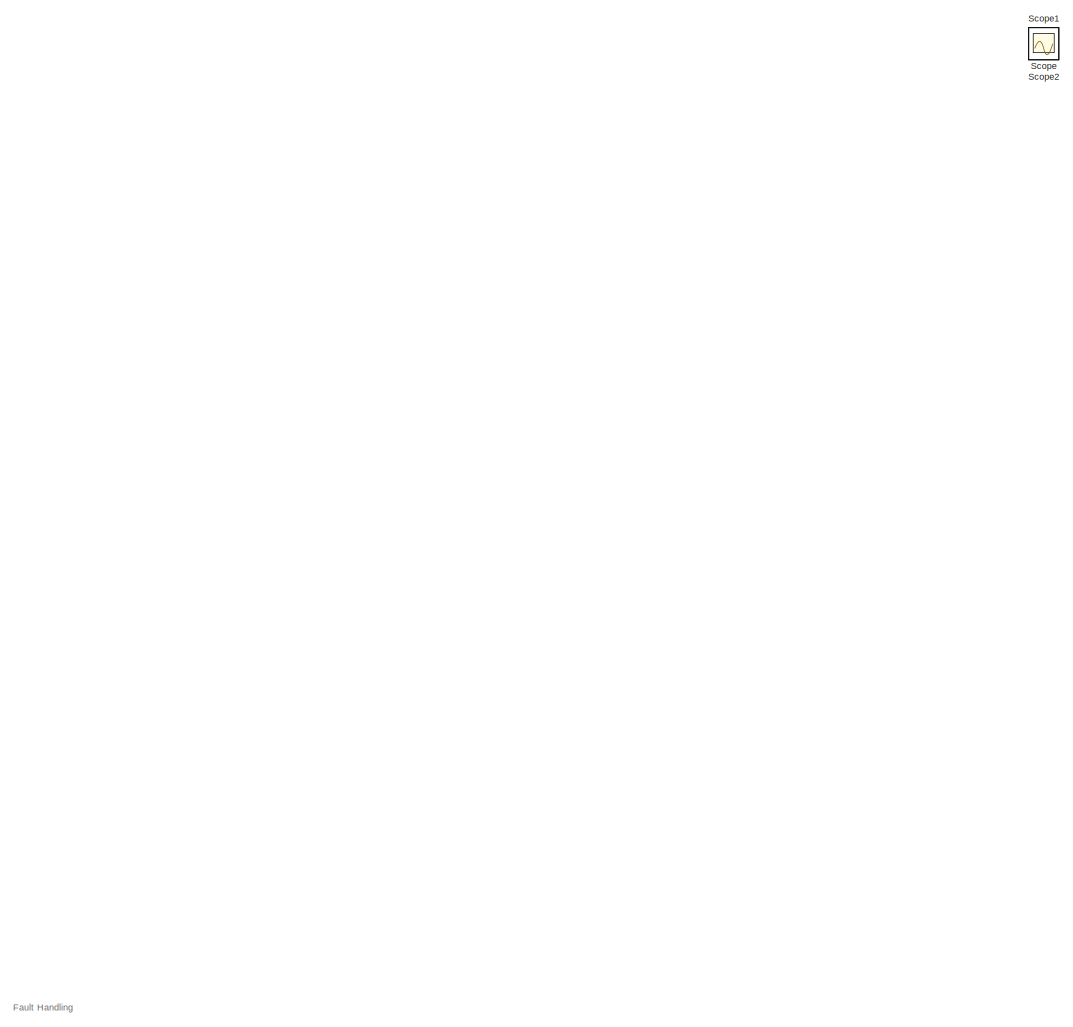
[diagram: root canvas - part 1/4, top right region]
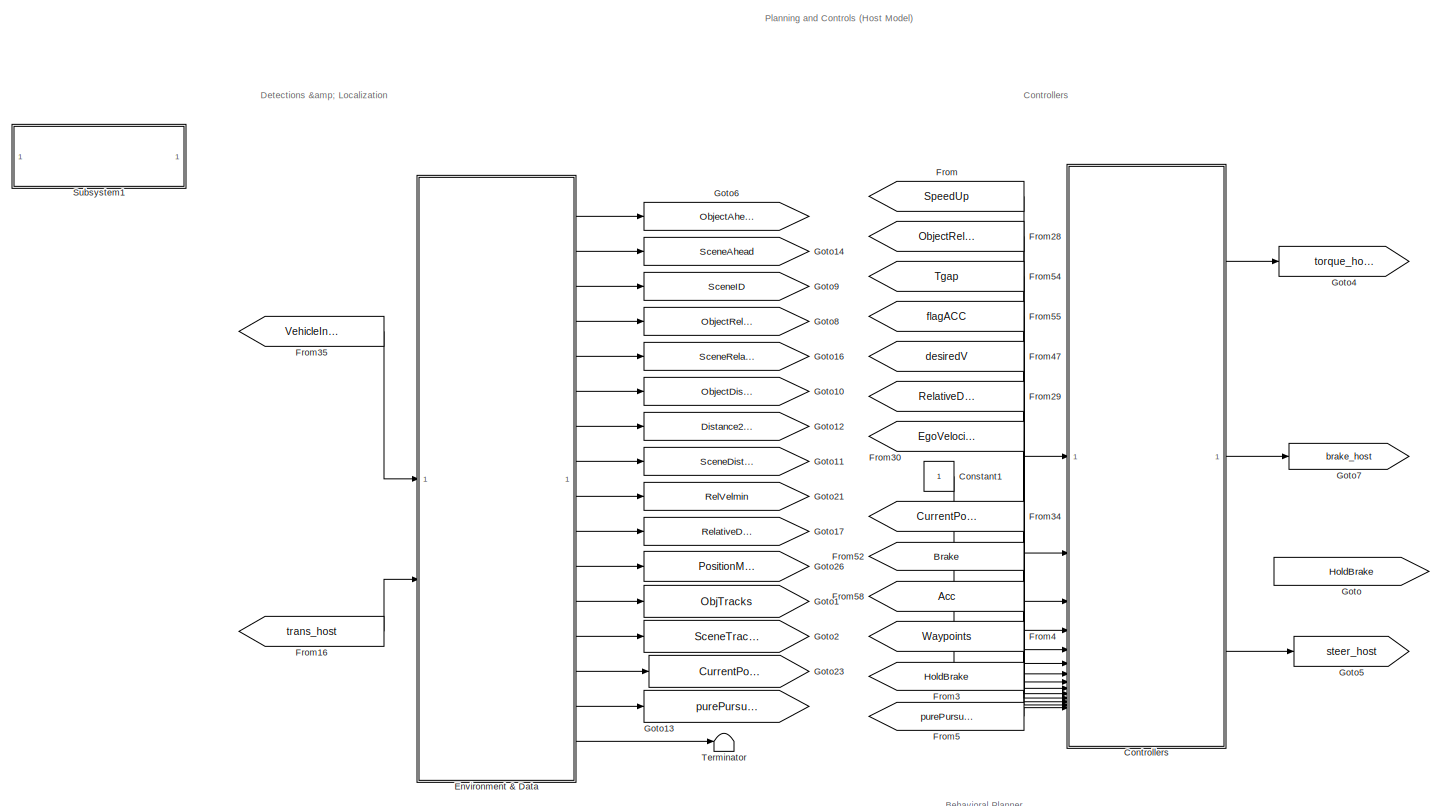
[diagram: root canvas - part 2/4, middle left region]
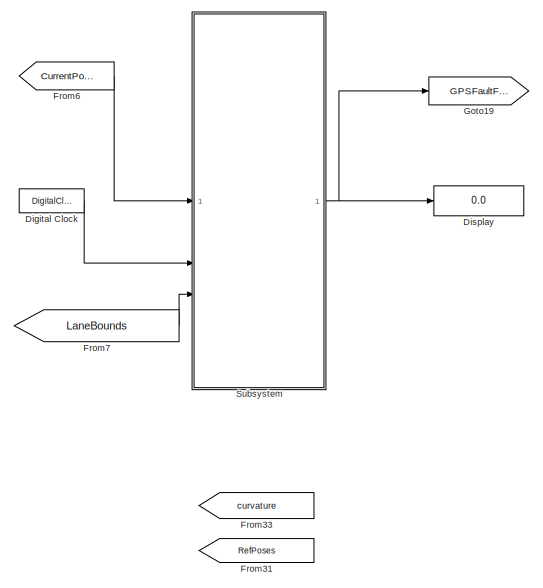
[diagram: root canvas - part 3/4, central region]
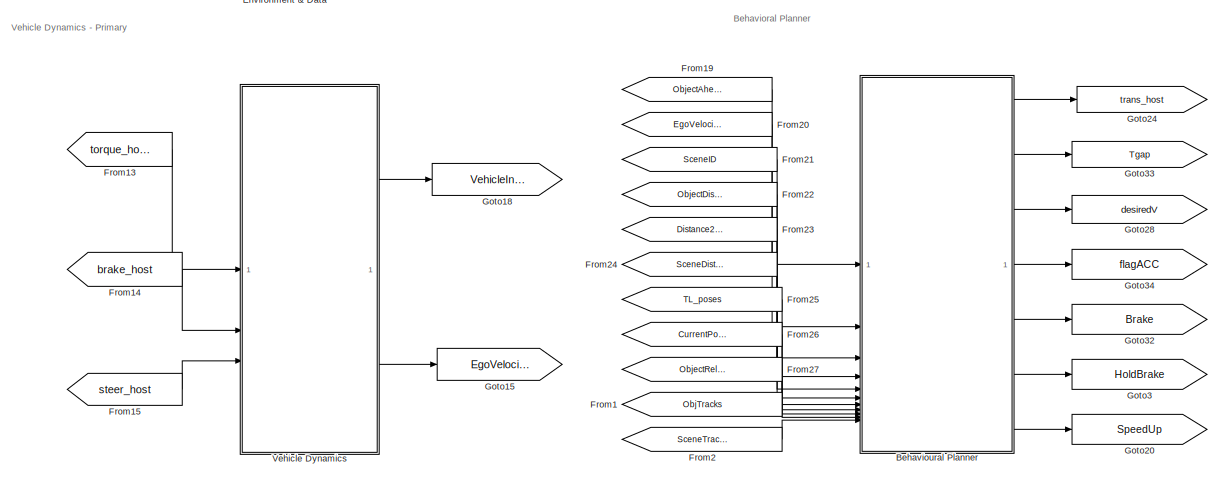
[diagram: root canvas - part 4/4, bottom left region]
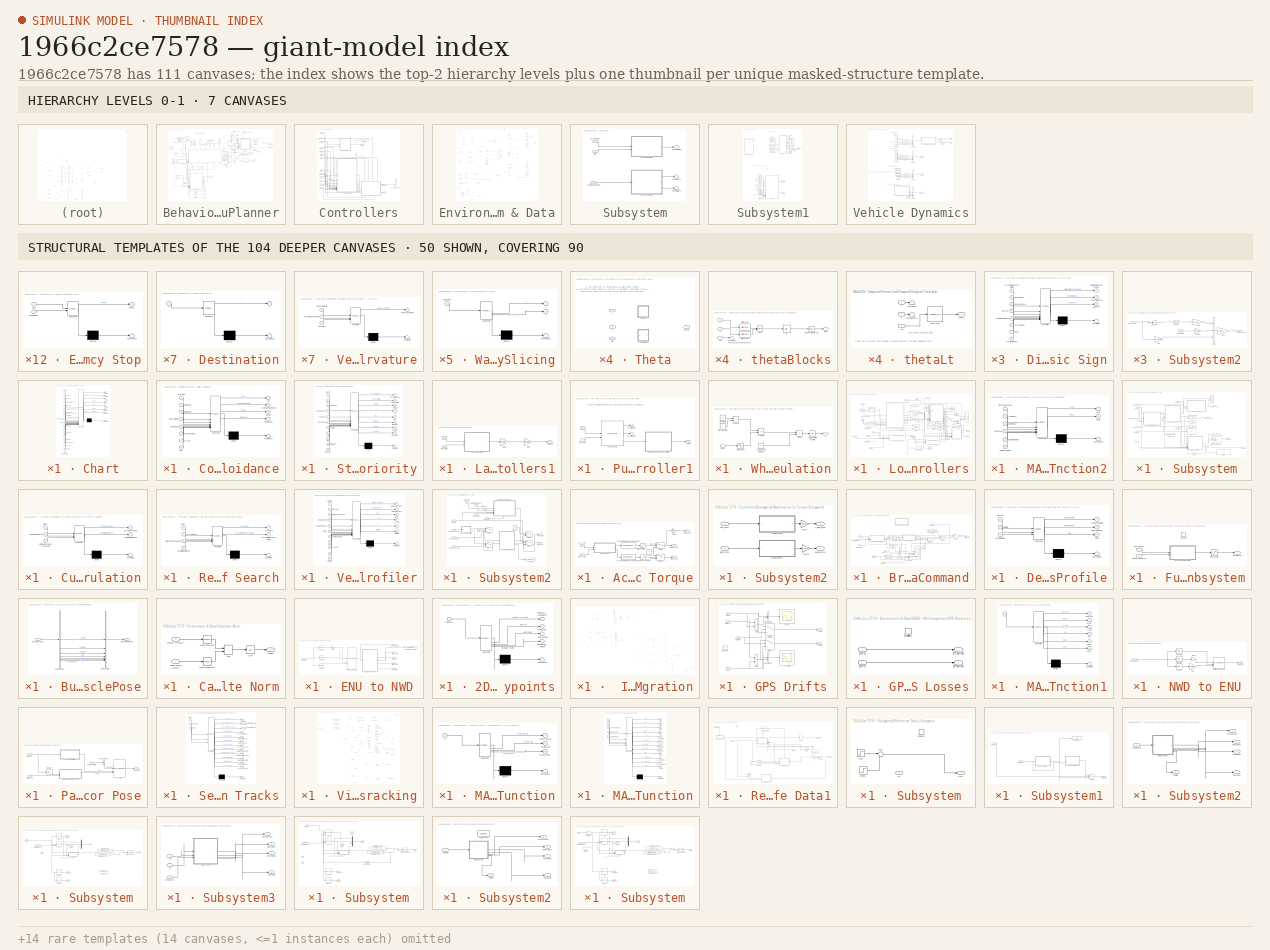
[diagram: thumbnail index - top-2 hierarchy levels (7 canvases) + 50 structural-template representatives of the remaining 104 canvases]
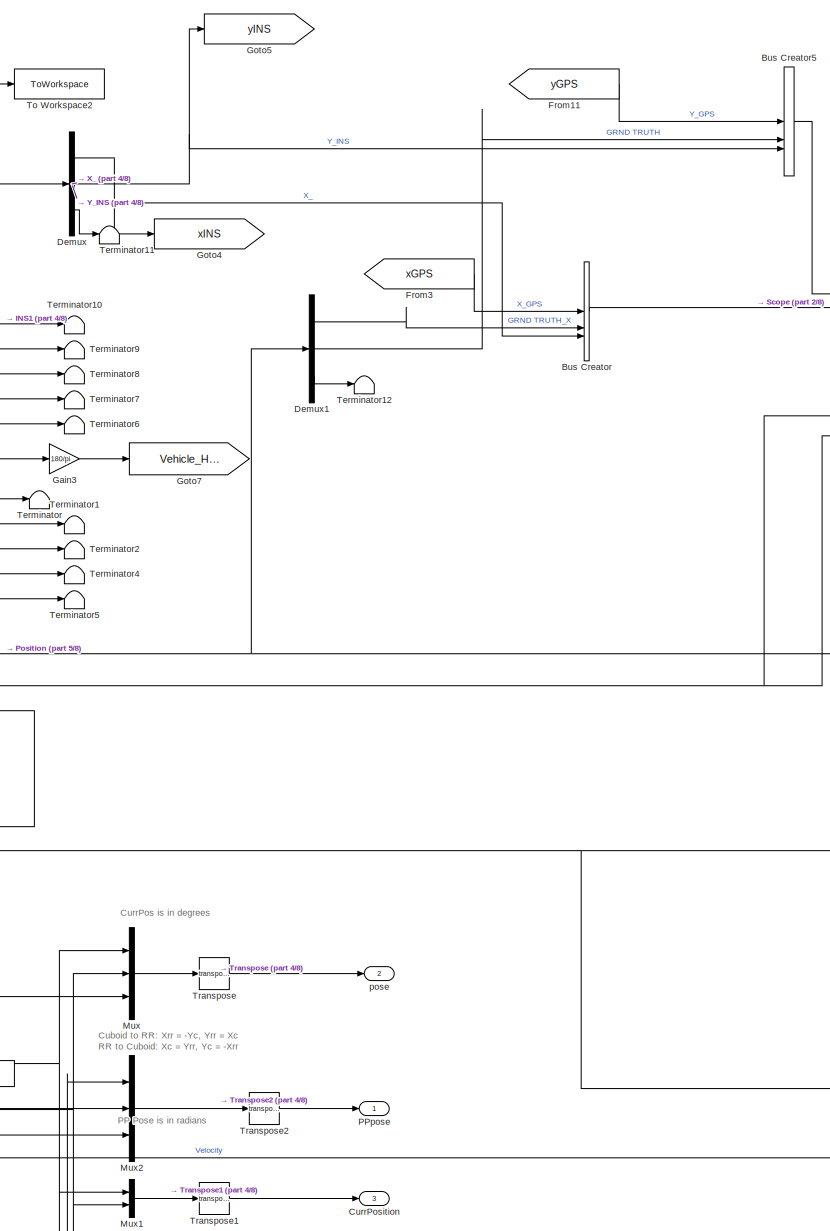
[diagram: Environment & Data/GNSS / IMU Integration - part 1/8, top center region]
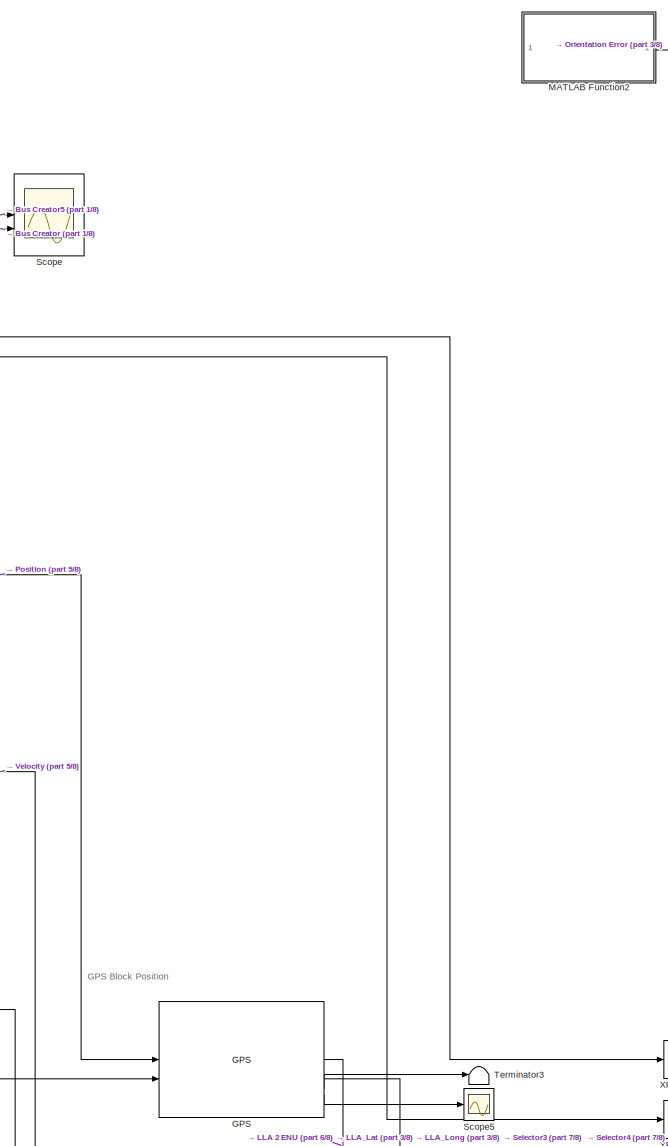
[diagram: Environment & Data/GNSS / IMU Integration - part 2/8, top center region]
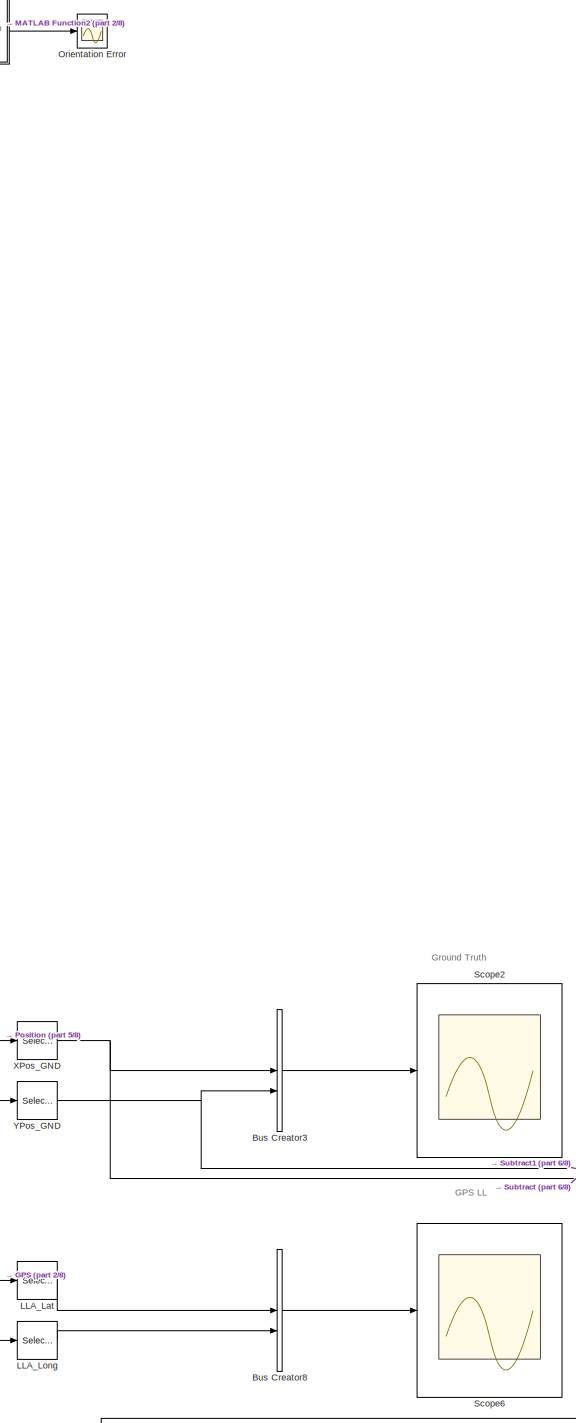
[diagram: Environment & Data/GNSS / IMU Integration - part 3/8, middle right region]
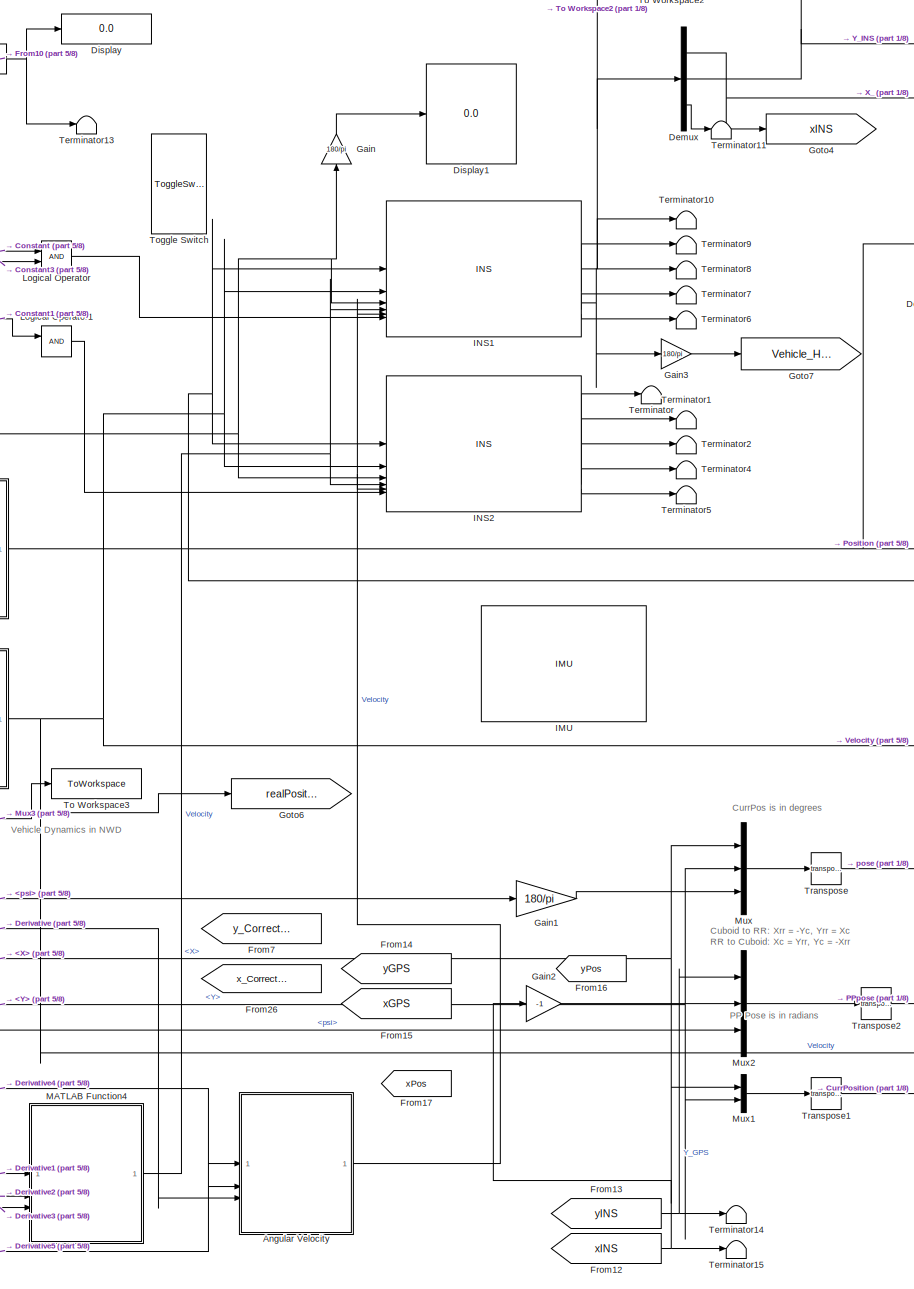
[diagram: Environment & Data/GNSS / IMU Integration - part 4/8, top left region]
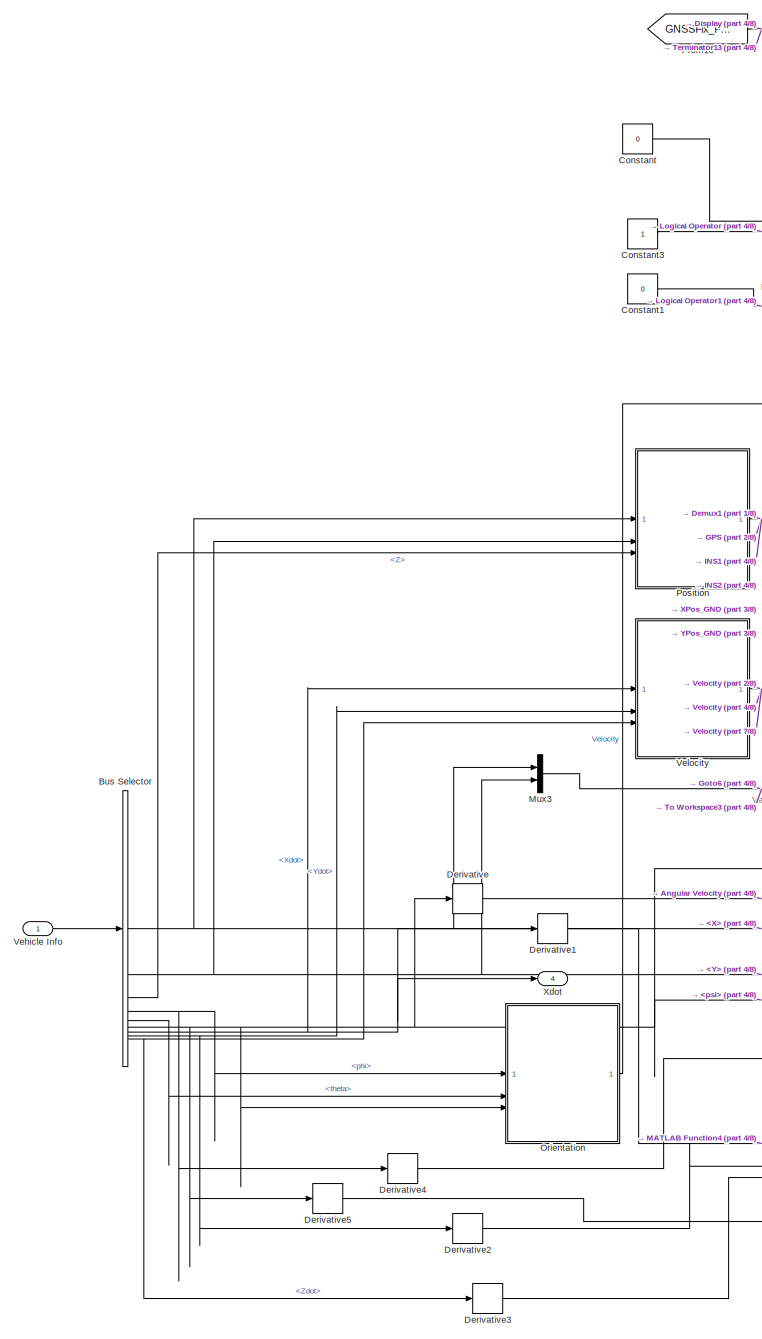
[diagram: Environment & Data/GNSS / IMU Integration - part 5/8, top left region]
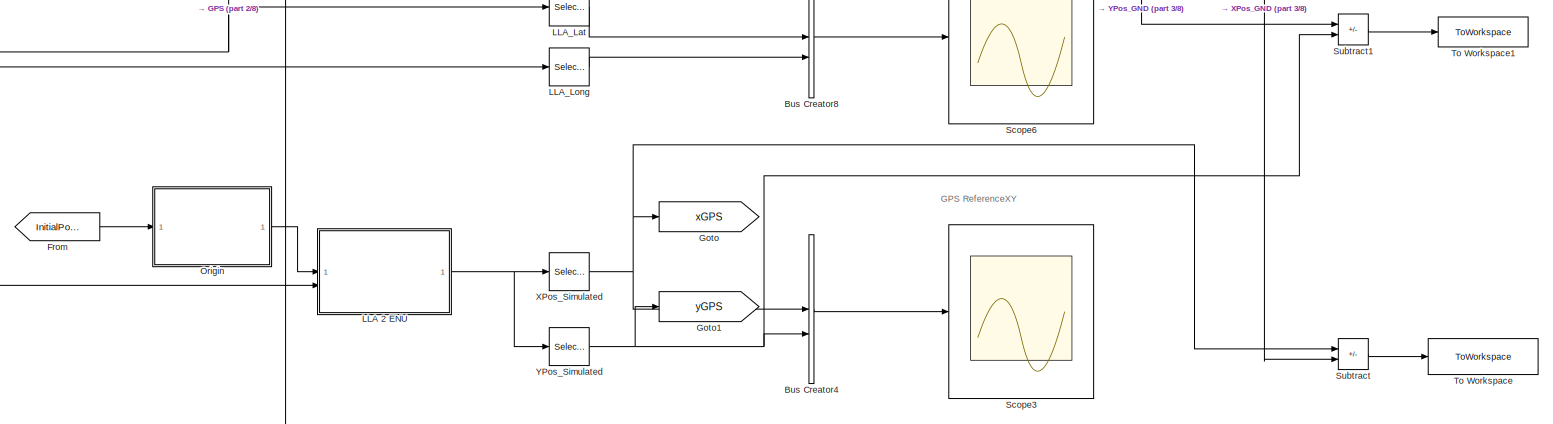
[diagram: Environment & Data/GNSS / IMU Integration - part 6/8, middle right region]
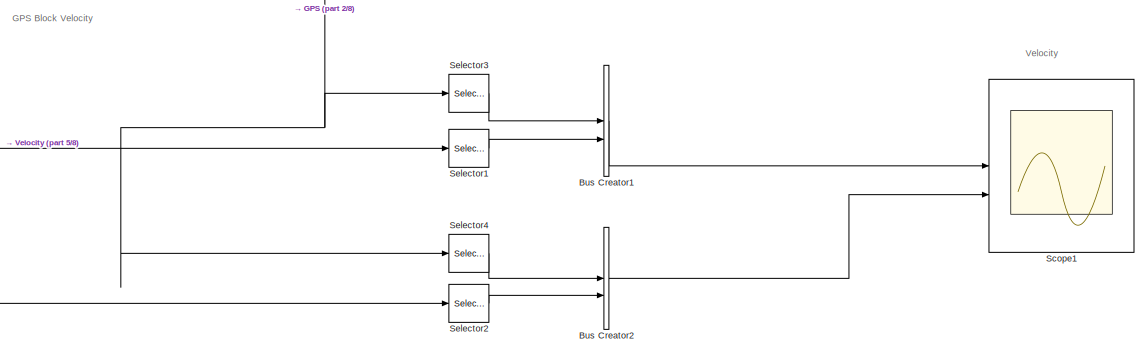
[diagram: Environment & Data/GNSS / IMU Integration - part 7/8, bottom center region]
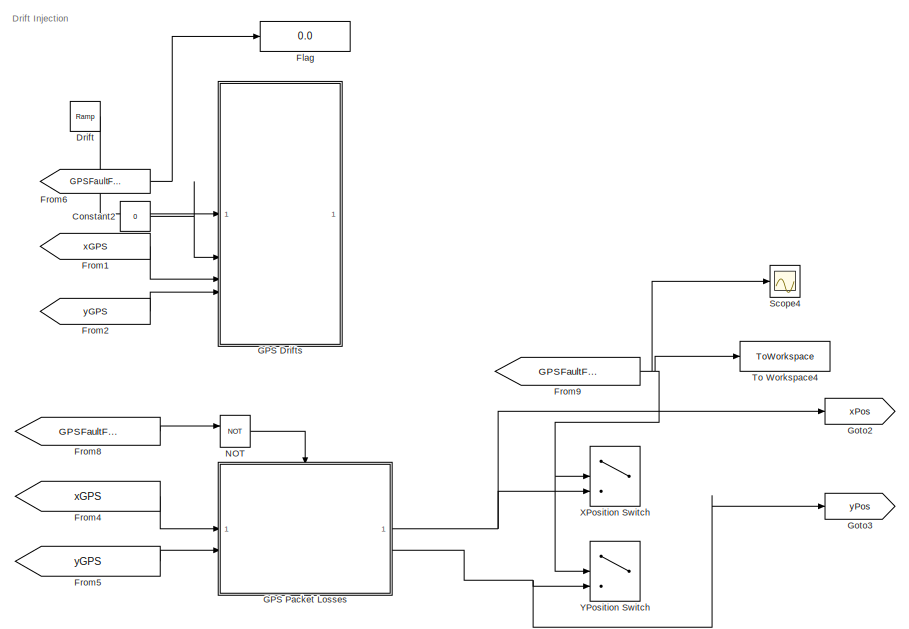
[diagram: Environment & Data/GNSS / IMU Integration - part 8/8, bottom right region]
MODEL slx_1966c2ce7578
KIND model
CONFIG AbsTol = auto
CONFIG EnableMultiTasking = off
CONFIG FixedStep = auto
CONFIG MaxStep = auto
CONFIG MinStep = auto
CONFIG RelTol = 1e-3
CONFIG SampleTimeConstraint = Unconstrained
CONFIG SolverName = VariableStepAuto
CONFIG StartTime = 0.0
CONFIG StopTime = inf
WORKSPACE source: mxarray member
WORKSPACE finalint = 0
WORKSPACE firstWarning = 1
WORKSPACE originalScenarioChecksum = '114339432DE22364D47BB28FC96DC10C'
BLOCK [SubSystem] Behavioural Planner
BLOCK [Outport] Behavioural Planner/ACC
  Port = 4
BLOCK [Logic] Behavioural Planner/AND
  AllPortsSameDT = off
  IconShape = distinctive
  OutDataTypeStr = fixdt(1,16)
BLOCK [Constant] Behavioural Planner/Approaching Speed
  NameLocation = top
  Value = 5
BLOCK [Outport] Behavioural Planner/Braking
  Port = 5
BLOCK [SubSystem] Behavioural Planner/Chart
  ErrorFcn = Stateflow.Translate.translate
  PermitHierarchicalResolution = ExplicitOnly
  PortSchema = {"entries":[{"content":{"sides":[{"content":{"connectorIds":["In17","In18","In19","In2","In5"]},"type":"ConnectorPlacement.EquallySpacedRectSide","uuid":"81aca70f-0947-49fb-b60a-be241e44193b"},{"content":{"connectorIds":["Out6","Out7","Out2","In1","Out1","Out3","Out4","Out5"],"side":"RIGHT"},"type":"ConnectorPlacement.EquallySpacedRectSide","uuid":"e7b9645e-3711-4964-ac9b-0199dd335e99"},{"content"...<+542ch>
  SFBlockType = Chart
  TreatAsAtomicUnit = on
BLOCK [Demux] Behavioural Planner/Chart/ Demux 
  Outputs = 1
BLOCK [S-Function] Behavioural Planner/Chart/ SFunction 
  EnableBusSupport = on
  FunctionName = sf_sfun
  PortCounts = [19 8]
  SFcnIsStateOwnerBlock = off
  SFunctionDeploymentMode = off
  Tag = Stateflow S-Function 21
BLOCK [Terminator] Behavioural Planner/Chart/ Terminator 
BLOCK [Inport] Behavioural Planner/Chart/ApproachingSpeed
  Port = 6
BLOCK [Outport] Behavioural Planner/Chart/Braking
  Port = 6
BLOCK [Inport] Behavioural Planner/Chart/Clear2Go
  Port = 15
BLOCK [Inport] Behavioural Planner/Chart/D2D
  Port = 14
BLOCK [Inport] Behavioural Planner/Chart/D2S
  Port = 12
BLOCK [Inport] Behavioural Planner/Chart/EgoSpeed
  Port = 7
BLOCK [Outport] Behavioural Planner/Chart/HoldBrake
  Port = 2
BLOCK [Inport] Behavioural Planner/Chart/Navigate
  Port = 13
BLOCK [Inport] Behavioural Planner/Chart/ObjectDist
  Port = 8
BLOCK [Inport] Behavioural Planner/Chart/RRCross
  Port = 11
BLOCK [Inport] Behavioural Planner/Chart/RoadSpeed
  Port = 16
BLOCK [Inport] Behavioural Planner/Chart/SDist
  Port = 10
BLOCK [Inport] Behavioural Planner/Chart/SceneID
  Port = 17
BLOCK [Inport] Behavioural Planner/Chart/SceneSpeed
  Port = 9
BLOCK [Outport] Behavioural Planner/Chart/SpeedUp
  Port = 7
BLOCK [Outport] Behavioural Planner/Chart/StopSim
  Port = 5
BLOCK [Inport] Behavioural Planner/Chart/TLstate
BLOCK [Outport] Behavioural Planner/Chart/Tgap
  Port = 3
BLOCK [Inport] Behavioural Planner/Chart/ToAClearance
  Port = 4
BLOCK [Outport] Behavioural Planner/Chart/Trans
  Port = 4
BLOCK [Inport] Behavioural Planner/Chart/TransDist
  Port = 5
BLOCK [Outport] Behavioural Planner/Chart/VelCmd
BLOCK [Inport] Behavioural Planner/Chart/VelStop
  Port = 18
BLOCK [Inport] Behavioural Planner/Chart/egoExit
  Port = 3
BLOCK [Inport] Behavioural Planner/Chart/egoSSPriority
  Port = 19
BLOCK [Inport] Behavioural Planner/Chart/numSS
  Port = 2
BLOCK [ToggleSwitchBlock] Behavioural Planner/Clear 2 Go
BLOCK [Constant] Behavioural Planner/Clear2Go
  NameLocation = top
BLOCK [SubSystem] Behavioural Planner/Collision Avoidance
  ErrorFcn = Stateflow.Translate.translate
  PermitHierarchicalResolution = ExplicitOnly
  SFBlockType = Chart
  TreatAsAtomicUnit = on
BLOCK [Demux] Behavioural Planner/Collision Avoidance/ Demux 
  Outputs = 1
BLOCK [S-Function] Behavioural Planner/Collision Avoidance/ SFunction 
  EnableBusSupport = on
  FunctionName = sf_sfun
  PortCounts = [8 5]
  SFcnIsStateOwnerBlock = off
  SFunctionDeploymentMode = off
  Tag = Stateflow S-Function 9
BLOCK [Terminator] Behavioural Planner/Collision Avoidance/ Terminator 
BLOCK [Outport] Behavioural Planner/Collision Avoidance/ACC
BLOCK [Outport] Behavioural Planner/Collision Avoidance/Brake
  Port = 3
BLOCK [Inport] Behavioural Planner/Collision Avoidance/D2O
  Port = 8
BLOCK [Inport] Behavioural Planner/Collision Avoidance/EgoSpeed
  Port = 5
BLOCK [Outport] Behavioural Planner/Collision Avoidance/HoldBrake
  Port = 4
BLOCK [Inport] Behavioural Planner/Collision Avoidance/LC_ACC
  Port = 7
BLOCK [Inport] Behavioural Planner/Collision Avoidance/LaneAvailable
  Port = 4
BLOCK [Outport] Behavioural Planner/Collision Avoidance/LaneChangeCmd
  Port = 2
BLOCK [Inport] Behavioural Planner/Collision Avoidance/LaneChanged
  Port = 6
BLOCK [Inport] Behavioural Planner/Collision Avoidance/MinSpeed
  Port = 3
BLOCK [Inport] Behavioural Planner/Collision Avoidance/ObjAhead
  Port = 2
BLOCK [Inport] Behavioural Planner/Collision Avoidance/WaitTime
BLOCK [Constant] Behavioural Planner/Constant
  Value = L
BLOCK [Constant] Behavioural Planner/Constant1
  Value = WB
BLOCK [Constant] Behavioural Planner/Constant2
  Value = 0.05
BLOCK [Inport] Behavioural Planner/CurrentPose
  Port = 8
BLOCK [Inport] Behavioural Planner/D2S
  NameLocation = right
  Port = 5
BLOCK [Delay] Behavioural Planner/Delay
  Commented = on
  DelayLength = 1
  InputPortMap = u0
BLOCK [Outport] Behavioural Planner/Desired Velocity
  Port = 3
BLOCK [SubSystem] Behavioural Planner/Destination
  Commented = on
  ErrorFcn = Stateflow.Translate.translate
  LibrarySourceBlock = simulink/User-Defined\nFunctions/MATLAB Function
  PermitHierarchicalResolution = ExplicitOnly
  SFBlockType = MATLAB Function
  TreatAsAtomicUnit = on
BLOCK [Demux] Behavioural Planner/Destination/ Demux 
  Outputs = 1
BLOCK [S-Function] Behavioural Planner/Destination/ SFunction 
  EnableBusSupport = off
  FunctionName = sf_sfun
  PortCounts = [1 2]
  SFcnIsStateOwnerBlock = off
  SFunctionDeploymentMode = off
  Tag = Stateflow S-Function 10
BLOCK [Terminator] Behavioural Planner/Destination/ Terminator 
BLOCK [Inport] Behavioural Planner/Destination/u
BLOCK [Outport] Behavioural Planner/Destination/y
BLOCK [Display] Behavioural Planner/Display
  Decimation = 1
BLOCK [Display] Behavioural Planner/Display4
  Decimation = 1
BLOCK [Display] Behavioural Planner/Display5
  Decimation = 1
BLOCK [Display] Behavioural Planner/Display6
  Decimation = 1
BLOCK [Display] Behavioural Planner/Display7
  Decimation = 1
BLOCK [Display] Behavioural Planner/Display8
  Decimation = 1
BLOCK [Display] Behavioural Planner/Display9
  Decimation = 1
BLOCK [Inport] Behavioural Planner/EgoSpeed
  Port = 2
BLOCK [SubSystem] Behavioural Planner/Emergency Stop
  ErrorFcn = Stateflow.Translate.translate
  PermitHierarchicalResolution = ExplicitOnly
  SFBlockType = Chart
  TreatAsAtomicUnit = on
BLOCK [Demux] Behavioural Planner/Emergency Stop/ Demux 
  Outputs = 1
BLOCK [S-Function] Behavioural Planner/Emergency Stop/ SFunction 
  EnableBusSupport = on
  FunctionName = sf_sfun
  PortCounts = [2 2]
  SFcnIsStateOwnerBlock = off
  SFunctionDeploymentMode = off
  Tag = Stateflow S-Function 13
BLOCK [Terminator] Behavioural Planner/Emergency Stop/ Terminator 
BLOCK [Inport] Behavioural Planner/Emergency Stop/D2O
BLOCK [Outport] Behavioural Planner/Emergency Stop/EStop
BLOCK [Inport] Behavioural Planner/Emergency Stop/TechFailure
  Port = 2
BLOCK [From] Behavioural Planner/From
  GotoTag = RoadSpeed
  NameLocation = left
  TagVisibility = global
BLOCK [From] Behavioural Planner/From1
  GotoTag = LC_ACC
BLOCK [From] Behavioural Planner/From2
  Commented = on
  GotoTag = waypoints
  TagVisibility = global
BLOCK [From] Behavioural Planner/From3
  GotoTag = Destination
  TagVisibility = global
BLOCK [Goto] Behavioural Planner/Goto
  GotoTag = RoadSpeed
  TagVisibility = global
BLOCK [Outport] Behavioural Planner/HoldBrake
  Port = 6
BLOCK [Constant] Behavioural Planner/Intersection Dist
  Value = 25
BLOCK [Constant] Behavioural Planner/LaneAvailable
  NameLocation = left
  Value = 0
BLOCK [Constant] Behavioural Planner/LaneChanged
  NameLocation = left
  Value = 0
BLOCK [SubSystem] Behavioural Planner/MATLAB Function
  Commented = on
  ErrorFcn = Stateflow.Translate.translate
  LibrarySourceBlock = simulink/User-Defined\nFunctions/MATLAB Function
  PermitHierarchicalResolution = ExplicitOnly
  SFBlockType = MATLAB Function
  TreatAsAtomicUnit = on
BLOCK [Demux] Behavioural Planner/MATLAB Function/ Demux 
  Outputs = 1
BLOCK [S-Function] Behavioural Planner/MATLAB Function/ SFunction 
  EnableBusSupport = off
  FunctionName = sf_sfun
  PortCounts = [1 2]
  SFcnIsStateOwnerBlock = off
  SFunctionDeploymentMode = off
  Tag = Stateflow S-Function 22
BLOCK [Terminator] Behavioural Planner/MATLAB Function/ Terminator 
BLOCK [Inport] Behavioural Planner/MATLAB Function/u
BLOCK [Outport] Behavioural Planner/MATLAB Function/y
BLOCK [SubSystem] Behavioural Planner/MATLAB Function1
  ErrorFcn = Stateflow.Translate.translate
  LibrarySourceBlock = simulink/User-Defined\nFunctions/MATLAB Function
  PermitHierarchicalResolution = ExplicitOnly
  SFBlockType = MATLAB Function
  TreatAsAtomicUnit = on
BLOCK [Demux] Behavioural Planner/MATLAB Function1/ Demux 
  Outputs = 1
BLOCK [S-Function] Behavioural Planner/MATLAB Function1/ SFunction 
  EnableBusSupport = on
  FunctionName = sf_sfun
  PortCounts = [2 2]
  SFcnIsStateOwnerBlock = off
  SFunctionDeploymentMode = off
  Tag = Stateflow S-Function 25
BLOCK [Terminator] Behavioural Planner/MATLAB Function1/ Terminator 
BLOCK [Inport] Behavioural Planner/MATLAB Function1/EgoLength
BLOCK [Inport] Behavioural Planner/MATLAB Function1/IntDist
  Port = 2
BLOCK [Outport] Behavioural Planner/MATLAB Function1/TransDist
BLOCK [SubSystem] Behavioural Planner/MATLAB Function3
  ErrorFcn = Stateflow.Translate.translate
  PermitHierarchicalResolution = ExplicitOnly
  SFBlockType = MATLAB Function
  TreatAsAtomicUnit = on
BLOCK [Demux] Behavioural Planner/MATLAB Function3/ Demux 
  Outputs = 1
BLOCK [S-Function] Behavioural Planner/MATLAB Function3/ SFunction 
  EnableBusSupport = on
  FunctionName = sf_sfun
  PortCounts = [2 2]
  SFcnIsStateOwnerBlock = off
  SFunctionDeploymentMode = off
  Tag = Stateflow S-Function 20
BLOCK [Terminator] Behavioural Planner/MATLAB Function3/ Terminator 
BLOCK [Inport] Behavioural Planner/MATLAB Function3/CurrentPose
  Port = 2
BLOCK [Outport] Behavioural Planner/MATLAB Function3/D2D
BLOCK [Inport] Behavioural Planner/MATLAB Function3/Dest
BLOCK [Memory] Behavioural Planner/Memory
  NameLocation = top
BLOCK [Memory] Behavioural Planner/Memory1
  InitialCondition = [0 0]
  NameLocation = top
BLOCK [Memory] Behavioural Planner/Memory2
  NameLocation = top
BLOCK [Constant] Behavioural Planner/MinSpeed
  NameLocation = left
  Value = 2
BLOCK [Logic] Behavioural Planner/NOT
  AllPortsSameDT = off
  IconShape = distinctive
  Operator = NOT
  OutDataTypeStr = boolean
BLOCK [ToggleSwitchBlock] Behavioural Planner/Navigate
BLOCK [Constant] Behavioural Planner/Navigating Flag
  NameLocation = left
BLOCK [Logic] Behavioural Planner/OR
  AllPortsSameDT = off
  IconShape = distinctive
  Operator = OR
  OutDataTypeStr = boolean
BLOCK [Logic] Behavioural Planner/OR1
  AllPortsSameDT = off
  IconShape = distinctive
  Operator = OR
  OutDataTypeStr = boolean
BLOCK [Inport] Behavioural Planner/ObjAhead
BLOCK [Inport] Behavioural Planner/ObjTracks
  Port = 10
BLOCK [Inport] Behavioural Planner/Object Relative Velocity
  Port = 9
BLOCK [Inport] Behavioural Planner/ObjectDist
  Port = 4
BLOCK [Constant] Behavioural Planner/RR Crossing
  NameLocation = top
  Value = 0
BLOCK [ToggleSwitchBlock] Behavioural Planner/RRCrossing
BLOCK [Constant] Behavioural Planner/ReRoute
  NameLocation = top
BLOCK [Constant] Behavioural Planner/RoadSpeed
  NameLocation = left
  Value = 10
BLOCK [SubSystem] Behavioural Planner/Routing
  ErrorFcn = Stateflow.Translate.translate
  PermitHierarchicalResolution = ExplicitOnly
  SFBlockType = Chart
  TreatAsAtomicUnit = on
BLOCK [Demux] Behavioural Planner/Routing/ Demux 
  Outputs = 1
BLOCK [S-Function] Behavioural Planner/Routing/ SFunction 
  EnableBusSupport = on
  FunctionName = sf_sfun
  PortCounts = [1 2]
  SFcnIsStateOwnerBlock = off
  SFunctionDeploymentMode = off
  Tag = Stateflow S-Function 32
BLOCK [Terminator] Behavioural Planner/Routing/ Terminator 
BLOCK [Outport] Behavioural Planner/Routing/NewRoute
BLOCK [Inport] Behavioural Planner/Routing/ReRoute
BLOCK [Inport] Behavioural Planner/SDist
  NameLocation = right
  Port = 6
BLOCK [Constant] Behavioural Planner/Scene Speed
  NameLocation = top
  Value = 5
BLOCK [Inport] Behavioural Planner/SceneID
  Port = 3
BLOCK [Inport] Behavioural Planner/SceneTracks
  Port = 11
BLOCK [Outport] Behavioural Planner/SpeedUp
  Port = 7
BLOCK [Stop] Behavioural Planner/Stop Simulation1
BLOCK [SubSystem] Behavioural Planner/StopSignPriority
  Commented = on
  ErrorFcn = Stateflow.Translate.translate
  LibrarySourceBlock = simulink/User-Defined\nFunctions/MATLAB Function
  PermitHierarchicalResolution = ExplicitOnly
  SFBlockType = MATLAB Function
  TreatAsAtomicUnit = on
BLOCK [Demux] Behavioural Planner/StopSignPriority/ Demux 
  Outputs = 1
BLOCK [S-Function] Behavioural Planner/StopSignPriority/ SFunction 
  EnableBusSupport = on
  FunctionName = sf_sfun
  PortCounts = [11 9]
  SFcnIsStateOwnerBlock = off
  SFunctionDeploymentMode = off
  Tag = Stateflow S-Function 24
BLOCK [Terminator] Behavioural Planner/StopSignPriority/ Terminator 
BLOCK [Inport] Behavioural Planner/StopSignPriority/D2S
  Port = 2
BLOCK [Inport] Behavioural Planner/StopSignPriority/ObjTracks
  Port = 3
BLOCK [Inport] Behavioural Planner/StopSignPriority/SDist
BLOCK [Inport] Behavioural Planner/StopSignPriority/SceneTracks
  Port = 4
BLOCK [Outport] Behavioural Planner/StopSignPriority/ToAClearance
BLOCK [Inport] Behavioural Planner/StopSignPriority/VelStop
  Port = 7
BLOCK [Inport] Behavioural Planner/StopSignPriority/WB
  Port = 8
BLOCK [Outport] Behavioural Planner/StopSignPriority/d
  Port = 4
BLOCK [Outport] Behavioural Planner/StopSignPriority/egoEnter
  Port = 8
BLOCK [Inport] Behavioural Planner/StopSignPriority/egoEnter 
  Port = 11
BLOCK [Outport] Behavioural Planner/StopSignPriority/egoExit
  Port = 7
BLOCK [Inport] Behavioural Planner/StopSignPriority/egoPose
  Port = 5
BLOCK [Outport] Behavioural Planner/StopSignPriority/egoSSPriority
  Port = 2
BLOCK [Inport] Behavioural Planner/StopSignPriority/egoSpeed
  Port = 6
BLOCK [Outport] Behavioural Planner/StopSignPriority/flag
  Port = 5
BLOCK [Inport] Behavioural Planner/StopSignPriority/flag 
  Port = 9
BLOCK [Outport] Behavioural Planner/StopSignPriority/midpoint
  Port = 6
BLOCK [Inport] Behavioural Planner/StopSignPriority/midpoint 
  Port = 10
BLOCK [Outport] Behavioural Planner/StopSignPriority/numSS
  Port = 3
BLOCK [Inport] Behavioural Planner/TLposes
  Port = 7
BLOCK [Constant] Behavioural Planner/TechFailure
  NameLocation = left
  Value = 0
BLOCK [Outport] Behavioural Planner/Tgap
  Port = 2
BLOCK [ToggleSwitchBlock] Behavioural Planner/Toggle Switch4
BLOCK [Outport] Behavioural Planner/Trans
BLOCK [Constant] Behavioural Planner/WaitTime
  NameLocation = left
  Value = 3
BLOCK [Constant] Constant1
BLOCK [SubSystem] Controllers
BLOCK [Inport] Controllers/ACC
  NameLocation = left
  Port = 4
BLOCK [Inport] Controllers/Acc
  Port = 11
BLOCK [Inport] Controllers/Brake
  Port = 10
BLOCK [Outport] Controllers/BrakeCmd
  Port = 2
BLOCK [Inport] Controllers/CurrVelocity
  Port = 7
BLOCK [Inport] Controllers/Direction
  Port = 8
BLOCK [Inport] Controllers/HoldBrake
  Port = 13
BLOCK [SubSystem] Controllers/Lateral Controllers1
BLOCK [Gain] Controllers/Lateral Controllers1/Gain
  Gain = 1/STEER_RATIO
BLOCK [Gain] Controllers/Lateral Controllers1/Gain2
  Gain = 180/pi
BLOCK [Inport] Controllers/Lateral Controllers1/Pose
  Port = 2
BLOCK [SubSystem] Controllers/Lateral Controllers1/Pure Pursuit Controller1
BLOCK [Inport] Controllers/Lateral Controllers1/Pure Pursuit Controller1/Pose
BLOCK [Reference] Controllers/Lateral Controllers1/Pure Pursuit Controller1/Pure Pursuit  REF=robotalgslib/Pure Pursuit
  SourceBlock = robotalgslib/Pure Pursuit
  SourceType = nav.slalgs.internal.PurePursuit
BLOCK [Terminator] Controllers/Lateral Controllers1/Pure Pursuit Controller1/Terminator6
BLOCK [Terminator] Controllers/Lateral Controllers1/Pure Pursuit Controller1/Terminator7
BLOCK [Inport] Controllers/Lateral Controllers1/Pure Pursuit Controller1/Waypoints
  Port = 2
BLOCK [SubSystem] Controllers/Lateral Controllers1/Pure Pursuit Controller1/Wheel Steering Angle Formulation
BLOCK [Outport] Controllers/Lateral Controllers1/Pure Pursuit Controller1/Wheel Steering Angle Formulation/Al
BLOCK [Constant] Controllers/Lateral Controllers1/Pure Pursuit Controller1/Wheel Steering Angle Formulation/Bicycle length
  Value = L
BLOCK [Constant] Controllers/Lateral Controllers1/Pure Pursuit Controller1/Wheel Steering Angle Formulation/Constant
  Value = 2
BLOCK [Product] Controllers/Lateral Controllers1/Pure Pursuit Controller1/Wheel Steering Angle Formulation/Divide
  Inputs = */
BLOCK [Constant] Controllers/Lateral Controllers1/Pure Pursuit Controller1/Wheel Steering Angle Formulation/Lookahead distance
  Value = ld
BLOCK [Product] Controllers/Lateral Controllers1/Pure Pursuit Controller1/Wheel Steering Angle Formulation/Product
BLOCK [Product] Controllers/Lateral Controllers1/Pure Pursuit Controller1/Wheel Steering Angle Formulation/Product1
BLOCK [Sin] Controllers/Lateral Controllers1/Pure Pursuit Controller1/Wheel Steering Angle Formulation/Sine Wave
  SampleTime = 0
  TimeSource = Use external signal
BLOCK [Trigonometry] Controllers/Lateral Controllers1/Pure Pursuit Controller1/Wheel Steering Angle Formulation/Trigonometric Function
  Operator = atan
BLOCK [Inport] Controllers/Lateral Controllers1/Pure Pursuit Controller1/Wheel Steering Angle Formulation/alpha
  NameLocation = top
BLOCK [Outport] Controllers/Lateral Controllers1/Pure Pursuit Controller1/delta
BLOCK [Inport] Controllers/Lateral Controllers1/Waypoints
BLOCK [Outport] Controllers/Lateral Controllers1/steerCmd
BLOCK [SubSystem] Controllers/Longitudinal Controllers
BLOCK [Outport] Controllers/Longitudinal Controllers/AccelCmd
  Port = 2
BLOCK [Reference] Controllers/Longitudinal Controllers/Adaptive Cruise Control System  REF=mpcadaslib/Adaptive Cruise Control System
  SourceBlock = mpcadaslib/Adaptive Cruise Control System
  SourceType = Adaptive cruise control (ACC) system
BLOCK [Inport] Controllers/Longitudinal Controllers/Brake
  Port = 12
BLOCK [BusCreator] Controllers/Longitudinal Controllers/Bus Creator
  DisplayOption = bar
  InheritFromInputs = on
  Inputs = 2
BLOCK [BusCreator] Controllers/Longitudinal Controllers/Bus Creator1
  DisplayOption = bar
  InheritFromInputs = on
  Inputs = 3
BLOCK [Clock] Controllers/Longitudinal Controllers/Clock
  DisplayTime = on
BLOCK [Inport] Controllers/Longitudinal Controllers/Curr Velocity
BLOCK [Inport] Controllers/Longitudinal Controllers/CurrVel
  Port = 6
BLOCK [Inport] Controllers/Longitudinal Controllers/Current Accel
  Port = 11
BLOCK [Display] Controllers/Longitudinal Controllers/Current Vel
  Decimation = 1
BLOCK [Inport] Controllers/Longitudinal Controllers/CurrentPose
  Port = 10
BLOCK [Constant] Controllers/Longitudinal Controllers/Curvature Slowdown Distance
  Value = 5
BLOCK [Outport] Controllers/Longitudinal Controllers/DecelCmd
  Port = 3
BLOCK [Inport] Controllers/Longitudinal Controllers/Direction
  Port = 7
BLOCK [Display] Controllers/Longitudinal Controllers/Display
  Decimation = 1
BLOCK [Display] Controllers/Longitudinal Controllers/Display1
  Decimation = 1
BLOCK [Display] Controllers/Longitudinal Controllers/Display2
  Decimation = 1
BLOCK [Display] Controllers/Longitudinal Controllers/Display3
  Decimation = 1
BLOCK [Display] Controllers/Longitudinal Controllers/Display4
  Decimation = 1
BLOCK [From] Controllers/Longitudinal Controllers/From
  GotoTag = ObjTracks
  TagVisibility = global
BLOCK [Gain] Controllers/Longitudinal Controllers/Gain
  Gain = -1
  NameLocation = top
BLOCK [Inport] Controllers/Longitudinal Controllers/HoldBrake
  Port = 13
BLOCK [Reference] Controllers/Longitudinal Controllers/Longitudinal Controller Stanley  REF=drivingvehiclecontroller/Longitudinal Controller Stanley
  SourceBlock = drivingvehiclecontroller/Longitudinal Controller Stanley
  SourceType = Longitudinal Controller Stanley
BLOCK [Outport] Controllers/Longitudinal Controllers/Longitudinal acceleration
BLOCK [SubSystem] Controllers/Longitudinal Controllers/MATLAB Function
  ErrorFcn = Stateflow.Translate.translate
  LibrarySourceBlock = simulink/User-Defined\nFunctions/MATLAB Function
  PermitHierarchicalResolution = ExplicitOnly
  SFBlockType = MATLAB Function
  TreatAsAtomicUnit = on
BLOCK [Demux] Controllers/Longitudinal Controllers/MATLAB Function/ Demux 
  Outputs = 1
BLOCK [S-Function] Controllers/Longitudinal Controllers/MATLAB Function/ SFunction 
  EnableBusSupport = on
  FunctionName = sf_sfun
  PortCounts = [1 3]
  SFcnIsStateOwnerBlock = off
  SFunctionDeploymentMode = off
  Tag = Stateflow S-Function 28
BLOCK [Terminator] Controllers/Longitudinal Controllers/MATLAB Function/ Terminator 
BLOCK [Inport] Controllers/Longitudinal Controllers/MATLAB Function/u
BLOCK [Outport] Controllers/Longitudinal Controllers/MATLAB Function/x
BLOCK [Outport] Controllers/Longitudinal Controllers/MATLAB Function/y
  Port = 2
BLOCK [SubSystem] Controllers/Longitudinal Controllers/MATLAB Function1
  ErrorFcn = Stateflow.Translate.translate
  LibrarySourceBlock = simulink/User-Defined\nFunctions/MATLAB Function
  PermitHierarchicalResolution = ExplicitOnly
  SFBlockType = MATLAB Function
  TreatAsAtomicUnit = on
BLOCK [Demux] Controllers/Longitudinal Controllers/MATLAB Function1/ Demux 
  Outputs = 1
BLOCK [S-Function] Controllers/Longitudinal Controllers/MATLAB Function1/ SFunction 
  EnableBusSupport = on
  FunctionName = sf_sfun
  PortCounts = [1 2]
  SFcnIsStateOwnerBlock = off
  SFunctionDeploymentMode = off
  Tag = Stateflow S-Function 49
BLOCK [Terminator] Controllers/Longitudinal Controllers/MATLAB Function1/ Terminator 
BLOCK [Inport] Controllers/Longitudinal Controllers/MATLAB Function1/u
BLOCK [Outport] Controllers/Longitudinal Controllers/MATLAB Function1/y
BLOCK [SubSystem] Controllers/Longitudinal Controllers/MATLAB Function2
  ErrorFcn = Stateflow.Translate.translate
  LibrarySourceBlock = simulink/User-Defined\nFunctions/MATLAB Function
  PermitHierarchicalResolution = ExplicitOnly
  SFBlockType = MATLAB Function
  TreatAsAtomicUnit = on
BLOCK [Demux] Controllers/Longitudinal Controllers/MATLAB Function2/ Demux 
  Outputs = 1
BLOCK [S-Function] Controllers/Longitudinal Controllers/MATLAB Function2/ SFunction 
  EnableBusSupport = on
  FunctionName = sf_sfun
  PortCounts = [6 3]
  SFcnIsStateOwnerBlock = off
  SFunctionDeploymentMode = off
  Tag = Stateflow S-Function 50
BLOCK [Terminator] Controllers/Longitudinal Controllers/MATLAB Function2/ Terminator 
BLOCK [Outport] Controllers/Longitudinal Controllers/MATLAB Function2/Accel
BLOCK [Inport] Controllers/Longitudinal Controllers/MATLAB Function2/AccelCmd
  Port = 2
BLOCK [Outport] Controllers/Longitudinal Controllers/MATLAB Function2/Decel
  Port = 2
BLOCK [Inport] Controllers/Longitudinal Controllers/MATLAB Function2/DecelCmd
  Port = 3
BLOCK [Inport] Controllers/Longitudinal Controllers/MATLAB Function2/distance2Scene
BLOCK [Inport] Controllers/Longitudinal Controllers/MATLAB Function2/holdBrakeFlag
  Port = 6
BLOCK [Inport] Controllers/Longitudinal Controllers/MATLAB Function2/safeStop
  Port = 4
BLOCK [Inport] Controllers/Longitudinal Controllers/MATLAB Function2/slowDownFlag
  Port = 5
BLOCK [Memory] Controllers/Longitudinal Controllers/Memory
  InheritSampleTime = on
BLOCK [Memory] Controllers/Longitudinal Controllers/Memory1
  InheritSampleTime = on
  InitialCondition = zeros(6,1)
BLOCK [Memory] Controllers/Longitudinal Controllers/Memory2
  InheritSampleTime = on
BLOCK [Memory] Controllers/Longitudinal Controllers/Memory3
  InheritSampleTime = on
BLOCK [Constant] Controllers/Longitudinal Controllers/Minimum Curvature Threshold 
  Value = 2
BLOCK [Inport] Controllers/Longitudinal Controllers/RefXY
  Port = 8
BLOCK [Inport] Controllers/Longitudinal Controllers/Relative distance
  Port = 3
BLOCK [Inport] Controllers/Longitudinal Controllers/Relative velocity
  Port = 2
BLOCK [Scope] Controllers/Longitudinal Controllers/Scope
  Floating = off
  NumInputPorts = 4
  ScopeSpecificationString = Simulink.scopes.TimeScopeBlockCfg('CurrentConfiguration', extmgr.ConfigurationSet(extmgr.Configuration('Core','General UI',true,'FigureColor',[0 0 0]),extmgr.Configuration('Core','Source UI',true),extmgr.Configuration('Sources','WiredSimulink',true,'DataLoggingVariableName','ScopeData1'),extmgr.Configuration('Visuals','Time Domain',true,'SerializedDisplays',{struct('MinYLimReal','-1.301','MaxYLimR...<+4391ch>
BLOCK [Scope] Controllers/Longitudinal Controllers/Scope1
  Floating = off
  NumInputPorts = 1
  ScopeSpecificationString = Simulink.scopes.TimeScopeBlockCfg('CurrentConfiguration', extmgr.ConfigurationSet(extmgr.Configuration('Core','General UI',true),extmgr.Configuration('Core','Source UI',true),extmgr.Configuration('Sources','WiredSimulink',true),extmgr.Configuration('Visuals','Time Domain',true,'SerializedDisplays',{struct('MinYLimReal','-0.125','MaxYLimReal','1.125','YLabelReal','','MinYLimMag','0.00000','MaxYLimM...<+1368ch>
BLOCK [Inport] Controllers/Longitudinal Controllers/Set velocity
  Port = 5
BLOCK [Inport] Controllers/Longitudinal Controllers/SpeedUp
  Port = 14
BLOCK [SubSystem] Controllers/Longitudinal Controllers/Subsystem
BLOCK [Display] Controllers/Longitudinal Controllers/Subsystem/CurrPos
  Decimation = 1
BLOCK [Inport] Controllers/Longitudinal Controllers/Subsystem/CurrentPose
BLOCK [SubSystem] Controllers/Longitudinal Controllers/Subsystem/Curvature Calculation
  ErrorFcn = Stateflow.Translate.translate
  LibrarySourceBlock = simulink/User-Defined\nFunctions/MATLAB Function
  PermitHierarchicalResolution = ExplicitOnly
  SFBlockType = MATLAB Function
  TreatAsAtomicUnit = on
BLOCK [Demux] Controllers/Longitudinal Controllers/Subsystem/Curvature Calculation/ Demux 
  Outputs = 1
BLOCK [S-Function] Controllers/Longitudinal Controllers/Subsystem/Curvature Calculation/ SFunction 
  EnableBusSupport = on
  FunctionName = sf_sfun
  PortCounts = [3 3]
  SFcnIsStateOwnerBlock = off
  SFunctionDeploymentMode = off
  Tag = Stateflow S-Function 40
BLOCK [Terminator] Controllers/Longitudinal Controllers/Subsystem/Curvature Calculation/ Terminator 
BLOCK [Inport] Controllers/Longitudinal Controllers/Subsystem/Curvature Calculation/RefXY
BLOCK [Inport] Controllers/Longitudinal Controllers/Subsystem/Curvature Calculation/SlowdownDistance
  Port = 2
BLOCK [Outport] Controllers/Longitudinal Controllers/Subsystem/Curvature Calculation/cumulativeDistance
  Port = 2
BLOCK [Outport] Controllers/Longitudinal Controllers/Subsystem/Curvature Calculation/curvatureAhead
BLOCK [Inport] Controllers/Longitudinal Controllers/Subsystem/Curvature Calculation/minimumCurvatureThreshold
  Port = 3
BLOCK [Display] Controllers/Longitudinal Controllers/Subsystem/Display
  Decimation = 1
BLOCK [SubSystem] Controllers/Longitudinal Controllers/Subsystem/Distance to Traffic Sign
  ErrorFcn = Stateflow.Translate.translate
  LibrarySourceBlock = simulink/User-Defined\nFunctions/MATLAB Function
  PermitHierarchicalResolution = ExplicitOnly
  SFBlockType = MATLAB Function
  TreatAsAtomicUnit = on
BLOCK [Demux] Controllers/Longitudinal Controllers/Subsystem/Distance to Traffic Sign/ Demux 
  Outputs = 1
BLOCK [S-Function] Controllers/Longitudinal Controllers/Subsystem/Distance to Traffic Sign/ SFunction 
  EnableBusSupport = on
  FunctionName = sf_sfun
  PortCounts = [8 4]
  SFcnIsStateOwnerBlock = off
  SFunctionDeploymentMode = off
  Tag = Stateflow S-Function 27
BLOCK [Terminator] Controllers/Longitudinal Controllers/Subsystem/Distance to Traffic Sign/ Terminator 
BLOCK [Inport] Controllers/Longitudinal Controllers/Subsystem/Distance to Traffic Sign/CurrentPose
  Port = 6
BLOCK [Inport] Controllers/Longitudinal Controllers/Subsystem/Distance to Traffic Sign/RefXY
  Port = 7
BLOCK [Inport] Controllers/Longitudinal Controllers/Subsystem/Distance to Traffic Sign/cumulativeDistance
  Port = 5
BLOCK [Inport] Controllers/Longitudinal Controllers/Subsystem/Distance to Traffic Sign/currentDistanceTravelled
BLOCK [Inport] Controllers/Longitudinal Controllers/Subsystem/Distance to Traffic Sign/ego_vel
  Port = 4
BLOCK [Outport] Controllers/Longitudinal Controllers/Subsystem/Distance to Traffic Sign/relativeDistanceToScene
BLOCK [Outport] Controllers/Longitudinal Controllers/Subsystem/Distance to Traffic Sign/sceneDistance
  Port = 2
BLOCK [Inport] Controllers/Longitudinal Controllers/Subsystem/Distance to Traffic Sign/sceneDistance 
  Port = 8
BLOCK [Inport] Controllers/Longitudinal Controllers/Subsystem/Distance to Traffic Sign/signLatPose
  Port = 2
BLOCK [Inport] Controllers/Longitudinal Controllers/Subsystem/Distance to Traffic Sign/signLongPose
  Port = 3
BLOCK [Outport] Controllers/Longitudinal Controllers/Subsystem/Distance to Traffic Sign/signPose
  Port = 3
BLOCK [Memory] Controllers/Longitudinal Controllers/Subsystem/Memory
  InitialCondition = 300
BLOCK [Inport] Controllers/Longitudinal Controllers/Subsystem/RefXY
  Port = 6
BLOCK [SubSystem] Controllers/Longitudinal Controllers/Subsystem/Reference Pose Search
  ErrorFcn = Stateflow.Translate.translate
  LibrarySourceBlock = simulink/User-Defined\nFunctions/MATLAB Function
  PermitHierarchicalResolution = ExplicitOnly
  SFBlockType = MATLAB Function
  TreatAsAtomicUnit = on
BLOCK [Demux] Controllers/Longitudinal Controllers/Subsystem/Reference Pose Search/ Demux 
  Outputs = 1
BLOCK [S-Function] Controllers/Longitudinal Controllers/Subsystem/Reference Pose Search/ SFunction 
  EnableBusSupport = on
  FunctionName = sf_sfun
  PortCounts = [4 3]
  SFcnIsStateOwnerBlock = off
  SFunctionDeploymentMode = off
  Tag = Stateflow S-Function 41
BLOCK [Terminator] Controllers/Longitudinal Controllers/Subsystem/Reference Pose Search/ Terminator 
BLOCK [Inport] Controllers/Longitudinal Controllers/Subsystem/Reference Pose Search/RefXY
BLOCK [Inport] Controllers/Longitudinal Controllers/Subsystem/Reference Pose Search/cumulativeDistance
  Port = 4
BLOCK [Outport] Controllers/Longitudinal Controllers/Subsystem/Reference Pose Search/currentDistanceTravelled
  Port = 2
BLOCK [Inport] Controllers/Longitudinal Controllers/Subsystem/Reference Pose Search/currentPose
  Port = 2
BLOCK [Outport] Controllers/Longitudinal Controllers/Subsystem/Reference Pose Search/curvature
BLOCK [Inport] Controllers/Longitudinal Controllers/Subsystem/Reference Pose Search/referenceCurvature
  Port = 3
BLOCK [Outport] Controllers/Longitudinal Controllers/Subsystem/SceneDist
  Port = 5
BLOCK [Display] Controllers/Longitudinal Controllers/Subsystem/SceneDistance
  Decimation = 1
BLOCK [Inport] Controllers/Longitudinal Controllers/Subsystem/SceneLatPose
  Port = 2
BLOCK [Inport] Controllers/Longitudinal Controllers/Subsystem/SceneLongPose
  Port = 3
BLOCK [Scope] Controllers/Longitudinal Controllers/Subsystem/Scope
  Floating = off
  NumInputPorts = 2
  ScopeSpecificationString = Simulink.scopes.TimeScopeBlockCfg('CurrentConfiguration', extmgr.ConfigurationSet(extmgr.Configuration('Core','General UI',true),extmgr.Configuration('Core','Source UI',true),extmgr.Configuration('Sources','WiredSimulink',true,'DataLoggingVariableName','ScopeData1'),extmgr.Configuration('Visuals','Time Domain',true,'SerializedDisplays',{struct('MinYLimReal','-2.63204','MaxYLimReal','10.17023','YLa...<+1468ch>
BLOCK [Inport] Controllers/Longitudinal Controllers/Subsystem/SlowdownDistance
  Port = 7
BLOCK [ToWorkspace] Controllers/Longitudinal Controllers/Subsystem/To Workspace2
  FixptAsFi = on
  MaxDataPoints = inf
  SampleTime = -1
  Save2DSignal = 2-D array (concatenate along first dimension)
  SaveFormat = Structure
  VariableName = simout2
BLOCK [SubSystem] Controllers/Longitudinal Controllers/Subsystem/Velocity - Curvature
  ErrorFcn = Stateflow.Translate.translate
  LibrarySourceBlock = simulink/User-Defined\nFunctions/MATLAB Function
  PermitHierarchicalResolution = ExplicitOnly
  SFBlockType = MATLAB Function
  TreatAsAtomicUnit = on
BLOCK [Demux] Controllers/Longitudinal Controllers/Subsystem/Velocity - Curvature/ Demux 
  Outputs = 1
BLOCK [S-Function] Controllers/Longitudinal Controllers/Subsystem/Velocity - Curvature/ SFunction 
  EnableBusSupport = on
  FunctionName = sf_sfun
  PortCounts = [3 2]
  SFcnIsStateOwnerBlock = off
  SFunctionDeploymentMode = off
  Tag = Stateflow S-Function 39
BLOCK [Terminator] Controllers/Longitudinal Controllers/Subsystem/Velocity - Curvature/ Terminator 
BLOCK [Inport] Controllers/Longitudinal Controllers/Subsystem/Velocity - Curvature/curvature
  Port = 3
BLOCK [Inport] Controllers/Longitudinal Controllers/Subsystem/Velocity - Curvature/curveMinThreshold
  Port = 2
BLOCK [Inport] Controllers/Longitudinal Controllers/Subsystem/Velocity - Curvature/desiredVelocity
BLOCK [Outport] Controllers/Longitudinal Controllers/Subsystem/Velocity - Curvature/referenceVelocity
BLOCK [Inport] Controllers/Longitudinal Controllers/Subsystem/curveMinThreshold
  Port = 8
BLOCK [Inport] Controllers/Longitudinal Controllers/Subsystem/desiredVelocity
  Port = 5
BLOCK [Display] Controllers/Longitudinal Controllers/Subsystem/distance Travelled
  Decimation = 1
BLOCK [Outport] Controllers/Longitudinal Controllers/Subsystem/distanceTravelled
  Port = 4
BLOCK [Inport] Controllers/Longitudinal Controllers/Subsystem/ego_vel
  Port = 4
BLOCK [Outport] Controllers/Longitudinal Controllers/Subsystem/referenceVelocity
  Port = 2
BLOCK [Display] Controllers/Longitudinal Controllers/Subsystem/relativeDistance2Scene
  Decimation = 1
BLOCK [Outport] Controllers/Longitudinal Controllers/Subsystem/relativeDistanceToScene
BLOCK [Display] Controllers/Longitudinal Controllers/Subsystem/signLatPos
  Decimation = 1
BLOCK [Display] Controllers/Longitudinal Controllers/Subsystem/signLongPos
  Decimation = 1
BLOCK [Outport] Controllers/Longitudinal Controllers/Subsystem/signPose
  Port = 3
BLOCK [Inport] Controllers/Longitudinal Controllers/Time gap
  Port = 4
BLOCK [TransferFcn] Controllers/Longitudinal Controllers/Transfer Fcn
  Denominator = [0.1 1]
BLOCK [UnitDelay] Controllers/Longitudinal Controllers/Unit Delay1
  HasFrameUpgradeWarning = on
  SampleTime = -1
BLOCK [SubSystem] Controllers/Longitudinal Controllers/Velocity Profiler
  ErrorFcn = Stateflow.Translate.translate
  LibrarySourceBlock = simulink/User-Defined\nFunctions/MATLAB Function
  PermitHierarchicalResolution = ExplicitOnly
  SFBlockType = MATLAB Function
  TreatAsAtomicUnit = on
BLOCK [Demux] Controllers/Longitudinal Controllers/Velocity Profiler/ Demux 
  Outputs = 1
BLOCK [S-Function] Controllers/Longitudinal Controllers/Velocity Profiler/ SFunction 
  EnableBusSupport = on
  FunctionName = sf_sfun
  PortCounts = [11 7]
  SFcnIsStateOwnerBlock = off
  SFunctionDeploymentMode = off
  Tag = Stateflow S-Function 38
BLOCK [Terminator] Controllers/Longitudinal Controllers/Velocity Profiler/ Terminator 
BLOCK [Outport] Controllers/Longitudinal Controllers/Velocity Profiler/BrakingPhase
  Port = 2
BLOCK [Inport] Controllers/Longitudinal Controllers/Velocity Profiler/CurrTime
BLOCK [Inport] Controllers/Longitudinal Controllers/Velocity Profiler/CurrVel
  Port = 6
BLOCK [Inport] Controllers/Longitudinal Controllers/Velocity Profiler/SpeedUp
  Port = 2
BLOCK [Outport] Controllers/Longitudinal Controllers/Velocity Profiler/X_f
  Port = 5
BLOCK [Inport] Controllers/Longitudinal Controllers/Velocity Profiler/X_f 
  Port = 10
BLOCK [Outport] Controllers/Longitudinal Controllers/Velocity Profiler/a_coeff
  Port = 4
BLOCK [Inport] Controllers/Longitudinal Controllers/Velocity Profiler/a_coeff 
  Port = 9
BLOCK [Inport] Controllers/Longitudinal Controllers/Velocity Profiler/desiredVelocity
  Port = 7
BLOCK [Inport] Controllers/Longitudinal Controllers/Velocity Profiler/distanceToScene
  Port = 3
BLOCK [Outport] Controllers/Longitudinal Controllers/Velocity Profiler/flag
  Port = 3
BLOCK [Inport] Controllers/Longitudinal Controllers/Velocity Profiler/flag 
  Port = 8
BLOCK [Outport] Controllers/Longitudinal Controllers/Velocity Profiler/referenceVelocity
BLOCK [Inport] Controllers/Longitudinal Controllers/Velocity Profiler/safeStopDistance
  Port = 5
BLOCK [Inport] Controllers/Longitudinal Controllers/Velocity Profiler/slowDownFlag
  Port = 4
BLOCK [Outport] Controllers/Longitudinal Controllers/Velocity Profiler/startTime
  Port = 6
BLOCK [Inport] Controllers/Longitudinal Controllers/Velocity Profiler/startTime 
  Port = 11
BLOCK [Inport] Controllers/Longitudinal Controllers/desiredVelocity
  Port = 9
BLOCK [Constant] Controllers/Longitudinal Controllers/safeStopDistance
  Value = 2
BLOCK [Inport] Controllers/PPPose
  Port = 14
BLOCK [Inport] Controllers/Relative distance
  Port = 6
BLOCK [Inport] Controllers/Relative velocity
  Port = 2
BLOCK [Inport] Controllers/SpeedUp
BLOCK [Display] Controllers/Steer Cmd
  Decimation = 1
BLOCK [Outport] Controllers/SteerCmd
  Port = 3
BLOCK [SubSystem] Controllers/Subsystem2
  PortSchema = {"entries":[{"content":{"sides":[{"content":{"connectorIds":["In1","In2","In3","In4"]},"type":"ConnectorPlacement.EquallySpacedRectSide","uuid":"a23b1a10-3bcb-40a0-900c-c9a3f160b173"},{"content":{"connectorIds":["Out1","Out2"],"side":"RIGHT"},"type":"ConnectorPlacement.EquallySpacedRectSide","uuid":"88840b66-912f-4184-aeec-297642319416"},{"content":{"connectorIds":["In5","In6","In7","In8"],"side":...<+444ch>
BLOCK [Inport] Controllers/Subsystem2/ACC
  Port = 5
BLOCK [Inport] Controllers/Subsystem2/ACCaccel_cmd
BLOCK [SubSystem] Controllers/Subsystem2/Acceleration to Torque
BLOCK [Outport] Controllers/Subsystem2/Acceleration to Torque/ActualAccel
  Port = 3
BLOCK [Saturate] Controllers/Subsystem2/Acceleration to Torque/Brake Saturation
  LowerLimit = MIN_BRAKE
  UpperLimit = MAX_BRAKE
BLOCK [Constant] Controllers/Subsystem2/Acceleration to Torque/Constant
  Value = 0
BLOCK [Gain] Controllers/Subsystem2/Acceleration to Torque/Gain2
  Gain = 1/(400*2)
BLOCK [SubSystem] Controllers/Subsystem2/Acceleration to Torque/Subsystem2
BLOCK [Gain] Controllers/Subsystem2/Acceleration to Torque/Subsystem2/Gain
  Gain = 400*2
BLOCK [Gain] Controllers/Subsystem2/Acceleration to Torque/Subsystem2/Gain1
  Gain = -400*2
BLOCK [SubSystem] Controllers/Subsystem2/Acceleration to Torque/Subsystem2/Subsystem
  Commented = through
BLOCK [Constant] Controllers/Subsystem2/Acceleration to Torque/Subsystem2/Subsystem/Constant1
  Value = MCAR
BLOCK [Gain] Controllers/Subsystem2/Acceleration to Torque/Subsystem2/Subsystem/Gain
  Gain = 1.1*MCAR
BLOCK [Gain] Controllers/Subsystem2/Acceleration to Torque/Subsystem2/Subsystem/Gain1
  Gain = 1.2*0.3*2/2
BLOCK [Gain] Controllers/Subsystem2/Acceleration to Torque/Subsystem2/Subsystem/Gain2
  Gain = 0.7*9.81
BLOCK [Gain] Controllers/Subsystem2/Acceleration to Torque/Subsystem2/Subsystem/Gain4
  Gain = R/(7.05*0.8)
BLOCK [Integrator] Controllers/Subsystem2/Acceleration to Torque/Subsystem2/Subsystem/Integrator
  ExternalReset = falling
BLOCK [Math] Controllers/Subsystem2/Acceleration to Torque/Subsystem2/Subsystem/Square
  Operator = square
BLOCK [Sum] Controllers/Subsystem2/Acceleration to Torque/Subsystem2/Subsystem/Sum
  IconShape = rectangular
  Inputs = +++
BLOCK [Outport] Controllers/Subsystem2/Acceleration to Torque/Subsystem2/Subsystem/T_eng_cmd
BLOCK [Inport] Controllers/Subsystem2/Acceleration to Torque/Subsystem2/Subsystem/acc_cmd
BLOCK [SubSystem] Controllers/Subsystem2/Acceleration to Torque/Subsystem2/Subsystem1
  Commented = through
BLOCK [Constant] Controllers/Subsystem2/Acceleration to Torque/Subsystem2/Subsystem1/Constant1
  Value = MCAR
BLOCK [Gain] Controllers/Subsystem2/Acceleration to Torque/Subsystem2/Subsystem1/Gain
  Gain = 1.1*MCAR
BLOCK [Gain] Controllers/Subsystem2/Acceleration to Torque/Subsystem2/Subsystem1/Gain1
  Gain = 1.2*0.3*2/2
BLOCK [Gain] Controllers/Subsystem2/Acceleration to Torque/Subsystem2/Subsystem1/Gain2
  Gain = 0.7*9.81
BLOCK [Gain] Controllers/Subsystem2/Acceleration to Torque/Subsystem2/Subsystem1/Gain4
  Gain = -R/(7.05*0.8)
BLOCK [Integrator] Controllers/Subsystem2/Acceleration to Torque/Subsystem2/Subsystem1/Integrator
  ExternalReset = falling
BLOCK [Math] Controllers/Subsystem2/Acceleration to Torque/Subsystem2/Subsystem1/Square
  Operator = square
BLOCK [Sum] Controllers/Subsystem2/Acceleration to Torque/Subsystem2/Subsystem1/Sum
  IconShape = rectangular
  Inputs = +++
BLOCK [Outport] Controllers/Subsystem2/Acceleration to Torque/Subsystem2/Subsystem1/T_brake_cmd
BLOCK [Inport] Controllers/Subsystem2/Acceleration to Torque/Subsystem2/Subsystem1/decc_cmd
BLOCK [Outport] Controllers/Subsystem2/Acceleration to Torque/Subsystem2/T_eng_cmd
BLOCK [Inport] Controllers/Subsystem2/Acceleration to Torque/Subsystem2/acc_cmd
BLOCK [Outport] Controllers/Subsystem2/Acceleration to Torque/Subsystem2/brake_cmd
  Port = 2
BLOCK [Inport] Controllers/Subsystem2/Acceleration to Torque/Subsystem2/decc_cmd
  Port = 2
BLOCK [Switch] Controllers/Subsystem2/Acceleration to Torque/Switch
  Criteria = u2 > Threshold
  InputSameDT = off
  SaturateOnIntegerOverflow = off
  Threshold = 500
BLOCK [Switch] Controllers/Subsystem2/Acceleration to Torque/Switch1
  Criteria = u2 > Threshold
  InputSameDT = off
  SaturateOnIntegerOverflow = off
  Threshold = -500
BLOCK [Saturate] Controllers/Subsystem2/Acceleration to Torque/Throttle Saturation
  LowerLimit = MIN_TORQUE
  UpperLimit = MAX_TORQUE
BLOCK [Inport] Controllers/Subsystem2/Acceleration to Torque/acc_cmd
BLOCK [Outport] Controllers/Subsystem2/Acceleration to Torque/brake_cm
  Port = 2
BLOCK [Inport] Controllers/Subsystem2/Acceleration to Torque/decc_cmd
  Port = 2
BLOCK [DiscreteTransferFcn] Controllers/Subsystem2/Acceleration to Torque/second-order low-pass brake model1
  Commented = through
  Denominator = NUMD_B
  InputPortMap = u0
  Numerator = DEND_B
  SampleTime = ts
BLOCK [DiscreteTransferFcn] Controllers/Subsystem2/Acceleration to Torque/second-order low-pass torque model
  Commented = through
  Denominator = NUMD_T
  InputPortMap = u0
  Numerator = DEND_T
  SampleTime = ts
BLOCK [Outport] Controllers/Subsystem2/Acceleration to Torque/torque_cm
BLOCK [Outport] Controllers/Subsystem2/BrakeCm
  Port = 2
BLOCK [Inport] Controllers/Subsystem2/Braking
  Port = 8
BLOCK [SubSystem] Controllers/Subsystem2/Braking Command
  PortSchema = {"entries":[{"content":{"sides":[{"content":{"connectorIds":["In1","In2","In3","In4","In5"]},"type":"ConnectorPlacement.EquallySpacedRectSide","uuid":"6c9a9437-5364-4180-a50b-e6d6b79cdde7"},{"content":{"connectorIds":["Out1"],"side":"RIGHT"},"type":"ConnectorPlacement.EquallySpacedRectSide","uuid":"0c9d90ab-7b55-4efa-a55f-4d6656a67f49"},{"content":{"side":"TOP"},"type":"ConnectorPlacement.EquallyS...<+395ch>
BLOCK [Saturate] Controllers/Subsystem2/Braking Command/Brake Saturation
  LowerLimit = MIN_BRAKE
  UpperLimit = MAX_BRAKE
BLOCK [Outport] Controllers/Subsystem2/Braking Command/BrakeCm
BLOCK [Inport] Controllers/Subsystem2/Braking Command/Braking 
  Port = 4
BLOCK [Scope] Controllers/Subsystem2/Braking Command/Braking Performance
  Floating = off
  NumInputPorts = 4
  ScopeSpecificationString = Simulink.scopes.TimeScopeBlockCfg('CurrentConfiguration', extmgr.ConfigurationSet(extmgr.Configuration('Core','General UI',true,'FigureColor',[0 0 0]),extmgr.Configuration('Core','Source UI',true),extmgr.Configuration('Sources','WiredSimulink',true,'DataLoggingVariableName','ScopeData1'),extmgr.Configuration('Visuals','Time Domain',true,'SerializedDisplays',{struct('MinYLimReal','-2049.2625','MaxY...<+4432ch>
BLOCK [BusCreator] Controllers/Subsystem2/Braking Command/Bus Creator
  DisplayOption = bar
  InheritFromInputs = on
  Inputs = 3
BLOCK [BusCreator] Controllers/Subsystem2/Braking Command/Bus Creator1
  DisplayOption = bar
  InheritFromInputs = on
  Inputs = 3
BLOCK [DataTypeConversion] Controllers/Subsystem2/Braking Command/Cast To Double
  OutDataTypeStr = double
  RndMeth = Floor
  SaturateOnIntegerOverflow = off
BLOCK [Constant] Controllers/Subsystem2/Braking Command/Constant
  Value = 0
BLOCK [Constant] Controllers/Subsystem2/Braking Command/Constant1
  Value = MIN_BRAKE/69
BLOCK [Inport] Controllers/Subsystem2/Braking Command/CurrAccel
  Port = 3
BLOCK [Inport] Controllers/Subsystem2/Braking Command/CurrVelocity
BLOCK [Gain] Controllers/Subsystem2/Braking Command/Desired Decel
  Gain = -1
BLOCK [SubSystem] Controllers/Subsystem2/Braking Command/Desired Velocity Profile
  ErrorFcn = Stateflow.Translate.translate
  LibrarySourceBlock = simulink/User-Defined\nFunctions/MATLAB Function
  PermitHierarchicalResolution = ExplicitOnly
  SFBlockType = MATLAB Function
  TreatAsAtomicUnit = on
BLOCK [Demux] Controllers/Subsystem2/Braking Command/Desired Velocity Profile/ Demux 
  Outputs = 1
BLOCK [S-Function] Controllers/Subsystem2/Braking Command/Desired Velocity Profile/ SFunction 
  EnableBusSupport = on
  FunctionName = sf_sfun
  PortCounts = [3 4]
  SFcnIsStateOwnerBlock = off
  SFunctionDeploymentMode = off
  Tag = Stateflow S-Function 44
BLOCK [Terminator] Controllers/Subsystem2/Braking Command/Desired Velocity Profile/ Terminator 
BLOCK [Inport] Controllers/Subsystem2/Braking Command/Desired Velocity Profile/CurrVel
BLOCK [Outport] Controllers/Subsystem2/Braking Command/Desired Velocity Profile/DesiredDecel
  Port = 2
BLOCK [Outport] Controllers/Subsystem2/Braking Command/Desired Velocity Profile/Dist1
  Port = 3
BLOCK [Outport] Controllers/Subsystem2/Braking Command/Desired Velocity Profile/MaxBrakeFlag
BLOCK [Inport] Controllers/Subsystem2/Braking Command/Desired Velocity Profile/RelDist
  Port = 2
BLOCK [Inport] Controllers/Subsystem2/Braking Command/Desired Velocity Profile/StoppingDist
  Port = 3
BLOCK [SubSystem] Controllers/Subsystem2/Braking Command/Function-Call Subsystem
  Commented = on
  TreatAsAtomicUnit = on
BLOCK [Outport] Controllers/Subsystem2/Braking Command/Function-Call Subsystem/BrakingAcc
BLOCK [Inport] Controllers/Subsystem2/Braking Command/Function-Call Subsystem/CurrVelocity
BLOCK [SubSystem] Controllers/Subsystem2/Braking Command/Function-Call Subsystem/MATLAB Function1
  ErrorFcn = Stateflow.Translate.translate
  LibrarySourceBlock = simulink/User-Defined\nFunctions/MATLAB Function
  PermitHierarchicalResolution = ExplicitOnly
  SFBlockType = MATLAB Function
  TreatAsAtomicUnit = on
BLOCK [Demux] Controllers/Subsystem2/Braking Command/Function-Call Subsystem/MATLAB Function1/ Demux 
  Outputs = 1
BLOCK [S-Function] Controllers/Subsystem2/Braking Command/Function-Call Subsystem/MATLAB Function1/ SFunction 
  EnableBusSupport = off
  FunctionName = sf_sfun
  PortCounts = [2 2]
  SFcnIsStateOwnerBlock = off
  SFunctionDeploymentMode = off
  Tag = Stateflow S-Function 45
BLOCK [Terminator] Controllers/Subsystem2/Braking Command/Function-Call Subsystem/MATLAB Function1/ Terminator 
BLOCK [Outport] Controllers/Subsystem2/Braking Command/Function-Call Subsystem/MATLAB Function1/BrakingAcc
BLOCK [Inport] Controllers/Subsystem2/Braking Command/Function-Call Subsystem/MATLAB Function1/RelDist
  Port = 2
BLOCK [Inport] Controllers/Subsystem2/Braking Command/Function-Call Subsystem/MATLAB Function1/Vel
BLOCK [Inport] Controllers/Subsystem2/Braking Command/Function-Call Subsystem/Relative Distance
  Port = 2
BLOCK [Saturate] Controllers/Subsystem2/Braking Command/Function-Call Subsystem/Saturation
  LowerLimit = 0
  UpperLimit = 0.3*9.8
BLOCK [TriggerPort] Controllers/Subsystem2/Braking Command/Function-Call Subsystem/function
  ShowOutputPort = on
  StatesWhenEnabling = held
  VariantControl = (inherit)
BLOCK [Gain] Controllers/Subsystem2/Braking Command/Gain
  Gain = -400
BLOCK [Inport] Controllers/Subsystem2/Braking Command/HoldBrake
  Port = 6
BLOCK [Reference] Controllers/Subsystem2/Braking Command/PID Controller  REF=slpidlib/PID Controller
  LibrarySourceBlock = simulink/Continuous/PID Controller
  SourceBlock = slpidlib/PID Controller
  SourceType = PID 1dof
BLOCK [Inport] Controllers/Subsystem2/Braking Command/Relative Distance
  Port = 2
BLOCK [Inport] Controllers/Subsystem2/Braking Command/Set Velocity
  Port = 5
BLOCK [Constant] Controllers/Subsystem2/Braking Command/StoppingDist
  Value = 2
BLOCK [SubSystem] Controllers/Subsystem2/Braking Command/Subsystem2
  Commented = through
BLOCK [Constant] Controllers/Subsystem2/Braking Command/Subsystem2/Constant1
  Value = MCAR
BLOCK [Gain] Controllers/Subsystem2/Braking Command/Subsystem2/Gain
  Gain = 1.1*MCAR
BLOCK [Gain] Controllers/Subsystem2/Braking Command/Subsystem2/Gain1
  Gain = 1.2*0.3*2/2
BLOCK [Gain] Controllers/Subsystem2/Braking Command/Subsystem2/Gain2
  Gain = 0.7*9.81
BLOCK [Gain] Controllers/Subsystem2/Braking Command/Subsystem2/Gain4
  Gain = -R/(7.05*0.8)
BLOCK [Integrator] Controllers/Subsystem2/Braking Command/Subsystem2/Integrator
  ExternalReset = falling
BLOCK [Math] Controllers/Subsystem2/Braking Command/Subsystem2/Square
  Operator = square
BLOCK [Sum] Controllers/Subsystem2/Braking Command/Subsystem2/Sum
  IconShape = rectangular
  Inputs = +++
BLOCK [Outport] Controllers/Subsystem2/Braking Command/Subsystem2/T_brake_cmd
BLOCK [Inport] Controllers/Subsystem2/Braking Command/Subsystem2/decc_cmd
BLOCK [Sum] Controllers/Subsystem2/Braking Command/Sum
  Inputs = |++
BLOCK [Switch] Controllers/Subsystem2/Braking Command/Switch
  Criteria = u2 > Threshold
  InputSameDT = off
  SaturateOnIntegerOverflow = off
BLOCK [Switch] Controllers/Subsystem2/Braking Command/Switch1
  Criteria = u2 > Threshold
  InputSameDT = off
  NameLocation = top
  SaturateOnIntegerOverflow = off
BLOCK [Switch] Controllers/Subsystem2/Braking Command/Switch2
  Criteria = u2 > Threshold
  InputSameDT = off
  NameLocation = top
  SaturateOnIntegerOverflow = off
BLOCK [Constant] Controllers/Subsystem2/Constant
  Value = 0
BLOCK [Inport] Controllers/Subsystem2/CurrAccel
  Port = 9
BLOCK [Inport] Controllers/Subsystem2/CurrVelocity
  Port = 6
BLOCK [Goto] Controllers/Subsystem2/Goto
  GotoTag = ActualAccel
  TagVisibility = global
BLOCK [Inport] Controllers/Subsystem2/HoldBrake
  Port = 10
BLOCK [Inport] Controllers/Subsystem2/LCaccel_cmd
  Port = 2
BLOCK [Inport] Controllers/Subsystem2/LCdeccel_cmd
  Port = 3
BLOCK [SubSystem] Controllers/Subsystem2/MATLAB Function
  ErrorFcn = Stateflow.Translate.translate
  PermitHierarchicalResolution = ExplicitOnly
  SFBlockType = MATLAB Function
  TreatAsAtomicUnit = on
BLOCK [Demux] Controllers/Subsystem2/MATLAB Function/ Demux 
  Outputs = 1
BLOCK [S-Function] Controllers/Subsystem2/MATLAB Function/ SFunction 
  EnableBusSupport = on
  FunctionName = sf_sfun
  PortCounts = [1 3]
  SFcnIsStateOwnerBlock = off
  SFunctionDeploymentMode = off
  Tag = Stateflow S-Function 43
BLOCK [Terminator] Controllers/Subsystem2/MATLAB Function/ Terminator 
BLOCK [Outport] Controllers/Subsystem2/MATLAB Function/accel
  VectorParamsAs1DForOutWhenUnconnected = off
BLOCK [Outport] Controllers/Subsystem2/MATLAB Function/decel
  Port = 2
BLOCK [Inport] Controllers/Subsystem2/MATLAB Function/u
BLOCK [Inport] Controllers/Subsystem2/Relative Distance
  Port = 7
BLOCK [Inport] Controllers/Subsystem2/Set Velocity
  Port = 4
BLOCK [Switch] Controllers/Subsystem2/Switch
  Criteria = u2 > Threshold
  InputSameDT = off
  SaturateOnIntegerOverflow = off
BLOCK [Switch] Controllers/Subsystem2/Switch1
  Criteria = u2 > Threshold
  InputSameDT = off
  SaturateOnIntegerOverflow = off
BLOCK [Switch] Controllers/Subsystem2/Switch2
  Criteria = u2 > Threshold
  InputSameDT = off
  SaturateOnIntegerOverflow = off
BLOCK [Switch] Controllers/Subsystem2/Switch3
  Criteria = u2 > Threshold
  InputSameDT = off
  SaturateOnIntegerOverflow = off
BLOCK [Outport] Controllers/Subsystem2/TorqueCm
BLOCK [Inport] Controllers/Time gap
  Port = 3
BLOCK [Outport] Controllers/TorqueCmd
BLOCK [Concatenate] Controllers/Vector Concatenate
  NumInputs = 3
BLOCK [Inport] Controllers/Waypoints
  Port = 12
BLOCK [Inport] Controllers/curr poses
  Port = 9
BLOCK [Inport] Controllers/velocity desired
  Port = 5
BLOCK [DigitalClock] Digital Clock
  SampleTime = Ts
BLOCK [Display] Display
  Decimation = 1
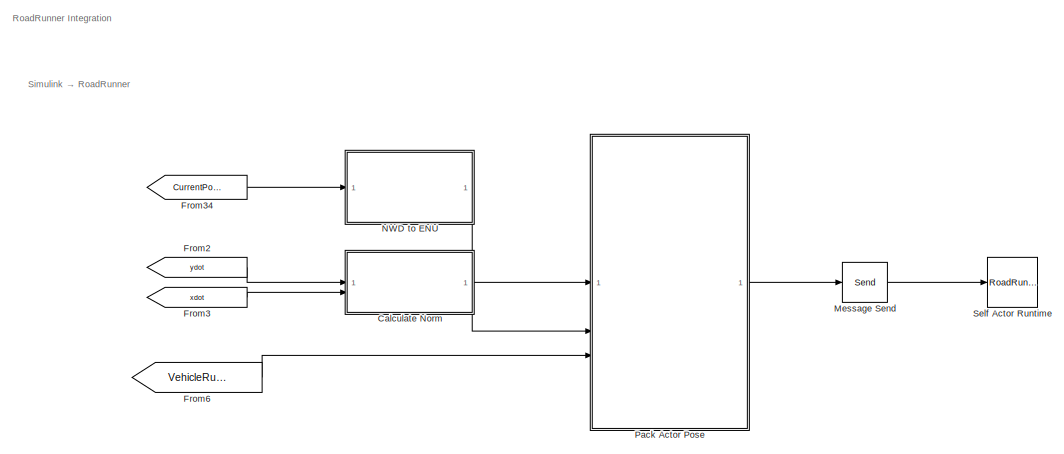
[diagram: Environment & Data - part 1/5, top left region]
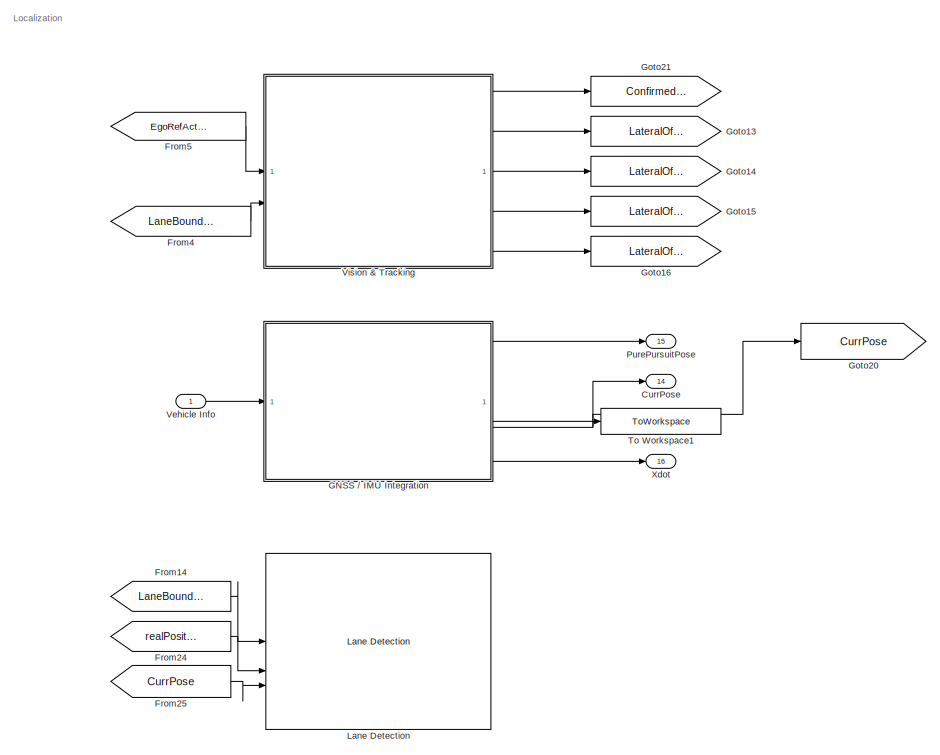
[diagram: Environment & Data - part 2/5, top right region]
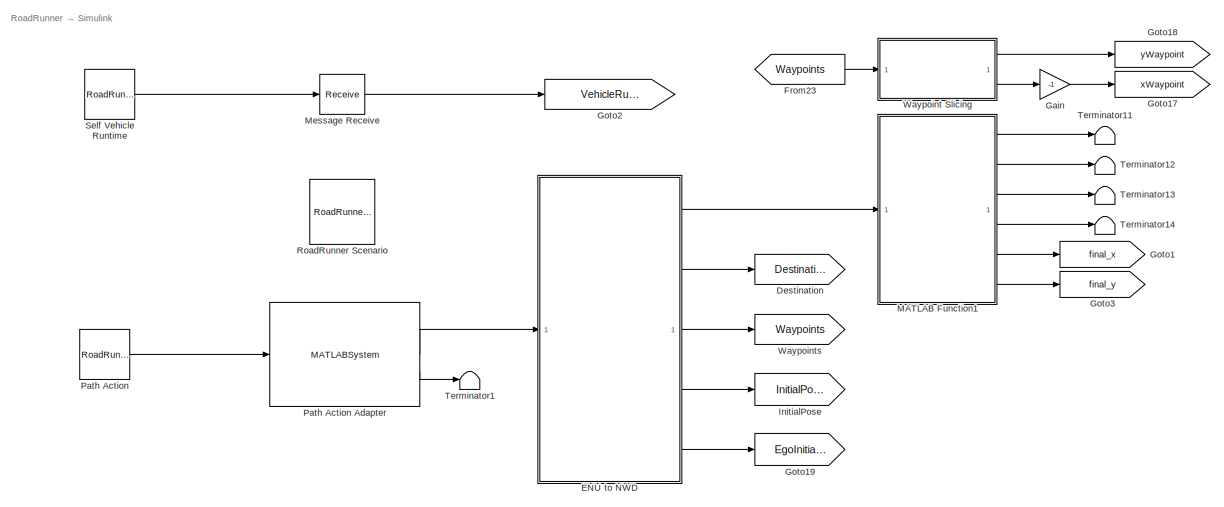
[diagram: Environment & Data - part 3/5, middle left region]
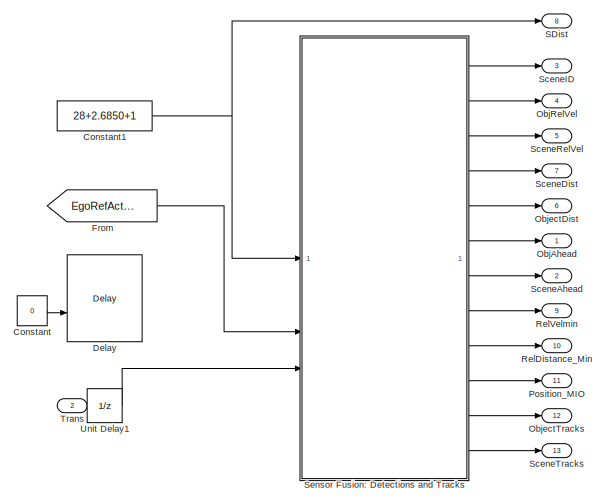
[diagram: Environment & Data - part 4/5, middle right region]
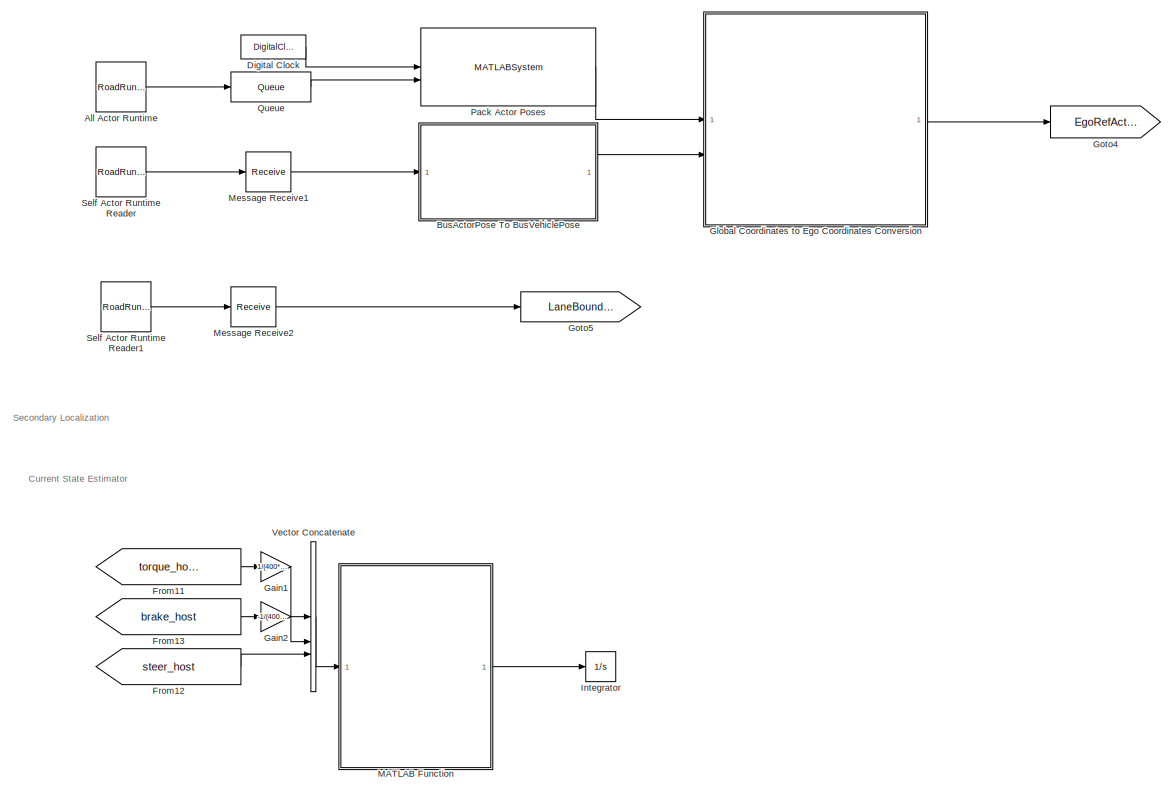
[diagram: Environment & Data - part 5/5, bottom left region]
BLOCK [SubSystem] Environment & Data
BLOCK [Reference] Environment & Data/All Actor Runtime  REF=roadrunnerscenario/RoadRunner Scenario
Reader
  SourceBlock = roadrunnerscenario/RoadRunner Scenario\nReader
BLOCK [SubSystem] Environment & Data/BusActorPose To BusVehiclePose
BLOCK [BusCreator] Environment & Data/BusActorPose To BusVehiclePose/Bus Creator
  DisplayOption = bar
  InheritFromInputs = off
  Inputs = 7
  NonVirtualBus = on
  OutDataTypeStr = Bus: BusVehiclePose
BLOCK [BusSelector] Environment & Data/BusActorPose To BusVehiclePose/Bus Selector
  OutputSignals = ActorID,Position,Velocity,Roll,Pitch,Yaw,AngularVelocity
BLOCK [Inport] Environment & Data/BusActorPose To BusVehiclePose/BusActorPose
BLOCK [Outport] Environment & Data/BusActorPose To BusVehiclePose/BusVehiclePose
BLOCK [SubSystem] Environment & Data/Calculate Norm
BLOCK [Sum] Environment & Data/Calculate Norm/Add
  IconShape = rectangular
BLOCK [Inport] Environment & Data/Calculate Norm/Lateral Velocity
BLOCK [Inport] Environment & Data/Calculate Norm/Longitudinal Velocity
  Port = 2
BLOCK [Math] Environment & Data/Calculate Norm/Math Function
  Operator = square
BLOCK [Math] Environment & Data/Calculate Norm/Math Function1
  Operator = square
BLOCK [Outport] Environment & Data/Calculate Norm/Speed
BLOCK [Sqrt] Environment & Data/Calculate Norm/Sqrt
BLOCK [Constant] Environment & Data/Constant
  Value = 0
BLOCK [Constant] Environment & Data/Constant1
  Value = 28+2.6850+1
BLOCK [Outport] Environment & Data/CurrPose
  Port = 14
BLOCK [Delay] Environment & Data/Delay
  DelayLengthSource = Input port
  InputPortMap = u0,p1
BLOCK [Goto] Environment & Data/Destination
  GotoTag = Destination
  TagVisibility = global
BLOCK [DigitalClock] Environment & Data/Digital Clock
  SampleTime = Ts
BLOCK [SubSystem] Environment & Data/ENU to NWD
BLOCK [SubSystem] Environment & Data/ENU to NWD/2D RefWaypoints
  ErrorFcn = Stateflow.Translate.translate
  LibrarySourceBlock = simulink/User-Defined\nFunctions/MATLAB Function
  PermitHierarchicalResolution = ExplicitOnly
  SFBlockType = MATLAB Function
  TreatAsAtomicUnit = on
BLOCK [Demux] Environment & Data/ENU to NWD/2D RefWaypoints/ Demux 
  Outputs = 1
BLOCK [S-Function] Environment & Data/ENU to NWD/2D RefWaypoints/ SFunction 
  EnableBusSupport = on
  FunctionName = sf_sfun
  PortCounts = [1 5]
  SFcnIsStateOwnerBlock = off
  SFunctionDeploymentMode = off
  Tag = Stateflow S-Function 29
BLOCK [Terminator] Environment & Data/ENU to NWD/2D RefWaypoints/ Terminator 
BLOCK [Outport] Environment & Data/ENU to NWD/2D RefWaypoints/Destination_Position
  Port = 4
BLOCK [Outport] Environment & Data/ENU to NWD/2D RefWaypoints/Initial_Position
  Port = 3
BLOCK [Outport] Environment & Data/ENU to NWD/2D RefWaypoints/Initial_Yaw
  Port = 2
BLOCK [Outport] Environment & Data/ENU to NWD/2D RefWaypoints/Trajectory_Waypoints
BLOCK [Inport] Environment & Data/ENU to NWD/2D RefWaypoints/trajectory
BLOCK [Outport] Environment & Data/ENU to NWD/Cuboid Position
  NameLocation = right
BLOCK [Outport] Environment & Data/ENU to NWD/Destination
  NameLocation = right
  Port = 2
BLOCK [Gain] Environment & Data/ENU to NWD/Gain
  Gain = -1
BLOCK [Outport] Environment & Data/ENU to NWD/Initial Position
  NameLocation = right
  Port = 4
BLOCK [Outport] Environment & Data/ENU to NWD/Initial Yaw
  NameLocation = right
  Port = 5
BLOCK [Concatenate] Environment & Data/ENU to NWD/Matrix Concatenate
  ConcatenateDimension = 2
  Mode = Multidimensional array
  NumInputs = 3
BLOCK [Inport] Environment & Data/ENU to NWD/RR Position
  NameLocation = left
BLOCK [Selector] Environment & Data/ENU to NWD/Selector
  IndexOptions = Select all,Index vector (dialog)
  Indices = [1 3],1
  InputPortWidth = 3
  NumberOfDimensions = 2
  OutputSizes = 1,1
BLOCK [Selector] Environment & Data/ENU to NWD/Selector1
  IndexOptions = Select all,Index vector (dialog)
  Indices = [1 3],2
  InputPortWidth = 3
  NumberOfDimensions = 2
  OutputSizes = 1,1
BLOCK [Selector] Environment & Data/ENU to NWD/Selector2
  IndexOptions = Select all,Index vector (dialog)
  Indices = [1 3],3
  InputPortWidth = 3
  NumberOfDimensions = 2
  OutputSizes = 1,1
BLOCK [ToWorkspace] Environment & Data/ENU to NWD/Trajectory Waypoints
  FixptAsFi = on
  MaxDataPoints = inf
  SampleTime = -1
  Save2DSignal = 2-D array (concatenate along first dimension)
  SaveFormat = Structure
  VariableName = Trajectory_Waypoints
BLOCK [Outport] Environment & Data/ENU to NWD/Waypoints
  NameLocation = right
  Port = 3
  VarSizeSig = No
BLOCK [From] Environment & Data/From
  GotoTag = EgoRefActors
BLOCK [From] Environment & Data/From11
  Commented = on
  GotoTag = torque_host
  TagVisibility = global
BLOCK [From] Environment & Data/From12
  Commented = on
  GotoTag = steer_host
  TagVisibility = global
BLOCK [From] Environment & Data/From13
  Commented = on
  GotoTag = brake_host
  TagVisibility = global
BLOCK [From] Environment & Data/From14
  GotoTag = LaneBoundaries
BLOCK [From] Environment & Data/From2
  GotoTag = ydot
  TagVisibility = global
BLOCK [From] Environment & Data/From23
  GotoTag = Waypoints
  TagVisibility = global
BLOCK [From] Environment & Data/From24
  GotoTag = realPosition
  TagVisibility = global
BLOCK [From] Environment & Data/From25
  GotoTag = CurrPose
  TagVisibility = global
BLOCK [From] Environment & Data/From3
  GotoTag = xdot
  TagVisibility = global
BLOCK [From] Environment & Data/From34
  GotoTag = CurrentPose
  TagVisibility = global
BLOCK [From] Environment & Data/From4
  GotoTag = LaneBoundaries
BLOCK [From] Environment & Data/From5
  GotoTag = EgoRefActors
BLOCK [From] Environment & Data/From6
  GotoTag = VehicleRuntime
BLOCK [SubSystem] Environment & Data/GNSS // IMU Integration
BLOCK [SubSystem] Environment & Data/GNSS // IMU Integration/Angular Velocity
  ErrorFcn = Stateflow.Translate.translate
  PermitHierarchicalResolution = ExplicitOnly
  SFBlockType = MATLAB Function
  SystemSampleTime = 0.05
  TreatAsAtomicUnit = on
BLOCK [Demux] Environment & Data/GNSS // IMU Integration/Angular Velocity/ Demux 
  Outputs = 1
BLOCK [S-Function] Environment & Data/GNSS // IMU Integration/Angular Velocity/ SFunction 
  EnableBusSupport = on
  FunctionName = sf_sfun
  PortCounts = [3 2]
  SFcnIsStateOwnerBlock = off
  SFunctionDeploymentMode = off
  Tag = Stateflow S-Function 72
BLOCK [Terminator] Environment & Data/GNSS // IMU Integration/Angular Velocity/ Terminator 
BLOCK [Outport] Environment & Data/GNSS // IMU Integration/Angular Velocity/AngularVelocity
BLOCK [Inport] Environment & Data/GNSS // IMU Integration/Angular Velocity/phiDot
BLOCK [Inport] Environment & Data/GNSS // IMU Integration/Angular Velocity/psiDot
  Port = 3
BLOCK [Inport] Environment & Data/GNSS // IMU Integration/Angular Velocity/thetaDot
  Port = 2
BLOCK [BusCreator] Environment & Data/GNSS // IMU Integration/Bus Creator
  DisplayOption = bar
  InheritFromInputs = on
  Inputs = 4
BLOCK [BusCreator] Environment & Data/GNSS // IMU Integration/Bus Creator1
  DisplayOption = bar
  InheritFromInputs = on
  Inputs = 2
BLOCK [BusCreator] Environment & Data/GNSS // IMU Integration/Bus Creator2
  DisplayOption = bar
  InheritFromInputs = on
  Inputs = 2
BLOCK [BusCreator] Environment & Data/GNSS // IMU Integration/Bus Creator3
  DisplayOption = bar
  InheritFromInputs = on
  Inputs = 2
BLOCK [BusCreator] Environment & Data/GNSS // IMU Integration/Bus Creator4
  DisplayOption = bar
  InheritFromInputs = on
  Inputs = 2
BLOCK [BusCreator] Environment & Data/GNSS // IMU Integration/Bus Creator5
  DisplayOption = bar
  InheritFromInputs = on
  Inputs = 4
BLOCK [BusCreator] Environment & Data/GNSS // IMU Integration/Bus Creator8
  Commented = on
  DisplayOption = bar
  InheritFromInputs = on
  Inputs = 2
BLOCK [BusSelector] Environment & Data/GNSS // IMU Integration/Bus Selector
  OutputSignals = InertFrm.Cg.Disp.X,InertFrm.Cg.Disp.Y,InertFrm.Cg.Disp.Z,InertFrm.Cg.Ang.phi,InertFrm.Cg.Ang.theta,InertFrm.Cg.Ang.psi,InertFrm.Cg.Vel.Xdot,InertFrm.Cg.Vel.Ydot,InertFrm.Cg.Vel.Zdot
BLOCK [Constant] Environment & Data/GNSS // IMU Integration/Constant
  Value = 0
BLOCK [Constant] Environment & Data/GNSS // IMU Integration/Constant1
  Value = 0
BLOCK [Constant] Environment & Data/GNSS // IMU Integration/Constant2
  Value = 0
BLOCK [Constant] Environment & Data/GNSS // IMU Integration/Constant3
BLOCK [Outport] Environment & Data/GNSS // IMU Integration/CurrPosition
  Port = 3
BLOCK [Demux] Environment & Data/GNSS // IMU Integration/Demux
  Outputs = 3
BLOCK [Demux] Environment & Data/GNSS // IMU Integration/Demux1
  Outputs = 3
BLOCK [Derivative] Environment & Data/GNSS // IMU Integration/Derivative
BLOCK [Derivative] Environment & Data/GNSS // IMU Integration/Derivative1
BLOCK [Derivative] Environment & Data/GNSS // IMU Integration/Derivative2
BLOCK [Derivative] Environment & Data/GNSS // IMU Integration/Derivative3
BLOCK [Derivative] Environment & Data/GNSS // IMU Integration/Derivative4
BLOCK [Derivative] Environment & Data/GNSS // IMU Integration/Derivative5
BLOCK [Display] Environment & Data/GNSS // IMU Integration/Display
  Decimation = 1
BLOCK [Display] Environment & Data/GNSS // IMU Integration/Display1
  Decimation = 1
BLOCK [Reference] Environment & Data/GNSS // IMU Integration/Drift  REF=simulink/Sources/Ramp
  SourceBlock = simulink/Sources/Ramp
  SourceType = Ramp
BLOCK [Display] Environment & Data/GNSS // IMU Integration/Flag
  Decimation = 1
BLOCK [From] Environment & Data/GNSS // IMU Integration/From
  GotoTag = InitialPose
  TagVisibility = global
BLOCK [From] Environment & Data/GNSS // IMU Integration/From1
  GotoTag = xGPS
BLOCK [From] Environment & Data/GNSS // IMU Integration/From10
  GotoTag = GNSSFix_Flag
  TagVisibility = global
BLOCK [From] Environment & Data/GNSS // IMU Integration/From11
  GotoTag = yGPS
BLOCK [From] Environment & Data/GNSS // IMU Integration/From12
  GotoTag = xINS
  TagVisibility = global
BLOCK [From] Environment & Data/GNSS // IMU Integration/From13
  GotoTag = yINS
  TagVisibility = global
BLOCK [From] Environment & Data/GNSS // IMU Integration/From14
  GotoTag = yGPS
BLOCK [From] Environment & Data/GNSS // IMU Integration/From15
  GotoTag = xGPS
BLOCK [From] Environment & Data/GNSS // IMU Integration/From16
  GotoTag = yPos
  TagVisibility = global
BLOCK [From] Environment & Data/GNSS // IMU Integration/From17
  GotoTag = xPos
BLOCK [From] Environment & Data/GNSS // IMU Integration/From2
  GotoTag = yGPS
BLOCK [From] Environment & Data/GNSS // IMU Integration/From26
  GotoTag = x_Corrected
  TagVisibility = global
BLOCK [From] Environment & Data/GNSS // IMU Integration/From3
  GotoTag = xGPS
BLOCK [From] Environment & Data/GNSS // IMU Integration/From4
  GotoTag = xGPS
BLOCK [From] Environment & Data/GNSS // IMU Integration/From5
  GotoTag = yGPS
BLOCK [From] Environment & Data/GNSS // IMU Integration/From6
  GotoTag = GPSFaultFlag
  TagVisibility = global
BLOCK [From] Environment & Data/GNSS // IMU Integration/From7
  GotoTag = y_Corrected
  TagVisibility = global
BLOCK [From] Environment & Data/GNSS // IMU Integration/From8
  GotoTag = GPSFaultFlag
  TagVisibility = global
BLOCK [From] Environment & Data/GNSS // IMU Integration/From9
  GotoTag = GPSFaultFlag
  TagVisibility = global
BLOCK [Reference] Environment & Data/GNSS // IMU Integration/GPS  REF=sensorgpslib/GPS
  SourceBlock = sensorgpslib/GPS
  SourceType = fusion.internal.simulink.gpsSensor
BLOCK [SubSystem] Environment & Data/GNSS // IMU Integration/GPS Drifts
BLOCK [Sum] Environment & Data/GNSS // IMU Integration/GPS Drifts/Add
  IconShape = rectangular
BLOCK [Sum] Environment & Data/GNSS // IMU Integration/GPS Drifts/Add1
  IconShape = rectangular
BLOCK [BusCreator] Environment & Data/GNSS // IMU Integration/GPS Drifts/Bus Creator
  DisplayOption = bar
  InheritFromInputs = on
  Inputs = 2
BLOCK [BusCreator] Environment & Data/GNSS // IMU Integration/GPS Drifts/Bus Creator1
  DisplayOption = bar
  InheritFromInputs = on
  Inputs = 2
BLOCK [Constant] Environment & Data/GNSS // IMU Integration/GPS Drifts/Constant
  Value = 0
BLOCK [Inport] Environment & Data/GNSS // IMU Integration/GPS Drifts/Drift Signal
BLOCK [Inport] Environment & Data/GNSS // IMU Integration/GPS Drifts/Fault Flag
  Port = 2
BLOCK [Scope] Environment & Data/GNSS // IMU Integration/GPS Drifts/Scope
  Floating = off
  NumInputPorts = 1
  ScopeSpecificationString = Simulink.scopes.TimeScopeBlockCfg('CurrentConfiguration', extmgr.ConfigurationSet(extmgr.Configuration('Core','General UI',true),extmgr.Configuration('Core','Source UI',true),extmgr.Configuration('Sources','WiredSimulink',true,'DataLoggingVariableName','ScopeData1'),extmgr.Configuration('Visuals','Time Domain',true,'SerializedDisplays',{struct('MinYLimReal','-33.48238','MaxYLimReal','86.55217','YL...<+1599ch>
BLOCK [Switch] Environment & Data/GNSS // IMU Integration/GPS Drifts/Switch
  Criteria = u2 > Threshold
  InputSameDT = off
  SaturateOnIntegerOverflow = off
BLOCK [Switch] Environment & Data/GNSS // IMU Integration/GPS Drifts/Switch1
  Criteria = u2 > Threshold
  InputSameDT = off
  SaturateOnIntegerOverflow = off
BLOCK [Outport] Environment & Data/GNSS // IMU Integration/GPS Drifts/XPosition
BLOCK [Outport] Environment & Data/GNSS // IMU Integration/GPS Drifts/YPosition
  Port = 2
BLOCK [Inport] Environment & Data/GNSS // IMU Integration/GPS Drifts/xGPS
  Port = 3
BLOCK [Inport] Environment & Data/GNSS // IMU Integration/GPS Drifts/yGPS
  Port = 4
BLOCK [Scope] Environment & Data/GNSS // IMU Integration/GPS Drifts/yPos Drift
  Floating = off
  NumInputPorts = 1
  ScopeSpecificationString = Simulink.scopes.TimeScopeBlockCfg('CurrentConfiguration', extmgr.ConfigurationSet(extmgr.Configuration('Core','General UI',true),extmgr.Configuration('Core','Source UI',true),extmgr.Configuration('Sources','WiredSimulink',true,'DataLoggingVariableName','ScopeData2'),extmgr.Configuration('Visuals','Time Domain',true,'SerializedDisplays',{struct('MinYLimReal','2.34835','MaxYLimReal','3.77222','YLabe...<+1538ch>
BLOCK [SubSystem] Environment & Data/GNSS // IMU Integration/GPS Packet Losses
BLOCK [EnablePort] Environment & Data/GNSS // IMU Integration/GPS Packet Losses/Enable
BLOCK [Outport] Environment & Data/GNSS // IMU Integration/GPS Packet Losses/XPosition
BLOCK [Inport] Environment & Data/GNSS // IMU Integration/GPS Packet Losses/xGPS
BLOCK [Inport] Environment & Data/GNSS // IMU Integration/GPS Packet Losses/yGPS
  Port = 2
BLOCK [Outport] Environment & Data/GNSS // IMU Integration/GPS Packet Losses/yPosition
  Port = 2
BLOCK [Gain] Environment & Data/GNSS // IMU Integration/Gain
  Gain = 180/pi
  NameLocation = right
BLOCK [Gain] Environment & Data/GNSS // IMU Integration/Gain1
  Gain = 180/pi
BLOCK [Gain] Environment & Data/GNSS // IMU Integration/Gain2
  Gain = -1
BLOCK [Gain] Environment & Data/GNSS // IMU Integration/Gain3
  Gain = 180/pi
BLOCK [Goto] Environment & Data/GNSS // IMU Integration/Goto
  GotoTag = xGPS
BLOCK [Goto] Environment & Data/GNSS // IMU Integration/Goto1
  GotoTag = yGPS
BLOCK [Goto] Environment & Data/GNSS // IMU Integration/Goto2
  GotoTag = xPos
BLOCK [Goto] Environment & Data/GNSS // IMU Integration/Goto3
  GotoTag = yPos
  TagVisibility = global
BLOCK [Goto] Environment & Data/GNSS // IMU Integration/Goto4
  GotoTag = xINS
  TagVisibility = global
BLOCK [Goto] Environment & Data/GNSS // IMU Integration/Goto5
  GotoTag = yINS
  TagVisibility = global
BLOCK [Goto] Environment & Data/GNSS // IMU Integration/Goto6
  GotoTag = realPosition
  TagVisibility = global
BLOCK [Goto] Environment & Data/GNSS // IMU Integration/Goto7
  GotoTag = Vehicle_Heading
  TagVisibility = global
BLOCK [Reference] Environment & Data/GNSS // IMU Integration/IMU  REF=mspsensorlib/IMU
  Commented = on
  SourceBlock = mspsensorlib/IMU
  SourceType = fusion.simulink.imuSensor
BLOCK [Reference] Environment & Data/GNSS // IMU Integration/INS1  REF=sensorinslib/INS
  LibrarySourceBlock = drivingscenarioandsensors/INS
  SourceBlock = sensorinslib/INS
  SourceType = fusion.internal.simulink.insSensor
BLOCK [Reference] Environment & Data/GNSS // IMU Integration/INS2  REF=sensorinslib/INS
  LibrarySourceBlock = drivingscenarioandsensors/INS
  SourceBlock = sensorinslib/INS
  SourceType = fusion.internal.simulink.insSensor
BLOCK [SubSystem] Environment & Data/GNSS // IMU Integration/LLA 2 ENU
  ErrorFcn = Stateflow.Translate.translate
  PermitHierarchicalResolution = ExplicitOnly
  SFBlockType = MATLAB Function
  TreatAsAtomicUnit = on
BLOCK [Demux] Environment & Data/GNSS // IMU Integration/LLA 2 ENU/ Demux 
  Outputs = 1
BLOCK [S-Function] Environment & Data/GNSS // IMU Integration/LLA 2 ENU/ SFunction 
  EnableBusSupport = on
  FunctionName = sf_sfun
  PortCounts = [2 2]
  SFcnIsStateOwnerBlock = off
  SFunctionDeploymentMode = off
  Tag = Stateflow S-Function 55
BLOCK [Terminator] Environment & Data/GNSS // IMU Integration/LLA 2 ENU/ Terminator 
BLOCK [Inport] Environment & Data/GNSS // IMU Integration/LLA 2 ENU/llaPosition
  Port = 2
BLOCK [Inport] Environment & Data/GNSS // IMU Integration/LLA 2 ENU/origin
BLOCK [Outport] Environment & Data/GNSS // IMU Integration/LLA 2 ENU/xyPositions
BLOCK [Selector] Environment & Data/GNSS // IMU Integration/LLA_Lat
  Commented = on
  IndexOptions = Index vector (dialog)
  Indices = [1]
  InputPortWidth = 3
  OutputSizes = 1
BLOCK [Selector] Environment & Data/GNSS // IMU Integration/LLA_Long
  Commented = on
  IndexOptions = Index vector (dialog)
  Indices = [2]
  InputPortWidth = 3
  OutputSizes = 1
BLOCK [Logic] Environment & Data/GNSS // IMU Integration/Logical Operator
  AllPortsSameDT = off
  OutDataTypeStr = boolean
BLOCK [Logic] Environment & Data/GNSS // IMU Integration/Logical Operator1
  AllPortsSameDT = off
  OutDataTypeStr = boolean
BLOCK [SubSystem] Environment & Data/GNSS // IMU Integration/MATLAB Function2
  Commented = on
  ErrorFcn = Stateflow.Translate.translate
  PermitHierarchicalResolution = ExplicitOnly
  SFBlockType = MATLAB Function
  TreatAsAtomicUnit = on
BLOCK [Demux] Environment & Data/GNSS // IMU Integration/MATLAB Function2/ Demux 
  Outputs = 1
BLOCK [S-Function] Environment & Data/GNSS // IMU Integration/MATLAB Function2/ SFunction 
  EnableBusSupport = on
  FunctionName = sf_sfun
  PortCounts = [2 2]
  SFcnIsStateOwnerBlock = off
  SFunctionDeploymentMode = off
  Tag = Stateflow S-Function 35
BLOCK [Terminator] Environment & Data/GNSS // IMU Integration/MATLAB Function2/ Terminator 
BLOCK [Inport] Environment & Data/GNSS // IMU Integration/MATLAB Function2/u
BLOCK [Inport] Environment & Data/GNSS // IMU Integration/MATLAB Function2/v
  Port = 2
BLOCK [Outport] Environment & Data/GNSS // IMU Integration/MATLAB Function2/y
BLOCK [SubSystem] Environment & Data/GNSS // IMU Integration/MATLAB Function4
  ErrorFcn = Stateflow.Translate.translate
  PermitHierarchicalResolution = ExplicitOnly
  SFBlockType = MATLAB Function
  SystemSampleTime = 0.05
  TreatAsAtomicUnit = on
BLOCK [Demux] Environment & Data/GNSS // IMU Integration/MATLAB Function4/ Demux 
  Outputs = 1
BLOCK [S-Function] Environment & Data/GNSS // IMU Integration/MATLAB Function4/ SFunction 
  EnableBusSupport = on
  FunctionName = sf_sfun
  PortCounts = [3 2]
  SFcnIsStateOwnerBlock = off
  SFunctionDeploymentMode = off
  Tag = Stateflow S-Function 11
BLOCK [Terminator] Environment & Data/GNSS // IMU Integration/MATLAB Function4/ Terminator 
BLOCK [Outport] Environment & Data/GNSS // IMU Integration/MATLAB Function4/Acceleration
BLOCK [Inport] Environment & Data/GNSS // IMU Integration/MATLAB Function4/Xddot
BLOCK [Inport] Environment & Data/GNSS // IMU Integration/MATLAB Function4/Yddot
  Port = 2
BLOCK [Inport] Environment & Data/GNSS // IMU Integration/MATLAB Function4/Zddot
  Port = 3
BLOCK [Mux] Environment & Data/GNSS // IMU Integration/Mux
  DisplayOption = bar
  Inputs = 3
BLOCK [Mux] Environment & Data/GNSS // IMU Integration/Mux1
  DisplayOption = bar
  Inputs = 2
BLOCK [Mux] Environment & Data/GNSS // IMU Integration/Mux2
  DisplayOption = bar
  Inputs = 3
BLOCK [Mux] Environment & Data/GNSS // IMU Integration/Mux3
  DisplayOption = bar
  Inputs = 2
BLOCK [Logic] Environment & Data/GNSS // IMU Integration/NOT
  AllPortsSameDT = off
  IconShape = distinctive
  Operator = NOT
  OutDataTypeStr = boolean
BLOCK [SubSystem] Environment & Data/GNSS // IMU Integration/Orientation
  ErrorFcn = Stateflow.Translate.translate
  PermitHierarchicalResolution = ExplicitOnly
  SFBlockType = MATLAB Function
  SystemSampleTime = 0.05
  TreatAsAtomicUnit = on
BLOCK [Scope] Environment & Data/GNSS // IMU Integration/Orientation Error
  Floating = off
  NumInputPorts = 1
  ScopeSpecificationString = Simulink.scopes.TimeScopeBlockCfg('CurrentConfiguration', extmgr.ConfigurationSet(extmgr.Configuration('Core','General UI',true),extmgr.Configuration('Core','Source UI',true),extmgr.Configuration('Sources','WiredSimulink',true,'DataLoggingVariableName','ScopeData4'),extmgr.Configuration('Visuals','Time Domain',true,'SerializedDisplays',{struct('MinYLimReal','-18.56481','MaxYLimReal','201.80376','Y...<+1665ch>
BLOCK [Demux] Environment & Data/GNSS // IMU Integration/Orientation/ Demux 
  Outputs = 1
BLOCK [S-Function] Environment & Data/GNSS // IMU Integration/Orientation/ SFunction 
  EnableBusSupport = on
  FunctionName = sf_sfun
  PortCounts = [3 2]
  SFcnIsStateOwnerBlock = off
  SFunctionDeploymentMode = off
  Tag = Stateflow S-Function 7
BLOCK [Terminator] Environment & Data/GNSS // IMU Integration/Orientation/ Terminator 
BLOCK [Outport] Environment & Data/GNSS // IMU Integration/Orientation/Orientation
BLOCK [Inport] Environment & Data/GNSS // IMU Integration/Orientation/phi
BLOCK [Inport] Environment & Data/GNSS // IMU Integration/Orientation/psi
  Port = 3
BLOCK [Inport] Environment & Data/GNSS // IMU Integration/Orientation/theta
  Port = 2
BLOCK [SubSystem] Environment & Data/GNSS // IMU Integration/Origin
  ErrorFcn = Stateflow.Translate.translate
  PermitHierarchicalResolution = ExplicitOnly
  SFBlockType = MATLAB Function
  TreatAsAtomicUnit = on
BLOCK [Demux] Environment & Data/GNSS // IMU Integration/Origin/ Demux 
  Outputs = 1
BLOCK [S-Function] Environment & Data/GNSS // IMU Integration/Origin/ SFunction 
  EnableBusSupport = on
  FunctionName = sf_sfun
  PortCounts = [1 2]
  SFcnIsStateOwnerBlock = off
  SFunctionDeploymentMode = off
  Tag = Stateflow S-Function 57
BLOCK [Terminator] Environment & Data/GNSS // IMU Integration/Origin/ Terminator 
BLOCK [Inport] Environment & Data/GNSS // IMU Integration/Origin/InitialPose
BLOCK [Outport] Environment & Data/GNSS // IMU Integration/Origin/y
BLOCK [Outport] Environment & Data/GNSS // IMU Integration/PPpose
BLOCK [SubSystem] Environment & Data/GNSS // IMU Integration/Position
  ErrorFcn = Stateflow.Translate.translate
  PermitHierarchicalResolution = ExplicitOnly
  SFBlockType = MATLAB Function
  SystemSampleTime = 0.05
  TreatAsAtomicUnit = on
BLOCK [Demux] Environment & Data/GNSS // IMU Integration/Position/ Demux 
  Outputs = 1
BLOCK [S-Function] Environment & Data/GNSS // IMU Integration/Position/ SFunction 
  EnableBusSupport = on
  FunctionName = sf_sfun
  PortCounts = [3 2]
  SFcnIsStateOwnerBlock = off
  SFunctionDeploymentMode = off
  Tag = Stateflow S-Function 1
BLOCK [Terminator] Environment & Data/GNSS // IMU Integration/Position/ Terminator 
BLOCK [Outport] Environment & Data/GNSS // IMU Integration/Position/Position
BLOCK [Inport] Environment & Data/GNSS // IMU Integration/Position/X
BLOCK [Inport] Environment & Data/GNSS // IMU Integration/Position/Y
  Port = 2
BLOCK [Inport] Environment & Data/GNSS // IMU Integration/Position/Z
  Port = 3
BLOCK [Scope] Environment & Data/GNSS // IMU Integration/Scope
  Floating = off
  NumInputPorts = 2
  ScopeSpecificationString = Simulink.scopes.TimeScopeBlockCfg('CurrentConfiguration', extmgr.ConfigurationSet(extmgr.Configuration('Core','General UI',true,'FigureColor',[0 0 0]),extmgr.Configuration('Core','Source UI',true),extmgr.Configuration('Sources','WiredSimulink',true,'DataLoggingVariableName','ScopeData1'),extmgr.Configuration('Visuals','Time Domain',true,'SerializedDisplays',{struct('MinYLimReal','-108.93928','MaxY...<+2849ch>
BLOCK [Scope] Environment & Data/GNSS // IMU Integration/Scope1
  Floating = off
  NumInputPorts = 2
  ScopeSpecificationString = Simulink.scopes.TimeScopeBlockCfg('CurrentConfiguration', extmgr.ConfigurationSet(extmgr.Configuration('Core','General UI',true),extmgr.Configuration('Core','Source UI',true),extmgr.Configuration('Sources','WiredSimulink',true,'DataLoggingVariableName','ScopeData3'),extmgr.Configuration('Visuals','Time Domain',true,'SerializedDisplays',{struct('MinYLimReal','-0.04036','MaxYLimReal','0.03739','YLab...<+2347ch>
BLOCK [Scope] Environment & Data/GNSS // IMU Integration/Scope2
  Floating = off
  NumInputPorts = 1
  ScopeSpecificationString = Simulink.scopes.TimeScopeBlockCfg('CurrentConfiguration', extmgr.ConfigurationSet(extmgr.Configuration('Core','General UI',true),extmgr.Configuration('Core','Source UI',true),extmgr.Configuration('Sources','WiredSimulink',true,'DataLoggingVariableName','ScopeData1'),extmgr.Configuration('Visuals','Time Domain',true,'SerializedDisplays',{struct('MinYLimReal','-87.30287','MaxYLimReal','40.83742','YL...<+2325ch>
BLOCK [Scope] Environment & Data/GNSS // IMU Integration/Scope3
  Floating = off
  NumInputPorts = 1
  ScopeSpecificationString = Simulink.scopes.TimeScopeBlockCfg('CurrentConfiguration', extmgr.ConfigurationSet(extmgr.Configuration('Core','General UI',true),extmgr.Configuration('Core','Source UI',true),extmgr.Configuration('Sources','WiredSimulink',true,'DataLoggingVariableName','ScopeData2'),extmgr.Configuration('Visuals','Time Domain',true,'SerializedDisplays',{struct('MinYLimReal','-74.08972','MaxYLimReal','18.3029','YLa...<+2266ch>
BLOCK [Scope] Environment & Data/GNSS // IMU Integration/Scope4
  Floating = off
  NumInputPorts = 1
  ScopeSpecificationString = Simulink.scopes.TimeScopeBlockCfg('CurrentConfiguration', extmgr.ConfigurationSet(extmgr.Configuration('Core','General UI',true,'FigureColor',[1 1 1]),extmgr.Configuration('Core','Source UI',true),extmgr.Configuration('Sources','WiredSimulink',true,'DataLoggingVariableName','ScopeData1'),extmgr.Configuration('Visuals','Time Domain',true,'SerializedDisplays',{struct('MinYLimReal','-0.125','MaxYLimR...<+1493ch>
BLOCK [Scope] Environment & Data/GNSS // IMU Integration/Scope5
  Commented = on
  Floating = off
  NumInputPorts = 1
  ScopeSpecificationString = Simulink.scopes.TimeScopeBlockCfg('CurrentConfiguration', extmgr.ConfigurationSet(extmgr.Configuration('Core','General UI',true),extmgr.Configuration('Core','Source UI',true),extmgr.Configuration('Sources','WiredSimulink',true,'DataLoggingVariableName','ScopeData1'),extmgr.Configuration('Visuals','Time Domain',true,'SerializedDisplays',{struct('MinYLimReal','-44.97729','MaxYLimReal','404.98077','Y...<+1527ch>
BLOCK [Scope] Environment & Data/GNSS // IMU Integration/Scope6
  Commented = on
  Floating = off
  NumInputPorts = 1
  ScopeSpecificationString = Simulink.scopes.TimeScopeBlockCfg('CurrentConfiguration', extmgr.ConfigurationSet(extmgr.Configuration('Core','General UI',true),extmgr.Configuration('Core','Source UI',true),extmgr.Configuration('Sources','WiredSimulink',true,'DataLoggingVariableName','ScopeData2'),extmgr.Configuration('Visuals','Time Domain',true,'SerializedDisplays',{struct('MinYLimReal','-0.0000256','MaxYLimReal','-0.0000219',...<+2288ch>
BLOCK [Selector] Environment & Data/GNSS // IMU Integration/Selector1
  IndexOptions = Index vector (dialog)
  Indices = [1]
  InputPortWidth = 3
  OutputSizes = 1
BLOCK [Selector] Environment & Data/GNSS // IMU Integration/Selector2
  IndexOptions = Index vector (dialog)
  Indices = [2]
  InputPortWidth = 3
  OutputSizes = 1
BLOCK [Selector] Environment & Data/GNSS // IMU Integration/Selector3
  IndexOptions = Index vector (dialog)
  Indices = [1]
  InputPortWidth = 3
  OutputSizes = 1
BLOCK [Selector] Environment & Data/GNSS // IMU Integration/Selector4
  IndexOptions = Index vector (dialog)
  Indices = [2]
  InputPortWidth = 3
  OutputSizes = 1
BLOCK [Sum] Environment & Data/GNSS // IMU Integration/Subtract
  Commented = on
  IconShape = rectangular
  Inputs = +-
BLOCK [Sum] Environment & Data/GNSS // IMU Integration/Subtract1
  Commented = on
  IconShape = rectangular
  Inputs = +-
BLOCK [Terminator] Environment & Data/GNSS // IMU Integration/Terminator
BLOCK [Terminator] Environment & Data/GNSS // IMU Integration/Terminator1
BLOCK [Terminator] Environment & Data/GNSS // IMU Integration/Terminator10
BLOCK [Terminator] Environment & Data/GNSS // IMU Integration/Terminator11
BLOCK [Terminator] Environment & Data/GNSS // IMU Integration/Terminator12
BLOCK [Terminator] Environment & Data/GNSS // IMU Integration/Terminator13
BLOCK [Terminator] Environment & Data/GNSS // IMU Integration/Terminator14
BLOCK [Terminator] Environment & Data/GNSS // IMU Integration/Terminator15
BLOCK [Terminator] Environment & Data/GNSS // IMU Integration/Terminator2
BLOCK [Terminator] Environment & Data/GNSS // IMU Integration/Terminator3
  Commented = on
BLOCK [Terminator] Environment & Data/GNSS // IMU Integration/Terminator4
BLOCK [Terminator] Environment & Data/GNSS // IMU Integration/Terminator5
BLOCK [Terminator] Environment & Data/GNSS // IMU Integration/Terminator6
BLOCK [Terminator] Environment & Data/GNSS // IMU Integration/Terminator7
BLOCK [Terminator] Environment & Data/GNSS // IMU Integration/Terminator8
BLOCK [Terminator] Environment & Data/GNSS // IMU Integration/Terminator9
BLOCK [ToWorkspace] Environment & Data/GNSS // IMU Integration/To Workspace
  Commented = on
  MaxDataPoints = inf
  SampleTime = -1
  SaveFormat = Structure With Time
  VariableName = x_error
BLOCK [ToWorkspace] Environment & Data/GNSS // IMU Integration/To Workspace1
  Commented = on
  FixptAsFi = on
  MaxDataPoints = inf
  SampleTime = -1
  SaveFormat = Structure With Time
  VariableName = y_error
BLOCK [ToWorkspace] Environment & Data/GNSS // IMU Integration/To Workspace2
  FixptAsFi = on
  MaxDataPoints = inf
  SampleTime = -1
  Save2DSignal = 2-D array (concatenate along first dimension)
  SaveFormat = Structure
  VariableName = insPosition
BLOCK [ToWorkspace] Environment & Data/GNSS // IMU Integration/To Workspace3
  FixptAsFi = on
  MaxDataPoints = inf
  SampleTime = -1
  Save2DSignal = 2-D array (concatenate along first dimension)
  SaveFormat = Structure
  VariableName = realPosition
BLOCK [ToWorkspace] Environment & Data/GNSS // IMU Integration/To Workspace4
  FixptAsFi = on
  MaxDataPoints = inf
  SampleTime = -1
  Save2DSignal = 2-D array (concatenate along first dimension)
  SaveFormat = Structure
  VariableName = fault_flag
BLOCK [ToggleSwitchBlock] Environment & Data/GNSS // IMU Integration/Toggle Switch
BLOCK [Math] Environment & Data/GNSS // IMU Integration/Transpose
  Operator = transpose
  SignedPower = on
BLOCK [Math] Environment & Data/GNSS // IMU Integration/Transpose1
  Operator = transpose
  SignedPower = on
BLOCK [Math] Environment & Data/GNSS // IMU Integration/Transpose2
  Operator = transpose
  SignedPower = on
BLOCK [Inport] Environment & Data/GNSS // IMU Integration/Vehicle Info
BLOCK [SubSystem] Environment & Data/GNSS // IMU Integration/Velocity
  ErrorFcn = Stateflow.Translate.translate
  PermitHierarchicalResolution = ExplicitOnly
  SFBlockType = MATLAB Function
  SystemSampleTime = 0.05
  TreatAsAtomicUnit = on
BLOCK [Demux] Environment & Data/GNSS // IMU Integration/Velocity/ Demux 
  Outputs = 1
BLOCK [S-Function] Environment & Data/GNSS // IMU Integration/Velocity/ SFunction 
  EnableBusSupport = on
  FunctionName = sf_sfun
  PortCounts = [3 2]
  SFcnIsStateOwnerBlock = off
  SFunctionDeploymentMode = off
  Tag = Stateflow S-Function 2
BLOCK [Terminator] Environment & Data/GNSS // IMU Integration/Velocity/ Terminator 
BLOCK [Outport] Environment & Data/GNSS // IMU Integration/Velocity/Velocity
BLOCK [Inport] Environment & Data/GNSS // IMU Integration/Velocity/Xdot
BLOCK [Inport] Environment & Data/GNSS // IMU Integration/Velocity/Ydot
  Port = 2
BLOCK [Inport] Environment & Data/GNSS // IMU Integration/Velocity/Zdot
  Port = 3
BLOCK [Selector] Environment & Data/GNSS // IMU Integration/XPos_GND
  IndexOptions = Index vector (dialog)
  Indices = [1]
  InputPortWidth = 3
  OutputSizes = 1
BLOCK [Selector] Environment & Data/GNSS // IMU Integration/XPos_Simulated
  IndexOptions = Index vector (dialog)
  Indices = [1]
  InputPortWidth = 3
  OutputSizes = 1
BLOCK [Switch] Environment & Data/GNSS // IMU Integration/XPosition Switch
  Criteria = u2 > Threshold
  InputSameDT = off
  SaturateOnIntegerOverflow = off
BLOCK [Outport] Environment & Data/GNSS // IMU Integration/Xdot
  Port = 4
BLOCK [Selector] Environment & Data/GNSS // IMU Integration/YPos_GND
  IndexOptions = Index vector (dialog)
  Indices = [2]
  InputPortWidth = 3
  OutputSizes = 1
BLOCK [Selector] Environment & Data/GNSS // IMU Integration/YPos_Simulated
  IndexOptions = Index vector (dialog)
  Indices = [2]
  InputPortWidth = 3
  OutputSizes = 1
BLOCK [Switch] Environment & Data/GNSS // IMU Integration/YPosition Switch
  Criteria = u2 > Threshold
  InputSameDT = off
  SaturateOnIntegerOverflow = off
BLOCK [Outport] Environment & Data/GNSS // IMU Integration/pose
  Port = 2
BLOCK [Gain] Environment & Data/Gain
  Gain = -1
BLOCK [Gain] Environment & Data/Gain1
  Commented = on
  Gain = 1/(400*2)
BLOCK [Gain] Environment & Data/Gain2
  Commented = on
  Gain = -1/(400*2)
BLOCK [SubSystem] Environment & Data/Global Coordinates to Ego Coordinates Conversion
  ErrorFcn = Stateflow.Translate.translate
  LibrarySourceBlock = simulink/User-Defined\nFunctions/MATLAB Function
  PermitHierarchicalResolution = ExplicitOnly
  SFBlockType = MATLAB Function
  TreatAsAtomicUnit = on
BLOCK [Demux] Environment & Data/Global Coordinates to Ego Coordinates Conversion/ Demux 
  Outputs = 1
BLOCK [S-Function] Environment & Data/Global Coordinates to Ego Coordinates Conversion/ SFunction 
  EnableBusSupport = on
  FunctionName = sf_sfun
  PortCounts = [2 2]
  SFcnIsStateOwnerBlock = off
  SFunctionDeploymentMode = off
  Tag = Stateflow S-Function 37
BLOCK [Terminator] Environment & Data/Global Coordinates to Ego Coordinates Conversion/ Terminator 
BLOCK [Inport] Environment & Data/Global Coordinates to Ego Coordinates Conversion/ActorsIn
BLOCK [Outport] Environment & Data/Global Coordinates to Ego Coordinates Conversion/EgoRefActors
BLOCK [Inport] Environment & Data/Global Coordinates to Ego Coordinates Conversion/EgoVeh
  Port = 2
BLOCK [Goto] Environment & Data/Goto1
  GotoTag = final_x
  TagVisibility = global
BLOCK [Goto] Environment & Data/Goto13
  GotoTag = LateralOffsetLane
  TagVisibility = global
BLOCK [Goto] Environment & Data/Goto14
  GotoTag = LateralOffsetRight
  TagVisibility = global
BLOCK [Goto] Environment & Data/Goto15
  GotoTag = LateralOffsetLeftTwo
  TagVisibility = global
BLOCK [Goto] Environment & Data/Goto16
  GotoTag = LateralOffsetRightTwo
  TagVisibility = global
BLOCK [Goto] Environment & Data/Goto17
  GotoTag = xWaypoint
  TagVisibility = global
BLOCK [Goto] Environment & Data/Goto18
  GotoTag = yWaypoint
  TagVisibility = global
BLOCK [Goto] Environment & Data/Goto19
  GotoTag = EgoInitialYaw
  TagVisibility = global
BLOCK [Goto] Environment & Data/Goto2
  GotoTag = VehicleRuntime
BLOCK [Goto] Environment & Data/Goto20
  GotoTag = CurrPose
  TagVisibility = global
BLOCK [Goto] Environment & Data/Goto21
  GotoTag = Confirmed_Tracks
BLOCK [Goto] Environment & Data/Goto3
  GotoTag = final_y
  TagVisibility = global
BLOCK [Goto] Environment & Data/Goto4
  GotoTag = EgoRefActors
BLOCK [Goto] Environment & Data/Goto5
  GotoTag = LaneBoundaries
BLOCK [Goto] Environment & Data/InitialPose
  GotoTag = InitialPose
  TagVisibility = global
BLOCK [Integrator] Environment & Data/Integrator
  Commented = on
BLOCK [Reference] Environment & Data/Lane Detection  REF=LaneDetection/Lane Detection
  SourceBlock = LaneDetection/Lane Detection
  SourceType = SubSystem
BLOCK [SubSystem] Environment & Data/MATLAB Function
  Commented = on
  ErrorFcn = Stateflow.Translate.translate
  PermitHierarchicalResolution = ExplicitOnly
  SFBlockType = MATLAB Function
  TreatAsAtomicUnit = on
BLOCK [Demux] Environment & Data/MATLAB Function/ Demux 
  Outputs = 1
BLOCK [S-Function] Environment & Data/MATLAB Function/ SFunction 
  EnableBusSupport = on
  FunctionName = sf_sfun
  PortCounts = [2 2]
  SFcnIsStateOwnerBlock = off
  SFunctionDeploymentMode = off
  Tag = Stateflow S-Function 15
BLOCK [Terminator] Environment & Data/MATLAB Function/ Terminator 
BLOCK [Inport] Environment & Data/MATLAB Function/inputCmd
  Port = 2
BLOCK [Outport] Environment & Data/MATLAB Function/stateDynamics
BLOCK [Inport] Environment & Data/MATLAB Function/states
BLOCK [SubSystem] Environment & Data/MATLAB Function1
  ErrorFcn = Stateflow.Translate.translate
  LibrarySourceBlock = simulink/User-Defined\nFunctions/MATLAB Function
  PermitHierarchicalResolution = ExplicitOnly
  SFBlockType = MATLAB Function
  TreatAsAtomicUnit = on
BLOCK [Demux] Environment & Data/MATLAB Function1/ Demux 
  Outputs = 1
BLOCK [S-Function] Environment & Data/MATLAB Function1/ SFunction 
  EnableBusSupport = on
  FunctionName = sf_sfun
  PortCounts = [1 7]
  SFcnIsStateOwnerBlock = off
  SFunctionDeploymentMode = off
  Tag = Stateflow S-Function 42
BLOCK [Terminator] Environment & Data/MATLAB Function1/ Terminator 
BLOCK [Outport] Environment & Data/MATLAB Function1/final_x
  Port = 5
BLOCK [Outport] Environment & Data/MATLAB Function1/final_y
  Port = 6
BLOCK [Outport] Environment & Data/MATLAB Function1/lat_out
  Port = 2
BLOCK [Outport] Environment & Data/MATLAB Function1/long_out
BLOCK [Outport] Environment & Data/MATLAB Function1/out
  Port = 4
BLOCK [Inport] Environment & Data/MATLAB Function1/u
BLOCK [Outport] Environment & Data/MATLAB Function1/z_out
  Port = 3
BLOCK [Receive] Environment & Data/Message Receive
  InputPortMap = u0
  InputPortMessageModes = m
  OutputPortMap = o1
BLOCK [Receive] Environment & Data/Message Receive1
  InputPortMap = u0
  InputPortMessageModes = m
  OutputPortMap = o1
  SampleTime = Ts
BLOCK [Receive] Environment & Data/Message Receive2
  InputPortMap = u0
  InputPortMessageModes = m
  OutputPortMap = o1
  SampleTime = Ts
  UseInternalQueue = off
BLOCK [Send] Environment & Data/Message Send
  InputPortMap = u1
  OutputPortMessageModes = m
BLOCK [SubSystem] Environment & Data/NWD to ENU
BLOCK [Inport] Environment & Data/NWD to ENU/Cuboid Pose
BLOCK [Gain] Environment & Data/NWD to ENU/Gain
  Commented = through
  Gain = 180/pi
BLOCK [Gain] Environment & Data/NWD to ENU/Gain1
  Gain = -1
BLOCK [Concatenate] Environment & Data/NWD to ENU/Matrix Concatenate
  ConcatenateDimension = 2
  Mode = Multidimensional array
  NumInputs = 3
BLOCK [Outport] Environment & Data/NWD to ENU/RR Pose
BLOCK [Selector] Environment & Data/NWD to ENU/Selector
  IndexOptions = Index vector (dialog)
  Indices = 3
  InputPortWidth = 3
  OutputSizes = 1
BLOCK [Selector] Environment & Data/NWD to ENU/Selector1
  IndexOptions = Index vector (dialog)
  Indices = 1
  InputPortWidth = 3
  OutputSizes = 1
BLOCK [Selector] Environment & Data/NWD to ENU/Selector2
  IndexOptions = Index vector (dialog)
  Indices = 2
  InputPortWidth = 3
  OutputSizes = 1
BLOCK [Outport] Environment & Data/ObjAhead
BLOCK [Outport] Environment & Data/ObjRelVel
  Port = 4
BLOCK [Outport] Environment & Data/ObjectDist
  Port = 6
BLOCK [Outport] Environment & Data/ObjectTracks
  Port = 12
BLOCK [SubSystem] Environment & Data/Pack Actor Pose
BLOCK [BusAssignment] Environment & Data/Pack Actor Pose/Assign
  AssignedSignals = Pose,Velocity
BLOCK [BusSelector] Environment & Data/Pack Actor Pose/Bus Selector
  OutputSignals = ActorRuntime
BLOCK [Inport] Environment & Data/Pack Actor Pose/CurrPose
BLOCK [Inport] Environment & Data/Pack Actor Pose/CurrSpeed
  Port = 2
BLOCK [Outport] Environment & Data/Pack Actor Pose/Ego Pose
BLOCK [SubSystem] Environment & Data/Pack Actor Pose/Pose Generation
  ErrorFcn = Stateflow.Translate.translate
  PermitHierarchicalResolution = ExplicitOnly
  SFBlockType = MATLAB Function
  TreatAsAtomicUnit = on
BLOCK [Demux] Environment & Data/Pack Actor Pose/Pose Generation/ Demux 
  Outputs = 1
BLOCK [S-Function] Environment & Data/Pack Actor Pose/Pose Generation/ SFunction 
  EnableBusSupport = on
  FunctionName = sf_sfun
  PortCounts = [1 2]
  SFcnIsStateOwnerBlock = off
  SFunctionDeploymentMode = off
  Tag = Stateflow S-Function 46
BLOCK [Terminator] Environment & Data/Pack Actor Pose/Pose Generation/ Terminator 
BLOCK [Outport] Environment & Data/Pack Actor Pose/Pose Generation/currPose
BLOCK [Inport] Environment & Data/Pack Actor Pose/Pose Generation/pose
BLOCK [Selector] Environment & Data/Pack Actor Pose/Selector
  IndexOptions = Index vector (dialog)
  Indices = 3
  InputPortWidth = 3
  OutputSizes = 1
BLOCK [Inport] Environment & Data/Pack Actor Pose/VehicleRuntime
  Port = 3
BLOCK [SubSystem] Environment & Data/Pack Actor Pose/Velocity XYZ Components
  ErrorFcn = Stateflow.Translate.translate
  PermitHierarchicalResolution = ExplicitOnly
  SFBlockType = MATLAB Function
  TreatAsAtomicUnit = on
BLOCK [Demux] Environment & Data/Pack Actor Pose/Velocity XYZ Components/ Demux 
  Outputs = 1
BLOCK [S-Function] Environment & Data/Pack Actor Pose/Velocity XYZ Components/ SFunction 
  EnableBusSupport = on
  FunctionName = sf_sfun
  PortCounts = [2 2]
  SFcnIsStateOwnerBlock = off
  SFunctionDeploymentMode = off
  Tag = Stateflow S-Function 47
BLOCK [Terminator] Environment & Data/Pack Actor Pose/Velocity XYZ Components/ Terminator 
BLOCK [Inport] Environment & Data/Pack Actor Pose/Velocity XYZ Components/speed
  Port = 2
BLOCK [Outport] Environment & Data/Pack Actor Pose/Velocity XYZ Components/velocity
BLOCK [Inport] Environment & Data/Pack Actor Pose/Velocity XYZ Components/yaw
BLOCK [MATLABSystem] Environment & Data/Pack Actor Poses
  ActorProfiles = struct( 'ActorID', 1, 'ClassID', 1, 'Length', 4.7, 'Width', 1.8, 'Height', 1.4, 'OriginOffset', [ 0, 0, 0 ], 'FrontOverhang', 0, 'RearOverhang', 0, 'Wheelbase', 0, 'Color', [ 0, 0, 0 ] )
  DefaultActorPoses = Simulink.Bus.createMATLABStruct( "BusActors" )
  EgoActorID = 1
  InputPortMessageModes = n,m
  MaskDisplay = disp(['HelperPack' char(10) 'DrivingScenarioPoses']);\nport_label('input',1,'time');\nport_label('input',2,'msgs');\nport_label('output',1,'TargetPoses');
  MaskType = HelperPackDrivingScenarioPoses
  System = HelperPackDrivingScenarioPoses
BLOCK [Reference] Environment & Data/Path Action  REF=roadrunnerscenario/RoadRunner Scenario
Reader
  SourceBlock = roadrunnerscenario/RoadRunner Scenario\nReader
BLOCK [MATLABSystem] Environment & Data/Path Action Adapter
  InputPortMessageModes = m
  MaskDisplay = disp(['HelperPathActionAdapter' char(10) '' char(10) '']);\nport_label('input',1,'PathAction');\nport_label('output',1,'Path');\nport_label('output',2,'NumPoints');
  MaskType = HelperPathActionAdapter
  System = HelperPathActionAdapter
BLOCK [Outport] Environment & Data/Position_MIO
  Port = 11
BLOCK [Outport] Environment & Data/PurePursuitPose
  Port = 15
BLOCK [Queue] Environment & Data/Queue
  Capacity = maxNumActors+1
  InputPortMap = u0
  InputPortMessageModes = m
  OutputPortMap = o5
  OutputPortMessageModes = m
  OverwriteOldest = on
BLOCK [Outport] Environment & Data/RelDistance_Min
  Port = 10
BLOCK [Outport] Environment & Data/RelVelmin
  Port = 9
BLOCK [Reference] Environment & Data/RoadRunner Scenario  REF=roadrunnerscenario/RoadRunner Scenario
  SourceBlock = roadrunnerscenario/RoadRunner Scenario
BLOCK [Outport] Environment & Data/SDist
  Port = 8
BLOCK [Outport] Environment & Data/SceneAhead
  Port = 2
BLOCK [Outport] Environment & Data/SceneDist
  Port = 7
BLOCK [Outport] Environment & Data/SceneID
  Port = 3
BLOCK [Outport] Environment & Data/SceneRelVel
  Port = 5
BLOCK [Outport] Environment & Data/SceneTracks
  Port = 13
BLOCK [Reference] Environment & Data/Self Actor Runtime  REF=roadrunnerscenario/RoadRunner Scenario
Writer
  SourceBlock = roadrunnerscenario/RoadRunner Scenario\nWriter
BLOCK [Reference] Environment & Data/Self Actor Runtime Reader  REF=roadrunnerscenario/RoadRunner Scenario
Reader
  SourceBlock = roadrunnerscenario/RoadRunner Scenario\nReader
BLOCK [Reference] Environment & Data/Self Actor Runtime Reader1  REF=roadrunnerscenario/RoadRunner Scenario
Reader
  SourceBlock = roadrunnerscenario/RoadRunner Scenario\nReader
BLOCK [Reference] Environment & Data/Self Vehicle Runtime  REF=roadrunnerscenario/RoadRunner Scenario
Reader
  SourceBlock = roadrunnerscenario/RoadRunner Scenario\nReader
BLOCK [SubSystem] Environment & Data/Sensor Fusion: Detections and Tracks
  ErrorFcn = Stateflow.Translate.translate
  PermitHierarchicalResolution = ExplicitOnly
  SFBlockType = MATLAB Function
  TreatAsAtomicUnit = on
BLOCK [Demux] Environment & Data/Sensor Fusion: Detections and Tracks/ Demux 
  Outputs = 1
BLOCK [S-Function] Environment & Data/Sensor Fusion: Detections and Tracks/ SFunction 
  EnableBusSupport = on
  FunctionName = sf_sfun
  PortCounts = [3 13]
  SFcnIsStateOwnerBlock = off
  SFunctionDeploymentMode = off
  Tag = Stateflow S-Function 4
BLOCK [Terminator] Environment & Data/Sensor Fusion: Detections and Tracks/ Terminator 
BLOCK [Outport] Environment & Data/Sensor Fusion: Detections and Tracks/ObjectAhead
  Port = 6
BLOCK [Outport] Environment & Data/Sensor Fusion: Detections and Tracks/ObjectDistance
  Port = 5
BLOCK [Outport] Environment & Data/Sensor Fusion: Detections and Tracks/ObjectMIOPosition
  Port = 10
BLOCK [Outport] Environment & Data/Sensor Fusion: Detections and Tracks/ObjectRelativeVelocity
  Port = 2
BLOCK [Outport] Environment & Data/Sensor Fusion: Detections and Tracks/ObjectTracks
  Port = 11
BLOCK [Outport] Environment & Data/Sensor Fusion: Detections and Tracks/RelativeDistanceMin
  Port = 9
BLOCK [Outport] Environment & Data/Sensor Fusion: Detections and Tracks/RelativeVelocityMin
  Port = 8
BLOCK [Inport] Environment & Data/Sensor Fusion: Detections and Tracks/SDist
BLOCK [Outport] Environment & Data/Sensor Fusion: Detections and Tracks/SceneAhead
  Port = 7
BLOCK [Outport] Environment & Data/Sensor Fusion: Detections and Tracks/SceneDistance
  Port = 4
BLOCK [Outport] Environment & Data/Sensor Fusion: Detections and Tracks/SceneId
BLOCK [Outport] Environment & Data/Sensor Fusion: Detections and Tracks/SceneRelativeVelocity
  Port = 3
BLOCK [Outport] Environment & Data/Sensor Fusion: Detections and Tracks/SceneTracks
  Port = 12
BLOCK [Inport] Environment & Data/Sensor Fusion: Detections and Tracks/Tracking
  Port = 2
BLOCK [Inport] Environment & Data/Sensor Fusion: Detections and Tracks/Trans
  Port = 3
BLOCK [Terminator] Environment & Data/Terminator1
BLOCK [Terminator] Environment & Data/Terminator11
BLOCK [Terminator] Environment & Data/Terminator12
BLOCK [Terminator] Environment & Data/Terminator13
BLOCK [Terminator] Environment & Data/Terminator14
BLOCK [ToWorkspace] Environment & Data/To Workspace1
  FixptAsFi = on
  MaxDataPoints = inf
  SampleTime = -1
  Save2DSignal = 2-D array (concatenate along first dimension)
  SaveFormat = Structure
  VariableName = CurrPosition
BLOCK [Inport] Environment & Data/Trans
  Port = 2
BLOCK [UnitDelay] Environment & Data/Unit Delay1
  HasFrameUpgradeWarning = on
  SampleTime = 0.05
BLOCK [Concatenate] Environment & Data/Vector Concatenate
  Commented = on
  NumInputs = 3
BLOCK [Inport] Environment & Data/Vehicle Info
BLOCK [SubSystem] Environment & Data/Vision & Tracking
BLOCK [BusCreator] Environment & Data/Vision & Tracking/Bus Creator
  DisplayOption = bar
  InheritFromInputs = on
  Inputs = 5
BLOCK [BusCreator] Environment & Data/Vision & Tracking/Bus Creator1
  DisplayOption = bar
  InheritFromInputs = on
  Inputs = 5
BLOCK [BusCreator] Environment & Data/Vision & Tracking/Bus Creator2
  DisplayOption = bar
  InheritFromInputs = on
  Inputs = 2
BLOCK [BusSelector] Environment & Data/Vision & Tracking/Bus Selector
  OutputSignals = LaneBoundaries
BLOCK [BusSelector] Environment & Data/Vision & Tracking/Bus Selector1
  OutputSignals = Curvature,CurvatureDerivative,HeadingAngle,LateralOffset,Strength
BLOCK [BusSelector] Environment & Data/Vision & Tracking/Bus Selector2
  OutputSignals = Curvature,CurvatureDerivative,HeadingAngle,LateralOffset,Strength
BLOCK [BusSelector] Environment & Data/Vision & Tracking/Bus Selector3
  OutputSignals = Curvature,CurvatureDerivative,HeadingAngle,LateralOffset,Strength
BLOCK [BusSelector] Environment & Data/Vision & Tracking/Bus Selector4
  OutputSignals = Curvature,CurvatureDerivative,HeadingAngle,LateralOffset,Strength
BLOCK [Reference] Environment & Data/Vision & Tracking/Camera Sensor 1  REF=drivingscenarioandsensors/Vision Detection Generator
  SourceBlock = drivingscenarioandsensors/Vision Detection Generator
  SourceType = visionDetectionGenerator
BLOCK [Reference] Environment & Data/Vision & Tracking/Camera Sensor 2  REF=drivingscenarioandsensors/Vision Detection Generator
  SourceBlock = drivingscenarioandsensors/Vision Detection Generator
  SourceType = visionDetectionGenerator
BLOCK [Reference] Environment & Data/Vision & Tracking/Camera Sensor 3  REF=drivingscenarioandsensors/Vision Detection Generator
  SourceBlock = drivingscenarioandsensors/Vision Detection Generator
  SourceType = visionDetectionGenerator
BLOCK [Outport] Environment & Data/Vision & Tracking/Confirmed Tracks
  NameLocation = top
BLOCK [DataTypeConversion] Environment & Data/Vision & Tracking/Data Type Conversion
  OutDataTypeStr = single
  RndMeth = Floor
  SaturateOnIntegerOverflow = off
BLOCK [DataTypeConversion] Environment & Data/Vision & Tracking/Data Type Conversion1
  OutDataTypeStr = single
  RndMeth = Floor
  SaturateOnIntegerOverflow = off
BLOCK [DataTypeConversion] Environment & Data/Vision & Tracking/Data Type Conversion10
  OutDataTypeStr = single
  RndMeth = Floor
  SaturateOnIntegerOverflow = off
BLOCK [DataTypeConversion] Environment & Data/Vision & Tracking/Data Type Conversion11
  OutDataTypeStr = single
  RndMeth = Floor
  SaturateOnIntegerOverflow = off
BLOCK [DataTypeConversion] Environment & Data/Vision & Tracking/Data Type Conversion2
  OutDataTypeStr = single
  RndMeth = Floor
  SaturateOnIntegerOverflow = off
BLOCK [DataTypeConversion] Environment & Data/Vision & Tracking/Data Type Conversion3
  OutDataTypeStr = single
  RndMeth = Floor
  SaturateOnIntegerOverflow = off
BLOCK [DataTypeConversion] Environment & Data/Vision & Tracking/Data Type Conversion4
  OutDataTypeStr = single
  RndMeth = Floor
  SaturateOnIntegerOverflow = off
BLOCK [DataTypeConversion] Environment & Data/Vision & Tracking/Data Type Conversion5
  OutDataTypeStr = single
  RndMeth = Floor
  SaturateOnIntegerOverflow = off
BLOCK [DataTypeConversion] Environment & Data/Vision & Tracking/Data Type Conversion6
  OutDataTypeStr = single
  RndMeth = Floor
  SaturateOnIntegerOverflow = off
BLOCK [DataTypeConversion] Environment & Data/Vision & Tracking/Data Type Conversion7
  OutDataTypeStr = single
  RndMeth = Floor
  SaturateOnIntegerOverflow = off
BLOCK [DataTypeConversion] Environment & Data/Vision & Tracking/Data Type Conversion8
  OutDataTypeStr = single
  RndMeth = Floor
  SaturateOnIntegerOverflow = off
BLOCK [DataTypeConversion] Environment & Data/Vision & Tracking/Data Type Conversion9
  OutDataTypeStr = single
  RndMeth = Floor
  SaturateOnIntegerOverflow = off
BLOCK [Reference] Environment & Data/Vision & Tracking/Detection Concatenation  REF=trackingutilitieslib/Detection Concatenation
  SourceBlock = trackingutilitieslib/Detection Concatenation
  SourceType = matlabshared.tracking.internal.DetectionConcatenation
BLOCK [Inport] Environment & Data/Vision & Tracking/Detections
BLOCK [Gain] Environment & Data/Vision & Tracking/Gain1
  Gain = pi/180
BLOCK [Gain] Environment & Data/Vision & Tracking/Gain2
  Gain = pi/180
BLOCK [Gain] Environment & Data/Vision & Tracking/Gain3
  Gain = pi/180
BLOCK [Gain] Environment & Data/Vision & Tracking/Gain4
  Gain = pi/180
BLOCK [Gain] Environment & Data/Vision & Tracking/Gain5
  Gain = pi/180
BLOCK [Gain] Environment & Data/Vision & Tracking/Gain7
  Gain = pi/180
BLOCK [Inport] Environment & Data/Vision & Tracking/LaneBoundaries
  Port = 2
BLOCK [Outport] Environment & Data/Vision & Tracking/LateralOffsetLeft
  Port = 2
BLOCK [Outport] Environment & Data/Vision & Tracking/LateralOffsetLeftTwo
  Port = 4
BLOCK [Outport] Environment & Data/Vision & Tracking/LateralOffsetRight
  Port = 3
BLOCK [Outport] Environment & Data/Vision & Tracking/LateralOffsetRightTwo
  Port = 5
BLOCK [SubSystem] Environment & Data/Vision & Tracking/MATLAB Function
  ErrorFcn = Stateflow.Translate.translate
  LibrarySourceBlock = simulink/User-Defined\nFunctions/MATLAB Function
  PermitHierarchicalResolution = ExplicitOnly
  SFBlockType = MATLAB Function
  TreatAsAtomicUnit = on
BLOCK [Demux] Environment & Data/Vision & Tracking/MATLAB Function/ Demux 
  Outputs = 1
BLOCK [S-Function] Environment & Data/Vision & Tracking/MATLAB Function/ SFunction 
  EnableBusSupport = on
  FunctionName = sf_sfun
  PortCounts = [1 4]
  SFcnIsStateOwnerBlock = off
  SFunctionDeploymentMode = off
  Tag = Stateflow S-Function 36
BLOCK [Terminator] Environment & Data/Vision & Tracking/MATLAB Function/ Terminator 
BLOCK [Outport] Environment & Data/Vision & Tracking/MATLAB Function/target_idx
  Port = 2
BLOCK [Outport] Environment & Data/Vision & Tracking/MATLAB Function/target_idx_all
BLOCK [Outport] Environment & Data/Vision & Tracking/MATLAB Function/track_state
  Port = 3
BLOCK [Inport] Environment & Data/Vision & Tracking/MATLAB Function/u
BLOCK [SubSystem] Environment & Data/Vision & Tracking/MATLAB Function1
  ErrorFcn = Stateflow.Translate.translate
  LibrarySourceBlock = simulink/User-Defined\nFunctions/MATLAB Function
  PermitHierarchicalResolution = ExplicitOnly
  SFBlockType = MATLAB Function
  TreatAsAtomicUnit = on
BLOCK [Demux] Environment & Data/Vision & Tracking/MATLAB Function1/ Demux 
  Outputs = 1
BLOCK [S-Function] Environment & Data/Vision & Tracking/MATLAB Function1/ SFunction 
  EnableBusSupport = on
  FunctionName = sf_sfun
  PortCounts = [2 2]
  SFcnIsStateOwnerBlock = off
  SFunctionDeploymentMode = off
  Tag = Stateflow S-Function 54
BLOCK [Terminator] Environment & Data/Vision & Tracking/MATLAB Function1/ Terminator 
BLOCK [Inport] Environment & Data/Vision & Tracking/MATLAB Function1/laterOffset
BLOCK [Inport] Environment & Data/Vision & Tracking/MATLAB Function1/strength
  Port = 2
BLOCK [Outport] Environment & Data/Vision & Tracking/MATLAB Function1/strengthOut
BLOCK [SubSystem] Environment & Data/Vision & Tracking/MATLAB Function2
  ErrorFcn = Stateflow.Translate.translate
  LibrarySourceBlock = simulink/User-Defined\nFunctions/MATLAB Function
  PermitHierarchicalResolution = ExplicitOnly
  SFBlockType = MATLAB Function
  TreatAsAtomicUnit = on
BLOCK [Demux] Environment & Data/Vision & Tracking/MATLAB Function2/ Demux 
  Outputs = 1
BLOCK [S-Function] Environment & Data/Vision & Tracking/MATLAB Function2/ SFunction 
  EnableBusSupport = on
  FunctionName = sf_sfun
  PortCounts = [2 2]
  SFcnIsStateOwnerBlock = off
  SFunctionDeploymentMode = off
  Tag = Stateflow S-Function 59
BLOCK [Terminator] Environment & Data/Vision & Tracking/MATLAB Function2/ Terminator 
BLOCK [Inport] Environment & Data/Vision & Tracking/MATLAB Function2/laterOffset
BLOCK [Inport] Environment & Data/Vision & Tracking/MATLAB Function2/strength
  Port = 2
BLOCK [Outport] Environment & Data/Vision & Tracking/MATLAB Function2/strengthOut
BLOCK [Reference] Environment & Data/Vision & Tracking/Multi-Object Tracker  REF=drivinglib/Multi-Object Tracker
  SourceBlock = drivinglib/Multi-Object Tracker
  SourceType = multiObjectTracker
BLOCK [Selector] Environment & Data/Vision & Tracking/Selector
  IndexOptions = Index vector (dialog)
  Indices = 1
  InputPortWidth = 4
  OutputSizes = 1
  RuntimeRangeChecks = on
BLOCK [Selector] Environment & Data/Vision & Tracking/Selector1
  IndexOptions = Index vector (dialog)
  Indices = 2
  InputPortWidth = 4
  OutputSizes = 1
BLOCK [Selector] Environment & Data/Vision & Tracking/Selector2
  IndexOptions = Index vector (dialog)
  Indices = 3
  InputPortWidth = 4
  OutputSizes = 1
BLOCK [Selector] Environment & Data/Vision & Tracking/Selector3
  IndexOptions = Index vector (dialog)
  Indices = 4
  InputPortWidth = 4
  OutputSizes = 1
BLOCK [SubSystem] Environment & Data/Waypoint Slicing
  ErrorFcn = Stateflow.Translate.translate
  PermitHierarchicalResolution = ExplicitOnly
  SFBlockType = MATLAB Function
  TreatAsAtomicUnit = on
BLOCK [Demux] Environment & Data/Waypoint Slicing/ Demux 
  Outputs = 1
BLOCK [S-Function] Environment & Data/Waypoint Slicing/ SFunction 
  EnableBusSupport = on
  FunctionName = sf_sfun
  PortCounts = [1 3]
  SFcnIsStateOwnerBlock = off
  SFunctionDeploymentMode = off
  Tag = Stateflow S-Function 33
BLOCK [Terminator] Environment & Data/Waypoint Slicing/ Terminator 
BLOCK [Inport] Environment & Data/Waypoint Slicing/waypoints
BLOCK [Outport] Environment & Data/Waypoint Slicing/x
BLOCK [Outport] Environment & Data/Waypoint Slicing/y
  Port = 2
BLOCK [Goto] Environment & Data/Waypoints
  GotoTag = Waypoints
  TagVisibility = global
BLOCK [Outport] Environment & Data/Xdot
  Port = 16
BLOCK [From] From
  GotoTag = SpeedUp
  TagVisibility = global
BLOCK [From] From1
  GotoTag = ObjTracks
  TagVisibility = global
BLOCK [From] From13
  GotoTag = torque_host
  TagVisibility = global
BLOCK [From] From14
  GotoTag = brake_host
  TagVisibility = global
BLOCK [From] From15
  GotoTag = steer_host
  TagVisibility = global
BLOCK [From] From16
  GotoTag = trans_host
  TagVisibility = global
BLOCK [From] From19
  GotoTag = ObjectAhead
  TagVisibility = global
BLOCK [From] From2
  GotoTag = SceneTracks
  TagVisibility = global
BLOCK [From] From20
  GotoTag = EgoVelocity
  TagVisibility = global
BLOCK [From] From21
  GotoTag = SceneID
  TagVisibility = global
BLOCK [From] From22
  GotoTag = ObjectDistance
  TagVisibility = global
BLOCK [From] From23
  GotoTag = Distance2Scene
  TagVisibility = global
BLOCK [From] From24
  GotoTag = SceneDistance
  TagVisibility = global
BLOCK [From] From25
  GotoTag = TL_poses
BLOCK [From] From26
  GotoTag = CurrentPose
  TagVisibility = global
BLOCK [From] From27
  GotoTag = ObjectRelativeVelocity
  TagVisibility = global
BLOCK [From] From28
  GotoTag = ObjectRelativeVelocity
  TagVisibility = global
BLOCK [From] From29
  GotoTag = RelativeDistanceMin
  TagVisibility = global
BLOCK [From] From3
  GotoTag = HoldBrake
BLOCK [From] From30
  GotoTag = EgoVelocity
  TagVisibility = global
BLOCK [From] From31
  GotoTag = RefPoses
BLOCK [From] From33
  GotoTag = curvature
BLOCK [From] From34
  GotoTag = CurrentPose
  TagVisibility = global
BLOCK [From] From35
  GotoTag = VehicleInfo
  TagVisibility = global
BLOCK [From] From4
  GotoTag = Waypoints
  TagVisibility = global
BLOCK [From] From47
  GotoTag = desiredV
  TagVisibility = global
BLOCK [From] From5
  GotoTag = purePursuitPose
  TagVisibility = global
BLOCK [From] From52
  GotoTag = Brake
  TagVisibility = global
BLOCK [From] From54
  GotoTag = Tgap
  TagVisibility = global
BLOCK [From] From55
  GotoTag = flagACC
  TagVisibility = global
BLOCK [From] From58
  GotoTag = Acc
  TagVisibility = global
BLOCK [From] From6
  GotoTag = CurrentPose
  TagVisibility = global
BLOCK [From] From7
  Commented = on
  GotoTag = LaneBounds
  TagVisibility = global
BLOCK [Goto] Goto
  GotoTag = HoldBrake
BLOCK [Goto] Goto1
  GotoTag = ObjTracks
  TagVisibility = global
BLOCK [Goto] Goto10
  GotoTag = ObjectDistance
  TagVisibility = global
BLOCK [Goto] Goto11
  GotoTag = SceneDistance
  TagVisibility = global
BLOCK [Goto] Goto12
  GotoTag = Distance2Scene
  TagVisibility = global
BLOCK [Goto] Goto13
  GotoTag = purePursuitPose
  TagVisibility = global
BLOCK [Goto] Goto14
  GotoTag = SceneAhead
  TagVisibility = global
BLOCK [Goto] Goto15
  GotoTag = EgoVelocity
  TagVisibility = global
BLOCK [Goto] Goto16
  GotoTag = SceneRelativeVelocity
  TagVisibility = global
BLOCK [Goto] Goto17
  GotoTag = RelativeDistanceMin
  TagVisibility = global
BLOCK [Goto] Goto18
  GotoTag = VehicleInfo
  TagVisibility = global
BLOCK [Goto] Goto19
  GotoTag = GPSFaultFlag
  TagVisibility = global
BLOCK [Goto] Goto2
  GotoTag = SceneTracks
  TagVisibility = global
BLOCK [Goto] Goto20
  GotoTag = SpeedUp
  TagVisibility = global
BLOCK [Goto] Goto21
  GotoTag = RelVelmin
  TagVisibility = global
BLOCK [Goto] Goto23
  GotoTag = CurrentPose
  TagVisibility = global
BLOCK [Goto] Goto24
  GotoTag = trans_host
  TagVisibility = global
BLOCK [Goto] Goto26
  GotoTag = PositionMIO
  TagVisibility = global
BLOCK [Goto] Goto28
  GotoTag = desiredV
  TagVisibility = global
BLOCK [Goto] Goto3
  GotoTag = HoldBrake
  TagVisibility = global
BLOCK [Goto] Goto32
  GotoTag = Brake
  TagVisibility = global
BLOCK [Goto] Goto33
  GotoTag = Tgap
  TagVisibility = global
BLOCK [Goto] Goto34
  GotoTag = flagACC
  TagVisibility = global
BLOCK [Goto] Goto4
  GotoTag = torque_host
  TagVisibility = global
BLOCK [Goto] Goto5
  GotoTag = steer_host
  TagVisibility = global
BLOCK [Goto] Goto6
  GotoTag = ObjectAhead
  TagVisibility = global
BLOCK [Goto] Goto7
  GotoTag = brake_host
  TagVisibility = global
BLOCK [Goto] Goto8
  GotoTag = ObjectRelativeVelocity
  TagVisibility = global
BLOCK [Goto] Goto9
  GotoTag = SceneID
  TagVisibility = global
BLOCK [Scope] Scope
  Floating = off
  IOType = viewer
  NumInputPorts = 1
  ScopeSpecificationString = Simulink.scopes.TimeScopeBlockCfg('CurrentConfiguration', extmgr.ConfigurationSet(extmgr.Configuration('Core','General UI',true),extmgr.Configuration('Core','Source UI',true),extmgr.Configuration('Sources','WiredSimulink',true,'DataLoggingVariableName','ScopeData1'),extmgr.Configuration('Visuals','Time Domain',true,'SerializedDisplays',{struct('MinYLimReal','-12.23755','MaxYLimReal','85.04144','YL...<+1454ch>
BLOCK [Scope] Scope1
  Floating = off
  IOType = viewer
  NumInputPorts = 1
  ScopeSpecificationString = Simulink.scopes.TimeScopeBlockCfg('CurrentConfiguration', extmgr.ConfigurationSet(extmgr.Configuration('Core','General UI',true),extmgr.Configuration('Core','Source UI',true),extmgr.Configuration('Sources','WiredSimulink',true,'DataLoggingVariableName','ScopeData2'),extmgr.Configuration('Visuals','Time Domain',true,'SerializedDisplays',{struct('MinYLimReal','-11.94055','MaxYLimReal','85.00844','YL...<+1454ch>
BLOCK [Scope] Scope2
  Floating = off
  IOType = viewer
  NumInputPorts = 1
  ScopeSpecificationString = Simulink.scopes.TimeScopeBlockCfg('CurrentConfiguration', extmgr.ConfigurationSet(extmgr.Configuration('Core','General UI',true),extmgr.Configuration('Core','Source UI',true),extmgr.Configuration('Sources','WiredSimulink',true,'DataLoggingVariableName','ScopeData1'),extmgr.Configuration('Visuals','Time Domain',true,'SerializedDisplays',{struct('MinYLimReal','-1.00000','MaxYLimReal','1.00000','YLab...<+1497ch>
BLOCK [SubSystem] Subsystem
BLOCK [Inport] Subsystem/CurrentPose
BLOCK [Outport] Subsystem/GPSFaultFlag
BLOCK [Inport] Subsystem/LaneBoundaries
  Port = 3
BLOCK [SubSystem] Subsystem/MATLAB Function
  ErrorFcn = Stateflow.Translate.translate
  PermitHierarchicalResolution = ExplicitOnly
  SFBlockType = MATLAB Function
  TreatAsAtomicUnit = on
BLOCK [Demux] Subsystem/MATLAB Function/ Demux 
  Outputs = 1
BLOCK [S-Function] Subsystem/MATLAB Function/ SFunction 
  EnableBusSupport = on
  FunctionName = sf_sfun
  PortCounts = [2 2]
  SFcnIsStateOwnerBlock = off
  SFunctionDeploymentMode = off
  Tag = Stateflow S-Function 3
BLOCK [Terminator] Subsystem/MATLAB Function/ Terminator 
BLOCK [Inport] Subsystem/MATLAB Function/CurrentPose
BLOCK [Outport] Subsystem/MATLAB Function/GPSFaultFlag
BLOCK [Inport] Subsystem/MATLAB Function/time
  Port = 2
BLOCK [SubSystem] Subsystem/MATLAB Function4
  Commented = on
  ErrorFcn = Stateflow.Translate.translate
  LibrarySourceBlock = simulink/User-Defined\nFunctions/MATLAB Function
  PermitHierarchicalResolution = ExplicitOnly
  SFBlockType = MATLAB Function
  TreatAsAtomicUnit = on
BLOCK [Demux] Subsystem/MATLAB Function4/ Demux 
  Outputs = 1
BLOCK [S-Function] Subsystem/MATLAB Function4/ SFunction 
  EnableBusSupport = on
  FunctionName = sf_sfun
  PortCounts = [1 3]
  SFcnIsStateOwnerBlock = off
  SFunctionDeploymentMode = off
  Tag = Stateflow S-Function 52
BLOCK [Terminator] Subsystem/MATLAB Function4/ Terminator 
BLOCK [Inport] Subsystem/MATLAB Function4/Lanebounds
BLOCK [Outport] Subsystem/MATLAB Function4/yleftLane
BLOCK [Outport] Subsystem/MATLAB Function4/yrightLane
  Port = 2
BLOCK [Terminator] Subsystem/Terminator1
BLOCK [Terminator] Subsystem/Terminator2
BLOCK [Inport] Subsystem/time
  Port = 2
BLOCK [SubSystem] Subsystem1
BLOCK [FromWorkspace] Subsystem1/From Workspace
  Commented = on
  VariableName = xRef2
BLOCK [FromWorkspace] Subsystem1/From Workspace1
  Commented = on
  VariableName = yRef2
BLOCK [From] Subsystem1/From36
  Commented = on
  GotoTag = actorsInfo
  TagVisibility = global
BLOCK [From] Subsystem1/From37
  Commented = on
  GotoTag = ego_states
  TagVisibility = global
BLOCK [From] Subsystem1/From38
  Commented = on
  GotoTag = LaneBounds
  TagVisibility = global
BLOCK [From] Subsystem1/From39
  Commented = on
  GotoTag = RoadSpeed
  TagVisibility = global
BLOCK [From] Subsystem1/From40
  Commented = on
  GotoTag = CurrPos
  TagVisibility = global
BLOCK [From] Subsystem1/From41
  Commented = on
  GotoTag = curvature
BLOCK [From] Subsystem1/From42
  Commented = on
  GotoTag = ego_vel
  TagVisibility = global
BLOCK [From] Subsystem1/From43
  Commented = on
  GotoTag = PositionMIO
  TagVisibility = global
BLOCK [From] Subsystem1/From44
  Commented = on
  GotoTag = obj_rel_vel
  TagVisibility = global
BLOCK [From] Subsystem1/From45
  Commented = on
  GotoTag = flagLC
  TagVisibility = global
BLOCK [From] Subsystem1/From46
  Commented = on
  GotoTag = laneL
  TagVisibility = global
BLOCK [From] Subsystem1/From48
  Commented = on
  GotoTag = desiredV
  TagVisibility = global
BLOCK [From] Subsystem1/From49
  Commented = on
  GotoTag = laneR
  TagVisibility = global
BLOCK [From] Subsystem1/From56
  Commented = on
  GotoTag = LCinProgress
  TagVisibility = global
BLOCK [Goto] Subsystem1/Goto21
  Commented = on
  GotoTag = waypoints
  TagVisibility = global
BLOCK [Goto] Subsystem1/Goto27
  Commented = on
  GotoTag = flagLC
  TagVisibility = global
BLOCK [Goto] Subsystem1/Goto29
  Commented = on
  GotoTag = laneL
  TagVisibility = global
BLOCK [Goto] Subsystem1/Goto30
  Commented = on
  GotoTag = laneR
  TagVisibility = global
BLOCK [Goto] Subsystem1/LC_Progress
  Commented = on
  GotoTag = LC_ACC
  TagVisibility = global
BLOCK [SubSystem] Subsystem1/MATLAB Function
  Commented = on
  ErrorFcn = Stateflow.Translate.translate
  LibrarySourceBlock = simulink/User-Defined\nFunctions/MATLAB Function
  PermitHierarchicalResolution = ExplicitOnly
  SFBlockType = MATLAB Function
  TreatAsAtomicUnit = on
BLOCK [Demux] Subsystem1/MATLAB Function/ Demux 
  Outputs = 1
BLOCK [S-Function] Subsystem1/MATLAB Function/ SFunction 
  EnableBusSupport = off
  FunctionName = sf_sfun
  PortCounts = [5 13]
  SFcnIsStateOwnerBlock = off
  SFunctionDeploymentMode = off
  Tag = Stateflow S-Function 14
BLOCK [Terminator] Subsystem1/MATLAB Function/ Terminator 
BLOCK [Inport] Subsystem1/MATLAB Function/LCinProgress
  Port = 5
BLOCK [Outport] Subsystem1/MATLAB Function/LL_Change
  Port = 10
BLOCK [Outport] Subsystem1/MATLAB Function/LL_avail
  Port = 5
BLOCK [Inport] Subsystem1/MATLAB Function/LaneBounds
  Port = 3
BLOCK [Outport] Subsystem1/MATLAB Function/RL_Change
  Port = 11
BLOCK [Outport] Subsystem1/MATLAB Function/RL_avail
  Port = 6
BLOCK [Inport] Subsystem1/MATLAB Function/RoadSpeed
  Port = 4
BLOCK [Inport] Subsystem1/MATLAB Function/act
  Port = 2
BLOCK [Outport] Subsystem1/MATLAB Function/dist
  Port = 2
BLOCK [Inport] Subsystem1/MATLAB Function/ego
BLOCK [Outport] Subsystem1/MATLAB Function/ego_vel
  Port = 8
BLOCK [Outport] Subsystem1/MATLAB Function/left
  Port = 3
BLOCK [Outport] Subsystem1/MATLAB Function/right
  Port = 4
BLOCK [Outport] Subsystem1/MATLAB Function/stay
  Port = 9
BLOCK [Outport] Subsystem1/MATLAB Function/tend2stay
  Port = 7
BLOCK [Outport] Subsystem1/MATLAB Function/ttc
BLOCK [Outport] Subsystem1/MATLAB Function/y_lane
  Port = 12
BLOCK [Logic] Subsystem1/NOT
  AllPortsSameDT = off
  Commented = on
  IconShape = distinctive
  Operator = NOT
  OutDataTypeStr = boolean
BLOCK [SubSystem] Subsystem1/Reference Data1
  Commented = on
  VariantControl = Stanley
BLOCK [Outport] Subsystem1/Reference Data1/CurvatureO
  Port = 4
BLOCK [Outport] Subsystem1/Reference Data1/DirectionO
  Port = 3
BLOCK [DiscreteIntegrator] Subsystem1/Reference Data1/Discrete-Time Integrator
  ICPrevOutput = DiscIntNeverNeededParam
  ICPrevScaledInput = DiscIntNeverNeededParam
  InitialConditionSetting = Auto
  SampleTime = -1
BLOCK [Inport] Subsystem1/Reference Data1/In4
  Port = 4
BLOCK [Inport] Subsystem1/Reference Data1/LCinProgress
  Port = 5
BLOCK [Memory] Subsystem1/Reference Data1/Memory
BLOCK [Memory] Subsystem1/Reference Data1/Memory1
BLOCK [Merge] Subsystem1/Reference Data1/Merge
BLOCK [Merge] Subsystem1/Reference Data1/Merge1
BLOCK [Outport] Subsystem1/Reference Data1/RefPose
  Port = 2
BLOCK [SubSystem] Subsystem1/Reference Data1/Subsystem
BLOCK [EnablePort] Subsystem1/Reference Data1/Subsystem/Enable
BLOCK [Inport] Subsystem1/Reference Data1/Subsystem/In1
BLOCK [Outport] Subsystem1/Reference Data1/Subsystem/Out1
BLOCK [Step] Subsystem1/Reference Data1/Subsystem/Step
BLOCK [Step] Subsystem1/Reference Data1/Subsystem/Step1
  Time = 10
BLOCK [Sum] Subsystem1/Reference Data1/Subsystem/Sum
  Inputs = |+-
BLOCK [SubSystem] Subsystem1/Reference Data1/Subsystem1
BLOCK [Display] Subsystem1/Reference Data1/Subsystem1/Display
  Decimation = 1
BLOCK [Inport] Subsystem1/Reference Data1/Subsystem1/Integrator
BLOCK [Outport] Subsystem1/Reference Data1/Subsystem1/Ref pose
BLOCK [SubSystem] Subsystem1/Reference Data1/Subsystem1/Subsystem2
BLOCK [Outport] Subsystem1/Reference Data1/Subsystem1/Subsystem2/CurvatureO
  Port = 3
BLOCK [Outport] Subsystem1/Reference Data1/Subsystem1/Subsystem2/DirectionO
  Port = 2
BLOCK [Inport] Subsystem1/Reference Data1/Subsystem1/Subsystem2/Integrator
BLOCK [Outport] Subsystem1/Reference Data1/Subsystem1/Subsystem2/RefPose
BLOCK [SubSystem] Subsystem1/Reference Data1/Subsystem1/Subsystem2/Subsystem
BLOCK [Lookup_n-D] Subsystem1/Reference Data1/Subsystem1/Subsystem2/Subsystem/Curvature
  BreakpointsForDimension1 = gradbp
  InputPortMap = u0
  InternalRulePriority = Speed
  NumberOfTableDimensions = 1
  RndMeth = Simplest
  Table = curvature
BLOCK [Outport] Subsystem1/Reference Data1/Subsystem1/Subsystem2/Subsystem/CurvatureO
  Port = 3
BLOCK [Lookup_n-D] Subsystem1/Reference Data1/Subsystem1/Subsystem2/Subsystem/Direction
  BreakpointsForDimension1 = gradbp
  InputPortMap = u0
  InternalRulePriority = Speed
  NumberOfTableDimensions = 1
  RndMeth = Simplest
  Table = direction
BLOCK [Outport] Subsystem1/Reference Data1/Subsystem1/Subsystem2/Subsystem/DirectionO
  Port = 4
BLOCK [FromWorkspace] Subsystem1/Reference Data1/Subsystem1/Subsystem2/Subsystem/From Workspace1
  SampleTime = -1
  VariableName = yRef2
BLOCK [FromWorkspace] Subsystem1/Reference Data1/Subsystem1/Subsystem2/Subsystem/From Workspace2
  SampleTime = -1
  VariableName = xRef2
BLOCK [FromWorkspace] Subsystem1/Reference Data1/Subsystem1/Subsystem2/Subsystem/From Workspace3
  SampleTime = -1
  VariableName = gradbp
BLOCK [Goto] Subsystem1/Reference Data1/Subsystem1/Subsystem2/Subsystem/Goto
  Commented = on
  GotoTag = xRef
  TagVisibility = global
BLOCK [Goto] Subsystem1/Reference Data1/Subsystem1/Subsystem2/Subsystem/Goto1
  Commented = on
  GotoTag = yRef
  TagVisibility = global
BLOCK [Inport] Subsystem1/Reference Data1/Subsystem1/Subsystem2/Subsystem/Integrator
BLOCK [Concatenate] Subsystem1/Reference Data1/Subsystem1/Subsystem2/Subsystem/Matrix Concatenate
  ConcatenateDimension = 2
  Mode = Multidimensional array
BLOCK [Mux] Subsystem1/Reference Data1/Subsystem1/Subsystem2/Subsystem/Mux
  DisplayOption = bar
  Inputs = 3
BLOCK [Outport] Subsystem1/Reference Data1/Subsystem1/Subsystem2/Subsystem/Out1
BLOCK [Outport] Subsystem1/Reference Data1/Subsystem1/Subsystem2/Subsystem/Out2
  Port = 2
BLOCK [SwitchCase] Subsystem1/Reference Data1/Subsystem1/Subsystem2/Subsystem/Switch Case
BLOCK [SubSystem] Subsystem1/Reference Data1/Subsystem1/Subsystem2/Subsystem/Theta
  LabelModeActiveChoice = thetaLookUpTable
  Variant = on
  VariantControlMode = label
BLOCK [Inport] Subsystem1/Reference Data1/Subsystem1/Subsystem2/Subsystem/Theta/dis
  Port = 3
BLOCK [Outport] Subsystem1/Reference Data1/Subsystem1/Subsystem2/Subsystem/Theta/theta
BLOCK [SubSystem] Subsystem1/Reference Data1/Subsystem1/Subsystem2/Subsystem/Theta/thetaBlocks
  VariantControl = thetaSimulinkBlock
BLOCK [Trigonometry] Subsystem1/Reference Data1/Subsystem1/Subsystem2/Subsystem/Theta/thetaBlocks/Atan2
  ApproximationMethod = CORDIC
  Operator = atan2
BLOCK [Reference] Subsystem1/Reference Data1/Subsystem1/Subsystem2/Subsystem/Theta/thetaBlocks/Difference  REF=simulink/Discrete/Difference
  SourceBlock = simulink/Discrete/Difference
  SourceType = Difference
BLOCK [Reference] Subsystem1/Reference Data1/Subsystem1/Subsystem2/Subsystem/Theta/thetaBlocks/Difference1  REF=simulink/Discrete/Difference
  SourceBlock = simulink/Discrete/Difference
  SourceType = Difference
BLOCK [InitialCondition] Subsystem1/Reference Data1/Subsystem1/Subsystem2/Subsystem/Theta/thetaBlocks/IC
  Value = psi_o
BLOCK [Reference] Subsystem1/Reference Data1/Subsystem1/Subsystem2/Subsystem/Theta/thetaBlocks/Radians to Degrees  REF=simulink_extras/Transformations/Radians
to Degrees
  SourceBlock = simulink_extras/Transformations/Radians\nto Degrees
  SourceType = RadiansToDegrees
BLOCK [Terminator] Subsystem1/Reference Data1/Subsystem1/Subsystem2/Subsystem/Theta/thetaBlocks/Terminator
BLOCK [Inport] Subsystem1/Reference Data1/Subsystem1/Subsystem2/Subsystem/Theta/thetaBlocks/dis
  Port = 3
BLOCK [Outport] Subsystem1/Reference Data1/Subsystem1/Subsystem2/Subsystem/Theta/thetaBlocks/theta
BLOCK [Inport] Subsystem1/Reference Data1/Subsystem1/Subsystem2/Subsystem/Theta/thetaBlocks/x
  Port = 2
BLOCK [Inport] Subsystem1/Reference Data1/Subsystem1/Subsystem2/Subsystem/Theta/thetaBlocks/y
BLOCK [SubSystem] Subsystem1/Reference Data1/Subsystem1/Subsystem2/Subsystem/Theta/thetaLt
  VariantControl = thetaLookUpTable
BLOCK [Terminator] Subsystem1/Reference Data1/Subsystem1/Subsystem2/Subsystem/Theta/thetaLt/Terminator
BLOCK [Terminator] Subsystem1/Reference Data1/Subsystem1/Subsystem2/Subsystem/Theta/thetaLt/Terminator1
BLOCK [Lookup_n-D] Subsystem1/Reference Data1/Subsystem1/Subsystem2/Subsystem/Theta/thetaLt/Theta Ref
  BreakpointsForDimension1 = gradbp
  InputPortMap = u0
  InternalRulePriority = Speed
  NumberOfTableDimensions = 1
  RndMeth = Simplest
  Table = thetaRefs
BLOCK [Inport] Subsystem1/Reference Data1/Subsystem1/Subsystem2/Subsystem/Theta/thetaLt/dis
  Port = 3
BLOCK [Outport] Subsystem1/Reference Data1/Subsystem1/Subsystem2/Subsystem/Theta/thetaLt/theta
BLOCK [Inport] Subsystem1/Reference Data1/Subsystem1/Subsystem2/Subsystem/Theta/thetaLt/x
  Port = 2
BLOCK [Inport] Subsystem1/Reference Data1/Subsystem1/Subsystem2/Subsystem/Theta/thetaLt/y
BLOCK [Inport] Subsystem1/Reference Data1/Subsystem1/Subsystem2/Subsystem/Theta/x
  Port = 2
BLOCK [Inport] Subsystem1/Reference Data1/Subsystem1/Subsystem2/Subsystem/Theta/y
BLOCK [Lookup_n-D] Subsystem1/Reference Data1/Subsystem1/Subsystem2/Subsystem/X Ref
  BreakpointsForDimension1 = gradbp
  InputPortMap = u0
  InternalRulePriority = Speed
  NumberOfTableDimensions = 1
  RndMeth = Simplest
  Table = xRef2s
BLOCK [Lookup_n-D] Subsystem1/Reference Data1/Subsystem1/Subsystem2/Subsystem/Y Ref
  BreakpointsForDimension1 = gradbp
  BreakpointsForDimension1Source = Input port
  InputPortMap = u0,p221,p5
  InternalRulePriority = Speed
  NumberOfTableDimensions = 1
  RndMeth = Simplest
  Table = yRef2s
  TableSource = Input port
BLOCK [Outport] Subsystem1/Reference Data1/Subsystem1/Subsystem2/Subsystem/finalint
  Port = 5
BLOCK [Outport] Subsystem1/Reference Data1/Subsystem1/Subsystem2/WayPoints
  Port = 4
BLOCK [Outport] Subsystem1/Reference Data1/Subsystem1/Subsystem2/finalint
  Port = 5
BLOCK [SubSystem] Subsystem1/Reference Data1/Subsystem1/Subsystem3
BLOCK [Outport] Subsystem1/Reference Data1/Subsystem1/Subsystem3/CurvatureO
  Port = 3
BLOCK [Outport] Subsystem1/Reference Data1/Subsystem1/Subsystem3/DirectionO
  Port = 2
BLOCK [Outport] Subsystem1/Reference Data1/Subsystem1/Subsystem3/RefPose
BLOCK [SubSystem] Subsystem1/Reference Data1/Subsystem1/Subsystem3/Subsystem
BLOCK [Bias] Subsystem1/Reference Data1/Subsystem1/Subsystem3/Subsystem/Add Constant
  Bias = 6.5
  SaturateOnIntegerOverflow = off
BLOCK [Lookup_n-D] Subsystem1/Reference Data1/Subsystem1/Subsystem3/Subsystem/Curvature
  BreakpointsForDimension1 = gradbp
  InputPortMap = u0
  InternalRulePriority = Speed
  NumberOfTableDimensions = 1
  RndMeth = Simplest
  Table = curvature
BLOCK [Outport] Subsystem1/Reference Data1/Subsystem1/Subsystem3/Subsystem/CurvatureO
  Port = 3
BLOCK [Lookup_n-D] Subsystem1/Reference Data1/Subsystem1/Subsystem3/Subsystem/Direction
  BreakpointsForDimension1 = gradbp
  InputPortMap = u0
  InternalRulePriority = Speed
  NumberOfTableDimensions = 1
  RndMeth = Simplest
  Table = direction
BLOCK [Outport] Subsystem1/Reference Data1/Subsystem1/Subsystem3/Subsystem/DirectionO
  Port = 4
BLOCK [FromWorkspace] Subsystem1/Reference Data1/Subsystem1/Subsystem3/Subsystem/From Workspace1
  SampleTime = -1
  VariableName = yRef2
BLOCK [FromWorkspace] Subsystem1/Reference Data1/Subsystem1/Subsystem3/Subsystem/From Workspace2
  SampleTime = -1
  VariableName = xRef2
BLOCK [FromWorkspace] Subsystem1/Reference Data1/Subsystem1/Subsystem3/Subsystem/From Workspace3
  SampleTime = -1
  VariableName = gradbp
BLOCK [Goto] Subsystem1/Reference Data1/Subsystem1/Subsystem3/Subsystem/Goto
  Commented = on
  GotoTag = xRef
  TagVisibility = global
BLOCK [Goto] Subsystem1/Reference Data1/Subsystem1/Subsystem3/Subsystem/Goto1
  Commented = on
  GotoTag = yRef
  TagVisibility = global
BLOCK [Inport] Subsystem1/Reference Data1/Subsystem1/Subsystem3/Subsystem/Integrator
  Port = 3
BLOCK [Concatenate] Subsystem1/Reference Data1/Subsystem1/Subsystem3/Subsystem/Matrix Concatenate
  ConcatenateDimension = 2
  Mode = Multidimensional array
BLOCK [Mux] Subsystem1/Reference Data1/Subsystem1/Subsystem3/Subsystem/Mux
  DisplayOption = bar
  Inputs = 3
BLOCK [Outport] Subsystem1/Reference Data1/Subsystem1/Subsystem3/Subsystem/Out1
BLOCK [Outport] Subsystem1/Reference Data1/Subsystem1/Subsystem3/Subsystem/Out2
  Port = 2
BLOCK [SubSystem] Subsystem1/Reference Data1/Subsystem1/Subsystem3/Subsystem/Theta
  LabelModeActiveChoice = thetaLookUpTable
  Variant = on
  VariantControlMode = label
BLOCK [Inport] Subsystem1/Reference Data1/Subsystem1/Subsystem3/Subsystem/Theta/dis
  Port = 3
BLOCK [Outport] Subsystem1/Reference Data1/Subsystem1/Subsystem3/Subsystem/Theta/theta
BLOCK [SubSystem] Subsystem1/Reference Data1/Subsystem1/Subsystem3/Subsystem/Theta/thetaBlocks
  VariantControl = thetaSimulinkBlock
BLOCK [Trigonometry] Subsystem1/Reference Data1/Subsystem1/Subsystem3/Subsystem/Theta/thetaBlocks/Atan2
  ApproximationMethod = CORDIC
  Operator = atan2
BLOCK [Reference] Subsystem1/Reference Data1/Subsystem1/Subsystem3/Subsystem/Theta/thetaBlocks/Difference  REF=simulink/Discrete/Difference
  SourceBlock = simulink/Discrete/Difference
  SourceType = Difference
BLOCK [Reference] Subsystem1/Reference Data1/Subsystem1/Subsystem3/Subsystem/Theta/thetaBlocks/Difference1  REF=simulink/Discrete/Difference
  SourceBlock = simulink/Discrete/Difference
  SourceType = Difference
BLOCK [InitialCondition] Subsystem1/Reference Data1/Subsystem1/Subsystem3/Subsystem/Theta/thetaBlocks/IC
  Value = psi_o
BLOCK [Reference] Subsystem1/Reference Data1/Subsystem1/Subsystem3/Subsystem/Theta/thetaBlocks/Radians to Degrees  REF=simulink_extras/Transformations/Radians
to Degrees
  SourceBlock = simulink_extras/Transformations/Radians\nto Degrees
  SourceType = RadiansToDegrees
BLOCK [Terminator] Subsystem1/Reference Data1/Subsystem1/Subsystem3/Subsystem/Theta/thetaBlocks/Terminator
BLOCK [Inport] Subsystem1/Reference Data1/Subsystem1/Subsystem3/Subsystem/Theta/thetaBlocks/dis
  Port = 3
BLOCK [Outport] Subsystem1/Reference Data1/Subsystem1/Subsystem3/Subsystem/Theta/thetaBlocks/theta
BLOCK [Inport] Subsystem1/Reference Data1/Subsystem1/Subsystem3/Subsystem/Theta/thetaBlocks/x
  Port = 2
BLOCK [Inport] Subsystem1/Reference Data1/Subsystem1/Subsystem3/Subsystem/Theta/thetaBlocks/y
BLOCK [SubSystem] Subsystem1/Reference Data1/Subsystem1/Subsystem3/Subsystem/Theta/thetaLt
  VariantControl = thetaLookUpTable
BLOCK [Terminator] Subsystem1/Reference Data1/Subsystem1/Subsystem3/Subsystem/Theta/thetaLt/Terminator
BLOCK [Terminator] Subsystem1/Reference Data1/Subsystem1/Subsystem3/Subsystem/Theta/thetaLt/Terminator1
BLOCK [Lookup_n-D] Subsystem1/Reference Data1/Subsystem1/Subsystem3/Subsystem/Theta/thetaLt/Theta Ref
  BreakpointsForDimension1 = gradbp
  InputPortMap = u0
  InternalRulePriority = Speed
  NumberOfTableDimensions = 1
  RndMeth = Simplest
  Table = thetaRefs
BLOCK [Inport] Subsystem1/Reference Data1/Subsystem1/Subsystem3/Subsystem/Theta/thetaLt/dis
  Port = 3
BLOCK [Outport] Subsystem1/Reference Data1/Subsystem1/Subsystem3/Subsystem/Theta/thetaLt/theta
BLOCK [Inport] Subsystem1/Reference Data1/Subsystem1/Subsystem3/Subsystem/Theta/thetaLt/x
  Port = 2
BLOCK [Inport] Subsystem1/Reference Data1/Subsystem1/Subsystem3/Subsystem/Theta/thetaLt/y
BLOCK [Inport] Subsystem1/Reference Data1/Subsystem1/Subsystem3/Subsystem/Theta/x
  Port = 2
BLOCK [Inport] Subsystem1/Reference Data1/Subsystem1/Subsystem3/Subsystem/Theta/y
BLOCK [Lookup_n-D] Subsystem1/Reference Data1/Subsystem1/Subsystem3/Subsystem/X Ref
  BreakpointsForDimension1 = gradbp
  BreakpointsForDimension1Source = Input port
  InputPortMap = u0,p221,p5
  InternalRulePriority = Speed
  NumberOfTableDimensions = 1
  RndMeth = Simplest
  Table = xRef2s
  TableSource = Input port
BLOCK [Lookup_n-D] Subsystem1/Reference Data1/Subsystem1/Subsystem3/Subsystem/Y Ref
  BreakpointsForDimension1 = gradbp
  BreakpointsForDimension1Source = Input port
  InputPortMap = u0,p221,p5
  InternalRulePriority = Speed
  NumberOfTableDimensions = 1
  RndMeth = Simplest
  Table = yRef2s
  TableSource = Input port
BLOCK [Inport] Subsystem1/Reference Data1/Subsystem1/Subsystem3/Subsystem/xd
BLOCK [Inport] Subsystem1/Reference Data1/Subsystem1/Subsystem3/Subsystem/yd
  Port = 2
BLOCK [Outport] Subsystem1/Reference Data1/Subsystem1/Subsystem3/WayPoints
  Port = 4
BLOCK [Inport] Subsystem1/Reference Data1/Subsystem1/Subsystem3/integrator
  Port = 2
BLOCK [Inport] Subsystem1/Reference Data1/Subsystem1/Subsystem3/xd
BLOCK [Inport] Subsystem1/Reference Data1/Subsystem1/Subsystem3/yd
  Port = 3
BLOCK [Switch] Subsystem1/Reference Data1/Subsystem1/Switch
  InputSameDT = off
  SaturateOnIntegerOverflow = off
  Threshold = 1
BLOCK [Inport] Subsystem1/Reference Data1/Subsystem1/enable
  Port = 2
BLOCK [SubSystem] Subsystem1/Reference Data1/Subsystem2
BLOCK [ActionPort] Subsystem1/Reference Data1/Subsystem2/Action Port
BLOCK [Outport] Subsystem1/Reference Data1/Subsystem2/CurvatureO
  Port = 3
BLOCK [Outport] Subsystem1/Reference Data1/Subsystem2/DirectionO
  Port = 2
BLOCK [Outport] Subsystem1/Reference Data1/Subsystem2/RefPose
BLOCK [SubSystem] Subsystem1/Reference Data1/Subsystem2/Subsystem
BLOCK [Lookup_n-D] Subsystem1/Reference Data1/Subsystem2/Subsystem/Curvature
  BreakpointsForDimension1 = gradbp
  InputPortMap = u0
  InternalRulePriority = Speed
  NumberOfTableDimensions = 1
  RndMeth = Simplest
  Table = curvature
BLOCK [Outport] Subsystem1/Reference Data1/Subsystem2/Subsystem/CurvatureO
  Port = 3
BLOCK [Lookup_n-D] Subsystem1/Reference Data1/Subsystem2/Subsystem/Direction
  BreakpointsForDimension1 = gradbp
  InputPortMap = u0
  InternalRulePriority = Speed
  NumberOfTableDimensions = 1
  RndMeth = Simplest
  Table = direction
BLOCK [Outport] Subsystem1/Reference Data1/Subsystem2/Subsystem/DirectionO
  Port = 4
BLOCK [DiscreteIntegrator] Subsystem1/Reference Data1/Subsystem2/Subsystem/Discrete-Time Integrator
  ICPrevOutput = DiscIntNeverNeededParam
  ICPrevScaledInput = DiscIntNeverNeededParam
  InitialConditionSetting = Auto
  SampleTime = -1
BLOCK [FromWorkspace] Subsystem1/Reference Data1/Subsystem2/Subsystem/From Workspace1
  SampleTime = -1
  VariableName = yRef2
BLOCK [FromWorkspace] Subsystem1/Reference Data1/Subsystem2/Subsystem/From Workspace2
  SampleTime = -1
  VariableName = xRef2
BLOCK [FromWorkspace] Subsystem1/Reference Data1/Subsystem2/Subsystem/From Workspace3
  SampleTime = -1
  VariableName = gradbp
BLOCK [Goto] Subsystem1/Reference Data1/Subsystem2/Subsystem/Goto
  GotoTag = xRef
  TagVisibility = global
BLOCK [Goto] Subsystem1/Reference Data1/Subsystem2/Subsystem/Goto1
  GotoTag = yRef
  TagVisibility = global
BLOCK [Inport] Subsystem1/Reference Data1/Subsystem2/Subsystem/In1
BLOCK [Concatenate] Subsystem1/Reference Data1/Subsystem2/Subsystem/Matrix Concatenate
  ConcatenateDimension = 2
  Mode = Multidimensional array
BLOCK [Mux] Subsystem1/Reference Data1/Subsystem2/Subsystem/Mux
  DisplayOption = bar
  Inputs = 3
BLOCK [Outport] Subsystem1/Reference Data1/Subsystem2/Subsystem/Out1
BLOCK [Outport] Subsystem1/Reference Data1/Subsystem2/Subsystem/Out2
  Port = 2
BLOCK [SwitchCase] Subsystem1/Reference Data1/Subsystem2/Subsystem/Switch Case
BLOCK [SubSystem] Subsystem1/Reference Data1/Subsystem2/Subsystem/Theta
  LabelModeActiveChoice = thetaLookUpTable
  Variant = on
  VariantControlMode = label
BLOCK [Inport] Subsystem1/Reference Data1/Subsystem2/Subsystem/Theta/dis
  Port = 3
BLOCK [Outport] Subsystem1/Reference Data1/Subsystem2/Subsystem/Theta/theta
BLOCK [SubSystem] Subsystem1/Reference Data1/Subsystem2/Subsystem/Theta/thetaBlocks
  VariantControl = thetaSimulinkBlock
BLOCK [Trigonometry] Subsystem1/Reference Data1/Subsystem2/Subsystem/Theta/thetaBlocks/Atan2
  ApproximationMethod = CORDIC
  Operator = atan2
BLOCK [Reference] Subsystem1/Reference Data1/Subsystem2/Subsystem/Theta/thetaBlocks/Difference  REF=simulink/Discrete/Difference
  SourceBlock = simulink/Discrete/Difference
  SourceType = Difference
BLOCK [Reference] Subsystem1/Reference Data1/Subsystem2/Subsystem/Theta/thetaBlocks/Difference1  REF=simulink/Discrete/Difference
  SourceBlock = simulink/Discrete/Difference
  SourceType = Difference
BLOCK [InitialCondition] Subsystem1/Reference Data1/Subsystem2/Subsystem/Theta/thetaBlocks/IC
  Value = psi_o
BLOCK [Reference] Subsystem1/Reference Data1/Subsystem2/Subsystem/Theta/thetaBlocks/Radians to Degrees  REF=simulink_extras/Transformations/Radians
to Degrees
  SourceBlock = simulink_extras/Transformations/Radians\nto Degrees
  SourceType = RadiansToDegrees
BLOCK [Terminator] Subsystem1/Reference Data1/Subsystem2/Subsystem/Theta/thetaBlocks/Terminator
BLOCK [Inport] Subsystem1/Reference Data1/Subsystem2/Subsystem/Theta/thetaBlocks/dis
  Port = 3
BLOCK [Outport] Subsystem1/Reference Data1/Subsystem2/Subsystem/Theta/thetaBlocks/theta
BLOCK [Inport] Subsystem1/Reference Data1/Subsystem2/Subsystem/Theta/thetaBlocks/x
  Port = 2
BLOCK [Inport] Subsystem1/Reference Data1/Subsystem2/Subsystem/Theta/thetaBlocks/y
BLOCK [SubSystem] Subsystem1/Reference Data1/Subsystem2/Subsystem/Theta/thetaLt
  VariantControl = thetaLookUpTable
BLOCK [Terminator] Subsystem1/Reference Data1/Subsystem2/Subsystem/Theta/thetaLt/Terminator
BLOCK [Terminator] Subsystem1/Reference Data1/Subsystem2/Subsystem/Theta/thetaLt/Terminator1
BLOCK [Lookup_n-D] Subsystem1/Reference Data1/Subsystem2/Subsystem/Theta/thetaLt/Theta Ref
  BreakpointsForDimension1 = gradbp
  InputPortMap = u0
  InternalRulePriority = Speed
  NumberOfTableDimensions = 1
  RndMeth = Simplest
  Table = thetaRefs
BLOCK [Inport] Subsystem1/Reference Data1/Subsystem2/Subsystem/Theta/thetaLt/dis
  Port = 3
BLOCK [Outport] Subsystem1/Reference Data1/Subsystem2/Subsystem/Theta/thetaLt/theta
BLOCK [Inport] Subsystem1/Reference Data1/Subsystem2/Subsystem/Theta/thetaLt/x
  Port = 2
BLOCK [Inport] Subsystem1/Reference Data1/Subsystem2/Subsystem/Theta/thetaLt/y
BLOCK [Inport] Subsystem1/Reference Data1/Subsystem2/Subsystem/Theta/x
  Port = 2
BLOCK [Inport] Subsystem1/Reference Data1/Subsystem2/Subsystem/Theta/y
BLOCK [Lookup_n-D] Subsystem1/Reference Data1/Subsystem2/Subsystem/X Ref
  BreakpointsForDimension1 = gradbp
  InputPortMap = u0
  InternalRulePriority = Speed
  NumberOfTableDimensions = 1
  RndMeth = Simplest
  Table = xRef2s
BLOCK [Lookup_n-D] Subsystem1/Reference Data1/Subsystem2/Subsystem/Y Ref
  BreakpointsForDimension1 = gradbp
  BreakpointsForDimension1Source = Input port
  InputPortMap = u0,p221,p5
  InternalRulePriority = Speed
  NumberOfTableDimensions = 1
  RndMeth = Simplest
  Table = yRef2s
  TableSource = Input port
BLOCK [Outport] Subsystem1/Reference Data1/Subsystem2/Subsystem/finalint
  Port = 5
BLOCK [Inport] Subsystem1/Reference Data1/Subsystem2/VelFdbk
BLOCK [Outport] Subsystem1/Reference Data1/Subsystem2/WayPoints
  Port = 4
BLOCK [Outport] Subsystem1/Reference Data1/Subsystem2/finalint
  Port = 5
BLOCK [SubSystem] Subsystem1/Reference Data1/Subsystem3
BLOCK [ActionPort] Subsystem1/Reference Data1/Subsystem3/Action Port
BLOCK [Outport] Subsystem1/Reference Data1/Subsystem3/CurvatureO
  Port = 3
BLOCK [Outport] Subsystem1/Reference Data1/Subsystem3/DirectionO
  Port = 2
BLOCK [Outport] Subsystem1/Reference Data1/Subsystem3/RefPose
BLOCK [SubSystem] Subsystem1/Reference Data1/Subsystem3/Subsystem
BLOCK [Bias] Subsystem1/Reference Data1/Subsystem3/Subsystem/Add Constant
  Bias = 8
  SaturateOnIntegerOverflow = off
BLOCK [Lookup_n-D] Subsystem1/Reference Data1/Subsystem3/Subsystem/Curvature
  BreakpointsForDimension1 = gradbp
  InputPortMap = u0
  InternalRulePriority = Speed
  NumberOfTableDimensions = 1
  RndMeth = Simplest
  Table = curvature
BLOCK [Outport] Subsystem1/Reference Data1/Subsystem3/Subsystem/CurvatureO
  Port = 3
BLOCK [Lookup_n-D] Subsystem1/Reference Data1/Subsystem3/Subsystem/Direction
  BreakpointsForDimension1 = gradbp
  InputPortMap = u0
  InternalRulePriority = Speed
  NumberOfTableDimensions = 1
  RndMeth = Simplest
  Table = direction
BLOCK [Outport] Subsystem1/Reference Data1/Subsystem3/Subsystem/DirectionO
  Port = 4
BLOCK [DiscreteIntegrator] Subsystem1/Reference Data1/Subsystem3/Subsystem/Discrete-Time Integrator
  ICPrevOutput = DiscIntNeverNeededParam
  ICPrevScaledInput = DiscIntNeverNeededParam
  InitialCondition = finalint
  InitialConditionSetting = Auto
  InitialConditionSource = external
  SampleTime = -1
BLOCK [FromWorkspace] Subsystem1/Reference Data1/Subsystem3/Subsystem/From Workspace1
  SampleTime = -1
  VariableName = yRef2
BLOCK [FromWorkspace] Subsystem1/Reference Data1/Subsystem3/Subsystem/From Workspace2
  SampleTime = -1
  VariableName = xRef2
BLOCK [FromWorkspace] Subsystem1/Reference Data1/Subsystem3/Subsystem/From Workspace3
  SampleTime = -1
  VariableName = gradbp
BLOCK [Goto] Subsystem1/Reference Data1/Subsystem3/Subsystem/Goto
  Commented = on
  GotoTag = xRef
  TagVisibility = global
BLOCK [Goto] Subsystem1/Reference Data1/Subsystem3/Subsystem/Goto1
  Commented = on
  GotoTag = yRef
  TagVisibility = global
BLOCK [Inport] Subsystem1/Reference Data1/Subsystem3/Subsystem/In1
BLOCK [Concatenate] Subsystem1/Reference Data1/Subsystem3/Subsystem/Matrix Concatenate
  ConcatenateDimension = 2
  Mode = Multidimensional array
BLOCK [Mux] Subsystem1/Reference Data1/Subsystem3/Subsystem/Mux
  DisplayOption = bar
  Inputs = 3
BLOCK [Outport] Subsystem1/Reference Data1/Subsystem3/Subsystem/Out1
BLOCK [Outport] Subsystem1/Reference Data1/Subsystem3/Subsystem/Out2
  Port = 2
BLOCK [SubSystem] Subsystem1/Reference Data1/Subsystem3/Subsystem/Theta
  LabelModeActiveChoice = thetaLookUpTable
  Variant = on
  VariantControlMode = label
BLOCK [Inport] Subsystem1/Reference Data1/Subsystem3/Subsystem/Theta/dis
  Port = 3
BLOCK [Outport] Subsystem1/Reference Data1/Subsystem3/Subsystem/Theta/theta
BLOCK [SubSystem] Subsystem1/Reference Data1/Subsystem3/Subsystem/Theta/thetaBlocks
  VariantControl = thetaSimulinkBlock
BLOCK [Trigonometry] Subsystem1/Reference Data1/Subsystem3/Subsystem/Theta/thetaBlocks/Atan2
  ApproximationMethod = CORDIC
  Operator = atan2
BLOCK [Reference] Subsystem1/Reference Data1/Subsystem3/Subsystem/Theta/thetaBlocks/Difference  REF=simulink/Discrete/Difference
  SourceBlock = simulink/Discrete/Difference
  SourceType = Difference
BLOCK [Reference] Subsystem1/Reference Data1/Subsystem3/Subsystem/Theta/thetaBlocks/Difference1  REF=simulink/Discrete/Difference
  SourceBlock = simulink/Discrete/Difference
  SourceType = Difference
BLOCK [InitialCondition] Subsystem1/Reference Data1/Subsystem3/Subsystem/Theta/thetaBlocks/IC
  Value = psi_o
BLOCK [Reference] Subsystem1/Reference Data1/Subsystem3/Subsystem/Theta/thetaBlocks/Radians to Degrees  REF=simulink_extras/Transformations/Radians
to Degrees
  SourceBlock = simulink_extras/Transformations/Radians\nto Degrees
  SourceType = RadiansToDegrees
BLOCK [Terminator] Subsystem1/Reference Data1/Subsystem3/Subsystem/Theta/thetaBlocks/Terminator
BLOCK [Inport] Subsystem1/Reference Data1/Subsystem3/Subsystem/Theta/thetaBlocks/dis
  Port = 3
BLOCK [Outport] Subsystem1/Reference Data1/Subsystem3/Subsystem/Theta/thetaBlocks/theta
BLOCK [Inport] Subsystem1/Reference Data1/Subsystem3/Subsystem/Theta/thetaBlocks/x
  Port = 2
BLOCK [Inport] Subsystem1/Reference Data1/Subsystem3/Subsystem/Theta/thetaBlocks/y
BLOCK [SubSystem] Subsystem1/Reference Data1/Subsystem3/Subsystem/Theta/thetaLt
  VariantControl = thetaLookUpTable
BLOCK [Terminator] Subsystem1/Reference Data1/Subsystem3/Subsystem/Theta/thetaLt/Terminator
BLOCK [Terminator] Subsystem1/Reference Data1/Subsystem3/Subsystem/Theta/thetaLt/Terminator1
BLOCK [Lookup_n-D] Subsystem1/Reference Data1/Subsystem3/Subsystem/Theta/thetaLt/Theta Ref
  BreakpointsForDimension1 = gradbp
  InputPortMap = u0
  InternalRulePriority = Speed
  NumberOfTableDimensions = 1
  RndMeth = Simplest
  Table = thetaRefs
BLOCK [Inport] Subsystem1/Reference Data1/Subsystem3/Subsystem/Theta/thetaLt/dis
  Port = 3
BLOCK [Outport] Subsystem1/Reference Data1/Subsystem3/Subsystem/Theta/thetaLt/theta
BLOCK [Inport] Subsystem1/Reference Data1/Subsystem3/Subsystem/Theta/thetaLt/x
  Port = 2
BLOCK [Inport] Subsystem1/Reference Data1/Subsystem3/Subsystem/Theta/thetaLt/y
BLOCK [Inport] Subsystem1/Reference Data1/Subsystem3/Subsystem/Theta/x
  Port = 2
BLOCK [Inport] Subsystem1/Reference Data1/Subsystem3/Subsystem/Theta/y
BLOCK [Lookup_n-D] Subsystem1/Reference Data1/Subsystem3/Subsystem/X Ref
  BreakpointsForDimension1 = gradbp
  BreakpointsForDimension1Source = Input port
  InputPortMap = u0,p221,p5
  InternalRulePriority = Speed
  NumberOfTableDimensions = 1
  RndMeth = Simplest
  Table = xRef2s
  TableSource = Input port
BLOCK [Lookup_n-D] Subsystem1/Reference Data1/Subsystem3/Subsystem/Y Ref
  BreakpointsForDimension1 = gradbp
  BreakpointsForDimension1Source = Input port
  InputPortMap = u0,p221,p5
  InternalRulePriority = Speed
  NumberOfTableDimensions = 1
  RndMeth = Simplest
  Table = yRef2s
  TableSource = Input port
BLOCK [Inport] Subsystem1/Reference Data1/Subsystem3/Subsystem/finalint
  Port = 3
BLOCK [Inport] Subsystem1/Reference Data1/Subsystem3/Subsystem/xd
  Port = 2
BLOCK [Inport] Subsystem1/Reference Data1/Subsystem3/Subsystem/yd
  Port = 4
BLOCK [Inport] Subsystem1/Reference Data1/Subsystem3/VelFdbk
BLOCK [Outport] Subsystem1/Reference Data1/Subsystem3/WayPoints
  Port = 4
BLOCK [Inport] Subsystem1/Reference Data1/Subsystem3/finalint
  Port = 3
BLOCK [Inport] Subsystem1/Reference Data1/Subsystem3/xd
  Port = 2
BLOCK [Inport] Subsystem1/Reference Data1/Subsystem3/yd
  Port = 4
BLOCK [Switch] Subsystem1/Reference Data1/Switch
  Criteria = u2 ~= 0
  InputSameDT = off
  SaturateOnIntegerOverflow = off
BLOCK [SwitchCase] Subsystem1/Reference Data1/Switch Case
  CaseConditions = {1,0}
  ShowDefaultCase = off
BLOCK [Inport] Subsystem1/Reference Data1/velEgo
BLOCK [Outport] Subsystem1/Reference Data1/waypointPP
BLOCK [Inport] Subsystem1/Reference Data1/xd
  Port = 2
BLOCK [Inport] Subsystem1/Reference Data1/yd
  Port = 3
BLOCK [SubSystem] Subsystem1/Subsystem
  Commented = on
BLOCK [Inport] Subsystem1/Subsystem/CurrentPose
  Port = 2
BLOCK [Delay] Subsystem1/Subsystem/Delay
  DelayLength = 1
  InputPortMap = u0
BLOCK [From] Subsystem1/Subsystem/From61
  GotoTag = flagLC
BLOCK [SubSystem] Subsystem1/Subsystem/Function-Call Subsystem
  TreatAsAtomicUnit = on
BLOCK [Inport] Subsystem1/Subsystem/Function-Call Subsystem/EgoPosition
  NameLocation = top
BLOCK [Outport] Subsystem1/Subsystem/Function-Call Subsystem/LCinProgress
  InitialOutput = 0
  Port = 3
BLOCK [SubSystem] Subsystem1/Subsystem/Function-Call Subsystem/MATLAB Function1
  Commented = on
  ErrorFcn = Stateflow.Translate.translate
  LibrarySourceBlock = simulink/User-Defined\nFunctions/MATLAB Function
  PermitHierarchicalResolution = ExplicitOnly
  SFBlockType = MATLAB Function
  TreatAsAtomicUnit = on
BLOCK [Demux] Subsystem1/Subsystem/Function-Call Subsystem/MATLAB Function1/ Demux 
  Outputs = 1
BLOCK [S-Function] Subsystem1/Subsystem/Function-Call Subsystem/MATLAB Function1/ SFunction 
  EnableBusSupport = off
  FunctionName = sf_sfun
  PortCounts = [8 4]
  SFcnIsStateOwnerBlock = off
  SFunctionDeploymentMode = off
  Tag = Stateflow S-Function 23
BLOCK [Terminator] Subsystem1/Subsystem/Function-Call Subsystem/MATLAB Function1/ Terminator 
BLOCK [Inport] Subsystem1/Subsystem/Function-Call Subsystem/MATLAB Function1/EgoPosition
BLOCK [Outport] Subsystem1/Subsystem/Function-Call Subsystem/MATLAB Function1/LCinProgress
  Port = 3
BLOCK [Inport] Subsystem1/Subsystem/Function-Call Subsystem/MATLAB Function1/MIOPos
  Port = 2
BLOCK [Inport] Subsystem1/Subsystem/Function-Call Subsystem/MATLAB Function1/MIOVel
  Port = 4
BLOCK [Inport] Subsystem1/Subsystem/Function-Call Subsystem/MATLAB Function1/V_desired
  Port = 8
BLOCK [Inport] Subsystem1/Subsystem/Function-Call Subsystem/MATLAB Function1/V_i
  Port = 5
BLOCK [Inport] Subsystem1/Subsystem/Function-Call Subsystem/MATLAB Function1/curvature
  Port = 3
BLOCK [Inport] Subsystem1/Subsystem/Function-Call Subsystem/MATLAB Function1/laneL
  Port = 6
BLOCK [Inport] Subsystem1/Subsystem/Function-Call Subsystem/MATLAB Function1/laneR
  Port = 7
BLOCK [Outport] Subsystem1/Subsystem/Function-Call Subsystem/MATLAB Function1/xd
BLOCK [Outport] Subsystem1/Subsystem/Function-Call Subsystem/MATLAB Function1/yd
  Port = 2
BLOCK [SubSystem] Subsystem1/Subsystem/Function-Call Subsystem/MATLAB Function2
  ErrorFcn = Stateflow.Translate.translate
  LibrarySourceBlock = simulink/User-Defined\nFunctions/MATLAB Function
  PermitHierarchicalResolution = ExplicitOnly
  SFBlockType = MATLAB Function
  TreatAsAtomicUnit = on
BLOCK [Demux] Subsystem1/Subsystem/Function-Call Subsystem/MATLAB Function2/ Demux 
  Outputs = 1
BLOCK [S-Function] Subsystem1/Subsystem/Function-Call Subsystem/MATLAB Function2/ SFunction 
  EnableBusSupport = off
  FunctionName = sf_sfun
  PortCounts = [8 4]
  SFcnIsStateOwnerBlock = off
  SFunctionDeploymentMode = off
  Tag = Stateflow S-Function 8
BLOCK [Terminator] Subsystem1/Subsystem/Function-Call Subsystem/MATLAB Function2/ Terminator 
BLOCK [Inport] Subsystem1/Subsystem/Function-Call Subsystem/MATLAB Function2/EgoPosition
BLOCK [Outport] Subsystem1/Subsystem/Function-Call Subsystem/MATLAB Function2/LCinProgress
  Port = 3
BLOCK [Inport] Subsystem1/Subsystem/Function-Call Subsystem/MATLAB Function2/MIOPos
  Port = 2
BLOCK [Inport] Subsystem1/Subsystem/Function-Call Subsystem/MATLAB Function2/MIOVel
  Port = 4
BLOCK [Inport] Subsystem1/Subsystem/Function-Call Subsystem/MATLAB Function2/V_desired
  Port = 8
BLOCK [Inport] Subsystem1/Subsystem/Function-Call Subsystem/MATLAB Function2/V_i
  Port = 5
BLOCK [Inport] Subsystem1/Subsystem/Function-Call Subsystem/MATLAB Function2/curvature
  Port = 3
BLOCK [Inport] Subsystem1/Subsystem/Function-Call Subsystem/MATLAB Function2/laneL
  Port = 6
BLOCK [Inport] Subsystem1/Subsystem/Function-Call Subsystem/MATLAB Function2/laneR
  Port = 7
BLOCK [Outport] Subsystem1/Subsystem/Function-Call Subsystem/MATLAB Function2/xd
BLOCK [Outport] Subsystem1/Subsystem/Function-Call Subsystem/MATLAB Function2/yd
  Port = 2
BLOCK [Inport] Subsystem1/Subsystem/Function-Call Subsystem/MIOPos
  Port = 2
BLOCK [Inport] Subsystem1/Subsystem/Function-Call Subsystem/MIOVel
  Port = 5
BLOCK [Gain] Subsystem1/Subsystem/Function-Call Subsystem/Multiply
  Commented = through
  Gain = -1
BLOCK [Gain] Subsystem1/Subsystem/Function-Call Subsystem/Multiply1
  Gain = -1
BLOCK [Inport] Subsystem1/Subsystem/Function-Call Subsystem/Road Curvature
  Port = 3
BLOCK [Scope] Subsystem1/Subsystem/Function-Call Subsystem/Scope
  Floating = off
  NumInputPorts = 2
  ScopeSpecificationString = Simulink.scopes.TimeScopeBlockCfg('CurrentConfiguration', extmgr.ConfigurationSet(extmgr.Configuration('Core','General UI',true),extmgr.Configuration('Core','Source UI',true),extmgr.Configuration('Sources','WiredSimulink',true,'DataLoggingVariableName','ScopeData1'),extmgr.Configuration('Visuals','Time Domain',true,'SerializedDisplays',{struct('MinYLimReal','-17.62258','MaxYLimReal','21.43242','YL...<+6098ch>
BLOCK [Inport] Subsystem1/Subsystem/Function-Call Subsystem/V_desired
  Port = 6
BLOCK [Inport] Subsystem1/Subsystem/Function-Call Subsystem/Velocity_Initial_Ego
  Port = 4
BLOCK [TriggerPort] Subsystem1/Subsystem/Function-Call Subsystem/function
  ShowOutputPort = on
  StatesWhenEnabling = held
  VariantControl = (inherit)
BLOCK [Inport] Subsystem1/Subsystem/Function-Call Subsystem/laneL
  Port = 7
BLOCK [Inport] Subsystem1/Subsystem/Function-Call Subsystem/laneR
  Port = 8
BLOCK [Outport] Subsystem1/Subsystem/Function-Call Subsystem/xd
  InitialOutput = zeros(99,1)
BLOCK [Outport] Subsystem1/Subsystem/Function-Call Subsystem/yd
  InitialOutput = zeros(99,1)
  Port = 2
BLOCK [Goto] Subsystem1/Subsystem/Goto31
  GotoTag = xd
  TagVisibility = global
BLOCK [Goto] Subsystem1/Subsystem/Goto32
  GotoTag = yd
  TagVisibility = global
BLOCK [Goto] Subsystem1/Subsystem/Goto35
  GotoTag = LCinProgress
  TagVisibility = global
BLOCK [Inport] Subsystem1/Subsystem/MIOPos
  Port = 3
BLOCK [Inport] Subsystem1/Subsystem/MIOVel
  Port = 6
BLOCK [SubSystem] Subsystem1/Subsystem/PathPlanner
BLOCK [DataTypeConversion] Subsystem1/Subsystem/PathPlanner/Cast To Boolean
  OutDataTypeStr = boolean
  RndMeth = Floor
  SaturateOnIntegerOverflow = off
BLOCK [Inport] Subsystem1/Subsystem/PathPlanner/CurrentPose
BLOCK [Delay] Subsystem1/Subsystem/PathPlanner/Delay1
  DelayLength = 1
  InputPortMap = u0
BLOCK [Delay] Subsystem1/Subsystem/PathPlanner/Delay2
  DelayLength = 1
  InputPortMap = u0
BLOCK [Demux] Subsystem1/Subsystem/PathPlanner/Demux
  Outputs = 3
BLOCK [Inport] Subsystem1/Subsystem/PathPlanner/LC
  Port = 6
BLOCK [SubSystem] Subsystem1/Subsystem/PathPlanner/MATLAB Function3
  ErrorFcn = Stateflow.Translate.translate
  LibrarySourceBlock = simulink/User-Defined\nFunctions/MATLAB Function
  PermitHierarchicalResolution = ExplicitOnly
  SFBlockType = MATLAB Function
  TreatAsAtomicUnit = on
BLOCK [Demux] Subsystem1/Subsystem/PathPlanner/MATLAB Function3/ Demux 
  Outputs = 1
BLOCK [S-Function] Subsystem1/Subsystem/PathPlanner/MATLAB Function3/ SFunction 
  EnableBusSupport = off
  FunctionName = sf_sfun
  PortCounts = [7 4]
  SFcnIsStateOwnerBlock = off
  SFunctionDeploymentMode = off
  Tag = Stateflow S-Function 31
BLOCK [Terminator] Subsystem1/Subsystem/PathPlanner/MATLAB Function3/ Terminator 
BLOCK [Inport] Subsystem1/Subsystem/PathPlanner/MATLAB Function3/LC
  Port = 5
BLOCK [Inport] Subsystem1/Subsystem/PathPlanner/MATLAB Function3/Xref
BLOCK [Inport] Subsystem1/Subsystem/PathPlanner/MATLAB Function3/Yref
  Port = 2
BLOCK [Outport] Subsystem1/Subsystem/PathPlanner/MATLAB Function3/check
  Port = 2
BLOCK [Inport] Subsystem1/Subsystem/PathPlanner/MATLAB Function3/current_pos
  Port = 6
BLOCK [Inport] Subsystem1/Subsystem/PathPlanner/MATLAB Function3/d2f
  Port = 7
BLOCK [Outport] Subsystem1/Subsystem/PathPlanner/MATLAB Function3/dcheck
  Port = 3
BLOCK [Outport] Subsystem1/Subsystem/PathPlanner/MATLAB Function3/out
BLOCK [Inport] Subsystem1/Subsystem/PathPlanner/MATLAB Function3/xd
  Port = 3
BLOCK [Inport] Subsystem1/Subsystem/PathPlanner/MATLAB Function3/yd
  Port = 4
BLOCK [SubSystem] Subsystem1/Subsystem/PathPlanner/MATLAB Function4
  ErrorFcn = Stateflow.Translate.translate
  LibrarySourceBlock = simulink/User-Defined\nFunctions/MATLAB Function
  PermitHierarchicalResolution = ExplicitOnly
  SFBlockType = MATLAB Function
  TreatAsAtomicUnit = on
BLOCK [Demux] Subsystem1/Subsystem/PathPlanner/MATLAB Function4/ Demux 
  Outputs = 1
BLOCK [S-Function] Subsystem1/Subsystem/PathPlanner/MATLAB Function4/ SFunction 
  EnableBusSupport = off
  FunctionName = sf_sfun
  PortCounts = [2 3]
  SFcnIsStateOwnerBlock = off
  SFunctionDeploymentMode = off
  Tag = Stateflow S-Function 6
BLOCK [Terminator] Subsystem1/Subsystem/PathPlanner/MATLAB Function4/ Terminator 
BLOCK [Inport] Subsystem1/Subsystem/PathPlanner/MATLAB Function4/CurrentPose
  Port = 2
BLOCK [Outport] Subsystem1/Subsystem/PathPlanner/MATLAB Function4/Distance
BLOCK [Inport] Subsystem1/Subsystem/PathPlanner/MATLAB Function4/output
BLOCK [Outport] Subsystem1/Subsystem/PathPlanner/MATLAB Function4/point
  Port = 2
BLOCK [RateTransition] Subsystem1/Subsystem/PathPlanner/Rate Transition
BLOCK [Terminator] Subsystem1/Subsystem/PathPlanner/Terminator
BLOCK [Outport] Subsystem1/Subsystem/PathPlanner/check
  Port = 2
BLOCK [Outport] Subsystem1/Subsystem/PathPlanner/dcheck
  Port = 3
BLOCK [Outport] Subsystem1/Subsystem/PathPlanner/out
BLOCK [Inport] Subsystem1/Subsystem/PathPlanner/xd
  Port = 2
BLOCK [Inport] Subsystem1/Subsystem/PathPlanner/xref
  Port = 3
BLOCK [Inport] Subsystem1/Subsystem/PathPlanner/yd
  Port = 5
BLOCK [Inport] Subsystem1/Subsystem/PathPlanner/yref
  Port = 4
BLOCK [Inport] Subsystem1/Subsystem/Road Curvature
  Port = 4
BLOCK [Terminator] Subsystem1/Subsystem/Terminator
BLOCK [ToWorkspace] Subsystem1/Subsystem/To Workspace2
  FixptAsFi = on
  MaxDataPoints = inf
  SampleTime = -1
  Save2DSignal = 2-D array (concatenate along first dimension)
  VariableName = xd
BLOCK [ToWorkspace] Subsystem1/Subsystem/To Workspace3
  FixptAsFi = on
  MaxDataPoints = inf
  SampleTime = -1
  Save2DSignal = 2-D array (concatenate along first dimension)
  VariableName = yd
BLOCK [SubSystem] Subsystem1/Subsystem/Turns LC in prog off
  ErrorFcn = Stateflow.Translate.translate
  LibrarySourceBlock = simulink/User-Defined\nFunctions/MATLAB Function
  PermitHierarchicalResolution = ExplicitOnly
  SFBlockType = MATLAB Function
  TreatAsAtomicUnit = on
BLOCK [Demux] Subsystem1/Subsystem/Turns LC in prog off/ Demux 
  Outputs = 1
BLOCK [S-Function] Subsystem1/Subsystem/Turns LC in prog off/ SFunction 
  EnableBusSupport = off
  FunctionName = sf_sfun
  PortCounts = [1 2]
  SFcnIsStateOwnerBlock = off
  SFunctionDeploymentMode = off
  Tag = Stateflow S-Function 26
BLOCK [Terminator] Subsystem1/Subsystem/Turns LC in prog off/ Terminator 
BLOCK [Inport] Subsystem1/Subsystem/Turns LC in prog off/u
BLOCK [Outport] Subsystem1/Subsystem/Turns LC in prog off/y
BLOCK [Inport] Subsystem1/Subsystem/V_desired
  Port = 9
BLOCK [Inport] Subsystem1/Subsystem/Velocity_Initial_Ego
  Port = 5
BLOCK [Outport] Subsystem1/Subsystem/check
  Port = 2
BLOCK [Inport] Subsystem1/Subsystem/function
BLOCK [Inport] Subsystem1/Subsystem/laneL
  Port = 7
BLOCK [Inport] Subsystem1/Subsystem/laneR
  Port = 8
BLOCK [Outport] Subsystem1/Subsystem/out
BLOCK [Inport] Subsystem1/Subsystem/xref
  Port = 10
BLOCK [Inport] Subsystem1/Subsystem/yref
  Port = 11
BLOCK [Terminator] Subsystem1/Terminator
  Commented = on
BLOCK [Terminator] Subsystem1/Terminator1
  Commented = on
BLOCK [Terminator] Subsystem1/Terminator2
  Commented = on
BLOCK [Terminator] Subsystem1/Terminator3
  Commented = on
BLOCK [Terminator] Subsystem1/Terminator4
  Commented = on
BLOCK [Terminator] Subsystem1/Terminator5
  Commented = on
BLOCK [Terminator] Subsystem1/Terminator6
  Commented = on
BLOCK [Terminator] Subsystem1/Terminator7
  Commented = on
BLOCK [Terminator] Subsystem1/Terminator8
  Commented = on
BLOCK [Terminator] Terminator
BLOCK [SubSystem] Vehicle Dynamics
BLOCK [BusCreator] Vehicle Dynamics/Bus Creator1
  DisplayOption = bar
  InheritFromInputs = on
  Inputs = 4
BLOCK [BusCreator] Vehicle Dynamics/Bus Creator2
  DisplayOption = bar
  InheritFromInputs = on
  Inputs = 4
BLOCK [BusCreator] Vehicle Dynamics/Bus Creator3
  DisplayOption = bar
  InheritFromInputs = on
  Inputs = 4
BLOCK [BusCreator] Vehicle Dynamics/Bus Creator4
  DisplayOption = bar
  InheritFromInputs = on
  Inputs = 4
BLOCK [Constant] Vehicle Dynamics/Constant
  Value = 120
BLOCK [Constant] Vehicle Dynamics/Constant1
  Value = 0
BLOCK [Constant] Vehicle Dynamics/Constant2
  Value = -1000
BLOCK [Constant] Vehicle Dynamics/Constant3
BLOCK [Constant] Vehicle Dynamics/Constant4
BLOCK [Constant] Vehicle Dynamics/Constant5
BLOCK [Constant] Vehicle Dynamics/Constant9
BLOCK [FromWorkspace] Vehicle Dynamics/From Workspace
  SampleTime = ts
  VariableName = BRAKE_CMD
BLOCK [FromWorkspace] Vehicle Dynamics/From Workspace1
  SampleTime = ts
  VariableName = STEER_CMD
BLOCK [FromWorkspace] Vehicle Dynamics/From Workspace4
  SampleTime = ts
  VariableName = TORQUE_CMD
BLOCK [Outport] Vehicle Dynamics/Info
BLOCK [Saturate] Vehicle Dynamics/Saturation
  LowerLimit = 0.001
  UpperLimit = inf
BLOCK [SubSystem] Vehicle Dynamics/Subsystem
  Commented = on
BLOCK [Gain] Vehicle Dynamics/Subsystem/Gain
  Gain = MAX_TORQUE*0.1
BLOCK [Gain] Vehicle Dynamics/Subsystem/Gain1
  Gain = MIN_BRAKE*0.06
BLOCK [Gain] Vehicle Dynamics/Subsystem/Gain2
  Gain = MAX_STEER/4.5
BLOCK [SubSystem] Vehicle Dynamics/Subsystem/Signal Builder
  ClipboardFcn = sigbuilder_block('clipboard');
  CloseFcn = sigbuilder_block('close');
  ContinueFcn = sigbuilder_block('continue');
  CopyFcn = sigbuilder_block('copy');
  DeleteFcn = sigbuilder_block('delete');
  LoadFcn = sigbuilder_block('load');
  MaskHideContents = on
  ModelCloseFcn = sigbuilder_block('modelClose');
  NameChangeFcn = sigbuilder_block('namechange');
  OpenFcn = sigbuilder_block('open',[0 30 960 455.5 ]);
  PauseFcn = sigbuilder_block('pause');
  PreSaveFcn = sigbuilder_block('preSave');
  StartFcn = sigbuilder_block('start');
  StopFcn = sigbuilder_block('stop');
  Tag = STV Subsys
BLOCK [Demux] Vehicle Dynamics/Subsystem/Signal Builder/Demux
  DisplayOption = none
  Outputs = 3
  Tag = STV Demux
BLOCK [FromWorkspace] Vehicle Dynamics/Subsystem/Signal Builder/FromWs
  Tag = STV FromWs
  VariableName = tuvar
BLOCK [Outport] Vehicle Dynamics/Subsystem/Signal Builder/Normalized Brake
  Port = 2
  Tag = STV Outport
BLOCK [Outport] Vehicle Dynamics/Subsystem/Signal Builder/Normalized Steer
  Port = 3
  Tag = STV Outport
BLOCK [Outport] Vehicle Dynamics/Subsystem/Signal Builder/Normalized Torque
  Tag = STV Outport
BLOCK [Outport] Vehicle Dynamics/Subsystem/brake_cmd (Nm)
  Port = 2
BLOCK [Outport] Vehicle Dynamics/Subsystem/steer_cmd (deg)
  Port = 3
BLOCK [Outport] Vehicle Dynamics/Subsystem/torque_cmd (Nm)
BLOCK [Terminator] Vehicle Dynamics/Terminator
BLOCK [Terminator] Vehicle Dynamics/Terminator1
BLOCK [Terminator] Vehicle Dynamics/Terminator2
BLOCK [Terminator] Vehicle Dynamics/Terminator3
BLOCK [SubSystem] Vehicle Dynamics/Vehicle Dynamics
BLOCK [Inport] Vehicle Dynamics/Vehicle Dynamics/CAN_cmd
BLOCK [Outport] Vehicle Dynamics/Vehicle Dynamics/CAN_fbk
  Port = 2
  VectorParamsAs1DForOutWhenUnconnected = off
BLOCK [Constant] Vehicle Dynamics/Vehicle Dynamics/Constant2
  Value = 0
BLOCK [Constant] Vehicle Dynamics/Vehicle Dynamics/Constant4
  Commented = on
  Value = psi_o + pi/2
BLOCK [Derivative] Vehicle Dynamics/Vehicle Dynamics/Derivative
BLOCK [SubSystem] Vehicle Dynamics/Vehicle Dynamics/Engineer Steer Brake Dynamics
BLOCK [Sum] Vehicle Dynamics/Vehicle Dynamics/Engineer Steer Brake Dynamics/Add
  IconShape = rectangular
BLOCK [Saturate] Vehicle Dynamics/Vehicle Dynamics/Engineer Steer Brake Dynamics/Brake Saturation
  LowerLimit = MIN_BRAKE
  UpperLimit = MAX_BRAKE
BLOCK [Outport] Vehicle Dynamics/Vehicle Dynamics/Engineer Steer Brake Dynamics/CAN_fbk
  Port = 3
  VectorParamsAs1DForOutWhenUnconnected = off
BLOCK [SubSystem] Vehicle Dynamics/Vehicle Dynamics/Engineer Steer Brake Dynamics/Compute Net Torque
  ErrorFcn = Stateflow.Translate.translate
  PermitHierarchicalResolution = ExplicitOnly
  SFBlockType = MATLAB Function
  SystemSampleTime = ts
  TreatAsAtomicUnit = on
BLOCK [Demux] Vehicle Dynamics/Vehicle Dynamics/Engineer Steer Brake Dynamics/Compute Net Torque/ Demux 
  Outputs = 1
BLOCK [S-Function] Vehicle Dynamics/Vehicle Dynamics/Engineer Steer Brake Dynamics/Compute Net Torque/ SFunction 
  EnableBusSupport = on
  FunctionName = sf_sfun
  PortCounts = [4 2]
  SFcnIsStateOwnerBlock = off
  SFunctionDeploymentMode = off
  Tag = Stateflow S-Function 18
BLOCK [Terminator] Vehicle Dynamics/Vehicle Dynamics/Engineer Steer Brake Dynamics/Compute Net Torque/ Terminator 
BLOCK [Inport] Vehicle Dynamics/Vehicle Dynamics/Engineer Steer Brake Dynamics/Compute Net Torque/Tbrake
  Port = 3
BLOCK [Inport] Vehicle Dynamics/Vehicle Dynamics/Engineer Steer Brake Dynamics/Compute Net Torque/Tengine
  Port = 2
BLOCK [Outport] Vehicle Dynamics/Vehicle Dynamics/Engineer Steer Brake Dynamics/Compute Net Torque/Tnet
  VectorParamsAs1DForOutWhenUnconnected = off
BLOCK [Inport] Vehicle Dynamics/Vehicle Dynamics/Engineer Steer Brake Dynamics/Compute Net Torque/gear
BLOCK [Inport] Vehicle Dynamics/Vehicle Dynamics/Engineer Steer Brake Dynamics/Compute Net Torque/vc
  Port = 4
BLOCK [DeadZone] Vehicle Dynamics/Vehicle Dynamics/Engineer Steer Brake Dynamics/Dead Zone
  LowerValue = -Vdead
  UpperValue = Vdead
BLOCK [DeadZone] Vehicle Dynamics/Vehicle Dynamics/Engineer Steer Brake Dynamics/Dead Zone1
  LowerValue = -Tdead
  UpperValue = Tdead
BLOCK [Outport] Vehicle Dynamics/Vehicle Dynamics/Engineer Steer Brake Dynamics/F
  Port = 2
  VectorParamsAs1DForOutWhenUnconnected = off
BLOCK [From] Vehicle Dynamics/Vehicle Dynamics/Engineer Steer Brake Dynamics/From
  GotoTag = Tengine
BLOCK [From] Vehicle Dynamics/Vehicle Dynamics/Engineer Steer Brake Dynamics/From1
  GotoTag = Tbrake
BLOCK [From] Vehicle Dynamics/Vehicle Dynamics/Engineer Steer Brake Dynamics/From2
  GotoTag = Steer
BLOCK [Gain] Vehicle Dynamics/Vehicle Dynamics/Engineer Steer Brake Dynamics/Gain2
  Gain = 0.5
BLOCK [SubSystem] Vehicle Dynamics/Vehicle Dynamics/Engineer Steer Brake Dynamics/GearSelection1
  Commented = on
  ErrorFcn = Stateflow.Translate.translate
  PermitHierarchicalResolution = ExplicitOnly
  PortSchema = {"entries":[{"content":{"sides":[{"content":{"connectorIds":["In3","In2","In1"]},"type":"ConnectorPlacement.EquallySpacedRectSide","uuid":"465e5722-891f-481b-b3b6-2b8339e8e743"},{"content":{"connectorIds":["Out1"],"side":"RIGHT"},"type":"ConnectorPlacement.EquallySpacedRectSide","uuid":"28ef13cd-41d9-4e2e-8cd9-9157abf573a9"},{"content":{"connectorIds":[],"side":"TOP"},"type":"ConnectorPlacement.Eq...<+396ch>
  SFBlockType = Chart
  SystemSampleTime = ts
  TreatAsAtomicUnit = on
BLOCK [Demux] Vehicle Dynamics/Vehicle Dynamics/Engineer Steer Brake Dynamics/GearSelection1/ Demux 
  Outputs = 1
BLOCK [S-Function] Vehicle Dynamics/Vehicle Dynamics/Engineer Steer Brake Dynamics/GearSelection1/ SFunction 
  EnableBusSupport = off
  FunctionName = sf_sfun
  Parameters = DefaultGear,Tdead,Vdead
  PortCounts = [3 2]
  SFcnIsStateOwnerBlock = off
  SFunctionDeploymentMode = off
  Tag = Stateflow S-Function 17
BLOCK [Terminator] Vehicle Dynamics/Vehicle Dynamics/Engineer Steer Brake Dynamics/GearSelection1/ Terminator 
BLOCK [Outport] Vehicle Dynamics/Vehicle Dynamics/Engineer Steer Brake Dynamics/GearSelection1/CurrGear
BLOCK [Inport] Vehicle Dynamics/Vehicle Dynamics/Engineer Steer Brake Dynamics/GearSelection1/Tbrake
BLOCK [Inport] Vehicle Dynamics/Vehicle Dynamics/Engineer Steer Brake Dynamics/GearSelection1/gear_cmd
  Port = 3
BLOCK [Inport] Vehicle Dynamics/Vehicle Dynamics/Engineer Steer Brake Dynamics/GearSelection1/vc
  Port = 2
BLOCK [Goto] Vehicle Dynamics/Vehicle Dynamics/Engineer Steer Brake Dynamics/Goto
  GotoTag = Tengine
BLOCK [Goto] Vehicle Dynamics/Vehicle Dynamics/Engineer Steer Brake Dynamics/Goto1
  GotoTag = Tbrake
BLOCK [Goto] Vehicle Dynamics/Vehicle Dynamics/Engineer Steer Brake Dynamics/Goto2
  GotoTag = Steer
BLOCK [Reference] Vehicle Dynamics/Vehicle Dynamics/Engineer Steer Brake Dynamics/Mapped Steering  REF=vehdynlibsteering/Mapped Steering
  SourceBlock = vehdynlibsteering/Mapped Steering
  SourceType = Mapped Steering
BLOCK [Gain] Vehicle Dynamics/Vehicle Dynamics/Engineer Steer Brake Dynamics/RRDamp
  Gain = RRdamp
BLOCK [Saturate] Vehicle Dynamics/Vehicle Dynamics/Engineer Steer Brake Dynamics/Steering Saturation
  LowerLimit = MIN_STEER
  UpperLimit = MAX_STEER
BLOCK [Sum] Vehicle Dynamics/Vehicle Dynamics/Engineer Steer Brake Dynamics/Sum
  Inputs = |+-
BLOCK [Terminator] Vehicle Dynamics/Vehicle Dynamics/Engineer Steer Brake Dynamics/Terminator
BLOCK [Saturate] Vehicle Dynamics/Vehicle Dynamics/Engineer Steer Brake Dynamics/Throttle Saturation
  LowerLimit = MIN_TORQUE
  UpperLimit = MAX_TORQUE
BLOCK [UnitDelay] Vehicle Dynamics/Vehicle Dynamics/Engineer Steer Brake Dynamics/Unit Delay
  HasFrameUpgradeWarning = on
  SampleTime = -1
BLOCK [Inport] Vehicle Dynamics/Vehicle Dynamics/Engineer Steer Brake Dynamics/brake_cmd (Nm)
  Port = 3
BLOCK [Constant] Vehicle Dynamics/Vehicle Dynamics/Engineer Steer Brake Dynamics/deadzone torque1
  Commented = on
  SampleTime = ts
  Value = Tdead
BLOCK [Constant] Vehicle Dynamics/Vehicle Dynamics/Engineer Steer Brake Dynamics/deadzone velocity1
  Commented = on
  SampleTime = ts
  Value = Vdead
BLOCK [Gain] Vehicle Dynamics/Vehicle Dynamics/Engineer Steer Brake Dynamics/deg-to-rad
  Gain = pi/180
BLOCK [Outport] Vehicle Dynamics/Vehicle Dynamics/Engineer Steer Brake Dynamics/delta (rad)
  VectorParamsAs1DForOutWhenUnconnected = off
BLOCK [SubSystem] Vehicle Dynamics/Vehicle Dynamics/Engineer Steer Brake Dynamics/gear selection state machine
  Commented = on
  ErrorFcn = Stateflow.Translate.translate
  PermitHierarchicalResolution = ExplicitOnly
  SFBlockType = MATLAB Function
  SystemSampleTime = ts
  TreatAsAtomicUnit = on
BLOCK [Demux] Vehicle Dynamics/Vehicle Dynamics/Engineer Steer Brake Dynamics/gear selection state machine/ Demux 
  Outputs = 1
BLOCK [S-Function] Vehicle Dynamics/Vehicle Dynamics/Engineer Steer Brake Dynamics/gear selection state machine/ SFunction 
  EnableBusSupport = off
  FunctionName = sf_sfun
  PortCounts = [5 2]
  SFcnIsStateOwnerBlock = off
  SFunctionDeploymentMode = off
  Tag = Stateflow S-Function 19
BLOCK [Terminator] Vehicle Dynamics/Vehicle Dynamics/Engineer Steer Brake Dynamics/gear selection state machine/ Terminator 
BLOCK [Inport] Vehicle Dynamics/Vehicle Dynamics/Engineer Steer Brake Dynamics/gear selection state machine/Tbrake
  Port = 3
BLOCK [Inport] Vehicle Dynamics/Vehicle Dynamics/Engineer Steer Brake Dynamics/gear selection state machine/Tdead
  Port = 4
BLOCK [Inport] Vehicle Dynamics/Vehicle Dynamics/Engineer Steer Brake Dynamics/gear selection state machine/Vdead
  Port = 5
BLOCK [Outport] Vehicle Dynamics/Vehicle Dynamics/Engineer Steer Brake Dynamics/gear selection state machine/gear
  VectorParamsAs1DForOutWhenUnconnected = off
BLOCK [Inport] Vehicle Dynamics/Vehicle Dynamics/Engineer Steer Brake Dynamics/gear selection state machine/gear_cmd
BLOCK [Inport] Vehicle Dynamics/Vehicle Dynamics/Engineer Steer Brake Dynamics/gear selection state machine/vc
  Port = 2
BLOCK [Inport] Vehicle Dynamics/Vehicle Dynamics/Engineer Steer Brake Dynamics/gear_cmd
BLOCK [BusCreator] Vehicle Dynamics/Vehicle Dynamics/Engineer Steer Brake Dynamics/output bus CAN feedback
  DisplayOption = bar
  InheritFromInputs = on
  Inputs = 4
BLOCK [DiscreteTransferFcn] Vehicle Dynamics/Vehicle Dynamics/Engineer Steer Brake Dynamics/second-order low-pass brake model
  CloseFcn = dspblkCoreblockFVToolHelper(gcbh,'close');
  CopyFcn = dspblkCoreblockFVToolHelper(gcbh,'copy');
  DeleteFcn = dspblkCoreblockFVToolHelper(gcbh,'close');
  Denominator = DEND_B
  InputPortMap = u0
  LoadFcn = dspblkCoreblockFVToolHelper(gcbh,'load');
  ModelCloseFcn = dspblkCoreblockFVToolHelper(gcbh,'close');
  Numerator = NUMD_B
  PostSaveFcn = dspblkCoreblockFVToolHelper(gcbh,'postsave');
  PreSaveFcn = dspblkCoreblockFVToolHelper(gcbh,'presave');
  SampleTime = ts
BLOCK [DiscreteTransferFcn] Vehicle Dynamics/Vehicle Dynamics/Engineer Steer Brake Dynamics/second-order low-pass steering model
  Denominator = DEND_S
  InputPortMap = u0
  Numerator = NUMD_S
  SampleTime = ts
BLOCK [DiscreteTransferFcn] Vehicle Dynamics/Vehicle Dynamics/Engineer Steer Brake Dynamics/second-order low-pass torque model
  CloseFcn = dspblkCoreblockFVToolHelper(gcbh,'close');
  CopyFcn = dspblkCoreblockFVToolHelper(gcbh,'copy');
  DeleteFcn = dspblkCoreblockFVToolHelper(gcbh,'close');
  Denominator = DEND_T
  InputPortMap = u0
  LoadFcn = dspblkCoreblockFVToolHelper(gcbh,'load');
  ModelCloseFcn = dspblkCoreblockFVToolHelper(gcbh,'close');
  Numerator = NUMD_T
  PostSaveFcn = dspblkCoreblockFVToolHelper(gcbh,'postsave');
  PreSaveFcn = dspblkCoreblockFVToolHelper(gcbh,'presave');
  SampleTime = ts
BLOCK [Inport] Vehicle Dynamics/Vehicle Dynamics/Engineer Steer Brake Dynamics/steer_cmd (deg)
  Port = 4
BLOCK [Gain] Vehicle Dynamics/Vehicle Dynamics/Engineer Steer Brake Dynamics/torque to acceleration conversion1
  Gain = 1/R
BLOCK [Inport] Vehicle Dynamics/Vehicle Dynamics/Engineer Steer Brake Dynamics/torque_cmd (Nm)
  Port = 2
BLOCK [Inport] Vehicle Dynamics/Vehicle Dynamics/Engineer Steer Brake Dynamics/vcar
  Port = 5
BLOCK [FirstOrderHold] Vehicle Dynamics/Vehicle Dynamics/First Order Hold
  ErrorTolerance = inf
BLOCK [FirstOrderHold] Vehicle Dynamics/Vehicle Dynamics/First Order Hold1
  ErrorTolerance = inf
BLOCK [From] Vehicle Dynamics/Vehicle Dynamics/From
  GotoTag = InitialPose
  TagVisibility = global
BLOCK [From] Vehicle Dynamics/Vehicle Dynamics/From1
  Commented = on
  GotoTag = delta
BLOCK [From] Vehicle Dynamics/Vehicle Dynamics/From2
  GotoTag = EgoInitialYaw
  TagVisibility = global
BLOCK [Goto] Vehicle Dynamics/Vehicle Dynamics/Goto
  GotoTag = omega
BLOCK [Goto] Vehicle Dynamics/Vehicle Dynamics/Goto1
  GotoTag = delta
BLOCK [Goto] Vehicle Dynamics/Vehicle Dynamics/Goto2
  GotoTag = yawrate
  TagVisibility = global
BLOCK [Goto] Vehicle Dynamics/Vehicle Dynamics/Goto3
  GotoTag = Acc
  TagVisibility = global
BLOCK [Goto] Vehicle Dynamics/Vehicle Dynamics/Goto4
  GotoTag = ydot
  TagVisibility = global
BLOCK [Goto] Vehicle Dynamics/Vehicle Dynamics/Goto5
  GotoTag = xdot
  TagVisibility = global
BLOCK [Outport] Vehicle Dynamics/Vehicle Dynamics/Info
BLOCK [SubSystem] Vehicle Dynamics/Vehicle Dynamics/MATLAB Function
  ErrorFcn = Stateflow.Translate.translate
  LibrarySourceBlock = simulink/User-Defined\nFunctions/MATLAB Function
  PermitHierarchicalResolution = ExplicitOnly
  SFBlockType = MATLAB Function
  TreatAsAtomicUnit = on
BLOCK [Demux] Vehicle Dynamics/Vehicle Dynamics/MATLAB Function/ Demux 
  Outputs = 1
BLOCK [S-Function] Vehicle Dynamics/Vehicle Dynamics/MATLAB Function/ SFunction 
  EnableBusSupport = on
  FunctionName = sf_sfun
  PortCounts = [1 3]
  SFcnIsStateOwnerBlock = off
  SFunctionDeploymentMode = off
  Tag = Stateflow S-Function 48
BLOCK [Terminator] Vehicle Dynamics/Vehicle Dynamics/MATLAB Function/ Terminator 
BLOCK [Inport] Vehicle Dynamics/Vehicle Dynamics/MATLAB Function/InitialPos
BLOCK [Outport] Vehicle Dynamics/Vehicle Dynamics/MATLAB Function/Xo
BLOCK [Outport] Vehicle Dynamics/Vehicle Dynamics/MATLAB Function/Yo
  Port = 2
BLOCK [Scope] Vehicle Dynamics/Vehicle Dynamics/Scope
  Floating = off
  NumInputPorts = 3
  ScopeSpecificationString = Simulink.scopes.TimeScopeBlockCfg('CurrentConfiguration', extmgr.ConfigurationSet(extmgr.Configuration('Core','General UI',true),extmgr.Configuration('Core','Source UI',true),extmgr.Configuration('Sources','WiredSimulink',true,'DataLoggingVariableName','ScopeData1'),extmgr.Configuration('Visuals','Time Domain',true,'SerializedDisplays',{struct('MinYLimReal','-243696.57636','MaxYLimReal','21164.750...<+1517ch>
BLOCK [Terminator] Vehicle Dynamics/Vehicle Dynamics/Terminator
BLOCK [Terminator] Vehicle Dynamics/Vehicle Dynamics/Terminator1
BLOCK [Terminator] Vehicle Dynamics/Vehicle Dynamics/Terminator3
BLOCK [Terminator] Vehicle Dynamics/Vehicle Dynamics/Terminator4
BLOCK [Terminator] Vehicle Dynamics/Vehicle Dynamics/Terminator5
BLOCK [Gain] Vehicle Dynamics/Vehicle Dynamics/TireRadius
  Gain = R
BLOCK [Reference] Vehicle Dynamics/Vehicle Dynamics/Vehicle Body 3DOF Single Track  REF=autolibshared/Vehicle Body 3DOF Single Track
  LibrarySourceBlock = vehdynlibeom/Vehicle Body 3DOF Single Track
  SourceBlock = autolibshared/Vehicle Body 3DOF Single Track
  SourceType = Vehicle Body 3DOF Lateral
BLOCK [SubSystem] Vehicle Dynamics/Vehicle Dynamics/Vehicle XY Plotter
  Commented = on
BLOCK [BusSelector] Vehicle Dynamics/Vehicle Dynamics/Vehicle XY Plotter/Bus Selector1
  OutputAsBus = on
  OutputSignals = InertFrm.Cg.Ang.phi,InertFrm.Cg.Ang.theta,InertFrm.Cg.Ang.psi
BLOCK [BusSelector] Vehicle Dynamics/Vehicle Dynamics/Vehicle XY Plotter/Bus Selector3
  OutputAsBus = on
  OutputSignals = InertFrm.Geom.Disp.X,InertFrm.Geom.Disp.Y,InertFrm.Geom.Disp.Z
BLOCK [BusSelector] Vehicle Dynamics/Vehicle Dynamics/Vehicle XY Plotter/Bus Selector4
  OutputAsBus = on
  OutputSignals = InertFrm.Cg.Vel.Xdot,InertFrm.Cg.Vel.Ydot
BLOCK [BusToVector] Vehicle Dynamics/Vehicle Dynamics/Vehicle XY Plotter/Bus to Vector
BLOCK [BusToVector] Vehicle Dynamics/Vehicle Dynamics/Vehicle XY Plotter/Bus to Vector1
BLOCK [BusToVector] Vehicle Dynamics/Vehicle Dynamics/Vehicle XY Plotter/Bus to Vector2
BLOCK [Constant] Vehicle Dynamics/Vehicle Dynamics/Vehicle XY Plotter/Constant4
  Value = 0
BLOCK [Ground] Vehicle Dynamics/Vehicle Dynamics/Vehicle XY Plotter/Ground
BLOCK [RateTransition] Vehicle Dynamics/Vehicle Dynamics/Vehicle XY Plotter/Rate Transition1
  OutPortSampleTime = pltDT
BLOCK [RateTransition] Vehicle Dynamics/Vehicle Dynamics/Vehicle XY Plotter/Rate Transition2
  OutPortSampleTime = pltDT
BLOCK [RateTransition] Vehicle Dynamics/Vehicle Dynamics/Vehicle XY Plotter/Rate Transition5
  OutPortSampleTime = pltDT
BLOCK [RateTransition] Vehicle Dynamics/Vehicle Dynamics/Vehicle XY Plotter/Rate Transition6
  OutPortSampleTime = pltDT
BLOCK [Concatenate] Vehicle Dynamics/Vehicle Dynamics/Vehicle XY Plotter/Vector Concatenate
BLOCK [Concatenate] Vehicle Dynamics/Vehicle Dynamics/Vehicle XY Plotter/Vector Concatenate1
  NumInputs = 4
BLOCK [Inport] Vehicle Dynamics/Vehicle Dynamics/Vehicle XY Plotter/VehFdbk
BLOCK [Inport] Vehicle Dynamics/Vehicle Dynamics/Vehicle XY Plotter/VehFdbk1
  Port = 2
BLOCK [Reference] Vehicle Dynamics/Vehicle Dynamics/Vehicle XY Plotter/Vehicle XY Plotter  REF=vehdynlibviscommon/Vehicle XY Plotter
  SourceBlock = vehdynlibviscommon/Vehicle XY Plotter
  SourceType = Vehicle XY Plotter
BLOCK [BusSelector] Vehicle Dynamics/Vehicle Dynamics/input bus to car
  OutputSignals = gear_cmd,torque_cmd (Nm),brake_cmd (Nm),steer_cmd (deg)
BLOCK [Outport] Vehicle Dynamics/Vehicle Dynamics/xdot
  Port = 3
BLOCK [Inport] Vehicle Dynamics/brake_cm
  Port = 2
BLOCK [Inport] Vehicle Dynamics/steer_cm
  Port = 3
BLOCK [Inport] Vehicle Dynamics/torque_cm
BLOCK [Outport] Vehicle Dynamics/xdot
  Port = 2
ANNOTATION (root): Behavioral Planner
ANNOTATION (root): Controllers
ANNOTATION (root): Detections & Localization
ANNOTATION (root): Fault Handling
ANNOTATION (root): Planning and Controls (Host Model)
ANNOTATION (root): Vehicle Dynamics - Primary
ANNOTATION Behavioural Planner: - yield for the intersection area when it is allowed to go. - stopping using acc is not optimal.
ANNOTATION Controllers/Lateral Controllers1/Pure Pursuit Controller1: The subsystem implements a Pure Pursuit controller. The "Pure Pursuit" block calculates the target direction and the "Wheel Steering Angle Formulation" block calculates the wheel steering angle.
ANNOTATION Environment & Data: Current State Estimator
ANNOTATION Environment & Data: Localization
ANNOTATION Environment & Data: RoadRunner Integration
ANNOTATION Environment & Data: RoadRunner → Simulink
ANNOTATION Environment & Data: Secondary Localization
ANNOTATION Environment & Data: Simulink → RoadRunner
ANNOTATION Environment & Data/GNSS // IMU Integration: Cuboid to RR: Xrr = -Yc, Yrr = Xc RR to Cuboid: Xc = Yrr, Yc = -Xrr
ANNOTATION Environment & Data/GNSS // IMU Integration: Drift Injection
ANNOTATION Environment & Data/GNSS // IMU Integration: GPS Block Position
ANNOTATION Environment & Data/GNSS // IMU Integration: GPS Block Velocity
ANNOTATION Environment & Data/GNSS // IMU Integration: CurrPos is in degrees
ANNOTATION Environment & Data/GNSS // IMU Integration: GPS LL
ANNOTATION Environment & Data/GNSS // IMU Integration: GPS ReferenceXY
ANNOTATION Environment & Data/GNSS // IMU Integration: Ground Truth
ANNOTATION Environment & Data/GNSS // IMU Integration: PP Pose is in radians
ANNOTATION Environment & Data/GNSS // IMU Integration: Vehicle Dynamics in NWD
ANNOTATION Environment & Data/GNSS // IMU Integration: Velocity
ANNOTATION Subsystem1: Trajectory Generation
ANNOTATION Subsystem1: Behavioural Planner
ANNOTATION Subsystem1: Trajectory Generation and Path Planning
ANNOTATION Subsystem1/Reference Data1/Subsystem1/Subsystem2/Subsystem: Select method to calculate theta
ANNOTATION Subsystem1/Reference Data1/Subsystem1/Subsystem2/Subsystem/Theta: 1) Add Subsystem or Model blocks as valid variant choices. 2) You cannot connect blocks at this level. At simulation, connectivity is automatically determined, based on the active variant and port name matching.
ANNOTATION Subsystem1/Reference Data1/Subsystem1/Subsystem2/Subsystem/Theta/thetaBlocks: theta calculated from Simulink blocks
ANNOTATION Subsystem1/Reference Data1/Subsystem1/Subsystem2/Subsystem/Theta/thetaLt: Check out the script "setUpModel" to understand how we have calculated theta
ANNOTATION Subsystem1/Reference Data1/Subsystem1/Subsystem2/Subsystem/Theta/thetaLt: theta based on lookup table
ANNOTATION Subsystem1/Reference Data1/Subsystem1/Subsystem3/Subsystem: Select method to calculate theta
ANNOTATION Subsystem1/Reference Data1/Subsystem1/Subsystem3/Subsystem/Theta: 1) Add Subsystem or Model blocks as valid variant choices. 2) You cannot connect blocks at this level. At simulation, connectivity is automatically determined, based on the active variant and port name matching.
ANNOTATION Subsystem1/Reference Data1/Subsystem1/Subsystem3/Subsystem/Theta/thetaBlocks: theta calculated from Simulink blocks
ANNOTATION Subsystem1/Reference Data1/Subsystem1/Subsystem3/Subsystem/Theta/thetaLt: Check out the script "setUpModel" to understand how we have calculated theta
ANNOTATION Subsystem1/Reference Data1/Subsystem1/Subsystem3/Subsystem/Theta/thetaLt: theta based on lookup table
ANNOTATION Subsystem1/Reference Data1/Subsystem2/Subsystem: Select method to calculate theta
ANNOTATION Subsystem1/Reference Data1/Subsystem2/Subsystem/Theta: 1) Add Subsystem or Model blocks as valid variant choices. 2) You cannot connect blocks at this level. At simulation, connectivity is automatically determined, based on the active variant and port name matching.
ANNOTATION Subsystem1/Reference Data1/Subsystem2/Subsystem/Theta/thetaBlocks: theta calculated from Simulink blocks
ANNOTATION Subsystem1/Reference Data1/Subsystem2/Subsystem/Theta/thetaLt: Check out the script "setUpModel" to understand how we have calculated theta
ANNOTATION Subsystem1/Reference Data1/Subsystem2/Subsystem/Theta/thetaLt: theta based on lookup table
ANNOTATION Subsystem1/Reference Data1/Subsystem3/Subsystem: Select method to calculate theta
ANNOTATION Subsystem1/Reference Data1/Subsystem3/Subsystem/Theta: 1) Add Subsystem or Model blocks as valid variant choices. 2) You cannot connect blocks at this level. At simulation, connectivity is automatically determined, based on the active variant and port name matching.
ANNOTATION Subsystem1/Reference Data1/Subsystem3/Subsystem/Theta/thetaBlocks: theta calculated from Simulink blocks
ANNOTATION Subsystem1/Reference Data1/Subsystem3/Subsystem/Theta/thetaLt: Check out the script "setUpModel" to understand how we have calculated theta
ANNOTATION Subsystem1/Reference Data1/Subsystem3/Subsystem/Theta/thetaLt: theta based on lookup table
ANNOTATION Subsystem1/Subsystem/Function-Call Subsystem: put multipler just to change sign to check
ANNOTATION Subsystem1/Subsystem/PathPlanner: The Path Planning module takes in Trajector generated during Lane change and merges it with current trajectory. If Lane change takes place: Planning module will only work on straight roads. if Lane change doesnt take place: Planning module will work anyway
ANNOTATION Vehicle Dynamics: Commands from Signal Builder
ANNOTATION Vehicle Dynamics: Commands from workspace
ANNOTATION Vehicle Dynamics: Constant Commands
ANNOTATION Vehicle Dynamics: Controller Commands
ANNOTATION Vehicle Dynamics: The vehicle commands are selected from workspace variables set up in 'car params.m' for a lane change scenario
ANNOTATION Vehicle Dynamics/Vehicle Dynamics: can switch to dual track model for resolving forces at each wheel
ANNOTATION Vehicle Dynamics/Vehicle Dynamics: set a larger cornering stiffness than base. If smaller, the effect on turning can be seen
ANNOTATION Vehicle Dynamics/Vehicle Dynamics/Engineer Steer Brake Dynamics: State Flow is another option for this
ANNOTATION Vehicle Dynamics/Vehicle Dynamics/Engineer Steer Brake Dynamics: can extend this model to have different steering characteristics per wheel. This can be used in the dual track vehicle model.
ANNOTATION Vehicle Dynamics/Vehicle Dynamics/Engineer Steer Brake Dynamics: could include more detailed powertrain using our libraries
LINE Behavioural Planner/AND:1 -> Behavioural Planner/ACC:1
LINE Behavioural Planner/Approaching Speed:1 -> Behavioural Planner/Chart:6
LINE Behavioural Planner/Chart:1 -> Behavioural Planner/Desired Velocity:1
LINE Behavioural Planner/Chart:2 -> Behavioural Planner/OR1:2
LINE Behavioural Planner/Chart:3 -> Behavioural Planner/Tgap:1
LINE Behavioural Planner/Chart:4 -> Behavioural Planner/Trans:1
LINE Behavioural Planner/Chart:5 -> Behavioural Planner/Stop Simulation1:1
NET Behavioural Planner/Chart:6 -> Behavioural Planner/NOT:1, Behavioural Planner/OR:1
LINE Behavioural Planner/Chart:7 -> Behavioural Planner/SpeedUp:1
LINE Behavioural Planner/Clear2Go:1 -> Behavioural Planner/Chart:15
NET Behavioural Planner/Collision Avoidance:1 -> Behavioural Planner/AND:2, Behavioural Planner/Display4:1
LINE Behavioural Planner/Collision Avoidance:2 -> Behavioural Planner/Display9:1
NET Behavioural Planner/Collision Avoidance:3 -> Behavioural Planner/Display6:1, Behavioural Planner/OR:2
LINE Behavioural Planner/Collision Avoidance:4 -> Behavioural Planner/OR1:1
LINE Behavioural Planner/Constant1:1 -> Behavioural Planner/StopSignPriority:8
NET Behavioural Planner/Constant2:1 -> Behavioural Planner/Chart:18, Behavioural Planner/StopSignPriority:7
LINE Behavioural Planner/Constant:1 -> Behavioural Planner/MATLAB Function1:1
NET Behavioural Planner/CurrentPose:1 -> Behavioural Planner/MATLAB Function3:2, Behavioural Planner/StopSignPriority:5
NET Behavioural Planner/D2S:1 -> Behavioural Planner/Chart:12, Behavioural Planner/StopSignPriority:2
LINE Behavioural Planner/Delay:1 -> Behavioural Planner/Destination:1
NET Behavioural Planner/EgoSpeed:1 -> Behavioural Planner/Chart:7, Behavioural Planner/Collision Avoidance:5, Behavioural Planner/StopSignPriority:6
LINE Behavioural Planner/Emergency Stop:1 -> Behavioural Planner/Display7:1
LINE Behavioural Planner/From1:1 -> Behavioural Planner/Collision Avoidance:7
LINE Behavioural Planner/From2:1 -> Behavioural Planner/Delay:1
LINE Behavioural Planner/From3:1 -> Behavioural Planner/MATLAB Function3:1
LINE Behavioural Planner/From:1 -> Behavioural Planner/Chart:16
LINE Behavioural Planner/Intersection Dist:1 -> Behavioural Planner/MATLAB Function1:2
LINE Behavioural Planner/LaneAvailable:1 -> Behavioural Planner/Collision Avoidance:4
LINE Behavioural Planner/LaneChanged:1 -> Behavioural Planner/Collision Avoidance:6
LINE Behavioural Planner/MATLAB Function1:1 -> Behavioural Planner/Chart:5
LINE Behavioural Planner/MATLAB Function3:1 -> Behavioural Planner/Chart:14
LINE Behavioural Planner/Memory1:1 -> Behavioural Planner/StopSignPriority:10
LINE Behavioural Planner/Memory2:1 -> Behavioural Planner/StopSignPriority:11
LINE Behavioural Planner/Memory:1 -> Behavioural Planner/StopSignPriority:9
LINE Behavioural Planner/MinSpeed:1 -> Behavioural Planner/Collision Avoidance:3
LINE Behavioural Planner/NOT:1 -> Behavioural Planner/AND:1
LINE Behavioural Planner/Navigating Flag:1 -> Behavioural Planner/Chart:13
LINE Behavioural Planner/OR1:1 -> Behavioural Planner/HoldBrake:1
LINE Behavioural Planner/OR:1 -> Behavioural Planner/Braking:1
NET Behavioural Planner/ObjAhead:1 -> Behavioural Planner/Collision Avoidance:2, Behavioural Planner/Display5:1
LINE Behavioural Planner/ObjTracks:1 -> Behavioural Planner/StopSignPriority:3
LINE Behavioural Planner/Object Relative Velocity:1 -> Behavioural Planner/Emergency Stop:1
NET Behavioural Planner/ObjectDist:1 -> Behavioural Planner/Chart:8, Behavioural Planner/Collision Avoidance:8
LINE Behavioural Planner/RR Crossing:1 -> Behavioural Planner/Chart:11
LINE Behavioural Planner/ReRoute:1 -> Behavioural Planner/Routing:1
LINE Behavioural Planner/RoadSpeed:1 -> Behavioural Planner/Goto:1
LINE Behavioural Planner/Routing:1 -> Behavioural Planner/Display8:1
NET Behavioural Planner/SDist:1 -> Behavioural Planner/Chart:10, Behavioural Planner/StopSignPriority:1
LINE Behavioural Planner/Scene Speed:1 -> Behavioural Planner/Chart:9
LINE Behavioural Planner/SceneID:1 -> Behavioural Planner/Chart:17
LINE Behavioural Planner/SceneTracks:1 -> Behavioural Planner/StopSignPriority:4
LINE Behavioural Planner/StopSignPriority:1 -> Behavioural Planner/Chart:4
NET Behavioural Planner/StopSignPriority:2 -> Behavioural Planner/Chart:19, Behavioural Planner/Display:1
LINE Behavioural Planner/StopSignPriority:3 -> Behavioural Planner/Chart:2
LINE Behavioural Planner/StopSignPriority:5 -> Behavioural Planner/Memory:1
LINE Behavioural Planner/StopSignPriority:6 -> Behavioural Planner/Memory1:1
LINE Behavioural Planner/StopSignPriority:7 -> Behavioural Planner/Chart:3
LINE Behavioural Planner/StopSignPriority:8 -> Behavioural Planner/Memory2:1
LINE Behavioural Planner/TLposes:1 -> Behavioural Planner/Chart:1
LINE Behavioural Planner/TechFailure:1 -> Behavioural Planner/Emergency Stop:2
LINE Behavioural Planner/WaitTime:1 -> Behavioural Planner/Collision Avoidance:1
LINE Behavioural Planner:1 -> Goto24:1
LINE Behavioural Planner:2 -> Goto33:1
LINE Behavioural Planner:3 -> Goto28:1
LINE Behavioural Planner:4 -> Goto34:1
LINE Behavioural Planner:5 -> Goto32:1
LINE Behavioural Planner:6 -> Goto3:1
LINE Behavioural Planner:7 -> Goto20:1
LINE Constant1:1 -> Controllers:8
LINE Controllers/ACC:1 -> Controllers/Subsystem2:5
NET Controllers/Acc:1 -> Controllers/Longitudinal Controllers:11, Controllers/Subsystem2:9
NET Controllers/Brake:1 -> Controllers/Longitudinal Controllers:12, Controllers/Subsystem2:8
NET Controllers/CurrVelocity:1 -> Controllers/Longitudinal Controllers:1, Controllers/Longitudinal Controllers:6, Controllers/Subsystem2:6
LINE Controllers/Direction:1 -> Controllers/Longitudinal Controllers:7
NET Controllers/HoldBrake:1 -> Controllers/Longitudinal Controllers:13, Controllers/Subsystem2:10
LINE Controllers/Lateral Controllers1/Gain2:1 -> Controllers/Lateral Controllers1/Gain:1
LINE Controllers/Lateral Controllers1/Gain:1 -> Controllers/Lateral Controllers1/steerCmd:1
LINE Controllers/Lateral Controllers1/Pose:1 -> Controllers/Lateral Controllers1/Pure Pursuit Controller1:1
LINE Controllers/Lateral Controllers1/Pure Pursuit Controller1/Pose:1 -> Controllers/Lateral Controllers1/Pure Pursuit Controller1/Pure Pursuit:1
LINE Controllers/Lateral Controllers1/Pure Pursuit Controller1/Pure Pursuit:1 -> Controllers/Lateral Controllers1/Pure Pursuit Controller1/Terminator6:1
LINE Controllers/Lateral Controllers1/Pure Pursuit Controller1/Pure Pursuit:2 -> Controllers/Lateral Controllers1/Pure Pursuit Controller1/Terminator7:1
LINE Controllers/Lateral Controllers1/Pure Pursuit Controller1/Pure Pursuit:3 -> Controllers/Lateral Controllers1/Pure Pursuit Controller1/Wheel Steering Angle Formulation:1
LINE Controllers/Lateral Controllers1/Pure Pursuit Controller1/Waypoints:1 -> Controllers/Lateral Controllers1/Pure Pursuit Controller1/Pure Pursuit:2
LINE Controllers/Lateral Controllers1/Pure Pursuit Controller1/Wheel Steering Angle Formulation/Bicycle length:1 -> Controllers/Lateral Controllers1/Pure Pursuit Controller1/Wheel Steering Angle Formulation/Product:2
LINE Controllers/Lateral Controllers1/Pure Pursuit Controller1/Wheel Steering Angle Formulation/Constant:1 -> Controllers/Lateral Controllers1/Pure Pursuit Controller1/Wheel Steering Angle Formulation/Product:1
LINE Controllers/Lateral Controllers1/Pure Pursuit Controller1/Wheel Steering Angle Formulation/Divide:1 -> Controllers/Lateral Controllers1/Pure Pursuit Controller1/Wheel Steering Angle Formulation/Trigonometric Function:1
LINE Controllers/Lateral Controllers1/Pure Pursuit Controller1/Wheel Steering Angle Formulation/Lookahead distance:1 -> Controllers/Lateral Controllers1/Pure Pursuit Controller1/Wheel Steering Angle Formulation/Divide:2
LINE Controllers/Lateral Controllers1/Pure Pursuit Controller1/Wheel Steering Angle Formulation/Product1:1 -> Controllers/Lateral Controllers1/Pure Pursuit Controller1/Wheel Steering Angle Formulation/Divide:1
LINE Controllers/Lateral Controllers1/Pure Pursuit Controller1/Wheel Steering Angle Formulation/Product:1 -> Controllers/Lateral Controllers1/Pure Pursuit Controller1/Wheel Steering Angle Formulation/Product1:1
LINE Controllers/Lateral Controllers1/Pure Pursuit Controller1/Wheel Steering Angle Formulation/Sine Wave:1 -> Controllers/Lateral Controllers1/Pure Pursuit Controller1/Wheel Steering Angle Formulation/Product1:2
LINE Controllers/Lateral Controllers1/Pure Pursuit Controller1/Wheel Steering Angle Formulation/Trigonometric Function:1 -> Controllers/Lateral Controllers1/Pure Pursuit Controller1/Wheel Steering Angle Formulation/Al:1
LINE Controllers/Lateral Controllers1/Pure Pursuit Controller1/Wheel Steering Angle Formulation/alpha:1 -> Controllers/Lateral Controllers1/Pure Pursuit Controller1/Wheel Steering Angle Formulation/Sine Wave:1
LINE Controllers/Lateral Controllers1/Pure Pursuit Controller1/Wheel Steering Angle Formulation:1 -> Controllers/Lateral Controllers1/Pure Pursuit Controller1/delta:1
LINE Controllers/Lateral Controllers1/Pure Pursuit Controller1:1 -> Controllers/Lateral Controllers1/Gain2:1
LINE Controllers/Lateral Controllers1/Waypoints:1 -> Controllers/Lateral Controllers1/Pure Pursuit Controller1:2
NET Controllers/Lateral Controllers1:1 -> Controllers/Steer Cmd:1, Controllers/SteerCmd:1
LINE Controllers/Longitudinal Controllers/Adaptive Cruise Control System:1 -> Controllers/Longitudinal Controllers/Longitudinal acceleration:1
NET Controllers/Longitudinal Controllers/Brake:1 -> Controllers/Longitudinal Controllers/MATLAB Function2:5, Controllers/Longitudinal Controllers/Scope:4, Controllers/Longitudinal Controllers/Velocity Profiler:4
LINE Controllers/Longitudinal Controllers/Bus Creator1:1 -> Controllers/Longitudinal Controllers/Scope:3
LINE Controllers/Longitudinal Controllers/Bus Creator:1 -> Controllers/Longitudinal Controllers/Scope:1
LINE Controllers/Longitudinal Controllers/Clock:1 -> Controllers/Longitudinal Controllers/Velocity Profiler:1
NET Controllers/Longitudinal Controllers/Curr Velocity:1 -> Controllers/Longitudinal Controllers/Adaptive Cruise Control System:3, Controllers/Longitudinal Controllers/Bus Creator:2, Controllers/Longitudinal Controllers/Current Vel:1, Controllers/Longitudinal Controllers/Subsystem:4, Controllers/Longitudinal Controllers/Velocity Profiler:6
LINE Controllers/Longitudinal Controllers/CurrVel:1 -> Controllers/Longitudinal Controllers/Longitudinal Controller Stanley:2
LINE Controllers/Longitudinal Controllers/Current Accel:1 -> Controllers/Longitudinal Controllers/Bus Creator1:1
LINE Controllers/Longitudinal Controllers/CurrentPose:1 -> Controllers/Longitudinal Controllers/Subsystem:1
LINE Controllers/Longitudinal Controllers/Curvature Slowdown Distance:1 -> Controllers/Longitudinal Controllers/Subsystem:7
LINE Controllers/Longitudinal Controllers/Direction:1 -> Controllers/Longitudinal Controllers/Longitudinal Controller Stanley:3
LINE Controllers/Longitudinal Controllers/From:1 -> Controllers/Longitudinal Controllers/MATLAB Function:1
LINE Controllers/Longitudinal Controllers/Gain:1 -> Controllers/Longitudinal Controllers/Bus Creator1:3
LINE Controllers/Longitudinal Controllers/HoldBrake:1 -> Controllers/Longitudinal Controllers/MATLAB Function2:6
LINE Controllers/Longitudinal Controllers/Longitudinal Controller Stanley:1 -> Controllers/Longitudinal Controllers/MATLAB Function2:2
LINE Controllers/Longitudinal Controllers/Longitudinal Controller Stanley:2 -> Controllers/Longitudinal Controllers/MATLAB Function2:3
NET Controllers/Longitudinal Controllers/MATLAB Function1:1 -> Controllers/Longitudinal Controllers/Longitudinal Controller Stanley:4, Controllers/Longitudinal Controllers/Scope1:1
NET Controllers/Longitudinal Controllers/MATLAB Function2:1 -> Controllers/Longitudinal Controllers/AccelCmd:1, Controllers/Longitudinal Controllers/Bus Creator1:2
NET Controllers/Longitudinal Controllers/MATLAB Function2:2 -> Controllers/Longitudinal Controllers/DecelCmd:1, Controllers/Longitudinal Controllers/Gain:1
LINE Controllers/Longitudinal Controllers/MATLAB Function:1 -> Controllers/Longitudinal Controllers/Subsystem:2
LINE Controllers/Longitudinal Controllers/MATLAB Function:2 -> Controllers/Longitudinal Controllers/Subsystem:3
LINE Controllers/Longitudinal Controllers/Memory1:1 -> Controllers/Longitudinal Controllers/Velocity Profiler:9
LINE Controllers/Longitudinal Controllers/Memory2:1 -> Controllers/Longitudinal Controllers/Velocity Profiler:10
LINE Controllers/Longitudinal Controllers/Memory3:1 -> Controllers/Longitudinal Controllers/Velocity Profiler:11
LINE Controllers/Longitudinal Controllers/Memory:1 -> Controllers/Longitudinal Controllers/Velocity Profiler:8
LINE Controllers/Longitudinal Controllers/Minimum Curvature Threshold :1 -> Controllers/Longitudinal Controllers/Subsystem:8
LINE Controllers/Longitudinal Controllers/RefXY:1 -> Controllers/Longitudinal Controllers/Subsystem:6
LINE Controllers/Longitudinal Controllers/Relative distance:1 -> Controllers/Longitudinal Controllers/Adaptive Cruise Control System:4
LINE Controllers/Longitudinal Controllers/Relative velocity:1 -> Controllers/Longitudinal Controllers/Adaptive Cruise Control System:5
LINE Controllers/Longitudinal Controllers/Set velocity:1 -> Controllers/Longitudinal Controllers/Adaptive Cruise Control System:1
LINE Controllers/Longitudinal Controllers/SpeedUp:1 -> Controllers/Longitudinal Controllers/Velocity Profiler:2
NET Controllers/Longitudinal Controllers/Subsystem/CurrentPose:1 -> Controllers/Longitudinal Controllers/Subsystem/CurrPos:1, Controllers/Longitudinal Controllers/Subsystem/Distance to Traffic Sign:6, Controllers/Longitudinal Controllers/Subsystem/Reference Pose Search:2
LINE Controllers/Longitudinal Controllers/Subsystem/Curvature Calculation:1 -> Controllers/Longitudinal Controllers/Subsystem/Reference Pose Search:3
NET Controllers/Longitudinal Controllers/Subsystem/Curvature Calculation:2 -> Controllers/Longitudinal Controllers/Subsystem/Distance to Traffic Sign:5, Controllers/Longitudinal Controllers/Subsystem/Reference Pose Search:4, Controllers/Longitudinal Controllers/Subsystem/To Workspace2:1
NET Controllers/Longitudinal Controllers/Subsystem/Distance to Traffic Sign:1 -> Controllers/Longitudinal Controllers/Subsystem/relativeDistance2Scene:1, Controllers/Longitudinal Controllers/Subsystem/relativeDistanceToScene:1
NET Controllers/Longitudinal Controllers/Subsystem/Distance to Traffic Sign:2 -> Controllers/Longitudinal Controllers/Subsystem/Memory:1, Controllers/Longitudinal Controllers/Subsystem/SceneDist:1, Controllers/Longitudinal Controllers/Subsystem/SceneDistance:1
NET Controllers/Longitudinal Controllers/Subsystem/Distance to Traffic Sign:3 -> Controllers/Longitudinal Controllers/Subsystem/Display:1, Controllers/Longitudinal Controllers/Subsystem/signPose:1
LINE Controllers/Longitudinal Controllers/Subsystem/Memory:1 -> Controllers/Longitudinal Controllers/Subsystem/Distance to Traffic Sign:8
NET Controllers/Longitudinal Controllers/Subsystem/RefXY:1 -> Controllers/Longitudinal Controllers/Subsystem/Curvature Calculation:1, Controllers/Longitudinal Controllers/Subsystem/Distance to Traffic Sign:7, Controllers/Longitudinal Controllers/Subsystem/Reference Pose Search:1
NET Controllers/Longitudinal Controllers/Subsystem/Reference Pose Search:1 -> Controllers/Longitudinal Controllers/Subsystem/Scope:1, Controllers/Longitudinal Controllers/Subsystem/Velocity - Curvature:3
NET Controllers/Longitudinal Controllers/Subsystem/Reference Pose Search:2 -> Controllers/Longitudinal Controllers/Subsystem/Distance to Traffic Sign:1, Controllers/Longitudinal Controllers/Subsystem/distance Travelled:1, Controllers/Longitudinal Controllers/Subsystem/distanceTravelled:1
NET Controllers/Longitudinal Controllers/Subsystem/SceneLatPose:1 -> Controllers/Longitudinal Controllers/Subsystem/Distance to Traffic Sign:2, Controllers/Longitudinal Controllers/Subsystem/signLatPos:1
NET Controllers/Longitudinal Controllers/Subsystem/SceneLongPose:1 -> Controllers/Longitudinal Controllers/Subsystem/Distance to Traffic Sign:3, Controllers/Longitudinal Controllers/Subsystem/signLongPos:1
LINE Controllers/Longitudinal Controllers/Subsystem/SlowdownDistance:1 -> Controllers/Longitudinal Controllers/Subsystem/Curvature Calculation:2
NET Controllers/Longitudinal Controllers/Subsystem/Velocity - Curvature:1 -> Controllers/Longitudinal Controllers/Subsystem/Scope:2, Controllers/Longitudinal Controllers/Subsystem/referenceVelocity:1
NET Controllers/Longitudinal Controllers/Subsystem/curveMinThreshold:1 -> Controllers/Longitudinal Controllers/Subsystem/Curvature Calculation:3, Controllers/Longitudinal Controllers/Subsystem/Velocity - Curvature:2
LINE Controllers/Longitudinal Controllers/Subsystem/desiredVelocity:1 -> Controllers/Longitudinal Controllers/Subsystem/Velocity - Curvature:1
LINE Controllers/Longitudinal Controllers/Subsystem/ego_vel:1 -> Controllers/Longitudinal Controllers/Subsystem/Distance to Traffic Sign:4
NET Controllers/Longitudinal Controllers/Subsystem:1 -> Controllers/Longitudinal Controllers/Display:1, Controllers/Longitudinal Controllers/MATLAB Function2:1, Controllers/Longitudinal Controllers/Scope:2, Controllers/Longitudinal Controllers/Unit Delay1:1
NET Controllers/Longitudinal Controllers/Subsystem:2 -> Controllers/Longitudinal Controllers/Display1:1, Controllers/Longitudinal Controllers/Velocity Profiler:7
LINE Controllers/Longitudinal Controllers/Subsystem:3 -> Controllers/Longitudinal Controllers/Display2:1
LINE Controllers/Longitudinal Controllers/Subsystem:4 -> Controllers/Longitudinal Controllers/Display4:1
LINE Controllers/Longitudinal Controllers/Subsystem:5 -> Controllers/Longitudinal Controllers/Display3:1
LINE Controllers/Longitudinal Controllers/Time gap:1 -> Controllers/Longitudinal Controllers/Adaptive Cruise Control System:2
NET Controllers/Longitudinal Controllers/Transfer Fcn:1 -> Controllers/Longitudinal Controllers/Bus Creator:1, Controllers/Longitudinal Controllers/Longitudinal Controller Stanley:1
LINE Controllers/Longitudinal Controllers/Unit Delay1:1 -> Controllers/Longitudinal Controllers/Velocity Profiler:3
LINE Controllers/Longitudinal Controllers/Velocity Profiler:1 -> Controllers/Longitudinal Controllers/Transfer Fcn:1
LINE Controllers/Longitudinal Controllers/Velocity Profiler:2 -> Controllers/Longitudinal Controllers/MATLAB Function1:1
LINE Controllers/Longitudinal Controllers/Velocity Profiler:3 -> Controllers/Longitudinal Controllers/Memory:1
LINE Controllers/Longitudinal Controllers/Velocity Profiler:4 -> Controllers/Longitudinal Controllers/Memory1:1
LINE Controllers/Longitudinal Controllers/Velocity Profiler:5 -> Controllers/Longitudinal Controllers/Memory2:1
LINE Controllers/Longitudinal Controllers/Velocity Profiler:6 -> Controllers/Longitudinal Controllers/Memory3:1
LINE Controllers/Longitudinal Controllers/desiredVelocity:1 -> Controllers/Longitudinal Controllers/Subsystem:5
NET Controllers/Longitudinal Controllers/safeStopDistance:1 -> Controllers/Longitudinal Controllers/MATLAB Function2:4, Controllers/Longitudinal Controllers/Velocity Profiler:5
LINE Controllers/Longitudinal Controllers:1 -> Controllers/Subsystem2:1
LINE Controllers/Longitudinal Controllers:2 -> Controllers/Subsystem2:2
LINE Controllers/Longitudinal Controllers:3 -> Controllers/Subsystem2:3
LINE Controllers/PPPose:1 -> Controllers/Lateral Controllers1:2
NET Controllers/Relative distance:1 -> Controllers/Longitudinal Controllers:3, Controllers/Subsystem2:7
LINE Controllers/Relative velocity:1 -> Controllers/Longitudinal Controllers:2
LINE Controllers/SpeedUp:1 -> Controllers/Longitudinal Controllers:14
NET Controllers/Subsystem2/ACC:1 -> Controllers/Subsystem2/Switch1:2, Controllers/Subsystem2/Switch:2
LINE Controllers/Subsystem2/ACCaccel_cmd:1 -> Controllers/Subsystem2/MATLAB Function:1
NET Controllers/Subsystem2/Acceleration to Torque/Brake Saturation:1 -> Controllers/Subsystem2/Acceleration to Torque/Switch1:2, Controllers/Subsystem2/Acceleration to Torque/Switch1:3
NET Controllers/Subsystem2/Acceleration to Torque/Constant:1 -> Controllers/Subsystem2/Acceleration to Torque/Switch1:1, Controllers/Subsystem2/Acceleration to Torque/Switch:3
LINE Controllers/Subsystem2/Acceleration to Torque/Gain2:1 -> Controllers/Subsystem2/Acceleration to Torque/ActualAccel:1
LINE Controllers/Subsystem2/Acceleration to Torque/Subsystem2/Gain1:1 -> Controllers/Subsystem2/Acceleration to Torque/Subsystem2/brake_cmd:1
LINE Controllers/Subsystem2/Acceleration to Torque/Subsystem2/Gain:1 -> Controllers/Subsystem2/Acceleration to Torque/Subsystem2/T_eng_cmd:1
LINE Controllers/Subsystem2/Acceleration to Torque/Subsystem2/Subsystem/Constant1:1 -> Controllers/Subsystem2/Acceleration to Torque/Subsystem2/Subsystem/Gain2:1
LINE Controllers/Subsystem2/Acceleration to Torque/Subsystem2/Subsystem/Gain1:1 -> Controllers/Subsystem2/Acceleration to Torque/Subsystem2/Subsystem/Sum:1
LINE Controllers/Subsystem2/Acceleration to Torque/Subsystem2/Subsystem/Gain2:1 -> Controllers/Subsystem2/Acceleration to Torque/Subsystem2/Subsystem/Sum:2
LINE Controllers/Subsystem2/Acceleration to Torque/Subsystem2/Subsystem/Gain4:1 -> Controllers/Subsystem2/Acceleration to Torque/Subsystem2/Subsystem/T_eng_cmd:1
LINE Controllers/Subsystem2/Acceleration to Torque/Subsystem2/Subsystem/Gain:1 -> Controllers/Subsystem2/Acceleration to Torque/Subsystem2/Subsystem/Sum:3
LINE Controllers/Subsystem2/Acceleration to Torque/Subsystem2/Subsystem/Integrator:1 -> Controllers/Subsystem2/Acceleration to Torque/Subsystem2/Subsystem/Square:1
LINE Controllers/Subsystem2/Acceleration to Torque/Subsystem2/Subsystem/Square:1 -> Controllers/Subsystem2/Acceleration to Torque/Subsystem2/Subsystem/Gain1:1
LINE Controllers/Subsystem2/Acceleration to Torque/Subsystem2/Subsystem/Sum:1 -> Controllers/Subsystem2/Acceleration to Torque/Subsystem2/Subsystem/Gain4:1
NET Controllers/Subsystem2/Acceleration to Torque/Subsystem2/Subsystem/acc_cmd:1 -> Controllers/Subsystem2/Acceleration to Torque/Subsystem2/Subsystem/Gain:1, Controllers/Subsystem2/Acceleration to Torque/Subsystem2/Subsystem/Integrator:1, Controllers/Subsystem2/Acceleration to Torque/Subsystem2/Subsystem/Integrator:2
LINE Controllers/Subsystem2/Acceleration to Torque/Subsystem2/Subsystem1/Constant1:1 -> Controllers/Subsystem2/Acceleration to Torque/Subsystem2/Subsystem1/Gain2:1
LINE Controllers/Subsystem2/Acceleration to Torque/Subsystem2/Subsystem1/Gain1:1 -> Controllers/Subsystem2/Acceleration to Torque/Subsystem2/Subsystem1/Sum:1
LINE Controllers/Subsystem2/Acceleration to Torque/Subsystem2/Subsystem1/Gain2:1 -> Controllers/Subsystem2/Acceleration to Torque/Subsystem2/Subsystem1/Sum:2
LINE Controllers/Subsystem2/Acceleration to Torque/Subsystem2/Subsystem1/Gain4:1 -> Controllers/Subsystem2/Acceleration to Torque/Subsystem2/Subsystem1/T_brake_cmd:1
LINE Controllers/Subsystem2/Acceleration to Torque/Subsystem2/Subsystem1/Gain:1 -> Controllers/Subsystem2/Acceleration to Torque/Subsystem2/Subsystem1/Sum:3
LINE Controllers/Subsystem2/Acceleration to Torque/Subsystem2/Subsystem1/Integrator:1 -> Controllers/Subsystem2/Acceleration to Torque/Subsystem2/Subsystem1/Square:1
LINE Controllers/Subsystem2/Acceleration to Torque/Subsystem2/Subsystem1/Square:1 -> Controllers/Subsystem2/Acceleration to Torque/Subsystem2/Subsystem1/Gain1:1
LINE Controllers/Subsystem2/Acceleration to Torque/Subsystem2/Subsystem1/Sum:1 -> Controllers/Subsystem2/Acceleration to Torque/Subsystem2/Subsystem1/Gain4:1
NET Controllers/Subsystem2/Acceleration to Torque/Subsystem2/Subsystem1/decc_cmd:1 -> Controllers/Subsystem2/Acceleration to Torque/Subsystem2/Subsystem1/Gain:1, Controllers/Subsystem2/Acceleration to Torque/Subsystem2/Subsystem1/Integrator:1, Controllers/Subsystem2/Acceleration to Torque/Subsystem2/Subsystem1/Integrator:2
LINE Controllers/Subsystem2/Acceleration to Torque/Subsystem2/Subsystem1:1 -> Controllers/Subsystem2/Acceleration to Torque/Subsystem2/Gain1:1
LINE Controllers/Subsystem2/Acceleration to Torque/Subsystem2/Subsystem:1 -> Controllers/Subsystem2/Acceleration to Torque/Subsystem2/Gain:1
LINE Controllers/Subsystem2/Acceleration to Torque/Subsystem2/acc_cmd:1 -> Controllers/Subsystem2/Acceleration to Torque/Subsystem2/Subsystem:1
LINE Controllers/Subsystem2/Acceleration to Torque/Subsystem2/decc_cmd:1 -> Controllers/Subsystem2/Acceleration to Torque/Subsystem2/Subsystem1:1
LINE Controllers/Subsystem2/Acceleration to Torque/Subsystem2:1 -> Controllers/Subsystem2/Acceleration to Torque/second-order low-pass torque model:1
LINE Controllers/Subsystem2/Acceleration to Torque/Subsystem2:2 -> Controllers/Subsystem2/Acceleration to Torque/second-order low-pass brake model1:1
LINE Controllers/Subsystem2/Acceleration to Torque/Switch1:1 -> Controllers/Subsystem2/Acceleration to Torque/brake_cm:1
NET Controllers/Subsystem2/Acceleration to Torque/Switch:1 -> Controllers/Subsystem2/Acceleration to Torque/Gain2:1, Controllers/Subsystem2/Acceleration to Torque/torque_cm:1
NET Controllers/Subsystem2/Acceleration to Torque/Throttle Saturation:1 -> Controllers/Subsystem2/Acceleration to Torque/Switch:1, Controllers/Subsystem2/Acceleration to Torque/Switch:2
LINE Controllers/Subsystem2/Acceleration to Torque/acc_cmd:1 -> Controllers/Subsystem2/Acceleration to Torque/Subsystem2:1
LINE Controllers/Subsystem2/Acceleration to Torque/decc_cmd:1 -> Controllers/Subsystem2/Acceleration to Torque/Subsystem2:2
LINE Controllers/Subsystem2/Acceleration to Torque/second-order low-pass brake model1:1 -> Controllers/Subsystem2/Acceleration to Torque/Brake Saturation:1
LINE Controllers/Subsystem2/Acceleration to Torque/second-order low-pass torque model:1 -> Controllers/Subsystem2/Acceleration to Torque/Throttle Saturation:1
NET Controllers/Subsystem2/Acceleration to Torque:1 -> Controllers/Subsystem2/Switch3:3, Controllers/Subsystem2/TorqueCm:1
NET Controllers/Subsystem2/Acceleration to Torque:2 -> Controllers/Subsystem2/BrakeCm:1, Controllers/Subsystem2/Switch2:3
LINE Controllers/Subsystem2/Acceleration to Torque:3 -> Controllers/Subsystem2/Goto:1
LINE Controllers/Subsystem2/Braking Command/Brake Saturation:1 -> Controllers/Subsystem2/Braking Command/Switch:1
NET Controllers/Subsystem2/Braking Command/Braking :1 -> Controllers/Subsystem2/Braking Command/Cast To Double:1, Controllers/Subsystem2/Braking Command/Switch:2
LINE Controllers/Subsystem2/Braking Command/Bus Creator1:1 -> Controllers/Subsystem2/Braking Command/Braking Performance:4
LINE Controllers/Subsystem2/Braking Command/Bus Creator:1 -> Controllers/Subsystem2/Braking Command/Braking Performance:3
NET Controllers/Subsystem2/Braking Command/Cast To Double:1 -> Controllers/Subsystem2/Braking Command/Bus Creator1:3, Controllers/Subsystem2/Braking Command/Bus Creator:3
NET Controllers/Subsystem2/Braking Command/Constant1:1 -> Controllers/Subsystem2/Braking Command/Switch1:1, Controllers/Subsystem2/Braking Command/Switch2:1
LINE Controllers/Subsystem2/Braking Command/Constant:1 -> Controllers/Subsystem2/Braking Command/Switch:3
NET Controllers/Subsystem2/Braking Command/CurrAccel:1 -> Controllers/Subsystem2/Braking Command/Bus Creator:2, Controllers/Subsystem2/Braking Command/Sum:2
NET Controllers/Subsystem2/Braking Command/CurrVelocity:1 -> Controllers/Subsystem2/Braking Command/Bus Creator1:1, Controllers/Subsystem2/Braking Command/Desired Velocity Profile:1
LINE Controllers/Subsystem2/Braking Command/Desired Decel:1 -> Controllers/Subsystem2/Braking Command/Bus Creator:1
LINE Controllers/Subsystem2/Braking Command/Desired Velocity Profile:1 -> Controllers/Subsystem2/Braking Command/Switch1:2
NET Controllers/Subsystem2/Braking Command/Desired Velocity Profile:2 -> Controllers/Subsystem2/Braking Command/Desired Decel:1, Controllers/Subsystem2/Braking Command/Sum:1
LINE Controllers/Subsystem2/Braking Command/Desired Velocity Profile:3 -> Controllers/Subsystem2/Braking Command/Braking Performance:2
LINE Controllers/Subsystem2/Braking Command/Function-Call Subsystem/CurrVelocity:1 -> Controllers/Subsystem2/Braking Command/Function-Call Subsystem/MATLAB Function1:1
LINE Controllers/Subsystem2/Braking Command/Function-Call Subsystem/MATLAB Function1:1 -> Controllers/Subsystem2/Braking Command/Function-Call Subsystem/Saturation:1
LINE Controllers/Subsystem2/Braking Command/Function-Call Subsystem/Relative Distance:1 -> Controllers/Subsystem2/Braking Command/Function-Call Subsystem/MATLAB Function1:2
LINE Controllers/Subsystem2/Braking Command/Function-Call Subsystem/Saturation:1 -> Controllers/Subsystem2/Braking Command/Function-Call Subsystem/BrakingAcc:1
LINE Controllers/Subsystem2/Braking Command/Gain:1 -> Controllers/Subsystem2/Braking Command/Subsystem2:1
LINE Controllers/Subsystem2/Braking Command/HoldBrake:1 -> Controllers/Subsystem2/Braking Command/Switch2:2
LINE Controllers/Subsystem2/Braking Command/PID Controller:1 -> Controllers/Subsystem2/Braking Command/Gain:1
LINE Controllers/Subsystem2/Braking Command/Relative Distance:1 -> Controllers/Subsystem2/Braking Command/Desired Velocity Profile:2
LINE Controllers/Subsystem2/Braking Command/Set Velocity:1 -> Controllers/Subsystem2/Braking Command/Bus Creator1:2
LINE Controllers/Subsystem2/Braking Command/StoppingDist:1 -> Controllers/Subsystem2/Braking Command/Desired Velocity Profile:3
LINE Controllers/Subsystem2/Braking Command/Subsystem2/Constant1:1 -> Controllers/Subsystem2/Braking Command/Subsystem2/Gain2:1
LINE Controllers/Subsystem2/Braking Command/Subsystem2/Gain1:1 -> Controllers/Subsystem2/Braking Command/Subsystem2/Sum:1
LINE Controllers/Subsystem2/Braking Command/Subsystem2/Gain2:1 -> Controllers/Subsystem2/Braking Command/Subsystem2/Sum:2
LINE Controllers/Subsystem2/Braking Command/Subsystem2/Gain4:1 -> Controllers/Subsystem2/Braking Command/Subsystem2/T_brake_cmd:1
LINE Controllers/Subsystem2/Braking Command/Subsystem2/Gain:1 -> Controllers/Subsystem2/Braking Command/Subsystem2/Sum:3
LINE Controllers/Subsystem2/Braking Command/Subsystem2/Integrator:1 -> Controllers/Subsystem2/Braking Command/Subsystem2/Square:1
LINE Controllers/Subsystem2/Braking Command/Subsystem2/Square:1 -> Controllers/Subsystem2/Braking Command/Subsystem2/Gain1:1
LINE Controllers/Subsystem2/Braking Command/Subsystem2/Sum:1 -> Controllers/Subsystem2/Braking Command/Subsystem2/Gain4:1
NET Controllers/Subsystem2/Braking Command/Subsystem2/decc_cmd:1 -> Controllers/Subsystem2/Braking Command/Subsystem2/Gain:1, Controllers/Subsystem2/Braking Command/Subsystem2/Integrator:1, Controllers/Subsystem2/Braking Command/Subsystem2/Integrator:2
LINE Controllers/Subsystem2/Braking Command/Subsystem2:1 -> Controllers/Subsystem2/Braking Command/Brake Saturation:1
LINE Controllers/Subsystem2/Braking Command/Sum:1 -> Controllers/Subsystem2/Braking Command/PID Controller:1
NET Controllers/Subsystem2/Braking Command/Switch1:1 -> Controllers/Subsystem2/Braking Command/Braking Performance:1, Controllers/Subsystem2/Braking Command/Switch2:3
LINE Controllers/Subsystem2/Braking Command/Switch2:1 -> Controllers/Subsystem2/Braking Command/BrakeCm:1
LINE Controllers/Subsystem2/Braking Command/Switch:1 -> Controllers/Subsystem2/Braking Command/Switch1:3
LINE Controllers/Subsystem2/Braking Command:1 -> Controllers/Subsystem2/Switch2:1
NET Controllers/Subsystem2/Braking:1 -> Controllers/Subsystem2/Braking Command:4, Controllers/Subsystem2/Switch2:2, Controllers/Subsystem2/Switch3:2
LINE Controllers/Subsystem2/Constant:1 -> Controllers/Subsystem2/Switch3:1
LINE Controllers/Subsystem2/CurrAccel:1 -> Controllers/Subsystem2/Braking Command:3
LINE Controllers/Subsystem2/CurrVelocity:1 -> Controllers/Subsystem2/Braking Command:1
LINE Controllers/Subsystem2/HoldBrake:1 -> Controllers/Subsystem2/Braking Command:6
NET Controllers/Subsystem2/LCaccel_cmd:1 -> Controllers/Subsystem2/Acceleration to Torque:1, Controllers/Subsystem2/Switch:3
NET Controllers/Subsystem2/LCdeccel_cmd:1 -> Controllers/Subsystem2/Acceleration to Torque:2, Controllers/Subsystem2/Switch1:3
LINE Controllers/Subsystem2/MATLAB Function:1 -> Controllers/Subsystem2/Switch:1
LINE Controllers/Subsystem2/MATLAB Function:2 -> Controllers/Subsystem2/Switch1:1
LINE Controllers/Subsystem2/Relative Distance:1 -> Controllers/Subsystem2/Braking Command:2
LINE Controllers/Subsystem2/Set Velocity:1 -> Controllers/Subsystem2/Braking Command:5
LINE Controllers/Subsystem2:1 -> Controllers/TorqueCmd:1
NET Controllers/Subsystem2:2 -> Controllers/BrakeCmd:1, Controllers/Vector Concatenate:2
LINE Controllers/Time gap:1 -> Controllers/Longitudinal Controllers:4
NET Controllers/Waypoints:1 -> Controllers/Lateral Controllers1:1, Controllers/Longitudinal Controllers:8
LINE Controllers/curr poses:1 -> Controllers/Longitudinal Controllers:10
NET Controllers/velocity desired:1 -> Controllers/Longitudinal Controllers:5, Controllers/Longitudinal Controllers:9, Controllers/Subsystem2:4
LINE Controllers:1 -> Goto4:1
LINE Controllers:2 -> Goto7:1
LINE Controllers:3 -> Goto5:1
LINE Digital Clock:1 -> Subsystem:2
LINE Environment & Data/All Actor Runtime:1 -> Environment & Data/Queue:1
LINE Environment & Data/BusActorPose To BusVehiclePose/Bus Creator:1 -> Environment & Data/BusActorPose To BusVehiclePose/BusVehiclePose:1
LINE Environment & Data/BusActorPose To BusVehiclePose/Bus Selector:1 -> Environment & Data/BusActorPose To BusVehiclePose/Bus Creator:1
LINE Environment & Data/BusActorPose To BusVehiclePose/Bus Selector:2 -> Environment & Data/BusActorPose To BusVehiclePose/Bus Creator:2
LINE Environment & Data/BusActorPose To BusVehiclePose/Bus Selector:3 -> Environment & Data/BusActorPose To BusVehiclePose/Bus Creator:3
LINE Environment & Data/BusActorPose To BusVehiclePose/Bus Selector:4 -> Environment & Data/BusActorPose To BusVehiclePose/Bus Creator:4
LINE Environment & Data/BusActorPose To BusVehiclePose/Bus Selector:5 -> Environment & Data/BusActorPose To BusVehiclePose/Bus Creator:5
LINE Environment & Data/BusActorPose To BusVehiclePose/Bus Selector:6 -> Environment & Data/BusActorPose To BusVehiclePose/Bus Creator:6
LINE Environment & Data/BusActorPose To BusVehiclePose/Bus Selector:7 -> Environment & Data/BusActorPose To BusVehiclePose/Bus Creator:7
LINE Environment & Data/BusActorPose To BusVehiclePose/BusActorPose:1 -> Environment & Data/BusActorPose To BusVehiclePose/Bus Selector:1
LINE Environment & Data/BusActorPose To BusVehiclePose:1 -> Environment & Data/Global Coordinates to Ego Coordinates Conversion:2
LINE Environment & Data/Calculate Norm/Add:1 -> Environment & Data/Calculate Norm/Sqrt:1
LINE Environment & Data/Calculate Norm/Lateral Velocity:1 -> Environment & Data/Calculate Norm/Math Function:1
LINE Environment & Data/Calculate Norm/Longitudinal Velocity:1 -> Environment & Data/Calculate Norm/Math Function1:1
LINE Environment & Data/Calculate Norm/Math Function1:1 -> Environment & Data/Calculate Norm/Add:2
LINE Environment & Data/Calculate Norm/Math Function:1 -> Environment & Data/Calculate Norm/Add:1
LINE Environment & Data/Calculate Norm/Sqrt:1 -> Environment & Data/Calculate Norm/Speed:1
LINE Environment & Data/Calculate Norm:1 -> Environment & Data/Pack Actor Pose:2
NET Environment & Data/Constant1:1 -> Environment & Data/SDist:1, Environment & Data/Sensor Fusion: Detections and Tracks:1
LINE Environment & Data/Constant:1 -> Environment & Data/Delay:2
LINE Environment & Data/Digital Clock:1 -> Environment & Data/Pack Actor Poses:1
NET Environment & Data/ENU to NWD/2D RefWaypoints:1 -> Environment & Data/ENU to NWD/Trajectory Waypoints:1, Environment & Data/ENU to NWD/Waypoints:1
LINE Environment & Data/ENU to NWD/2D RefWaypoints:2 -> Environment & Data/ENU to NWD/Initial Yaw:1
LINE Environment & Data/ENU to NWD/2D RefWaypoints:3 -> Environment & Data/ENU to NWD/Initial Position:1
LINE Environment & Data/ENU to NWD/2D RefWaypoints:4 -> Environment & Data/ENU to NWD/Destination:1
LINE Environment & Data/ENU to NWD/Gain:1 -> Environment & Data/ENU to NWD/Matrix Concatenate:2
NET Environment & Data/ENU to NWD/Matrix Concatenate:1 -> Environment & Data/ENU to NWD/2D RefWaypoints:1, Environment & Data/ENU to NWD/Cuboid Position:1
NET Environment & Data/ENU to NWD/RR Position:1 -> Environment & Data/ENU to NWD/Selector1:1, Environment & Data/ENU to NWD/Selector2:1, Environment & Data/ENU to NWD/Selector:1
LINE Environment & Data/ENU to NWD/Selector1:1 -> Environment & Data/ENU to NWD/Matrix Concatenate:1
LINE Environment & Data/ENU to NWD/Selector2:1 -> Environment & Data/ENU to NWD/Matrix Concatenate:3
LINE Environment & Data/ENU to NWD/Selector:1 -> Environment & Data/ENU to NWD/Gain:1
LINE Environment & Data/ENU to NWD:1 -> Environment & Data/MATLAB Function1:1
LINE Environment & Data/ENU to NWD:2 -> Environment & Data/Destination:1
LINE Environment & Data/ENU to NWD:3 -> Environment & Data/Waypoints:1
LINE Environment & Data/ENU to NWD:4 -> Environment & Data/InitialPose:1
LINE Environment & Data/ENU to NWD:5 -> Environment & Data/Goto19:1
LINE Environment & Data/From11:1 -> Environment & Data/Gain1:1
LINE Environment & Data/From12:1 -> Environment & Data/Vector Concatenate:3
LINE Environment & Data/From13:1 -> Environment & Data/Gain2:1
LINE Environment & Data/From14:1 -> Environment & Data/Lane Detection:1
LINE Environment & Data/From23:1 -> Environment & Data/Waypoint Slicing:1
LINE Environment & Data/From24:1 -> Environment & Data/Lane Detection:2
LINE Environment & Data/From25:1 -> Environment & Data/Lane Detection:3
LINE Environment & Data/From2:1 -> Environment & Data/Calculate Norm:1
LINE Environment & Data/From34:1 -> Environment & Data/NWD to ENU:1
LINE Environment & Data/From3:1 -> Environment & Data/Calculate Norm:2
LINE Environment & Data/From4:1 -> Environment & Data/Vision & Tracking:2
LINE Environment & Data/From5:1 -> Environment & Data/Vision & Tracking:1
LINE Environment & Data/From6:1 -> Environment & Data/Pack Actor Pose:3
LINE Environment & Data/From:1 -> Environment & Data/Sensor Fusion: Detections and Tracks:2
NET Environment & Data/GNSS // IMU Integration/Angular Velocity:1 -> Environment & Data/GNSS // IMU Integration/INS1:5, Environment & Data/GNSS // IMU Integration/INS2:5
LINE Environment & Data/GNSS // IMU Integration/Bus Creator1:1 -> Environment & Data/GNSS // IMU Integration/Scope1:1
LINE Environment & Data/GNSS // IMU Integration/Bus Creator2:1 -> Environment & Data/GNSS // IMU Integration/Scope1:2
LINE Environment & Data/GNSS // IMU Integration/Bus Creator3:1 -> Environment & Data/GNSS // IMU Integration/Scope2:1
LINE Environment & Data/GNSS // IMU Integration/Bus Creator4:1 -> Environment & Data/GNSS // IMU Integration/Scope3:1
LINE Environment & Data/GNSS // IMU Integration/Bus Creator5:1 -> Environment & Data/GNSS // IMU Integration/Scope:1
LINE Environment & Data/GNSS // IMU Integration/Bus Creator8:1 -> Environment & Data/GNSS // IMU Integration/Scope6:1
LINE Environment & Data/GNSS // IMU Integration/Bus Creator:1 -> Environment & Data/GNSS // IMU Integration/Scope:2
NET Environment & Data/GNSS // IMU Integration/Bus Selector:1 -> Environment & Data/GNSS // IMU Integration/Mux1:1, Environment & Data/GNSS // IMU Integration/Mux3:1, Environment & Data/GNSS // IMU Integration/Mux:1, Environment & Data/GNSS // IMU Integration/Position:1
NET Environment & Data/GNSS // IMU Integration/Bus Selector:2 -> Environment & Data/GNSS // IMU Integration/Mux1:2, Environment & Data/GNSS // IMU Integration/Mux3:2, Environment & Data/GNSS // IMU Integration/Mux:2, Environment & Data/GNSS // IMU Integration/Position:2
LINE Environment & Data/GNSS // IMU Integration/Bus Selector:3 -> Environment & Data/GNSS // IMU Integration/Position:3
NET Environment & Data/GNSS // IMU Integration/Bus Selector:4 -> Environment & Data/GNSS // IMU Integration/Derivative4:1, Environment & Data/GNSS // IMU Integration/Orientation:1
LINE Environment & Data/GNSS // IMU Integration/Bus Selector:5 -> Environment & Data/GNSS // IMU Integration/Orientation:2
NET Environment & Data/GNSS // IMU Integration/Bus Selector:6 -> Environment & Data/GNSS // IMU Integration/Derivative5:1, Environment & Data/GNSS // IMU Integration/Derivative:1, Environment & Data/GNSS // IMU Integration/Gain1:1, Environment & Data/GNSS // IMU Integration/Mux2:3, Environment & Data/GNSS // IMU Integration/Orientation:3
NET Environment & Data/GNSS // IMU Integration/Bus Selector:7 -> Environment & Data/GNSS // IMU Integration/Derivative1:1, Environment & Data/GNSS // IMU Integration/Velocity:1, Environment & Data/GNSS // IMU Integration/Xdot:1
NET Environment & Data/GNSS // IMU Integration/Bus Selector:8 -> Environment & Data/GNSS // IMU Integration/Derivative2:1, Environment & Data/GNSS // IMU Integration/Velocity:2
NET Environment & Data/GNSS // IMU Integration/Bus Selector:9 -> Environment & Data/GNSS // IMU Integration/Derivative3:1, Environment & Data/GNSS // IMU Integration/Velocity:3
LINE Environment & Data/GNSS // IMU Integration/Constant1:1 -> Environment & Data/GNSS // IMU Integration/Logical Operator1:1
LINE Environment & Data/GNSS // IMU Integration/Constant2:1 -> Environment & Data/GNSS // IMU Integration/GPS Drifts:2
LINE Environment & Data/GNSS // IMU Integration/Constant3:1 -> Environment & Data/GNSS // IMU Integration/Logical Operator:2
LINE Environment & Data/GNSS // IMU Integration/Constant:1 -> Environment & Data/GNSS // IMU Integration/Logical Operator:1
LINE Environment & Data/GNSS // IMU Integration/Demux1:1 -> Environment & Data/GNSS // IMU Integration/Bus Creator:2
LINE Environment & Data/GNSS // IMU Integration/Demux1:2 -> Environment & Data/GNSS // IMU Integration/Bus Creator5:2
LINE Environment & Data/GNSS // IMU Integration/Demux1:3 -> Environment & Data/GNSS // IMU Integration/Terminator12:1
NET Environment & Data/GNSS // IMU Integration/Demux:1 -> Environment & Data/GNSS // IMU Integration/Bus Creator:3, Environment & Data/GNSS // IMU Integration/Goto4:1
NET Environment & Data/GNSS // IMU Integration/Demux:2 -> Environment & Data/GNSS // IMU Integration/Bus Creator5:3, Environment & Data/GNSS // IMU Integration/Goto5:1
LINE Environment & Data/GNSS // IMU Integration/Demux:3 -> Environment & Data/GNSS // IMU Integration/Terminator11:1
LINE Environment & Data/GNSS // IMU Integration/Derivative1:1 -> Environment & Data/GNSS // IMU Integration/MATLAB Function4:1
LINE Environment & Data/GNSS // IMU Integration/Derivative2:1 -> Environment & Data/GNSS // IMU Integration/MATLAB Function4:2
LINE Environment & Data/GNSS // IMU Integration/Derivative3:1 -> Environment & Data/GNSS // IMU Integration/MATLAB Function4:3
LINE Environment & Data/GNSS // IMU Integration/Derivative4:1 -> Environment & Data/GNSS // IMU Integration/Angular Velocity:1
LINE Environment & Data/GNSS // IMU Integration/Derivative5:1 -> Environment & Data/GNSS // IMU Integration/Angular Velocity:2
LINE Environment & Data/GNSS // IMU Integration/Derivative:1 -> Environment & Data/GNSS // IMU Integration/Angular Velocity:3
LINE Environment & Data/GNSS // IMU Integration/Drift:1 -> Environment & Data/GNSS // IMU Integration/GPS Drifts:1
NET Environment & Data/GNSS // IMU Integration/From10:1 -> Environment & Data/GNSS // IMU Integration/Display:1, Environment & Data/GNSS // IMU Integration/Terminator13:1
LINE Environment & Data/GNSS // IMU Integration/From11:1 -> Environment & Data/GNSS // IMU Integration/Bus Creator5:1
NET Environment & Data/GNSS // IMU Integration/From12:1 -> Environment & Data/GNSS // IMU Integration/Gain2:1, Environment & Data/GNSS // IMU Integration/Terminator15:1
NET Environment & Data/GNSS // IMU Integration/From13:1 -> Environment & Data/GNSS // IMU Integration/Mux2:1, Environment & Data/GNSS // IMU Integration/Terminator14:1
LINE Environment & Data/GNSS // IMU Integration/From1:1 -> Environment & Data/GNSS // IMU Integration/GPS Drifts:3
LINE Environment & Data/GNSS // IMU Integration/From2:1 -> Environment & Data/GNSS // IMU Integration/GPS Drifts:4
LINE Environment & Data/GNSS // IMU Integration/From3:1 -> Environment & Data/GNSS // IMU Integration/Bus Creator:1
LINE Environment & Data/GNSS // IMU Integration/From4:1 -> Environment & Data/GNSS // IMU Integration/GPS Packet Losses:1
LINE Environment & Data/GNSS // IMU Integration/From5:1 -> Environment & Data/GNSS // IMU Integration/GPS Packet Losses:2
LINE Environment & Data/GNSS // IMU Integration/From6:1 -> Environment & Data/GNSS // IMU Integration/Flag:1
LINE Environment & Data/GNSS // IMU Integration/From8:1 -> Environment & Data/GNSS // IMU Integration/NOT:1
NET Environment & Data/GNSS // IMU Integration/From9:1 -> Environment & Data/GNSS // IMU Integration/Scope4:1, Environment & Data/GNSS // IMU Integration/To Workspace4:1, Environment & Data/GNSS // IMU Integration/XPosition Switch:2, Environment & Data/GNSS // IMU Integration/YPosition Switch:2
LINE Environment & Data/GNSS // IMU Integration/From:1 -> Environment & Data/GNSS // IMU Integration/Origin:1
NET Environment & Data/GNSS // IMU Integration/GPS Drifts/Add1:1 -> Environment & Data/GNSS // IMU Integration/GPS Drifts/Bus Creator:2, Environment & Data/GNSS // IMU Integration/GPS Drifts/Switch1:1
NET Environment & Data/GNSS // IMU Integration/GPS Drifts/Add:1 -> Environment & Data/GNSS // IMU Integration/GPS Drifts/Bus Creator1:2, Environment & Data/GNSS // IMU Integration/GPS Drifts/Switch:1
LINE Environment & Data/GNSS // IMU Integration/GPS Drifts/Bus Creator1:1 -> Environment & Data/GNSS // IMU Integration/GPS Drifts/Scope:1
LINE Environment & Data/GNSS // IMU Integration/GPS Drifts/Bus Creator:1 -> Environment & Data/GNSS // IMU Integration/GPS Drifts/yPos Drift:1
NET Environment & Data/GNSS // IMU Integration/GPS Drifts/Drift Signal:1 -> Environment & Data/GNSS // IMU Integration/GPS Drifts/Add1:1, Environment & Data/GNSS // IMU Integration/GPS Drifts/Add:1
NET Environment & Data/GNSS // IMU Integration/GPS Drifts/Fault Flag:1 -> Environment & Data/GNSS // IMU Integration/GPS Drifts/Switch1:2, Environment & Data/GNSS // IMU Integration/GPS Drifts/Switch:2
LINE Environment & Data/GNSS // IMU Integration/GPS Drifts/Switch1:1 -> Environment & Data/GNSS // IMU Integration/GPS Drifts/YPosition:1
LINE Environment & Data/GNSS // IMU Integration/GPS Drifts/Switch:1 -> Environment & Data/GNSS // IMU Integration/GPS Drifts/XPosition:1
NET Environment & Data/GNSS // IMU Integration/GPS Drifts/xGPS:1 -> Environment & Data/GNSS // IMU Integration/GPS Drifts/Add:2, Environment & Data/GNSS // IMU Integration/GPS Drifts/Bus Creator1:1, Environment & Data/GNSS // IMU Integration/GPS Drifts/Switch:3
NET Environment & Data/GNSS // IMU Integration/GPS Drifts/yGPS:1 -> Environment & Data/GNSS // IMU Integration/GPS Drifts/Add1:2, Environment & Data/GNSS // IMU Integration/GPS Drifts/Bus Creator:1, Environment & Data/GNSS // IMU Integration/GPS Drifts/Switch1:3
LINE Environment & Data/GNSS // IMU Integration/GPS Packet Losses/xGPS:1 -> Environment & Data/GNSS // IMU Integration/GPS Packet Losses/XPosition:1
LINE Environment & Data/GNSS // IMU Integration/GPS Packet Losses/yGPS:1 -> Environment & Data/GNSS // IMU Integration/GPS Packet Losses/yPosition:1
NET Environment & Data/GNSS // IMU Integration/GPS Packet Losses:1 -> Environment & Data/GNSS // IMU Integration/Goto2:1, Environment & Data/GNSS // IMU Integration/XPosition Switch:3
NET Environment & Data/GNSS // IMU Integration/GPS Packet Losses:2 -> Environment & Data/GNSS // IMU Integration/Goto3:1, Environment & Data/GNSS // IMU Integration/YPosition Switch:3
NET Environment & Data/GNSS // IMU Integration/GPS:1 -> Environment & Data/GNSS // IMU Integration/LLA 2 ENU:2, Environment & Data/GNSS // IMU Integration/LLA_Lat:1, Environment & Data/GNSS // IMU Integration/LLA_Long:1
NET Environment & Data/GNSS // IMU Integration/GPS:2 -> Environment & Data/GNSS // IMU Integration/Selector3:1, Environment & Data/GNSS // IMU Integration/Selector4:1
LINE Environment & Data/GNSS // IMU Integration/GPS:3 -> Environment & Data/GNSS // IMU Integration/Terminator3:1
LINE Environment & Data/GNSS // IMU Integration/GPS:4 -> Environment & Data/GNSS // IMU Integration/Scope5:1
LINE Environment & Data/GNSS // IMU Integration/Gain1:1 -> Environment & Data/GNSS // IMU Integration/Mux:3
LINE Environment & Data/GNSS // IMU Integration/Gain2:1 -> Environment & Data/GNSS // IMU Integration/Mux2:2
LINE Environment & Data/GNSS // IMU Integration/Gain3:1 -> Environment & Data/GNSS // IMU Integration/Goto7:1
LINE Environment & Data/GNSS // IMU Integration/Gain:1 -> Environment & Data/GNSS // IMU Integration/Display1:1
NET Environment & Data/GNSS // IMU Integration/INS1:1 -> Environment & Data/GNSS // IMU Integration/Demux:1, Environment & Data/GNSS // IMU Integration/Terminator10:1, Environment & Data/GNSS // IMU Integration/To Workspace2:1
LINE Environment & Data/GNSS // IMU Integration/INS1:2 -> Environment & Data/GNSS // IMU Integration/Terminator9:1
NET Environment & Data/GNSS // IMU Integration/INS1:3 -> Environment & Data/GNSS // IMU Integration/Gain3:1, Environment & Data/GNSS // IMU Integration/Terminator8:1
LINE Environment & Data/GNSS // IMU Integration/INS1:4 -> Environment & Data/GNSS // IMU Integration/Terminator7:1
LINE Environment & Data/GNSS // IMU Integration/INS1:5 -> Environment & Data/GNSS // IMU Integration/Terminator6:1
LINE Environment & Data/GNSS // IMU Integration/INS2:1 -> Environment & Data/GNSS // IMU Integration/Terminator:1
LINE Environment & Data/GNSS // IMU Integration/INS2:2 -> Environment & Data/GNSS // IMU Integration/Terminator1:1
LINE Environment & Data/GNSS // IMU Integration/INS2:3 -> Environment & Data/GNSS // IMU Integration/Terminator2:1
LINE Environment & Data/GNSS // IMU Integration/INS2:4 -> Environment & Data/GNSS // IMU Integration/Terminator4:1
LINE Environment & Data/GNSS // IMU Integration/INS2:5 -> Environment & Data/GNSS // IMU Integration/Terminator5:1
NET Environment & Data/GNSS // IMU Integration/LLA 2 ENU:1 -> Environment & Data/GNSS // IMU Integration/XPos_Simulated:1, Environment & Data/GNSS // IMU Integration/YPos_Simulated:1
LINE Environment & Data/GNSS // IMU Integration/LLA_Lat:1 -> Environment & Data/GNSS // IMU Integration/Bus Creator8:1
LINE Environment & Data/GNSS // IMU Integration/LLA_Long:1 -> Environment & Data/GNSS // IMU Integration/Bus Creator8:2
LINE Environment & Data/GNSS // IMU Integration/Logical Operator1:1 -> Environment & Data/GNSS // IMU Integration/INS2:6
LINE Environment & Data/GNSS // IMU Integration/Logical Operator:1 -> Environment & Data/GNSS // IMU Integration/INS1:6
LINE Environment & Data/GNSS // IMU Integration/MATLAB Function2:1 -> Environment & Data/GNSS // IMU Integration/Orientation Error:1
NET Environment & Data/GNSS // IMU Integration/MATLAB Function4:1 -> Environment & Data/GNSS // IMU Integration/INS1:4, Environment & Data/GNSS // IMU Integration/INS2:4
LINE Environment & Data/GNSS // IMU Integration/Mux1:1 -> Environment & Data/GNSS // IMU Integration/Transpose1:1
LINE Environment & Data/GNSS // IMU Integration/Mux2:1 -> Environment & Data/GNSS // IMU Integration/Transpose2:1
NET Environment & Data/GNSS // IMU Integration/Mux3:1 -> Environment & Data/GNSS // IMU Integration/Goto6:1, Environment & Data/GNSS // IMU Integration/To Workspace3:1
LINE Environment & Data/GNSS // IMU Integration/Mux:1 -> Environment & Data/GNSS // IMU Integration/Transpose:1
LINE Environment & Data/GNSS // IMU Integration/NOT:1 -> Environment & Data/GNSS // IMU Integration/GPS Packet Losses:enable
NET Environment & Data/GNSS // IMU Integration/Orientation:1 -> Environment & Data/GNSS // IMU Integration/Gain:1, Environment & Data/GNSS // IMU Integration/INS1:3, Environment & Data/GNSS // IMU Integration/INS2:3
LINE Environment & Data/GNSS // IMU Integration/Origin:1 -> Environment & Data/GNSS // IMU Integration/LLA 2 ENU:1
NET Environment & Data/GNSS // IMU Integration/Position:1 -> Environment & Data/GNSS // IMU Integration/Demux1:1, Environment & Data/GNSS // IMU Integration/GPS:1, Environment & Data/GNSS // IMU Integration/INS1:1, Environment & Data/GNSS // IMU Integration/INS2:1, Environment & Data/GNSS // IMU Integration/XPos_GND:1, Environment & Data/GNSS // IMU Integration/YPos_GND:1
LINE Environment & Data/GNSS // IMU Integration/Selector1:1 -> Environment & Data/GNSS // IMU Integration/Bus Creator1:2
LINE Environment & Data/GNSS // IMU Integration/Selector2:1 -> Environment & Data/GNSS // IMU Integration/Bus Creator2:2
LINE Environment & Data/GNSS // IMU Integration/Selector3:1 -> Environment & Data/GNSS // IMU Integration/Bus Creator1:1
LINE Environment & Data/GNSS // IMU Integration/Selector4:1 -> Environment & Data/GNSS // IMU Integration/Bus Creator2:1
LINE Environment & Data/GNSS // IMU Integration/Subtract1:1 -> Environment & Data/GNSS // IMU Integration/To Workspace1:1
LINE Environment & Data/GNSS // IMU Integration/Subtract:1 -> Environment & Data/GNSS // IMU Integration/To Workspace:1
LINE Environment & Data/GNSS // IMU Integration/Transpose1:1 -> Environment & Data/GNSS // IMU Integration/CurrPosition:1
LINE Environment & Data/GNSS // IMU Integration/Transpose2:1 -> Environment & Data/GNSS // IMU Integration/PPpose:1
LINE Environment & Data/GNSS // IMU Integration/Transpose:1 -> Environment & Data/GNSS // IMU Integration/pose:1
LINE Environment & Data/GNSS // IMU Integration/Vehicle Info:1 -> Environment & Data/GNSS // IMU Integration/Bus Selector:1
NET Environment & Data/GNSS // IMU Integration/Velocity:1 -> Environment & Data/GNSS // IMU Integration/GPS:2, Environment & Data/GNSS // IMU Integration/INS1:2, Environment & Data/GNSS // IMU Integration/INS2:2, Environment & Data/GNSS // IMU Integration/Selector1:1, Environment & Data/GNSS // IMU Integration/Selector2:1
NET Environment & Data/GNSS // IMU Integration/XPos_GND:1 -> Environment & Data/GNSS // IMU Integration/Bus Creator3:1, Environment & Data/GNSS // IMU Integration/Subtract:2
NET Environment & Data/GNSS // IMU Integration/XPos_Simulated:1 -> Environment & Data/GNSS // IMU Integration/Bus Creator4:1, Environment & Data/GNSS // IMU Integration/Goto:1, Environment & Data/GNSS // IMU Integration/Subtract:1
NET Environment & Data/GNSS // IMU Integration/YPos_GND:1 -> Environment & Data/GNSS // IMU Integration/Bus Creator3:2, Environment & Data/GNSS // IMU Integration/Subtract1:1
NET Environment & Data/GNSS // IMU Integration/YPos_Simulated:1 -> Environment & Data/GNSS // IMU Integration/Bus Creator4:2, Environment & Data/GNSS // IMU Integration/Goto1:1, Environment & Data/GNSS // IMU Integration/Subtract1:2
LINE Environment & Data/GNSS // IMU Integration:1 -> Environment & Data/PurePursuitPose:1
NET Environment & Data/GNSS // IMU Integration:2 -> Environment & Data/CurrPose:1, Environment & Data/Goto20:1
LINE Environment & Data/GNSS // IMU Integration:3 -> Environment & Data/To Workspace1:1
LINE Environment & Data/GNSS // IMU Integration:4 -> Environment & Data/Xdot:1
LINE Environment & Data/Gain1:1 -> Environment & Data/Vector Concatenate:1
LINE Environment & Data/Gain2:1 -> Environment & Data/Vector Concatenate:2
LINE Environment & Data/Gain:1 -> Environment & Data/Goto17:1
LINE Environment & Data/Global Coordinates to Ego Coordinates Conversion:1 -> Environment & Data/Goto4:1
LINE Environment & Data/MATLAB Function1:1 -> Environment & Data/Terminator11:1
LINE Environment & Data/MATLAB Function1:2 -> Environment & Data/Terminator12:1
LINE Environment & Data/MATLAB Function1:3 -> Environment & Data/Terminator13:1
LINE Environment & Data/MATLAB Function1:4 -> Environment & Data/Terminator14:1
LINE Environment & Data/MATLAB Function1:5 -> Environment & Data/Goto1:1
LINE Environment & Data/MATLAB Function1:6 -> Environment & Data/Goto3:1
LINE Environment & Data/MATLAB Function:1 -> Environment & Data/Integrator:1
LINE Environment & Data/Message Receive1:1 -> Environment & Data/BusActorPose To BusVehiclePose:1
LINE Environment & Data/Message Receive2:1 -> Environment & Data/Goto5:1
LINE Environment & Data/Message Receive:1 -> Environment & Data/Goto2:1
LINE Environment & Data/Message Send:1 -> Environment & Data/Self Actor Runtime:1
NET Environment & Data/NWD to ENU/Cuboid Pose:1 -> Environment & Data/NWD to ENU/Selector1:1, Environment & Data/NWD to ENU/Selector2:1, Environment & Data/NWD to ENU/Selector:1
LINE Environment & Data/NWD to ENU/Gain1:1 -> Environment & Data/NWD to ENU/Matrix Concatenate:1
LINE Environment & Data/NWD to ENU/Gain:1 -> Environment & Data/NWD to ENU/Matrix Concatenate:3
LINE Environment & Data/NWD to ENU/Matrix Concatenate:1 -> Environment & Data/NWD to ENU/RR Pose:1
LINE Environment & Data/NWD to ENU/Selector1:1 -> Environment & Data/NWD to ENU/Matrix Concatenate:2
LINE Environment & Data/NWD to ENU/Selector2:1 -> Environment & Data/NWD to ENU/Gain1:1
LINE Environment & Data/NWD to ENU/Selector:1 -> Environment & Data/NWD to ENU/Gain:1
LINE Environment & Data/NWD to ENU:1 -> Environment & Data/Pack Actor Pose:1
LINE Environment & Data/Pack Actor Pose/Assign:1 -> Environment & Data/Pack Actor Pose/Ego Pose:1
LINE Environment & Data/Pack Actor Pose/Bus Selector:1 -> Environment & Data/Pack Actor Pose/Assign:1
NET Environment & Data/Pack Actor Pose/CurrPose:1 -> Environment & Data/Pack Actor Pose/Pose Generation:1, Environment & Data/Pack Actor Pose/Selector:1
LINE Environment & Data/Pack Actor Pose/CurrSpeed:1 -> Environment & Data/Pack Actor Pose/Velocity XYZ Components:2
LINE Environment & Data/Pack Actor Pose/Pose Generation:1 -> Environment & Data/Pack Actor Pose/Assign:2
LINE Environment & Data/Pack Actor Pose/Selector:1 -> Environment & Data/Pack Actor Pose/Velocity XYZ Components:1
LINE Environment & Data/Pack Actor Pose/VehicleRuntime:1 -> Environment & Data/Pack Actor Pose/Bus Selector:1
LINE Environment & Data/Pack Actor Pose/Velocity XYZ Components:1 -> Environment & Data/Pack Actor Pose/Assign:3
LINE Environment & Data/Pack Actor Pose:1 -> Environment & Data/Message Send:1
LINE Environment & Data/Pack Actor Poses:1 -> Environment & Data/Global Coordinates to Ego Coordinates Conversion:1
LINE Environment & Data/Path Action Adapter:1 -> Environment & Data/ENU to NWD:1
LINE Environment & Data/Path Action Adapter:2 -> Environment & Data/Terminator1:1
LINE Environment & Data/Path Action:1 -> Environment & Data/Path Action Adapter:1
LINE Environment & Data/Queue:1 -> Environment & Data/Pack Actor Poses:2
LINE Environment & Data/Self Actor Runtime Reader1:1 -> Environment & Data/Message Receive2:1
LINE Environment & Data/Self Actor Runtime Reader:1 -> Environment & Data/Message Receive1:1
LINE Environment & Data/Self Vehicle Runtime:1 -> Environment & Data/Message Receive:1
LINE Environment & Data/Sensor Fusion: Detections and Tracks:1 -> Environment & Data/SceneID:1
LINE Environment & Data/Sensor Fusion: Detections and Tracks:10 -> Environment & Data/Position_MIO:1
LINE Environment & Data/Sensor Fusion: Detections and Tracks:11 -> Environment & Data/ObjectTracks:1
LINE Environment & Data/Sensor Fusion: Detections and Tracks:12 -> Environment & Data/SceneTracks:1
LINE Environment & Data/Sensor Fusion: Detections and Tracks:2 -> Environment & Data/ObjRelVel:1
LINE Environment & Data/Sensor Fusion: Detections and Tracks:3 -> Environment & Data/SceneRelVel:1
LINE Environment & Data/Sensor Fusion: Detections and Tracks:4 -> Environment & Data/SceneDist:1
LINE Environment & Data/Sensor Fusion: Detections and Tracks:5 -> Environment & Data/ObjectDist:1
LINE Environment & Data/Sensor Fusion: Detections and Tracks:6 -> Environment & Data/ObjAhead:1
LINE Environment & Data/Sensor Fusion: Detections and Tracks:7 -> Environment & Data/SceneAhead:1
LINE Environment & Data/Sensor Fusion: Detections and Tracks:8 -> Environment & Data/RelVelmin:1
LINE Environment & Data/Sensor Fusion: Detections and Tracks:9 -> Environment & Data/RelDistance_Min:1
LINE Environment & Data/Trans:1 -> Environment & Data/Unit Delay1:1
LINE Environment & Data/Unit Delay1:1 -> Environment & Data/Sensor Fusion: Detections and Tracks:3
LINE Environment & Data/Vector Concatenate:1 -> Environment & Data/MATLAB Function:1
LINE Environment & Data/Vehicle Info:1 -> Environment & Data/GNSS // IMU Integration:1
LINE Environment & Data/Vision & Tracking/Bus Creator1:1 -> Environment & Data/Vision & Tracking/Bus Creator2:2
LINE Environment & Data/Vision & Tracking/Bus Creator:1 -> Environment & Data/Vision & Tracking/Bus Creator2:1
LINE Environment & Data/Vision & Tracking/Bus Selector1:1 -> Environment & Data/Vision & Tracking/Gain7:1
LINE Environment & Data/Vision & Tracking/Bus Selector1:2 -> Environment & Data/Vision & Tracking/Gain1:1
LINE Environment & Data/Vision & Tracking/Bus Selector1:3 -> Environment & Data/Vision & Tracking/Gain2:1
NET Environment & Data/Vision & Tracking/Bus Selector1:4 -> Environment & Data/Vision & Tracking/Data Type Conversion3:1, Environment & Data/Vision & Tracking/MATLAB Function1:1
LINE Environment & Data/Vision & Tracking/Bus Selector1:5 -> Environment & Data/Vision & Tracking/MATLAB Function1:2
LINE Environment & Data/Vision & Tracking/Bus Selector2:1 -> Environment & Data/Vision & Tracking/Gain5:1
LINE Environment & Data/Vision & Tracking/Bus Selector2:2 -> Environment & Data/Vision & Tracking/Gain3:1
LINE Environment & Data/Vision & Tracking/Bus Selector2:3 -> Environment & Data/Vision & Tracking/Gain4:1
NET Environment & Data/Vision & Tracking/Bus Selector2:4 -> Environment & Data/Vision & Tracking/Data Type Conversion8:1, Environment & Data/Vision & Tracking/MATLAB Function2:1
LINE Environment & Data/Vision & Tracking/Bus Selector2:5 -> Environment & Data/Vision & Tracking/MATLAB Function2:2
LINE Environment & Data/Vision & Tracking/Bus Selector3:4 -> Environment & Data/Vision & Tracking/Data Type Conversion10:1
LINE Environment & Data/Vision & Tracking/Bus Selector4:4 -> Environment & Data/Vision & Tracking/Data Type Conversion11:1
NET Environment & Data/Vision & Tracking/Bus Selector:1 -> Environment & Data/Vision & Tracking/Selector1:1, Environment & Data/Vision & Tracking/Selector2:1, Environment & Data/Vision & Tracking/Selector3:1, Environment & Data/Vision & Tracking/Selector:1
LINE Environment & Data/Vision & Tracking/Camera Sensor 1:1 -> Environment & Data/Vision & Tracking/Detection Concatenation:1
LINE Environment & Data/Vision & Tracking/Camera Sensor 2:1 -> Environment & Data/Vision & Tracking/Detection Concatenation:2
LINE Environment & Data/Vision & Tracking/Camera Sensor 3:1 -> Environment & Data/Vision & Tracking/Detection Concatenation:3
LINE Environment & Data/Vision & Tracking/Camera Sensor 3:2 -> Environment & Data/Vision & Tracking/Bus Selector:1
LINE Environment & Data/Vision & Tracking/Data Type Conversion10:1 -> Environment & Data/Vision & Tracking/LateralOffsetLeftTwo:1
LINE Environment & Data/Vision & Tracking/Data Type Conversion11:1 -> Environment & Data/Vision & Tracking/LateralOffsetRightTwo:1
LINE Environment & Data/Vision & Tracking/Data Type Conversion1:1 -> Environment & Data/Vision & Tracking/Bus Creator:2
LINE Environment & Data/Vision & Tracking/Data Type Conversion2:1 -> Environment & Data/Vision & Tracking/Bus Creator:3
NET Environment & Data/Vision & Tracking/Data Type Conversion3:1 -> Environment & Data/Vision & Tracking/Bus Creator:4, Environment & Data/Vision & Tracking/LateralOffsetLeft:1
LINE Environment & Data/Vision & Tracking/Data Type Conversion4:1 -> Environment & Data/Vision & Tracking/Bus Creator:5
LINE Environment & Data/Vision & Tracking/Data Type Conversion5:1 -> Environment & Data/Vision & Tracking/Bus Creator1:1
LINE Environment & Data/Vision & Tracking/Data Type Conversion6:1 -> Environment & Data/Vision & Tracking/Bus Creator1:2
LINE Environment & Data/Vision & Tracking/Data Type Conversion7:1 -> Environment & Data/Vision & Tracking/Bus Creator1:3
NET Environment & Data/Vision & Tracking/Data Type Conversion8:1 -> Environment & Data/Vision & Tracking/Bus Creator1:4, Environment & Data/Vision & Tracking/LateralOffsetRight:1
LINE Environment & Data/Vision & Tracking/Data Type Conversion9:1 -> Environment & Data/Vision & Tracking/Bus Creator1:5
LINE Environment & Data/Vision & Tracking/Data Type Conversion:1 -> Environment & Data/Vision & Tracking/Bus Creator:1
LINE Environment & Data/Vision & Tracking/Detection Concatenation:1 -> Environment & Data/Vision & Tracking/Multi-Object Tracker:1
NET Environment & Data/Vision & Tracking/Detections:1 -> Environment & Data/Vision & Tracking/Camera Sensor 1:1, Environment & Data/Vision & Tracking/Camera Sensor 2:1, Environment & Data/Vision & Tracking/Camera Sensor 3:1
LINE Environment & Data/Vision & Tracking/Gain1:1 -> Environment & Data/Vision & Tracking/Data Type Conversion1:1
LINE Environment & Data/Vision & Tracking/Gain2:1 -> Environment & Data/Vision & Tracking/Data Type Conversion2:1
LINE Environment & Data/Vision & Tracking/Gain3:1 -> Environment & Data/Vision & Tracking/Data Type Conversion6:1
LINE Environment & Data/Vision & Tracking/Gain4:1 -> Environment & Data/Vision & Tracking/Data Type Conversion7:1
LINE Environment & Data/Vision & Tracking/Gain5:1 -> Environment & Data/Vision & Tracking/Data Type Conversion5:1
LINE Environment & Data/Vision & Tracking/Gain7:1 -> Environment & Data/Vision & Tracking/Data Type Conversion:1
LINE Environment & Data/Vision & Tracking/LaneBoundaries:1 -> Environment & Data/Vision & Tracking/Camera Sensor 3:2
LINE Environment & Data/Vision & Tracking/MATLAB Function1:1 -> Environment & Data/Vision & Tracking/Data Type Conversion4:1
LINE Environment & Data/Vision & Tracking/MATLAB Function2:1 -> Environment & Data/Vision & Tracking/Data Type Conversion9:1
NET Environment & Data/Vision & Tracking/Multi-Object Tracker:1 -> Environment & Data/Vision & Tracking/Confirmed Tracks:1, Environment & Data/Vision & Tracking/MATLAB Function:1
LINE Environment & Data/Vision & Tracking/Selector1:1 -> Environment & Data/Vision & Tracking/Bus Selector2:1
LINE Environment & Data/Vision & Tracking/Selector2:1 -> Environment & Data/Vision & Tracking/Bus Selector3:1
LINE Environment & Data/Vision & Tracking/Selector3:1 -> Environment & Data/Vision & Tracking/Bus Selector4:1
LINE Environment & Data/Vision & Tracking/Selector:1 -> Environment & Data/Vision & Tracking/Bus Selector1:1
LINE Environment & Data/Vision & Tracking:1 -> Environment & Data/Goto21:1
LINE Environment & Data/Vision & Tracking:2 -> Environment & Data/Goto13:1
LINE Environment & Data/Vision & Tracking:3 -> Environment & Data/Goto14:1
LINE Environment & Data/Vision & Tracking:4 -> Environment & Data/Goto15:1
LINE Environment & Data/Vision & Tracking:5 -> Environment & Data/Goto16:1
LINE Environment & Data/Waypoint Slicing:1 -> Environment & Data/Goto18:1
LINE Environment & Data/Waypoint Slicing:2 -> Environment & Data/Gain:1
LINE Environment & Data:1 -> Goto6:1
LINE Environment & Data:10 -> Goto17:1
LINE Environment & Data:11 -> Goto26:1
LINE Environment & Data:12 -> Goto1:1
LINE Environment & Data:13 -> Goto2:1
LINE Environment & Data:14 -> Goto23:1
LINE Environment & Data:15 -> Goto13:1
LINE Environment & Data:16 -> Terminator:1
LINE Environment & Data:2 -> Goto14:1
LINE Environment & Data:3 -> Goto9:1
LINE Environment & Data:4 -> Goto8:1
LINE Environment & Data:5 -> Goto16:1
LINE Environment & Data:6 -> Goto10:1
LINE Environment & Data:7 -> Goto12:1
LINE Environment & Data:8 -> Goto11:1
LINE Environment & Data:9 -> Goto21:1
LINE From13:1 -> Vehicle Dynamics:1
LINE From14:1 -> Vehicle Dynamics:2
LINE From15:1 -> Vehicle Dynamics:3
LINE From16:1 -> Environment & Data:2
LINE From19:1 -> Behavioural Planner:1
LINE From1:1 -> Behavioural Planner:10
LINE From20:1 -> Behavioural Planner:2
LINE From21:1 -> Behavioural Planner:3
LINE From22:1 -> Behavioural Planner:4
LINE From23:1 -> Behavioural Planner:5
LINE From24:1 -> Behavioural Planner:6
LINE From25:1 -> Behavioural Planner:7
LINE From26:1 -> Behavioural Planner:8
LINE From27:1 -> Behavioural Planner:9
LINE From28:1 -> Controllers:2
LINE From29:1 -> Controllers:6
LINE From2:1 -> Behavioural Planner:11
LINE From30:1 -> Controllers:7
LINE From34:1 -> Controllers:9
LINE From35:1 -> Environment & Data:1
LINE From3:1 -> Controllers:13
LINE From47:1 -> Controllers:5
LINE From4:1 -> Controllers:12
LINE From52:1 -> Controllers:10
LINE From54:1 -> Controllers:3
LINE From55:1 -> Controllers:4
LINE From58:1 -> Controllers:11
LINE From5:1 -> Controllers:14
LINE From6:1 -> Subsystem:1
LINE From7:1 -> Subsystem:3
LINE From:1 -> Controllers:1
LINE Subsystem/CurrentPose:1 -> Subsystem/MATLAB Function:1
LINE Subsystem/LaneBoundaries:1 -> Subsystem/MATLAB Function4:1
LINE Subsystem/MATLAB Function4:1 -> Subsystem/Terminator1:1
LINE Subsystem/MATLAB Function4:2 -> Subsystem/Terminator2:1
LINE Subsystem/MATLAB Function:1 -> Subsystem/GPSFaultFlag:1
LINE Subsystem/time:1 -> Subsystem/MATLAB Function:2
LINE Subsystem1/From Workspace1:1 -> Subsystem1/Subsystem:11
LINE Subsystem1/From Workspace:1 -> Subsystem1/Subsystem:10
LINE Subsystem1/From36:1 -> Subsystem1/MATLAB Function:2
LINE Subsystem1/From37:1 -> Subsystem1/MATLAB Function:1
LINE Subsystem1/From38:1 -> Subsystem1/MATLAB Function:3
LINE Subsystem1/From39:1 -> Subsystem1/MATLAB Function:4
LINE Subsystem1/From40:1 -> Subsystem1/Subsystem:2
LINE Subsystem1/From41:1 -> Subsystem1/Subsystem:4
LINE Subsystem1/From42:1 -> Subsystem1/Subsystem:5
LINE Subsystem1/From43:1 -> Subsystem1/Subsystem:3
LINE Subsystem1/From44:1 -> Subsystem1/Subsystem:6
LINE Subsystem1/From45:1 -> Subsystem1/Subsystem:1
LINE Subsystem1/From46:1 -> Subsystem1/Subsystem:7
LINE Subsystem1/From48:1 -> Subsystem1/Subsystem:9
LINE Subsystem1/From49:1 -> Subsystem1/Subsystem:8
LINE Subsystem1/From56:1 -> Subsystem1/MATLAB Function:5
LINE Subsystem1/MATLAB Function:1 -> Subsystem1/Terminator:1
LINE Subsystem1/MATLAB Function:10 -> Subsystem1/Goto29:1
LINE Subsystem1/MATLAB Function:11 -> Subsystem1/Goto30:1
LINE Subsystem1/MATLAB Function:12 -> Subsystem1/Terminator8:1
LINE Subsystem1/MATLAB Function:2 -> Subsystem1/Terminator1:1
LINE Subsystem1/MATLAB Function:3 -> Subsystem1/Terminator2:1
LINE Subsystem1/MATLAB Function:4 -> Subsystem1/Terminator3:1
LINE Subsystem1/MATLAB Function:5 -> Subsystem1/Terminator4:1
LINE Subsystem1/MATLAB Function:6 -> Subsystem1/Terminator5:1
LINE Subsystem1/MATLAB Function:7 -> Subsystem1/Terminator6:1
LINE Subsystem1/MATLAB Function:8 -> Subsystem1/Terminator7:1
LINE Subsystem1/MATLAB Function:9 -> Subsystem1/NOT:1
LINE Subsystem1/NOT:1 -> Subsystem1/Goto27:1
LINE Subsystem1/Reference Data1/Discrete-Time Integrator:1 -> Subsystem1/Reference Data1/Subsystem1:1
LINE Subsystem1/Reference Data1/LCinProgress:1 -> Subsystem1/Reference Data1/Subsystem:enable
LINE Subsystem1/Reference Data1/Memory1:1 -> Subsystem1/Reference Data1/Subsystem3:4
LINE Subsystem1/Reference Data1/Memory:1 -> Subsystem1/Reference Data1/Subsystem3:2
LINE Subsystem1/Reference Data1/Merge1:1 -> Subsystem1/Reference Data1/waypointPP:1
LINE Subsystem1/Reference Data1/Merge:1 -> Subsystem1/Reference Data1/CurvatureO:1
LINE Subsystem1/Reference Data1/Subsystem/Step1:1 -> Subsystem1/Reference Data1/Subsystem/Sum:2
LINE Subsystem1/Reference Data1/Subsystem/Step:1 -> Subsystem1/Reference Data1/Subsystem/Sum:1
LINE Subsystem1/Reference Data1/Subsystem/Sum:1 -> Subsystem1/Reference Data1/Subsystem/Out1:1
NET Subsystem1/Reference Data1/Subsystem1/Integrator:1 -> Subsystem1/Reference Data1/Subsystem1/Subsystem2:1, Subsystem1/Reference Data1/Subsystem1/Subsystem3:2
LINE Subsystem1/Reference Data1/Subsystem1/Subsystem2/Integrator:1 -> Subsystem1/Reference Data1/Subsystem1/Subsystem2/Subsystem:1
LINE Subsystem1/Reference Data1/Subsystem1/Subsystem2/Subsystem/Curvature:1 -> Subsystem1/Reference Data1/Subsystem1/Subsystem2/Subsystem/CurvatureO:1
LINE Subsystem1/Reference Data1/Subsystem1/Subsystem2/Subsystem/Direction:1 -> Subsystem1/Reference Data1/Subsystem1/Subsystem2/Subsystem/DirectionO:1
NET Subsystem1/Reference Data1/Subsystem1/Subsystem2/Subsystem/From Workspace1:1 -> Subsystem1/Reference Data1/Subsystem1/Subsystem2/Subsystem/Matrix Concatenate:2, Subsystem1/Reference Data1/Subsystem1/Subsystem2/Subsystem/Y Ref:2
LINE Subsystem1/Reference Data1/Subsystem1/Subsystem2/Subsystem/From Workspace2:1 -> Subsystem1/Reference Data1/Subsystem1/Subsystem2/Subsystem/Matrix Concatenate:1
LINE Subsystem1/Reference Data1/Subsystem1/Subsystem2/Subsystem/From Workspace3:1 -> Subsystem1/Reference Data1/Subsystem1/Subsystem2/Subsystem/Y Ref:3
NET Subsystem1/Reference Data1/Subsystem1/Subsystem2/Subsystem/Integrator:1 -> Subsystem1/Reference Data1/Subsystem1/Subsystem2/Subsystem/Curvature:1, Subsystem1/Reference Data1/Subsystem1/Subsystem2/Subsystem/Direction:1, Subsystem1/Reference Data1/Subsystem1/Subsystem2/Subsystem/Theta:3, Subsystem1/Reference Data1/Subsystem1/Subsystem2/Subsystem/X Ref:1, Subsystem1/Reference Data1/Subsystem1/Subsystem2/Subsystem/Y Ref:1
LINE Subsystem1/Reference Data1/Subsystem1/Subsystem2/Subsystem/Matrix Concatenate:1 -> Subsystem1/Reference Data1/Subsystem1/Subsystem2/Subsystem/Out1:1
LINE Subsystem1/Reference Data1/Subsystem1/Subsystem2/Subsystem/Mux:1 -> Subsystem1/Reference Data1/Subsystem1/Subsystem2/Subsystem/Out2:1
LINE Subsystem1/Reference Data1/Subsystem1/Subsystem2/Subsystem/Theta/thetaBlocks/Atan2:1 -> Subsystem1/Reference Data1/Subsystem1/Subsystem2/Subsystem/Theta/thetaBlocks/IC:1
LINE Subsystem1/Reference Data1/Subsystem1/Subsystem2/Subsystem/Theta/thetaBlocks/Difference1:1 -> Subsystem1/Reference Data1/Subsystem1/Subsystem2/Subsystem/Theta/thetaBlocks/Atan2:2
LINE Subsystem1/Reference Data1/Subsystem1/Subsystem2/Subsystem/Theta/thetaBlocks/Difference:1 -> Subsystem1/Reference Data1/Subsystem1/Subsystem2/Subsystem/Theta/thetaBlocks/Atan2:1
LINE Subsystem1/Reference Data1/Subsystem1/Subsystem2/Subsystem/Theta/thetaBlocks/IC:1 -> Subsystem1/Reference Data1/Subsystem1/Subsystem2/Subsystem/Theta/thetaBlocks/Radians to Degrees:1
LINE Subsystem1/Reference Data1/Subsystem1/Subsystem2/Subsystem/Theta/thetaBlocks/Radians to Degrees:1 -> Subsystem1/Reference Data1/Subsystem1/Subsystem2/Subsystem/Theta/thetaBlocks/theta:1
LINE Subsystem1/Reference Data1/Subsystem1/Subsystem2/Subsystem/Theta/thetaBlocks/dis:1 -> Subsystem1/Reference Data1/Subsystem1/Subsystem2/Subsystem/Theta/thetaBlocks/Terminator:1
LINE Subsystem1/Reference Data1/Subsystem1/Subsystem2/Subsystem/Theta/thetaBlocks/x:1 -> Subsystem1/Reference Data1/Subsystem1/Subsystem2/Subsystem/Theta/thetaBlocks/Difference1:1
LINE Subsystem1/Reference Data1/Subsystem1/Subsystem2/Subsystem/Theta/thetaBlocks/y:1 -> Subsystem1/Reference Data1/Subsystem1/Subsystem2/Subsystem/Theta/thetaBlocks/Difference:1
LINE Subsystem1/Reference Data1/Subsystem1/Subsystem2/Subsystem/Theta/thetaLt/Theta Ref:1 -> Subsystem1/Reference Data1/Subsystem1/Subsystem2/Subsystem/Theta/thetaLt/theta:1
LINE Subsystem1/Reference Data1/Subsystem1/Subsystem2/Subsystem/Theta/thetaLt/dis:1 -> Subsystem1/Reference Data1/Subsystem1/Subsystem2/Subsystem/Theta/thetaLt/Theta Ref:1
LINE Subsystem1/Reference Data1/Subsystem1/Subsystem2/Subsystem/Theta/thetaLt/x:1 -> Subsystem1/Reference Data1/Subsystem1/Subsystem2/Subsystem/Theta/thetaLt/Terminator1:1
LINE Subsystem1/Reference Data1/Subsystem1/Subsystem2/Subsystem/Theta/thetaLt/y:1 -> Subsystem1/Reference Data1/Subsystem1/Subsystem2/Subsystem/Theta/thetaLt/Terminator:1
LINE Subsystem1/Reference Data1/Subsystem1/Subsystem2/Subsystem/Theta:1 -> Subsystem1/Reference Data1/Subsystem1/Subsystem2/Subsystem/Mux:3
NET Subsystem1/Reference Data1/Subsystem1/Subsystem2/Subsystem/X Ref:1 -> Subsystem1/Reference Data1/Subsystem1/Subsystem2/Subsystem/Goto:1, Subsystem1/Reference Data1/Subsystem1/Subsystem2/Subsystem/Mux:1, Subsystem1/Reference Data1/Subsystem1/Subsystem2/Subsystem/Theta:2
NET Subsystem1/Reference Data1/Subsystem1/Subsystem2/Subsystem/Y Ref:1 -> Subsystem1/Reference Data1/Subsystem1/Subsystem2/Subsystem/Goto1:1, Subsystem1/Reference Data1/Subsystem1/Subsystem2/Subsystem/Mux:2, Subsystem1/Reference Data1/Subsystem1/Subsystem2/Subsystem/Theta:1
LINE Subsystem1/Reference Data1/Subsystem1/Subsystem2/Subsystem:1 -> Subsystem1/Reference Data1/Subsystem1/Subsystem2/WayPoints:1
LINE Subsystem1/Reference Data1/Subsystem1/Subsystem2/Subsystem:2 -> Subsystem1/Reference Data1/Subsystem1/Subsystem2/RefPose:1
LINE Subsystem1/Reference Data1/Subsystem1/Subsystem2/Subsystem:3 -> Subsystem1/Reference Data1/Subsystem1/Subsystem2/CurvatureO:1
LINE Subsystem1/Reference Data1/Subsystem1/Subsystem2/Subsystem:4 -> Subsystem1/Reference Data1/Subsystem1/Subsystem2/DirectionO:1
LINE Subsystem1/Reference Data1/Subsystem1/Subsystem2/Subsystem:5 -> Subsystem1/Reference Data1/Subsystem1/Subsystem2/finalint:1
NET Subsystem1/Reference Data1/Subsystem1/Subsystem2:1 -> Subsystem1/Reference Data1/Subsystem1/Display:1, Subsystem1/Reference Data1/Subsystem1/Switch:3
LINE Subsystem1/Reference Data1/Subsystem1/Subsystem3/Subsystem/Add Constant:1 -> Subsystem1/Reference Data1/Subsystem1/Subsystem3/Subsystem/Y Ref:2
LINE Subsystem1/Reference Data1/Subsystem1/Subsystem3/Subsystem/Curvature:1 -> Subsystem1/Reference Data1/Subsystem1/Subsystem3/Subsystem/CurvatureO:1
LINE Subsystem1/Reference Data1/Subsystem1/Subsystem3/Subsystem/Direction:1 -> Subsystem1/Reference Data1/Subsystem1/Subsystem3/Subsystem/DirectionO:1
NET Subsystem1/Reference Data1/Subsystem1/Subsystem3/Subsystem/From Workspace1:1 -> Subsystem1/Reference Data1/Subsystem1/Subsystem3/Subsystem/Add Constant:1, Subsystem1/Reference Data1/Subsystem1/Subsystem3/Subsystem/Matrix Concatenate:2
NET Subsystem1/Reference Data1/Subsystem1/Subsystem3/Subsystem/From Workspace2:1 -> Subsystem1/Reference Data1/Subsystem1/Subsystem3/Subsystem/Matrix Concatenate:1, Subsystem1/Reference Data1/Subsystem1/Subsystem3/Subsystem/X Ref:2
NET Subsystem1/Reference Data1/Subsystem1/Subsystem3/Subsystem/From Workspace3:1 -> Subsystem1/Reference Data1/Subsystem1/Subsystem3/Subsystem/X Ref:3, Subsystem1/Reference Data1/Subsystem1/Subsystem3/Subsystem/Y Ref:3
NET Subsystem1/Reference Data1/Subsystem1/Subsystem3/Subsystem/Integrator:1 -> Subsystem1/Reference Data1/Subsystem1/Subsystem3/Subsystem/Curvature:1, Subsystem1/Reference Data1/Subsystem1/Subsystem3/Subsystem/Direction:1, Subsystem1/Reference Data1/Subsystem1/Subsystem3/Subsystem/Theta:3, Subsystem1/Reference Data1/Subsystem1/Subsystem3/Subsystem/X Ref:1, Subsystem1/Reference Data1/Subsystem1/Subsystem3/Subsystem/Y Ref:1
LINE Subsystem1/Reference Data1/Subsystem1/Subsystem3/Subsystem/Matrix Concatenate:1 -> Subsystem1/Reference Data1/Subsystem1/Subsystem3/Subsystem/Out1:1
LINE Subsystem1/Reference Data1/Subsystem1/Subsystem3/Subsystem/Mux:1 -> Subsystem1/Reference Data1/Subsystem1/Subsystem3/Subsystem/Out2:1
LINE Subsystem1/Reference Data1/Subsystem1/Subsystem3/Subsystem/Theta/thetaBlocks/Atan2:1 -> Subsystem1/Reference Data1/Subsystem1/Subsystem3/Subsystem/Theta/thetaBlocks/IC:1
LINE Subsystem1/Reference Data1/Subsystem1/Subsystem3/Subsystem/Theta/thetaBlocks/Difference1:1 -> Subsystem1/Reference Data1/Subsystem1/Subsystem3/Subsystem/Theta/thetaBlocks/Atan2:2
LINE Subsystem1/Reference Data1/Subsystem1/Subsystem3/Subsystem/Theta/thetaBlocks/Difference:1 -> Subsystem1/Reference Data1/Subsystem1/Subsystem3/Subsystem/Theta/thetaBlocks/Atan2:1
LINE Subsystem1/Reference Data1/Subsystem1/Subsystem3/Subsystem/Theta/thetaBlocks/IC:1 -> Subsystem1/Reference Data1/Subsystem1/Subsystem3/Subsystem/Theta/thetaBlocks/Radians to Degrees:1
LINE Subsystem1/Reference Data1/Subsystem1/Subsystem3/Subsystem/Theta/thetaBlocks/Radians to Degrees:1 -> Subsystem1/Reference Data1/Subsystem1/Subsystem3/Subsystem/Theta/thetaBlocks/theta:1
LINE Subsystem1/Reference Data1/Subsystem1/Subsystem3/Subsystem/Theta/thetaBlocks/dis:1 -> Subsystem1/Reference Data1/Subsystem1/Subsystem3/Subsystem/Theta/thetaBlocks/Terminator:1
LINE Subsystem1/Reference Data1/Subsystem1/Subsystem3/Subsystem/Theta/thetaBlocks/x:1 -> Subsystem1/Reference Data1/Subsystem1/Subsystem3/Subsystem/Theta/thetaBlocks/Difference1:1
LINE Subsystem1/Reference Data1/Subsystem1/Subsystem3/Subsystem/Theta/thetaBlocks/y:1 -> Subsystem1/Reference Data1/Subsystem1/Subsystem3/Subsystem/Theta/thetaBlocks/Difference:1
LINE Subsystem1/Reference Data1/Subsystem1/Subsystem3/Subsystem/Theta/thetaLt/Theta Ref:1 -> Subsystem1/Reference Data1/Subsystem1/Subsystem3/Subsystem/Theta/thetaLt/theta:1
LINE Subsystem1/Reference Data1/Subsystem1/Subsystem3/Subsystem/Theta/thetaLt/dis:1 -> Subsystem1/Reference Data1/Subsystem1/Subsystem3/Subsystem/Theta/thetaLt/Theta Ref:1
LINE Subsystem1/Reference Data1/Subsystem1/Subsystem3/Subsystem/Theta/thetaLt/x:1 -> Subsystem1/Reference Data1/Subsystem1/Subsystem3/Subsystem/Theta/thetaLt/Terminator1:1
LINE Subsystem1/Reference Data1/Subsystem1/Subsystem3/Subsystem/Theta/thetaLt/y:1 -> Subsystem1/Reference Data1/Subsystem1/Subsystem3/Subsystem/Theta/thetaLt/Terminator:1
LINE Subsystem1/Reference Data1/Subsystem1/Subsystem3/Subsystem/Theta:1 -> Subsystem1/Reference Data1/Subsystem1/Subsystem3/Subsystem/Mux:3
NET Subsystem1/Reference Data1/Subsystem1/Subsystem3/Subsystem/X Ref:1 -> Subsystem1/Reference Data1/Subsystem1/Subsystem3/Subsystem/Mux:1, Subsystem1/Reference Data1/Subsystem1/Subsystem3/Subsystem/Theta:2
NET Subsystem1/Reference Data1/Subsystem1/Subsystem3/Subsystem/Y Ref:1 -> Subsystem1/Reference Data1/Subsystem1/Subsystem3/Subsystem/Mux:2, Subsystem1/Reference Data1/Subsystem1/Subsystem3/Subsystem/Theta:1
LINE Subsystem1/Reference Data1/Subsystem1/Subsystem3/Subsystem:1 -> Subsystem1/Reference Data1/Subsystem1/Subsystem3/WayPoints:1
LINE Subsystem1/Reference Data1/Subsystem1/Subsystem3/Subsystem:2 -> Subsystem1/Reference Data1/Subsystem1/Subsystem3/RefPose:1
LINE Subsystem1/Reference Data1/Subsystem1/Subsystem3/Subsystem:3 -> Subsystem1/Reference Data1/Subsystem1/Subsystem3/CurvatureO:1
LINE Subsystem1/Reference Data1/Subsystem1/Subsystem3/Subsystem:4 -> Subsystem1/Reference Data1/Subsystem1/Subsystem3/DirectionO:1
LINE Subsystem1/Reference Data1/Subsystem1/Subsystem3/integrator:1 -> Subsystem1/Reference Data1/Subsystem1/Subsystem3/Subsystem:3
LINE Subsystem1/Reference Data1/Subsystem1/Subsystem3/xd:1 -> Subsystem1/Reference Data1/Subsystem1/Subsystem3/Subsystem:1
LINE Subsystem1/Reference Data1/Subsystem1/Subsystem3/yd:1 -> Subsystem1/Reference Data1/Subsystem1/Subsystem3/Subsystem:2
LINE Subsystem1/Reference Data1/Subsystem1/Subsystem3:1 -> Subsystem1/Reference Data1/Subsystem1/Switch:1
LINE Subsystem1/Reference Data1/Subsystem1/Switch:1 -> Subsystem1/Reference Data1/Subsystem1/Ref pose:1
LINE Subsystem1/Reference Data1/Subsystem1/enable:1 -> Subsystem1/Reference Data1/Subsystem1/Switch:2
LINE Subsystem1/Reference Data1/Subsystem1:1 -> Subsystem1/Reference Data1/RefPose:1
LINE Subsystem1/Reference Data1/Subsystem2/Subsystem/Curvature:1 -> Subsystem1/Reference Data1/Subsystem2/Subsystem/CurvatureO:1
LINE Subsystem1/Reference Data1/Subsystem2/Subsystem/Direction:1 -> Subsystem1/Reference Data1/Subsystem2/Subsystem/DirectionO:1
NET Subsystem1/Reference Data1/Subsystem2/Subsystem/Discrete-Time Integrator:1 -> Subsystem1/Reference Data1/Subsystem2/Subsystem/Curvature:1, Subsystem1/Reference Data1/Subsystem2/Subsystem/Direction:1, Subsystem1/Reference Data1/Subsystem2/Subsystem/Theta:3, Subsystem1/Reference Data1/Subsystem2/Subsystem/X Ref:1, Subsystem1/Reference Data1/Subsystem2/Subsystem/Y Ref:1, Subsystem1/Reference Data1/Subsystem2/Subsystem/finalint:1
NET Subsystem1/Reference Data1/Subsystem2/Subsystem/From Workspace1:1 -> Subsystem1/Reference Data1/Subsystem2/Subsystem/Matrix Concatenate:2, Subsystem1/Reference Data1/Subsystem2/Subsystem/Y Ref:2
LINE Subsystem1/Reference Data1/Subsystem2/Subsystem/From Workspace2:1 -> Subsystem1/Reference Data1/Subsystem2/Subsystem/Matrix Concatenate:1
LINE Subsystem1/Reference Data1/Subsystem2/Subsystem/From Workspace3:1 -> Subsystem1/Reference Data1/Subsystem2/Subsystem/Y Ref:3
LINE Subsystem1/Reference Data1/Subsystem2/Subsystem/In1:1 -> Subsystem1/Reference Data1/Subsystem2/Subsystem/Discrete-Time Integrator:1
LINE Subsystem1/Reference Data1/Subsystem2/Subsystem/Matrix Concatenate:1 -> Subsystem1/Reference Data1/Subsystem2/Subsystem/Out1:1
LINE Subsystem1/Reference Data1/Subsystem2/Subsystem/Mux:1 -> Subsystem1/Reference Data1/Subsystem2/Subsystem/Out2:1
LINE Subsystem1/Reference Data1/Subsystem2/Subsystem/Theta/thetaBlocks/Atan2:1 -> Subsystem1/Reference Data1/Subsystem2/Subsystem/Theta/thetaBlocks/IC:1
LINE Subsystem1/Reference Data1/Subsystem2/Subsystem/Theta/thetaBlocks/Difference1:1 -> Subsystem1/Reference Data1/Subsystem2/Subsystem/Theta/thetaBlocks/Atan2:2
LINE Subsystem1/Reference Data1/Subsystem2/Subsystem/Theta/thetaBlocks/Difference:1 -> Subsystem1/Reference Data1/Subsystem2/Subsystem/Theta/thetaBlocks/Atan2:1
LINE Subsystem1/Reference Data1/Subsystem2/Subsystem/Theta/thetaBlocks/IC:1 -> Subsystem1/Reference Data1/Subsystem2/Subsystem/Theta/thetaBlocks/Radians to Degrees:1
LINE Subsystem1/Reference Data1/Subsystem2/Subsystem/Theta/thetaBlocks/Radians to Degrees:1 -> Subsystem1/Reference Data1/Subsystem2/Subsystem/Theta/thetaBlocks/theta:1
LINE Subsystem1/Reference Data1/Subsystem2/Subsystem/Theta/thetaBlocks/dis:1 -> Subsystem1/Reference Data1/Subsystem2/Subsystem/Theta/thetaBlocks/Terminator:1
LINE Subsystem1/Reference Data1/Subsystem2/Subsystem/Theta/thetaBlocks/x:1 -> Subsystem1/Reference Data1/Subsystem2/Subsystem/Theta/thetaBlocks/Difference1:1
LINE Subsystem1/Reference Data1/Subsystem2/Subsystem/Theta/thetaBlocks/y:1 -> Subsystem1/Reference Data1/Subsystem2/Subsystem/Theta/thetaBlocks/Difference:1
LINE Subsystem1/Reference Data1/Subsystem2/Subsystem/Theta/thetaLt/Theta Ref:1 -> Subsystem1/Reference Data1/Subsystem2/Subsystem/Theta/thetaLt/theta:1
LINE Subsystem1/Reference Data1/Subsystem2/Subsystem/Theta/thetaLt/dis:1 -> Subsystem1/Reference Data1/Subsystem2/Subsystem/Theta/thetaLt/Theta Ref:1
LINE Subsystem1/Reference Data1/Subsystem2/Subsystem/Theta/thetaLt/x:1 -> Subsystem1/Reference Data1/Subsystem2/Subsystem/Theta/thetaLt/Terminator1:1
LINE Subsystem1/Reference Data1/Subsystem2/Subsystem/Theta/thetaLt/y:1 -> Subsystem1/Reference Data1/Subsystem2/Subsystem/Theta/thetaLt/Terminator:1
LINE Subsystem1/Reference Data1/Subsystem2/Subsystem/Theta:1 -> Subsystem1/Reference Data1/Subsystem2/Subsystem/Mux:3
NET Subsystem1/Reference Data1/Subsystem2/Subsystem/X Ref:1 -> Subsystem1/Reference Data1/Subsystem2/Subsystem/Goto:1, Subsystem1/Reference Data1/Subsystem2/Subsystem/Mux:1, Subsystem1/Reference Data1/Subsystem2/Subsystem/Theta:2
NET Subsystem1/Reference Data1/Subsystem2/Subsystem/Y Ref:1 -> Subsystem1/Reference Data1/Subsystem2/Subsystem/Goto1:1, Subsystem1/Reference Data1/Subsystem2/Subsystem/Mux:2, Subsystem1/Reference Data1/Subsystem2/Subsystem/Theta:1
LINE Subsystem1/Reference Data1/Subsystem2/Subsystem:1 -> Subsystem1/Reference Data1/Subsystem2/WayPoints:1
LINE Subsystem1/Reference Data1/Subsystem2/Subsystem:2 -> Subsystem1/Reference Data1/Subsystem2/RefPose:1
LINE Subsystem1/Reference Data1/Subsystem2/Subsystem:3 -> Subsystem1/Reference Data1/Subsystem2/CurvatureO:1
LINE Subsystem1/Reference Data1/Subsystem2/Subsystem:4 -> Subsystem1/Reference Data1/Subsystem2/DirectionO:1
LINE Subsystem1/Reference Data1/Subsystem2/Subsystem:5 -> Subsystem1/Reference Data1/Subsystem2/finalint:1
LINE Subsystem1/Reference Data1/Subsystem2/VelFdbk:1 -> Subsystem1/Reference Data1/Subsystem2/Subsystem:1
LINE Subsystem1/Reference Data1/Subsystem2:1 -> Subsystem1/Reference Data1/Switch:3
LINE Subsystem1/Reference Data1/Subsystem2:2 -> Subsystem1/Reference Data1/DirectionO:1
LINE Subsystem1/Reference Data1/Subsystem2:3 -> Subsystem1/Reference Data1/Merge:2
LINE Subsystem1/Reference Data1/Subsystem2:4 -> Subsystem1/Reference Data1/Merge1:1
LINE Subsystem1/Reference Data1/Subsystem2:5 -> Subsystem1/Reference Data1/Subsystem3:3
LINE Subsystem1/Reference Data1/Subsystem3/Subsystem/Add Constant:1 -> Subsystem1/Reference Data1/Subsystem3/Subsystem/Y Ref:2
LINE Subsystem1/Reference Data1/Subsystem3/Subsystem/Curvature:1 -> Subsystem1/Reference Data1/Subsystem3/Subsystem/CurvatureO:1
LINE Subsystem1/Reference Data1/Subsystem3/Subsystem/Direction:1 -> Subsystem1/Reference Data1/Subsystem3/Subsystem/DirectionO:1
NET Subsystem1/Reference Data1/Subsystem3/Subsystem/Discrete-Time Integrator:1 -> Subsystem1/Reference Data1/Subsystem3/Subsystem/Curvature:1, Subsystem1/Reference Data1/Subsystem3/Subsystem/Direction:1, Subsystem1/Reference Data1/Subsystem3/Subsystem/Theta:3, Subsystem1/Reference Data1/Subsystem3/Subsystem/X Ref:1, Subsystem1/Reference Data1/Subsystem3/Subsystem/Y Ref:1
NET Subsystem1/Reference Data1/Subsystem3/Subsystem/From Workspace1:1 -> Subsystem1/Reference Data1/Subsystem3/Subsystem/Add Constant:1, Subsystem1/Reference Data1/Subsystem3/Subsystem/Matrix Concatenate:2
NET Subsystem1/Reference Data1/Subsystem3/Subsystem/From Workspace2:1 -> Subsystem1/Reference Data1/Subsystem3/Subsystem/Matrix Concatenate:1, Subsystem1/Reference Data1/Subsystem3/Subsystem/X Ref:2
NET Subsystem1/Reference Data1/Subsystem3/Subsystem/From Workspace3:1 -> Subsystem1/Reference Data1/Subsystem3/Subsystem/X Ref:3, Subsystem1/Reference Data1/Subsystem3/Subsystem/Y Ref:3
LINE Subsystem1/Reference Data1/Subsystem3/Subsystem/In1:1 -> Subsystem1/Reference Data1/Subsystem3/Subsystem/Discrete-Time Integrator:1
LINE Subsystem1/Reference Data1/Subsystem3/Subsystem/Matrix Concatenate:1 -> Subsystem1/Reference Data1/Subsystem3/Subsystem/Out1:1
LINE Subsystem1/Reference Data1/Subsystem3/Subsystem/Mux:1 -> Subsystem1/Reference Data1/Subsystem3/Subsystem/Out2:1
LINE Subsystem1/Reference Data1/Subsystem3/Subsystem/Theta/thetaBlocks/Atan2:1 -> Subsystem1/Reference Data1/Subsystem3/Subsystem/Theta/thetaBlocks/IC:1
LINE Subsystem1/Reference Data1/Subsystem3/Subsystem/Theta/thetaBlocks/Difference1:1 -> Subsystem1/Reference Data1/Subsystem3/Subsystem/Theta/thetaBlocks/Atan2:2
LINE Subsystem1/Reference Data1/Subsystem3/Subsystem/Theta/thetaBlocks/Difference:1 -> Subsystem1/Reference Data1/Subsystem3/Subsystem/Theta/thetaBlocks/Atan2:1
LINE Subsystem1/Reference Data1/Subsystem3/Subsystem/Theta/thetaBlocks/IC:1 -> Subsystem1/Reference Data1/Subsystem3/Subsystem/Theta/thetaBlocks/Radians to Degrees:1
LINE Subsystem1/Reference Data1/Subsystem3/Subsystem/Theta/thetaBlocks/Radians to Degrees:1 -> Subsystem1/Reference Data1/Subsystem3/Subsystem/Theta/thetaBlocks/theta:1
LINE Subsystem1/Reference Data1/Subsystem3/Subsystem/Theta/thetaBlocks/dis:1 -> Subsystem1/Reference Data1/Subsystem3/Subsystem/Theta/thetaBlocks/Terminator:1
LINE Subsystem1/Reference Data1/Subsystem3/Subsystem/Theta/thetaBlocks/x:1 -> Subsystem1/Reference Data1/Subsystem3/Subsystem/Theta/thetaBlocks/Difference1:1
LINE Subsystem1/Reference Data1/Subsystem3/Subsystem/Theta/thetaBlocks/y:1 -> Subsystem1/Reference Data1/Subsystem3/Subsystem/Theta/thetaBlocks/Difference:1
LINE Subsystem1/Reference Data1/Subsystem3/Subsystem/Theta/thetaLt/Theta Ref:1 -> Subsystem1/Reference Data1/Subsystem3/Subsystem/Theta/thetaLt/theta:1
LINE Subsystem1/Reference Data1/Subsystem3/Subsystem/Theta/thetaLt/dis:1 -> Subsystem1/Reference Data1/Subsystem3/Subsystem/Theta/thetaLt/Theta Ref:1
LINE Subsystem1/Reference Data1/Subsystem3/Subsystem/Theta/thetaLt/x:1 -> Subsystem1/Reference Data1/Subsystem3/Subsystem/Theta/thetaLt/Terminator1:1
LINE Subsystem1/Reference Data1/Subsystem3/Subsystem/Theta/thetaLt/y:1 -> Subsystem1/Reference Data1/Subsystem3/Subsystem/Theta/thetaLt/Terminator:1
LINE Subsystem1/Reference Data1/Subsystem3/Subsystem/Theta:1 -> Subsystem1/Reference Data1/Subsystem3/Subsystem/Mux:3
NET Subsystem1/Reference Data1/Subsystem3/Subsystem/X Ref:1 -> Subsystem1/Reference Data1/Subsystem3/Subsystem/Mux:1, Subsystem1/Reference Data1/Subsystem3/Subsystem/Theta:2
NET Subsystem1/Reference Data1/Subsystem3/Subsystem/Y Ref:1 -> Subsystem1/Reference Data1/Subsystem3/Subsystem/Mux:2, Subsystem1/Reference Data1/Subsystem3/Subsystem/Theta:1
LINE Subsystem1/Reference Data1/Subsystem3/Subsystem/finalint:1 -> Subsystem1/Reference Data1/Subsystem3/Subsystem/Discrete-Time Integrator:2
LINE Subsystem1/Reference Data1/Subsystem3/Subsystem:1 -> Subsystem1/Reference Data1/Subsystem3/WayPoints:1
LINE Subsystem1/Reference Data1/Subsystem3/Subsystem:2 -> Subsystem1/Reference Data1/Subsystem3/RefPose:1
LINE Subsystem1/Reference Data1/Subsystem3/Subsystem:3 -> Subsystem1/Reference Data1/Subsystem3/CurvatureO:1
LINE Subsystem1/Reference Data1/Subsystem3/Subsystem:4 -> Subsystem1/Reference Data1/Subsystem3/DirectionO:1
LINE Subsystem1/Reference Data1/Subsystem3/VelFdbk:1 -> Subsystem1/Reference Data1/Subsystem3/Subsystem:1
LINE Subsystem1/Reference Data1/Subsystem3/finalint:1 -> Subsystem1/Reference Data1/Subsystem3/Subsystem:3
LINE Subsystem1/Reference Data1/Subsystem3/xd:1 -> Subsystem1/Reference Data1/Subsystem3/Subsystem:2
LINE Subsystem1/Reference Data1/Subsystem3/yd:1 -> Subsystem1/Reference Data1/Subsystem3/Subsystem:4
LINE Subsystem1/Reference Data1/Subsystem3:1 -> Subsystem1/Reference Data1/Switch:1
NET Subsystem1/Reference Data1/Subsystem:1 -> Subsystem1/Reference Data1/Subsystem1:2, Subsystem1/Reference Data1/Switch Case:1, Subsystem1/Reference Data1/Switch:2
LINE Subsystem1/Reference Data1/Switch Case:1 -> Subsystem1/Reference Data1/Subsystem3:ifaction
LINE Subsystem1/Reference Data1/Switch Case:2 -> Subsystem1/Reference Data1/Subsystem2:ifaction
NET Subsystem1/Reference Data1/velEgo:1 -> Subsystem1/Reference Data1/Discrete-Time Integrator:1, Subsystem1/Reference Data1/Subsystem2:1, Subsystem1/Reference Data1/Subsystem3:1
LINE Subsystem1/Reference Data1/xd:1 -> Subsystem1/Reference Data1/Memory:1
LINE Subsystem1/Reference Data1/yd:1 -> Subsystem1/Reference Data1/Memory1:1
NET Subsystem1/Subsystem/CurrentPose:1 -> Subsystem1/Subsystem/Function-Call Subsystem:1, Subsystem1/Subsystem/PathPlanner:1
LINE Subsystem1/Subsystem/Delay:1 -> Subsystem1/Subsystem/Turns LC in prog off:1
LINE Subsystem1/Subsystem/From61:1 -> Subsystem1/Subsystem/PathPlanner:6
NET Subsystem1/Subsystem/Function-Call Subsystem/EgoPosition:1 -> Subsystem1/Subsystem/Function-Call Subsystem/MATLAB Function1:1, Subsystem1/Subsystem/Function-Call Subsystem/MATLAB Function2:1
LINE Subsystem1/Subsystem/Function-Call Subsystem/MATLAB Function2:1 -> Subsystem1/Subsystem/Function-Call Subsystem/xd:1
LINE Subsystem1/Subsystem/Function-Call Subsystem/MATLAB Function2:2 -> Subsystem1/Subsystem/Function-Call Subsystem/Multiply1:1
LINE Subsystem1/Subsystem/Function-Call Subsystem/MATLAB Function2:3 -> Subsystem1/Subsystem/Function-Call Subsystem/LCinProgress:1
NET Subsystem1/Subsystem/Function-Call Subsystem/MIOPos:1 -> Subsystem1/Subsystem/Function-Call Subsystem/MATLAB Function1:2, Subsystem1/Subsystem/Function-Call Subsystem/MATLAB Function2:2
NET Subsystem1/Subsystem/Function-Call Subsystem/MIOVel:1 -> Subsystem1/Subsystem/Function-Call Subsystem/MATLAB Function1:4, Subsystem1/Subsystem/Function-Call Subsystem/MATLAB Function2:4
LINE Subsystem1/Subsystem/Function-Call Subsystem/Multiply1:1 -> Subsystem1/Subsystem/Function-Call Subsystem/yd:1
NET Subsystem1/Subsystem/Function-Call Subsystem/Road Curvature:1 -> Subsystem1/Subsystem/Function-Call Subsystem/MATLAB Function1:3, Subsystem1/Subsystem/Function-Call Subsystem/MATLAB Function2:3
NET Subsystem1/Subsystem/Function-Call Subsystem/V_desired:1 -> Subsystem1/Subsystem/Function-Call Subsystem/MATLAB Function1:8, Subsystem1/Subsystem/Function-Call Subsystem/MATLAB Function2:8
NET Subsystem1/Subsystem/Function-Call Subsystem/Velocity_Initial_Ego:1 -> Subsystem1/Subsystem/Function-Call Subsystem/MATLAB Function1:5, Subsystem1/Subsystem/Function-Call Subsystem/MATLAB Function2:5
NET Subsystem1/Subsystem/Function-Call Subsystem/laneL:1 -> Subsystem1/Subsystem/Function-Call Subsystem/MATLAB Function1:6, Subsystem1/Subsystem/Function-Call Subsystem/MATLAB Function2:6
NET Subsystem1/Subsystem/Function-Call Subsystem/laneR:1 -> Subsystem1/Subsystem/Function-Call Subsystem/MATLAB Function1:7, Subsystem1/Subsystem/Function-Call Subsystem/MATLAB Function2:7
NET Subsystem1/Subsystem/Function-Call Subsystem:1 -> Subsystem1/Subsystem/Goto31:1, Subsystem1/Subsystem/PathPlanner:2, Subsystem1/Subsystem/To Workspace2:1
NET Subsystem1/Subsystem/Function-Call Subsystem:2 -> Subsystem1/Subsystem/Goto32:1, Subsystem1/Subsystem/PathPlanner:5, Subsystem1/Subsystem/To Workspace3:1
LINE Subsystem1/Subsystem/Function-Call Subsystem:3 -> Subsystem1/Subsystem/Delay:1
LINE Subsystem1/Subsystem/MIOPos:1 -> Subsystem1/Subsystem/Function-Call Subsystem:2
LINE Subsystem1/Subsystem/MIOVel:1 -> Subsystem1/Subsystem/Function-Call Subsystem:5
LINE Subsystem1/Subsystem/PathPlanner/Cast To Boolean:1 -> Subsystem1/Subsystem/PathPlanner/check:1
NET Subsystem1/Subsystem/PathPlanner/CurrentPose:1 -> Subsystem1/Subsystem/PathPlanner/Demux:1, Subsystem1/Subsystem/PathPlanner/MATLAB Function4:2
LINE Subsystem1/Subsystem/PathPlanner/Delay1:1 -> Subsystem1/Subsystem/PathPlanner/MATLAB Function3:7
LINE Subsystem1/Subsystem/PathPlanner/Delay2:1 -> Subsystem1/Subsystem/PathPlanner/Rate Transition:1
LINE Subsystem1/Subsystem/PathPlanner/Demux:2 -> Subsystem1/Subsystem/PathPlanner/MATLAB Function3:6
NET Subsystem1/Subsystem/PathPlanner/LC:1 -> Subsystem1/Subsystem/PathPlanner/Delay2:1, Subsystem1/Subsystem/PathPlanner/MATLAB Function3:5
NET Subsystem1/Subsystem/PathPlanner/MATLAB Function3:1 -> Subsystem1/Subsystem/PathPlanner/MATLAB Function4:1, Subsystem1/Subsystem/PathPlanner/out:1
LINE Subsystem1/Subsystem/PathPlanner/MATLAB Function3:2 -> Subsystem1/Subsystem/PathPlanner/Cast To Boolean:1
LINE Subsystem1/Subsystem/PathPlanner/MATLAB Function3:3 -> Subsystem1/Subsystem/PathPlanner/dcheck:1
LINE Subsystem1/Subsystem/PathPlanner/MATLAB Function4:1 -> Subsystem1/Subsystem/PathPlanner/Delay1:1
LINE Subsystem1/Subsystem/PathPlanner/MATLAB Function4:2 -> Subsystem1/Subsystem/PathPlanner/Terminator:1
LINE Subsystem1/Subsystem/PathPlanner/xd:1 -> Subsystem1/Subsystem/PathPlanner/MATLAB Function3:3
LINE Subsystem1/Subsystem/PathPlanner/xref:1 -> Subsystem1/Subsystem/PathPlanner/MATLAB Function3:1
LINE Subsystem1/Subsystem/PathPlanner/yd:1 -> Subsystem1/Subsystem/PathPlanner/MATLAB Function3:4
LINE Subsystem1/Subsystem/PathPlanner/yref:1 -> Subsystem1/Subsystem/PathPlanner/MATLAB Function3:2
LINE Subsystem1/Subsystem/PathPlanner:1 -> Subsystem1/Subsystem/out:1
LINE Subsystem1/Subsystem/PathPlanner:2 -> Subsystem1/Subsystem/check:1
LINE Subsystem1/Subsystem/PathPlanner:3 -> Subsystem1/Subsystem/Terminator:1
LINE Subsystem1/Subsystem/Road Curvature:1 -> Subsystem1/Subsystem/Function-Call Subsystem:3
LINE Subsystem1/Subsystem/Turns LC in prog off:1 -> Subsystem1/Subsystem/Goto35:1
LINE Subsystem1/Subsystem/V_desired:1 -> Subsystem1/Subsystem/Function-Call Subsystem:6
LINE Subsystem1/Subsystem/Velocity_Initial_Ego:1 -> Subsystem1/Subsystem/Function-Call Subsystem:4
LINE Subsystem1/Subsystem/function:1 -> Subsystem1/Subsystem/Function-Call Subsystem:trigger
LINE Subsystem1/Subsystem/laneL:1 -> Subsystem1/Subsystem/Function-Call Subsystem:7
LINE Subsystem1/Subsystem/laneR:1 -> Subsystem1/Subsystem/Function-Call Subsystem:8
LINE Subsystem1/Subsystem/xref:1 -> Subsystem1/Subsystem/PathPlanner:3
LINE Subsystem1/Subsystem/yref:1 -> Subsystem1/Subsystem/PathPlanner:4
LINE Subsystem1/Subsystem:1 -> Subsystem1/Goto21:1
LINE Subsystem1/Subsystem:2 -> Subsystem1/LC_Progress:1
NET Subsystem:1 -> Display:1, Goto19:1
LINE Vehicle Dynamics/Bus Creator1:1 -> Vehicle Dynamics/Terminator:1
LINE Vehicle Dynamics/Bus Creator2:1 -> Vehicle Dynamics/Terminator1:1
LINE Vehicle Dynamics/Bus Creator3:1 -> Vehicle Dynamics/Terminator3:1
LINE Vehicle Dynamics/Bus Creator4:1 -> Vehicle Dynamics/Vehicle Dynamics:1
LINE Vehicle Dynamics/Constant1:1 -> Vehicle Dynamics/Bus Creator3:1
LINE Vehicle Dynamics/Constant2:1 -> Vehicle Dynamics/Bus Creator3:2
LINE Vehicle Dynamics/Constant3:1 -> Vehicle Dynamics/Bus Creator1:4
LINE Vehicle Dynamics/Constant4:1 -> Vehicle Dynamics/Bus Creator2:4
LINE Vehicle Dynamics/Constant5:1 -> Vehicle Dynamics/Bus Creator3:4
LINE Vehicle Dynamics/Constant9:1 -> Vehicle Dynamics/Bus Creator4:4
LINE Vehicle Dynamics/Constant:1 -> Vehicle Dynamics/Bus Creator3:3
LINE Vehicle Dynamics/From Workspace1:1 -> Vehicle Dynamics/Bus Creator2:3
LINE Vehicle Dynamics/From Workspace4:1 -> Vehicle Dynamics/Bus Creator2:1
LINE Vehicle Dynamics/From Workspace:1 -> Vehicle Dynamics/Bus Creator2:2
LINE Vehicle Dynamics/Saturation:1 -> Vehicle Dynamics/xdot:1
LINE Vehicle Dynamics/Subsystem/Gain1:1 -> Vehicle Dynamics/Subsystem/brake_cmd (Nm):1
LINE Vehicle Dynamics/Subsystem/Gain2:1 -> Vehicle Dynamics/Subsystem/steer_cmd (deg):1
LINE Vehicle Dynamics/Subsystem/Gain:1 -> Vehicle Dynamics/Subsystem/torque_cmd (Nm):1
LINE Vehicle Dynamics/Subsystem/Signal Builder:1 -> Vehicle Dynamics/Subsystem/Gain:1
LINE Vehicle Dynamics/Subsystem/Signal Builder:2 -> Vehicle Dynamics/Subsystem/Gain1:1
LINE Vehicle Dynamics/Subsystem/Signal Builder:3 -> Vehicle Dynamics/Subsystem/Gain2:1
LINE Vehicle Dynamics/Subsystem:1 -> Vehicle Dynamics/Bus Creator1:1
LINE Vehicle Dynamics/Subsystem:2 -> Vehicle Dynamics/Bus Creator1:2
LINE Vehicle Dynamics/Subsystem:3 -> Vehicle Dynamics/Bus Creator1:3
LINE Vehicle Dynamics/Vehicle Dynamics/CAN_cmd:1 -> Vehicle Dynamics/Vehicle Dynamics/input bus to car:1
LINE Vehicle Dynamics/Vehicle Dynamics/Constant2:1 -> Vehicle Dynamics/Vehicle Dynamics/Vehicle Body 3DOF Single Track:3
NET Vehicle Dynamics/Vehicle Dynamics/Derivative:1 -> Vehicle Dynamics/Vehicle Dynamics/Goto3:1, Vehicle Dynamics/Vehicle Dynamics/Terminator:1
LINE Vehicle Dynamics/Vehicle Dynamics/Engineer Steer Brake Dynamics/Add:1 -> Vehicle Dynamics/Vehicle Dynamics/Engineer Steer Brake Dynamics/Gain2:1
LINE Vehicle Dynamics/Vehicle Dynamics/Engineer Steer Brake Dynamics/Brake Saturation:1 -> Vehicle Dynamics/Vehicle Dynamics/Engineer Steer Brake Dynamics/second-order low-pass brake model:1
LINE Vehicle Dynamics/Vehicle Dynamics/Engineer Steer Brake Dynamics/Compute Net Torque:1 -> Vehicle Dynamics/Vehicle Dynamics/Engineer Steer Brake Dynamics/Sum:1
LINE Vehicle Dynamics/Vehicle Dynamics/Engineer Steer Brake Dynamics/Dead Zone1:1 -> Vehicle Dynamics/Vehicle Dynamics/Engineer Steer Brake Dynamics/Compute Net Torque:2
LINE Vehicle Dynamics/Vehicle Dynamics/Engineer Steer Brake Dynamics/Dead Zone:1 -> Vehicle Dynamics/Vehicle Dynamics/Engineer Steer Brake Dynamics/Compute Net Torque:4
LINE Vehicle Dynamics/Vehicle Dynamics/Engineer Steer Brake Dynamics/From1:1 -> Vehicle Dynamics/Vehicle Dynamics/Engineer Steer Brake Dynamics/output bus CAN feedback:3
LINE Vehicle Dynamics/Vehicle Dynamics/Engineer Steer Brake Dynamics/From2:1 -> Vehicle Dynamics/Vehicle Dynamics/Engineer Steer Brake Dynamics/output bus CAN feedback:4
LINE Vehicle Dynamics/Vehicle Dynamics/Engineer Steer Brake Dynamics/From:1 -> Vehicle Dynamics/Vehicle Dynamics/Engineer Steer Brake Dynamics/output bus CAN feedback:2
LINE Vehicle Dynamics/Vehicle Dynamics/Engineer Steer Brake Dynamics/Gain2:1 -> Vehicle Dynamics/Vehicle Dynamics/Engineer Steer Brake Dynamics/delta (rad):1
LINE Vehicle Dynamics/Vehicle Dynamics/Engineer Steer Brake Dynamics/Mapped Steering:1 -> Vehicle Dynamics/Vehicle Dynamics/Engineer Steer Brake Dynamics/Terminator:1
LINE Vehicle Dynamics/Vehicle Dynamics/Engineer Steer Brake Dynamics/Mapped Steering:2 -> Vehicle Dynamics/Vehicle Dynamics/Engineer Steer Brake Dynamics/Add:1
LINE Vehicle Dynamics/Vehicle Dynamics/Engineer Steer Brake Dynamics/Mapped Steering:3 -> Vehicle Dynamics/Vehicle Dynamics/Engineer Steer Brake Dynamics/Add:2
LINE Vehicle Dynamics/Vehicle Dynamics/Engineer Steer Brake Dynamics/RRDamp:1 -> Vehicle Dynamics/Vehicle Dynamics/Engineer Steer Brake Dynamics/Sum:2
LINE Vehicle Dynamics/Vehicle Dynamics/Engineer Steer Brake Dynamics/Steering Saturation:1 -> Vehicle Dynamics/Vehicle Dynamics/Engineer Steer Brake Dynamics/second-order low-pass steering model:1
LINE Vehicle Dynamics/Vehicle Dynamics/Engineer Steer Brake Dynamics/Sum:1 -> Vehicle Dynamics/Vehicle Dynamics/Engineer Steer Brake Dynamics/torque to acceleration conversion1:1
LINE Vehicle Dynamics/Vehicle Dynamics/Engineer Steer Brake Dynamics/Throttle Saturation:1 -> Vehicle Dynamics/Vehicle Dynamics/Engineer Steer Brake Dynamics/second-order low-pass torque model:1
NET Vehicle Dynamics/Vehicle Dynamics/Engineer Steer Brake Dynamics/Unit Delay:1 -> Vehicle Dynamics/Vehicle Dynamics/Engineer Steer Brake Dynamics/Dead Zone:1, Vehicle Dynamics/Vehicle Dynamics/Engineer Steer Brake Dynamics/RRDamp:1
LINE Vehicle Dynamics/Vehicle Dynamics/Engineer Steer Brake Dynamics/brake_cmd (Nm):1 -> Vehicle Dynamics/Vehicle Dynamics/Engineer Steer Brake Dynamics/Brake Saturation:1
LINE Vehicle Dynamics/Vehicle Dynamics/Engineer Steer Brake Dynamics/deadzone torque1:1 -> Vehicle Dynamics/Vehicle Dynamics/Engineer Steer Brake Dynamics/gear selection state machine:4
LINE Vehicle Dynamics/Vehicle Dynamics/Engineer Steer Brake Dynamics/deadzone velocity1:1 -> Vehicle Dynamics/Vehicle Dynamics/Engineer Steer Brake Dynamics/gear selection state machine:5
LINE Vehicle Dynamics/Vehicle Dynamics/Engineer Steer Brake Dynamics/deg-to-rad:1 -> Vehicle Dynamics/Vehicle Dynamics/Engineer Steer Brake Dynamics/Mapped Steering:1
NET Vehicle Dynamics/Vehicle Dynamics/Engineer Steer Brake Dynamics/gear_cmd:1 -> Vehicle Dynamics/Vehicle Dynamics/Engineer Steer Brake Dynamics/Compute Net Torque:1, Vehicle Dynamics/Vehicle Dynamics/Engineer Steer Brake Dynamics/output bus CAN feedback:1
LINE Vehicle Dynamics/Vehicle Dynamics/Engineer Steer Brake Dynamics/output bus CAN feedback:1 -> Vehicle Dynamics/Vehicle Dynamics/Engineer Steer Brake Dynamics/CAN_fbk:1
NET Vehicle Dynamics/Vehicle Dynamics/Engineer Steer Brake Dynamics/second-order low-pass brake model:1 -> Vehicle Dynamics/Vehicle Dynamics/Engineer Steer Brake Dynamics/Compute Net Torque:3, Vehicle Dynamics/Vehicle Dynamics/Engineer Steer Brake Dynamics/Goto1:1
NET Vehicle Dynamics/Vehicle Dynamics/Engineer Steer Brake Dynamics/second-order low-pass steering model:1 -> Vehicle Dynamics/Vehicle Dynamics/Engineer Steer Brake Dynamics/Goto2:1, Vehicle Dynamics/Vehicle Dynamics/Engineer Steer Brake Dynamics/deg-to-rad:1
NET Vehicle Dynamics/Vehicle Dynamics/Engineer Steer Brake Dynamics/second-order low-pass torque model:1 -> Vehicle Dynamics/Vehicle Dynamics/Engineer Steer Brake Dynamics/Dead Zone1:1, Vehicle Dynamics/Vehicle Dynamics/Engineer Steer Brake Dynamics/Goto:1
LINE Vehicle Dynamics/Vehicle Dynamics/Engineer Steer Brake Dynamics/steer_cmd (deg):1 -> Vehicle Dynamics/Vehicle Dynamics/Engineer Steer Brake Dynamics/Steering Saturation:1
LINE Vehicle Dynamics/Vehicle Dynamics/Engineer Steer Brake Dynamics/torque to acceleration conversion1:1 -> Vehicle Dynamics/Vehicle Dynamics/Engineer Steer Brake Dynamics/F:1
LINE Vehicle Dynamics/Vehicle Dynamics/Engineer Steer Brake Dynamics/torque_cmd (Nm):1 -> Vehicle Dynamics/Vehicle Dynamics/Engineer Steer Brake Dynamics/Throttle Saturation:1
LINE Vehicle Dynamics/Vehicle Dynamics/Engineer Steer Brake Dynamics/vcar:1 -> Vehicle Dynamics/Vehicle Dynamics/Engineer Steer Brake Dynamics/Unit Delay:1
NET Vehicle Dynamics/Vehicle Dynamics/Engineer Steer Brake Dynamics:1 -> Vehicle Dynamics/Vehicle Dynamics/First Order Hold:1, Vehicle Dynamics/Vehicle Dynamics/Goto1:1
LINE Vehicle Dynamics/Vehicle Dynamics/Engineer Steer Brake Dynamics:2 -> Vehicle Dynamics/Vehicle Dynamics/First Order Hold1:1
LINE Vehicle Dynamics/Vehicle Dynamics/Engineer Steer Brake Dynamics:3 -> Vehicle Dynamics/Vehicle Dynamics/CAN_fbk:1
NET Vehicle Dynamics/Vehicle Dynamics/First Order Hold1:1 -> Vehicle Dynamics/Vehicle Dynamics/Scope:3, Vehicle Dynamics/Vehicle Dynamics/Vehicle Body 3DOF Single Track:2
LINE Vehicle Dynamics/Vehicle Dynamics/First Order Hold:1 -> Vehicle Dynamics/Vehicle Dynamics/Vehicle Body 3DOF Single Track:1
LINE Vehicle Dynamics/Vehicle Dynamics/From1:1 -> Vehicle Dynamics/Vehicle Dynamics/Vehicle XY Plotter:2
LINE Vehicle Dynamics/Vehicle Dynamics/From2:1 -> Vehicle Dynamics/Vehicle Dynamics/Vehicle Body 3DOF Single Track:6
LINE Vehicle Dynamics/Vehicle Dynamics/From:1 -> Vehicle Dynamics/Vehicle Dynamics/MATLAB Function:1
LINE Vehicle Dynamics/Vehicle Dynamics/MATLAB Function:1 -> Vehicle Dynamics/Vehicle Dynamics/Vehicle Body 3DOF Single Track:4
LINE Vehicle Dynamics/Vehicle Dynamics/MATLAB Function:2 -> Vehicle Dynamics/Vehicle Dynamics/Vehicle Body 3DOF Single Track:5
LINE Vehicle Dynamics/Vehicle Dynamics/TireRadius:1 -> Vehicle Dynamics/Vehicle Dynamics/Goto:1
LINE Vehicle Dynamics/Vehicle Dynamics/Vehicle Body 3DOF Single Track:1 -> Vehicle Dynamics/Vehicle Dynamics/Info:1
NET Vehicle Dynamics/Vehicle Dynamics/Vehicle Body 3DOF Single Track:2 -> Vehicle Dynamics/Vehicle Dynamics/Derivative:1, Vehicle Dynamics/Vehicle Dynamics/Engineer Steer Brake Dynamics:5, Vehicle Dynamics/Vehicle Dynamics/Goto5:1, Vehicle Dynamics/Vehicle Dynamics/TireRadius:1, Vehicle Dynamics/Vehicle Dynamics/xdot:1
NET Vehicle Dynamics/Vehicle Dynamics/Vehicle Body 3DOF Single Track:3 -> Vehicle Dynamics/Vehicle Dynamics/Goto4:1, Vehicle Dynamics/Vehicle Dynamics/Terminator1:1
LINE Vehicle Dynamics/Vehicle Dynamics/Vehicle Body 3DOF Single Track:4 -> Vehicle Dynamics/Vehicle Dynamics/Terminator3:1
LINE Vehicle Dynamics/Vehicle Dynamics/Vehicle Body 3DOF Single Track:5 -> Vehicle Dynamics/Vehicle Dynamics/Goto2:1
LINE Vehicle Dynamics/Vehicle Dynamics/Vehicle Body 3DOF Single Track:6 -> Vehicle Dynamics/Vehicle Dynamics/Terminator4:1
LINE Vehicle Dynamics/Vehicle Dynamics/Vehicle Body 3DOF Single Track:7 -> Vehicle Dynamics/Vehicle Dynamics/Terminator5:1
LINE Vehicle Dynamics/Vehicle Dynamics/Vehicle XY Plotter/Bus Selector1:1 -> Vehicle Dynamics/Vehicle Dynamics/Vehicle XY Plotter/Bus to Vector2:1
LINE Vehicle Dynamics/Vehicle Dynamics/Vehicle XY Plotter/Bus Selector3:1 -> Vehicle Dynamics/Vehicle Dynamics/Vehicle XY Plotter/Bus to Vector:1
LINE Vehicle Dynamics/Vehicle Dynamics/Vehicle XY Plotter/Bus Selector4:1 -> Vehicle Dynamics/Vehicle Dynamics/Vehicle XY Plotter/Bus to Vector1:1
LINE Vehicle Dynamics/Vehicle Dynamics/Vehicle XY Plotter/Bus to Vector1:1 -> Vehicle Dynamics/Vehicle Dynamics/Vehicle XY Plotter/Vector Concatenate:1
LINE Vehicle Dynamics/Vehicle Dynamics/Vehicle XY Plotter/Bus to Vector2:1 -> Vehicle Dynamics/Vehicle Dynamics/Vehicle XY Plotter/Rate Transition1:1
LINE Vehicle Dynamics/Vehicle Dynamics/Vehicle XY Plotter/Bus to Vector:1 -> Vehicle Dynamics/Vehicle Dynamics/Vehicle XY Plotter/Rate Transition5:1
NET Vehicle Dynamics/Vehicle Dynamics/Vehicle XY Plotter/Constant4:1 -> Vehicle Dynamics/Vehicle Dynamics/Vehicle XY Plotter/Vector Concatenate1:3, Vehicle Dynamics/Vehicle Dynamics/Vehicle XY Plotter/Vector Concatenate1:4
LINE Vehicle Dynamics/Vehicle Dynamics/Vehicle XY Plotter/Ground:1 -> Vehicle Dynamics/Vehicle Dynamics/Vehicle XY Plotter/Vector Concatenate:2
LINE Vehicle Dynamics/Vehicle Dynamics/Vehicle XY Plotter/Rate Transition1:1 -> Vehicle Dynamics/Vehicle Dynamics/Vehicle XY Plotter/Vehicle XY Plotter:2
LINE Vehicle Dynamics/Vehicle Dynamics/Vehicle XY Plotter/Rate Transition2:1 -> Vehicle Dynamics/Vehicle Dynamics/Vehicle XY Plotter/Vehicle XY Plotter:4
LINE Vehicle Dynamics/Vehicle Dynamics/Vehicle XY Plotter/Rate Transition5:1 -> Vehicle Dynamics/Vehicle Dynamics/Vehicle XY Plotter/Vehicle XY Plotter:1
LINE Vehicle Dynamics/Vehicle Dynamics/Vehicle XY Plotter/Rate Transition6:1 -> Vehicle Dynamics/Vehicle Dynamics/Vehicle XY Plotter/Vehicle XY Plotter:3
LINE Vehicle Dynamics/Vehicle Dynamics/Vehicle XY Plotter/Vector Concatenate1:1 -> Vehicle Dynamics/Vehicle Dynamics/Vehicle XY Plotter/Rate Transition2:1
LINE Vehicle Dynamics/Vehicle Dynamics/Vehicle XY Plotter/Vector Concatenate:1 -> Vehicle Dynamics/Vehicle Dynamics/Vehicle XY Plotter/Rate Transition6:1
NET Vehicle Dynamics/Vehicle Dynamics/Vehicle XY Plotter/VehFdbk1:1 -> Vehicle Dynamics/Vehicle Dynamics/Vehicle XY Plotter/Vector Concatenate1:1, Vehicle Dynamics/Vehicle Dynamics/Vehicle XY Plotter/Vector Concatenate1:2
NET Vehicle Dynamics/Vehicle Dynamics/Vehicle XY Plotter/VehFdbk:1 -> Vehicle Dynamics/Vehicle Dynamics/Vehicle XY Plotter/Bus Selector1:1, Vehicle Dynamics/Vehicle Dynamics/Vehicle XY Plotter/Bus Selector3:1, Vehicle Dynamics/Vehicle Dynamics/Vehicle XY Plotter/Bus Selector4:1
LINE Vehicle Dynamics/Vehicle Dynamics/input bus to car:1 -> Vehicle Dynamics/Vehicle Dynamics/Engineer Steer Brake Dynamics:1
NET Vehicle Dynamics/Vehicle Dynamics/input bus to car:2 -> Vehicle Dynamics/Vehicle Dynamics/Engineer Steer Brake Dynamics:2, Vehicle Dynamics/Vehicle Dynamics/Scope:1
NET Vehicle Dynamics/Vehicle Dynamics/input bus to car:3 -> Vehicle Dynamics/Vehicle Dynamics/Engineer Steer Brake Dynamics:3, Vehicle Dynamics/Vehicle Dynamics/Scope:2
LINE Vehicle Dynamics/Vehicle Dynamics/input bus to car:4 -> Vehicle Dynamics/Vehicle Dynamics/Engineer Steer Brake Dynamics:4
LINE Vehicle Dynamics/Vehicle Dynamics:1 -> Vehicle Dynamics/Info:1
LINE Vehicle Dynamics/Vehicle Dynamics:2 -> Vehicle Dynamics/Terminator2:1
LINE Vehicle Dynamics/Vehicle Dynamics:3 -> Vehicle Dynamics/Saturation:1
LINE Vehicle Dynamics/brake_cm:1 -> Vehicle Dynamics/Bus Creator4:2
LINE Vehicle Dynamics/steer_cm:1 -> Vehicle Dynamics/Bus Creator4:3
LINE Vehicle Dynamics/torque_cm:1 -> Vehicle Dynamics/Bus Creator4:1
LINE Vehicle Dynamics:1 -> Goto18:1
LINE Vehicle Dynamics:2 -> Goto15:1
note: NET lines group one-source signal fan-out (src -> all destinations, sorted); 1:1 wires keep LINE
CHART Environment & Data/MATLAB Function1 states=1 transitions=1
  STATE_LABEL 'eML_blk_kernel()'
  STATE_LABEL 'SCRIPT:\nfunction [long_out, lat_out, z_out, out, final_x, final_y]  = fcn(u)\n    out = zeros(500, 3);\n    long = zeros(500, 1);\n    lat = zeros(500, 1);\n    long = u(:, 2);\n    lat = u(:,1);\n    \n    for i = 1:500\n        if long(i) == 0 && lat(i) == 0\n            long(i) = long(i-1); \n            lat(i) = lat(i-1);\n        end\n    end\n    final_x = lat(end);\n    final_y = long(end);\n    out(:,1) ...<+134ch>'
CHART Controllers/Subsystem2/MATLAB Function states=1 transitions=1
  STATE_LABEL 'eML_blk_kernel()'
  STATE_LABEL 'SCRIPT:\nfunction [accel, decel] = fcn(u)\nif(u>0)\n    accel=u; decel=0;\nelseif(u<0)\n    accel=0; decel=-u;\nelse\n    accel=0;decel=0;\nend\n'
CHART Controllers/Subsystem2/Braking Command/Desired Velocity Profile states=1 transitions=1
  STATE_LABEL 'eML_blk_kernel()'
  STATE_LABEL 'SCRIPT:\nfunction [MaxBrakeFlag,DesiredDecel,Dist1] = VelocityProfile(CurrVel,RelDist,StoppingDist)\n% time remaining = (current velocity) / (deceleration).\n% desired velocity = (stopping distance - current distance) / time remaining.\nDist1 = RelDist - (2.6850+1);\nDist = Dist1 - StoppingDist;\nif Dist1 <= 2\n    MaxBrakeFlag = 1;\n    DesiredDecel = 0;\nelse\n    MaxBrakeFlag = 0;\n    DesiredDecel = min(...<+203ch>'
CHART Controllers/Subsystem2/Braking Command/Function-Call
Subsystem/MATLAB Function1 states=1 transitions=1
  STATE_LABEL 'eML_blk_kernel()'
  STATE_LABEL 'SCRIPT:\nfunction BrakingAcc = fcn(Vel,RelDist)\n\nDistOffset = 1;\nDist = RelDist - DistOffset;\nBrakingAcc = (Vel^2)/(2*Dist);'
CHART Environment & Data/Pack Actor Pose/Pose Generation states=1 transitions=1
  STATE_LABEL 'eML_blk_kernel()'
  STATE_LABEL "SCRIPT:\nfunction currPose = generatePose(pose)\n\nyaw = deg2rad(pose(3));\nrotm = eul2rotm([yaw 0 0]);\n\ncurrPose = [[rotm [pose(1:2) 0]']; [0 0 0 1]];\n% currPose = [[rotm [pose(1:2) 235]']; [0 0 0 1]];\n"
CHART Environment & Data/Pack Actor Pose/Velocity XYZ Components states=1 transitions=1
  STATE_LABEL 'eML_blk_kernel()'
  STATE_LABEL 'SCRIPT:\nfunction velocity = computeVelocity(yaw, speed)\n\n% Output velocity vector (x,y,z)\nvelocity = speed * [-sind(yaw) cosd(yaw) 0];\n'
CHART Vehicle Dynamics/Vehicle Dynamics/MATLAB Function states=1 transitions=1
  STATE_LABEL 'eML_blk_kernel()'
  STATE_LABEL 'SCRIPT:\nfunction [Xo, Yo] = fcn(InitialPos)\n\nXo = InitialPos(1);\nYo = InitialPos(2);'
CHART Controllers/Longitudinal Controllers/MATLAB Function1 states=1 transitions=1
  STATE_LABEL 'eML_blk_kernel()'
  STATE_LABEL 'SCRIPT:\nfunction y = fcn(u)\npersistent flag cnt\nt = 50;\nif isempty(cnt)\n        cnt = 0;\nend\nif isempty(flag)\n        flag = 0;\nend\n    if u == 0\n        flag = 1;\n        y = 0;\n    elseif u == 1 && flag == 1\n        y = 1;\n        cnt = cnt + 1;\n        if cnt > t\n            cnt = 0;\n            flag = 0;\n        end\n\n    elseif u == 2 && flag == 0\n        cnt = cnt + 1;\n        if cnt > t\n    ...<+245ch>'
CHART Controllers/Longitudinal Controllers/MATLAB Function2 states=1 transitions=1
  STATE_LABEL 'eML_blk_kernel()'
  STATE_LABEL 'SCRIPT:\nfunction [Accel, Decel] = fcn(distance2Scene, AccelCmd, DecelCmd, safeStop, slowDownFlag, holdBrakeFlag)\n\nif (distance2Scene <= safeStop && slowDownFlag == 1) || holdBrakeFlag == 1\n    Accel = 0;\n    Decel = 3;\nelse\n    Accel = AccelCmd;\n    Decel = DecelCmd;\nend\n\n'
CHART Subsystem/MATLAB Function4 states=1 transitions=1
  STATE_LABEL 'eML_blk_kernel()'
  STATE_LABEL 'SCRIPT:\nfunction [yleftLane, yrightLane] = fcn(Lanebounds)\n\n    yleftLane = Lanebounds.NumLaneBoundaries;\n    % yrightLane = Lanebounds.Coordinates(1:10,1:2);\n\nend\n% yleftleftLane = Lanebounds.LaneBoundaries(3).Coordinates(1:10,1:2);\n% yrightrightLane = Lanebounds.LaneBoundaries(6).Coordinates(1:10,1:2);\n\n\n\n'
CHART Environment & Data/Vision & Tracking/MATLAB Function1 states=1 transitions=1
  STATE_LABEL 'eML_blk_kernel()'
  STATE_LABEL 'SCRIPT:\nfunction strengthOut = fcn(laterOffset,strength)\n\nif isnan(laterOffset)\n    strengthOut = 0;\nelse\n    strengthOut = strength;\nend\n\n'
CHART Environment & Data/GNSS // IMU Integration/LLA 2 ENU states=1 transitions=1
  STATE_LABEL 'eML_blk_kernel()'
  STATE_LABEL 'SCRIPT:\nfunction xyPositions = fcn(origin, llaPosition)\n\nxyPositions = lla2enu(llaPosition, [0 0 0], "ellipsoid");\n\nend'
CHART Environment & Data/GNSS // IMU Integration/Origin states=1 transitions=1
  STATE_LABEL 'eML_blk_kernel()'
  STATE_LABEL 'SCRIPT:\nfunction y = fcn(InitialPose)\n\ny = [InitialPose, 0];'
CHART Environment & Data/Vision & Tracking/MATLAB Function2 states=1 transitions=1
  STATE_LABEL 'eML_blk_kernel()'
  STATE_LABEL 'SCRIPT:\nfunction strengthOut = fcn(laterOffset,strength)\n\nif isnan(laterOffset)\n    strengthOut = 0;\nelse\n    strengthOut = strength;\nend\n\n'
CHART Environment & Data/GNSS // IMU Integration/Angular Velocity states=1 transitions=1
  STATE_LABEL 'eML_blk_kernel()'
  STATE_LABEL 'SCRIPT:\nfunction AngularVelocity = fcn(phiDot, thetaDot, psiDot)\n\nAngularVelocity = [phiDot, thetaDot, psiDot];\n'
CHART Environment & Data/GNSS // IMU Integration/Position states=1 transitions=1
  STATE_LABEL 'eML_blk_kernel()'
  STATE_LABEL 'SCRIPT:\nfunction Position = fcn(X, Y, Z)\n\nPosition = [-Y, X, Z];\n'
CHART Environment & Data/GNSS // IMU Integration/Velocity states=1 transitions=1
  STATE_LABEL 'eML_blk_kernel()'
  STATE_LABEL 'SCRIPT:\nfunction Velocity = fcn(Xdot, Ydot, Zdot)\n\nVelocity = [Xdot, Ydot, 0];\n'
CHART Subsystem/MATLAB Function states=1 transitions=1
  STATE_LABEL 'eML_blk_kernel()'
  STATE_LABEL 'SCRIPT:\nfunction GPSFaultFlag = fcn(CurrentPose, time)\n\n    GPSFaultFlag = 0;\n\n    if time >= 4\n        GPSFaultFlag = 1;\n    end\n\nend\n'
CHART Environment & Data/Sensor Fusion: Detections and Tracks states=1 transitions=1
  STATE_LABEL 'eML_blk_kernel()'
  STATE_LABEL 'SCRIPT:\nfunction [SceneId, ObjectRelativeVelocity, SceneRelativeVelocity, SceneDistance, ...\n    ObjectDistance, ObjectAhead, SceneAhead, RelativeVelocityMin, RelativeDistanceMin, ...\n    ObjectMIOPosition, ObjectTracks, SceneTracks] = SFDetections(SDist,Tracking, Trans)\n    \n    ObjectId = zeros(20,1);\n    TrackPosition = zeros(3,20);\n    TrackVelocity = zeros(3,20);\n    ObjectTracks = zeros(6,20...<+3438ch>'
CHART Subsystem1/Subsystem/PathPlanner/MATLAB Function4 states=1 transitions=1
  STATE_LABEL 'eML_blk_kernel()'
  STATE_LABEL "SCRIPT:\nfunction [Distance,point] = d2f(output,CurrentPose)\n\n\n\n%Distance = norm(output(end,:) - CurrentPose(1:2)');\nDistance= output(end,1)- CurrentPose(1);\npoint=output(end,:);\n\nend\n\n%Distance = sqrt(CurrentPose(1)-output(99,1))^2 + (CurrentPose(2)-output(99,2)^2);\n%CurrentPose\n%output=zeros(99,2);\n%lastPoint = output(end,:);\n%dx = lastPoint(1) - x;\n%dx= output(end,1)-x;\n%dy = output(end,2) - y;\n...<+30ch>"
CHART Environment & Data/GNSS // IMU Integration/Orientation states=1 transitions=1
  STATE_LABEL 'eML_blk_kernel()'
  STATE_LABEL 'SCRIPT:\nfunction Orientation = fcn(phi, theta, psi)\n\nOrientation = [phi, theta, psi];\n'
CHART Subsystem1/Subsystem/Function-Call
Subsystem/MATLAB Function2 states=1 transitions=1
  STATE_LABEL 'eML_blk_kernel()'
  STATE_LABEL 'SCRIPT:\nfunction [xd,yd,LCinProgress] = traj(EgoPosition,MIOPos,curvature,MIOVel, V_i, laneL, laneR, V_desired)\nVx_i =0;Vx_f=0;Vy_i=0;Vy_f=0;Ax_i=0;Ax_f=0;Ay_i=0;Ay_f=0;T_i=0;T_f=0;V_f=0;A_f=0;x_set=0;y_set=0;theta4=0;\n\nP = zeros(6,6);\n% xq = zeros(1,size(RefPath,1)); yq = zeros(1,size(RefPath,2));\nEgoPosition(1,2)=-EgoPosition(1,2)\nx_init= EgoPosition(1,1)+0.5; y_init = EgoPosition(1,2)-0.8;\n% xq...<+2002ch>'
CHART Behavioural Planner/Collision Avoidance states=4 transitions=9
  STATE_LABEL 'Stop\nen:\nHoldBrake = 1;'
  STATE_LABEL 'Start\nen:\nStuck = 0;\nACC = 0;\nLaneChangeCmd = 0;\n%VelCmd = CurrentVelCmd;\n'
  STATE_LABEL 'Follow\nen:\nACC = 0;\nBrake = 1;'
  STATE_LABEL 'LaneChange\nen:\nLaneChangeCmd = 1;\nACC=0;'
CHART Behavioural Planner/Destination states=1 transitions=1
  STATE_LABEL 'eML_blk_kernel()'
  STATE_LABEL 'SCRIPT:\nfunction y = fcn(u)\n\ny = [u(end,1) u(end,2)];\nend'
CHART Environment & Data/GNSS // IMU Integration/MATLAB Function4 states=1 transitions=1
  STATE_LABEL 'eML_blk_kernel()'
  STATE_LABEL 'SCRIPT:\nfunction Acceleration = fcn(Xddot, Yddot, Zddot)\n\nAcceleration = [Xddot, Yddot, Zddot];\n'
CHART Behavioural Planner/Emergency Stop states=3 transitions=5
  STATE_LABEL 'EmergencyCheck\nen:\nEStop = 0;'
  STATE_LABEL 'Pullover\nen:\nEStop=1;'
  STATE_LABEL 'Stop\nen:\nEStop=2;'
CHART Subsystem1/MATLAB Function states=1 transitions=1
  STATE_LABEL 'eML_blk_kernel()'
  STATE_LABEL 'SCRIPT:\nfunction [ttc,dist,left,right,LL_avail,RL_avail,tend2stay,ego_vel,stay,LL_Change,RL_Change,y_lane] = fcn(ego,act,LaneBounds,RoadSpeed, LCinProgress)                       \n\n\n%% Major tasks to look into\n\n% Check the performance while transitioning into another lane \n% Lane change output when the ego on extreme lanes.\n% Develop code to handle lane changes on road curvatures\n% Integrate with ...<+3608ch>'
CHART Environment & Data/MATLAB Function states=1 transitions=1
  STATE_LABEL 'eML_blk_kernel()'
  STATE_LABEL 'SCRIPT:\nfunction stateDynamics  = StateEstimator(states, inputCmd)\n\n\n    % Model Parameters:\n    J = 4000; \n    yawPolarIzz = 2050; %\n    vehicleMass = 2000;\n    lFront = 1.3425;\n    lRear = 1.3425;\n    corneringStiffnessFront = 12e3*100; \n    corneringStiffnessRear = 12e3*100;\n\n    % Inputs\n    accel = inputCmd(1);\n    steerDelta = inputCmd(2);\n\n    % States\n    x = states(1);\n    y = states(2);\n...<+474ch>'
CHART Vehicle Dynamics/Vehicle Dynamics/Engineer Steer Brake Dynamics/GearSelection1 states=4 transitions=11
  STATE_LABEL 'allow = allowShift(vel, brakeT)'
  STATE_LABEL 'SCRIPT:\nfunction allow = allowShift(vel, brakeT)\nallow = (abs(vel) <= Vdead) && (abs(brakeT)>Tdead);\nend\n \n'
  STATE_LABEL 'Park\nCurrGear = 0;'
  STATE_LABEL 'Reverse\nCurrGear = -1;'
  STATE_LABEL 'drive\nCurrGear = 1;'
CHART Vehicle Dynamics/Vehicle Dynamics/Engineer Steer Brake Dynamics/Compute Net Torque states=1 transitions=1
  STATE_LABEL 'eML_blk_kernel()'
  STATE_LABEL 'SCRIPT:\nfunction Tnet  = net_torque(gear,Tengine,Tbrake,vc)\n\n%  --set engine torque based on current gear selection\n\nif (gear == 0)\n    %  --vehicle is in PARK, so force engine torque to zero\n    Tengine = 0;\nend\n\nTnet = Tengine + Tbrake*tanh(5*vc);\n\nend\n\n'
CHART Vehicle Dynamics/Vehicle Dynamics/Engineer Steer Brake Dynamics/gear selection state machine states=1 transitions=1
  STATE_LABEL 'eML_blk_kernel()'
  STATE_LABEL 'SCRIPT:\nfunction gear = gear_change_FSM(gear_cmd,vc,Tbrake,Tdead,Vdead)\n\npersistent GEAR\n\n%  The vehicle gear can take on one of the following enumerated values:\n%  -1 = REVERSE\n%   0 = PARK\n%   1 = DRIVE\n\n%  --initialize the local persistent variables\n\nif isempty(GEAR)\n    %  --default gear at startup is PARK\n    %  Note:  Change this to 1 if you want car to initialize in DRIVE\n    GEAR = 0;\nend\n...<+2036ch>'
CHART Behavioural Planner/MATLAB Function3 states=1 transitions=1
  STATE_LABEL 'eML_blk_kernel()'
  STATE_LABEL "SCRIPT:\nfunction D2D = fcn(Dest, CurrentPose)\n%CurrentPose(2) = -CurrentPose(2);\n%D2D = norm(Dest - CurrentPose(1:2)');\nDest = [Dest(2) Dest(1)]; \nCurrentPose = [CurrentPose(2) CurrentPose(1)];\nD2D = norm(Dest - CurrentPose(1:2));\n% D2D=sqrt((CurrentPose(1)-Dest(1,1))^2+(CurrentPose(2)-Dest(1,2))^2);\nend\n"
CHART Behavioural Planner/Chart states=36 transitions=63
  STATE_LABEL 'Stationary\nen,du:\nVelCmd = 0;\nCurrentVelCmd = VelCmd;\nNavi = 0;\nTrans = 0;\nStopSim = 0;\nTgap = 1;\nHoldBrake = 1;\nBraking = 0;\nSpeedUp = 0;'
  STATE_LABEL 'Navigation'
  STATE_LABEL 'RailCrossing'
  STATE_LABEL 'Stop\nen:\nVelCmd = 0;\nBraking = 1;\nCurrentVelCmd = VelCmd;'
  STATE_LABEL 'Approaching\nen:\nBraking = 1;\nTgap = 0;\nTrans = 0;\n'
  STATE_LABEL 'Transition\nen:\nTgap = 1;\nTrans = 1;\nBraking = 0;\nVelCmd = SceneSpeed;\nCurrentVelCmd = VelCmd;\n'
  STATE_LABEL 'ExitScene\nen:\nExitFlag = 1;\n'
  STATE_LABEL '[D2S <= 6 && (RRCross == 1 || ObjectDist <= TransDist)]'
  STATE_LABEL '[ObjectDist <= TransDist]'
  STATE_LABEL '[RRCross == 0 && ObjectDist > TransDist && D2S <= 6]'
  STATE_LABEL '[RRCross == 0 && ObjectDist > TransDist]'
  STATE_LABEL '[SceneID ~= 10]'
  STATE_LABEL '[SceneID == 0]'
  STATE_LABEL 'RoundAbout'
  STATE_LABEL 'Approaching\nen:\nBraking = 1;\nTrans = 0;\nTgap = 0;'
  STATE_LABEL 'Stop\nen:\nVelCmd = 0;\nBraking = 1;\nCurrentVelCmd = VelCmd;'
  STATE_LABEL 'ExitScene\nen:\nExitFlag = 1;\n'
  STATE_LABEL 'Transition\nen:\nTgap = 1;\nTrans = 1;\nBraking = 0;\nVelCmd = SceneSpeed;\nCurrentVelCmd = VelCmd;\n'
  STATE_LABEL '[D2S <= 6]'
  STATE_LABEL '[Clear2Go == 1]'
  STATE_LABEL '[SceneID ~= 9]'
  STATE_LABEL '[SceneID == 0]'
  STATE_LABEL 'DestCheck\nen,du:\n% dest reached?\n'
  STATE_LABEL '[D2D < 2]'
  STATE_LABEL '{DestReached = 0;}'
  STATE_LABEL '{DestReached = 1;}'
  STATE_LABEL '{StopSim = 1;}'
  STATE_LABEL 'TrafficLight'
  STATE_LABEL 'Yellow light duration is 1s'
  STATE_LABEL 'Stop\nen:\nBraking = 1;\nVelCmd = 0;\nCurrentVelCmd = VelCmd;\n'
  STATE_LABEL 'Approaching\nen:\nTgap = 0;\nTrans = 0;\nT2S = 0;\n%if TLstate(1,4) == 1\nBraking = 1;\n%else\n% ACC = 0;\n%end'
  STATE_LABEL 'DecisionOnYellow\nen:\nT2S = D2S/EgoSpeed;'
  STATE_LABEL 'Transition\nen:\nTrans = 1;\nBraking = 0;\nTgap = 1;\nVelCmd = SceneSpeed;\nCurrentVelCmd = VelCmd;\n'
  STATE_LABEL 'ExitScene\nen:\nExitFlag = 1;\n'
  STATE_LABEL '[T2S > 1.2]'
  STATE_LABEL '[D2S <= 6]'
  STATE_LABEL '[TLstate(1,4) == 3 && ObjectDist > TransDist]'
  STATE_LABEL '[TLstate(1,4) == 1  || ObjectDist < TransDist]'
  STATE_LABEL '[TLstate(1,4) == 3 && ObjectDist > TransDist]'
  STATE_LABEL '[SceneID ~= 8]'
CHART Behavioural Planner/MATLAB Function states=1 transitions=1
  STATE_LABEL 'eML_blk_kernel()'
  STATE_LABEL 'SCRIPT:\nfunction y = fcn(u)\n\ny = u;\n'
CHART Subsystem1/Subsystem/Function-Call
Subsystem/MATLAB Function1 states=1 transitions=1
  STATE_LABEL 'eML_blk_kernel()'
  STATE_LABEL 'SCRIPT:\nfunction [xd,yd,LCinProgress] = traj(EgoPosition,MIOPos,curvature,MIOVel, V_i, laneL, laneR, V_desired)\nVx_i =0;Vx_f=0;Vy_i=0;Vy_f=0;Ax_i=0;Ax_f=0;Ay_i=0;Ay_f=0;T_i=0;T_f=0;V_f=0;A_f=0;x_set=0;y_set=0;theta4=0;\n\nP = zeros(6,6);\n% xq = zeros(1,size(RefPath,1)); yq = zeros(1,size(RefPath,2));\nEgoPosition(1,2)=-EgoPosition(1,2);\nx_init= EgoPosition(1,1)+2; y_init = EgoPosition(1,2)-2;\n% xq = ...<+2009ch>'
CHART Behavioural Planner/StopSignPriority states=1 transitions=1
  STATE_LABEL 'eML_blk_kernel()'
  STATE_LABEL 'SCRIPT:\nfunction [ToAClearance, egoSSPriority, numSS, d, flag, midpoint, egoExit, egoEnter]  = StopSignPriority(SDist, D2S, ObjTracks, SceneTracks, egoPose, egoSpeed, VelStop, WB, flag, midpoint, egoEnter)\n% calculate covariance matrix outside, input to this block is modified with final, unique detections\n\negoPose(2) = -egoPose(2);\negoPose(3) = -egoPose(3);\npersistent SSPriority C1x C2y C3x C4y\n% ...<+3608ch>'
CHART Behavioural Planner/MATLAB Function1 states=1 transitions=1
  STATE_LABEL 'eML_blk_kernel()'
  STATE_LABEL 'SCRIPT:\nfunction TransDist = IntersectionClearanceDist(EgoLength,IntDist)\n\nTransDist = IntDist + EgoLength;\n'
CHART Subsystem1/Subsystem/Turns LC in prog off states=1 transitions=1
  STATE_LABEL 'eML_blk_kernel()'
  STATE_LABEL 'SCRIPT:\nfunction y = fcn(u)\n\npersistent counter;\npersistent input_high;\n\nif isempty(counter)\n    counter = 0;\nend\n\nif isempty(input_high)\n    input_high = false;\nend\n\nif u ~= 0\n    input_high = true;\nend\n\nif input_high && counter < 100\n    y = u;\n    counter = counter + 1;\nelse\n    y = 0;\nend\n'
CHART Controllers/Longitudinal Controllers/Subsystem/Distance to Traffic Sign states=1 transitions=1
  STATE_LABEL 'eML_blk_kernel()'
  STATE_LABEL 'SCRIPT:\nfunction [relativeDistanceToScene, sceneDistance,signPose] = fcn(currentDistanceTravelled, signLatPose, signLongPose, ego_vel, cumulativeDistance, CurrentPose, RefXY, sceneDistance)\n\nsignPose=[40 40];\nif signLongPose ~= 0\n    % X front side of car, Y right side of car\n\n    thetaSS = atan2d(signLongPose, signLatPose);\n\n    \n    beta = thetaSS+CurrentPose(3) - 90;\n    alphaVector = norm([sig...<+1473ch>'
CHART Controllers/Longitudinal Controllers/MATLAB Function states=1 transitions=1
  STATE_LABEL 'eML_blk_kernel()'
  STATE_LABEL 'SCRIPT:\nfunction [x, y] = Function(u)\ny = 0; x = 0;\ny = u(1,1);\nx = u(3,1);\n'
CHART Environment & Data/ENU to NWD/2D RefWaypoints states=1 transitions=1
  STATE_LABEL 'eML_blk_kernel()'
  STATE_LABEL "SCRIPT:\nfunction [Trajectory_Waypoints, Initial_Yaw, Initial_Position, Destination_Position] = WaypointsExtract(trajectory) % This function takes all the available waypoints and replaces ...\n                                                                            % ... the zeros following the final waypoint (x, y) with the final waypoint (x, y) 'k' times.\n\nTrajectory_Length = 140; % Customize s...<+775ch>"
CHART Subsystem1/Subsystem/PathPlanner/MATLAB Function3 states=1 transitions=1
  STATE_LABEL 'eML_blk_kernel()'
  STATE_LABEL 'SCRIPT:\nfunction [out,check,dcheck]  = PathPlanning(Xref, Yref, xd, yd, LC, current_pos, d2f)\n\npersistent output_matrix\npersistent lc_triggered\n\nif isempty(lc_triggered)\nlc_triggered = false;\nend\n\n%lc_triggered=0;\n%if isempty(hold_output)\n  %  hold_output = false;\n%end\n\n\nif isempty(output_matrix)\n    output_matrix = [Xref(:), Yref(:)];\n    out = [Xref(:), Yref(:)];\nelse\n    out = output_matrix;\nen...<+664ch>'
CHART Behavioural Planner/Routing states=2 transitions=3
  STATE_LABEL 'InitialRoute\nen:\nNewRoute = 0;\n'
  STATE_LABEL 'Rerouting\nen:\nNewRoute = 1;'
CHART Environment & Data/Waypoint Slicing states=1 transitions=1
  STATE_LABEL 'eML_blk_kernel()'
  STATE_LABEL 'SCRIPT:\nfunction [x, y] = fcn(waypoints)\n\nx = waypoints(:, 1);\ny = waypoints(:, 2);\n'
CHART Environment & Data/GNSS // IMU Integration/MATLAB Function2 states=1 transitions=1
  STATE_LABEL 'eML_blk_kernel()'
  STATE_LABEL 'SCRIPT:\nfunction y = orientationError(u,v)\n%ORIENTATIONERROR Compute the quaternion distance in degrees\n\n%   <copyright redacted>\n\ny = rad2deg(dist(quaternion(u), quaternion(v)));\n'
CHART Environment & Data/Vision & Tracking/MATLAB Function states=1 transitions=1
  STATE_LABEL 'eML_blk_kernel()'
  STATE_LABEL 'SCRIPT:\nfunction [target_idx_all, target_idx, track_state] = fcn(u)\n    TracksNum = u.NumTracks;\n    target_idx_all = zeros(20,1);\n    % track_state = zeros(20, 1);\n    for k = 1:TracksNum\n        target_idx_all(k) = u.Tracks(k).ObjectAttributes.TargetIndex;\n    end\n    target_idx = u.Tracks(1).ObjectAttributes.TargetIndex;\n    track_state = u.Tracks(1).State;\nend'
CHART Environment & Data/Global Coordinates to Ego Coordinates Conversion states=1 transitions=1
  STATE_LABEL 'eML_blk_kernel()'
  STATE_LABEL 'SCRIPT:\nfunction EgoRefActors  = GlobaltoEgoRefConv(ActorsIn,EgoVeh)\n%ActorsOut = Simulink.Bus;\nActorsOut = ActorsIn;\nnumActors = length(ActorsIn.Actors);\nfor k = 1:numActors\n    actorOut = driving.scenario.targetsToEgo(ActorsIn.Actors(k),EgoVeh);\n    ActorsOut.Actors(k).ActorID             = actorOut.ActorID;\n    ActorsOut.Actors(k).Position            = actorOut.Position;\n    ActorsOut.Actors(k)...<+330ch>'
CHART Controllers/Longitudinal Controllers/Velocity Profiler states=1 transitions=1
  STATE_LABEL 'eML_blk_kernel()'
  STATE_LABEL 'SCRIPT:\nfunction [referenceVelocity, BrakingPhase, flag, a_coeff, X_f, startTime] = VelocityProfiler(CurrTime, SpeedUp, distanceToScene, slowDownFlag, safeStopDistance, CurrVel, desiredVelocity, flag, a_coeff, X_f, startTime)\n\nBrakingPhase = 0;\nD2S = abs(distanceToScene);\nxx1 = 5;\nSlowVel = 1;\nt_i = 0;\nt_f = 5;\nreferenceVelocity = desiredVelocity;\n\nif ~slowDownFlag && ~SpeedUp\n    referenceVelocit...<+2253ch>'
CHART Controllers/Longitudinal Controllers/Subsystem/Velocity - Curvature states=1 transitions=1
  STATE_LABEL 'eML_blk_kernel()'
  STATE_LABEL 'SCRIPT:\nfunction referenceVelocity = velocityCurveCalculation(desiredVelocity,curveMinThreshold, curvature)\n\n    if abs(curvature) >= 0 && abs(curvature) <= curveMinThreshold\n        referenceVelocity = desiredVelocity;\n    else\n        r = 1/abs(curvature);\n        referenceVelocity = min(desiredVelocity, sqrt(9.81*r*0.9*0.4));\n    end\n\n'
CHART Controllers/Longitudinal Controllers/Subsystem/Curvature Calculation states=1 transitions=1
  STATE_LABEL 'eML_blk_kernel()'
  STATE_LABEL 'SCRIPT:\nfunction [curvatureAhead, cumulativeDistance] = CurvatureCalculation(RefXY, SlowdownDistance, minimumCurvatureThreshold)\n\n% minimumCurvatureThreshold: curvature value above which it is considered\n% straight, not curved path\n\nDX = gradient(RefXY(:, 1));\nD2X = gradient(DX);\nDY = gradient(RefXY(:,2));\nD2Y = gradient(DY);\ncurvature = (DX.*D2Y - DY.*D2X) ./(DX.^2+DY.^2).^(3/2);\n\n% Calculate Dis...<+1878ch>'
CHART Controllers/Longitudinal Controllers/Subsystem/Reference Pose Search states=1 transitions=1
  STATE_LABEL 'eML_blk_kernel()'
  STATE_LABEL 'SCRIPT:\nfunction [curvature, currentDistanceTravelled] = referencePoseSearch(RefXY, currentPose, referenceCurvature, cumulativeDistance)\n\ndist = zeros(length(RefXY),1);\nfor j = 1:length(RefXY)\n    dist(j) = norm(currentPose(1:2) - RefXY(j,1:2));\nend\n\n[~, ind] = mink(dist,2);\n\nif ind(1) > ind(2)\n    ind = [ind(2); ind(1)];\nend\n\ncurvature = referenceCurvature(ind(1));\ncurrentDistanceTravelled = cumu...<+618ch>'
CHART  states=0 transitions=0
CHART  states=0 transitions=0
CHART  states=0 transitions=0
CHART  states=0 transitions=0
CHART  states=0 transitions=0
CHART  states=0 transitions=0
CHART  states=0 transitions=0
CHART  states=0 transitions=0
CHART  states=0 transitions=0
CHART  states=0 transitions=0
CHART  states=0 transitions=0
CHART  states=0 transitions=0
CHART  states=0 transitions=0
CHART  states=0 transitions=0
CHART  states=0 transitions=0
CHART  states=0 transitions=0
CHART  states=0 transitions=0
CHART  states=0 transitions=0
CHART  states=0 transitions=0
CHART  states=0 transitions=0
CHART  states=0 transitions=0
CHART  states=0 transitions=0
CHART  states=0 transitions=0
CHART  states=0 transitions=0
CHART  states=0 transitions=0
CHART  states=0 transitions=0
CHART  states=0 transitions=0
CHART  states=0 transitions=0
CHART  states=0 transitions=0
CHART  states=0 transitions=0
CHART  states=0 transitions=0
CHART  states=0 transitions=0
CHART  states=0 transitions=0
CHART  states=0 transitions=0
CHART  states=0 transitions=0
CHART  states=0 transitions=0
CHART  states=0 transitions=0
CHART  states=0 transitions=0
CHART  states=0 transitions=0
CHART  states=0 transitions=0
CHART  states=0 transitions=0
CHART  states=0 transitions=0
CHART  states=0 transitions=0
CHART  states=0 transitions=0
CHART  states=0 transitions=0
CHART  states=0 transitions=0
CHART  states=0 transitions=0
CHART  states=0 transitions=0
CHART  states=0 transitions=0
CHART  states=0 transitions=0
CHART  states=0 transitions=0
